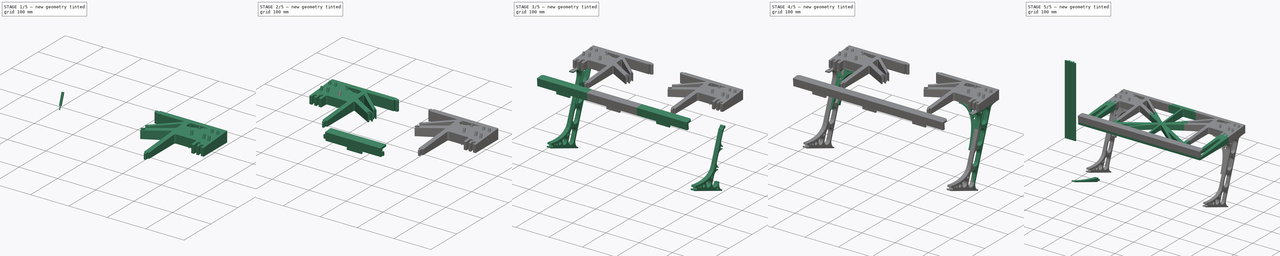
[diagram: build sequence overview — one tinted view per stage of 5, left to right]
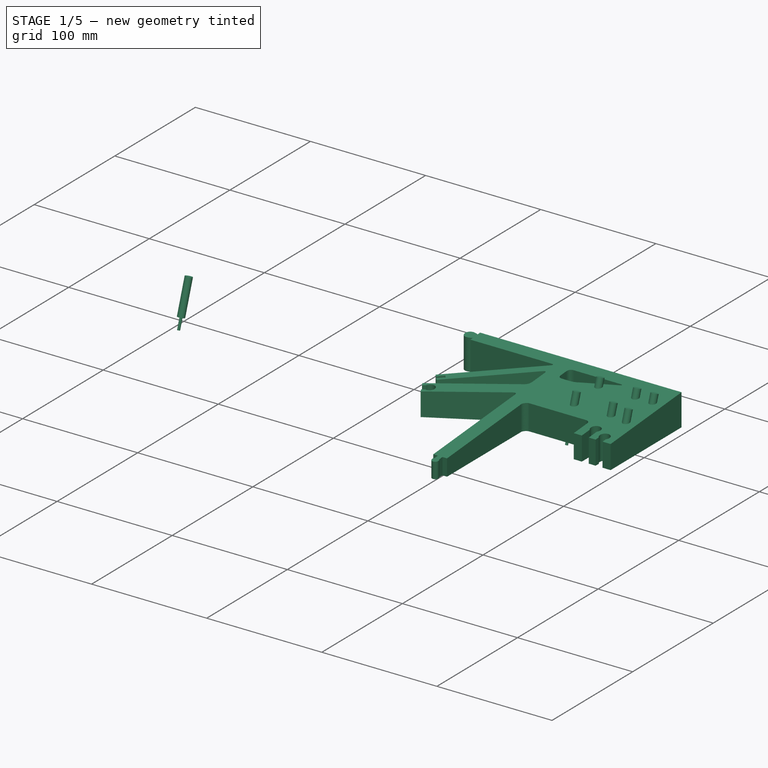
[diagram: stage 1 of 5 — iso view after this stage's code; geometry added in this stage tinted green]
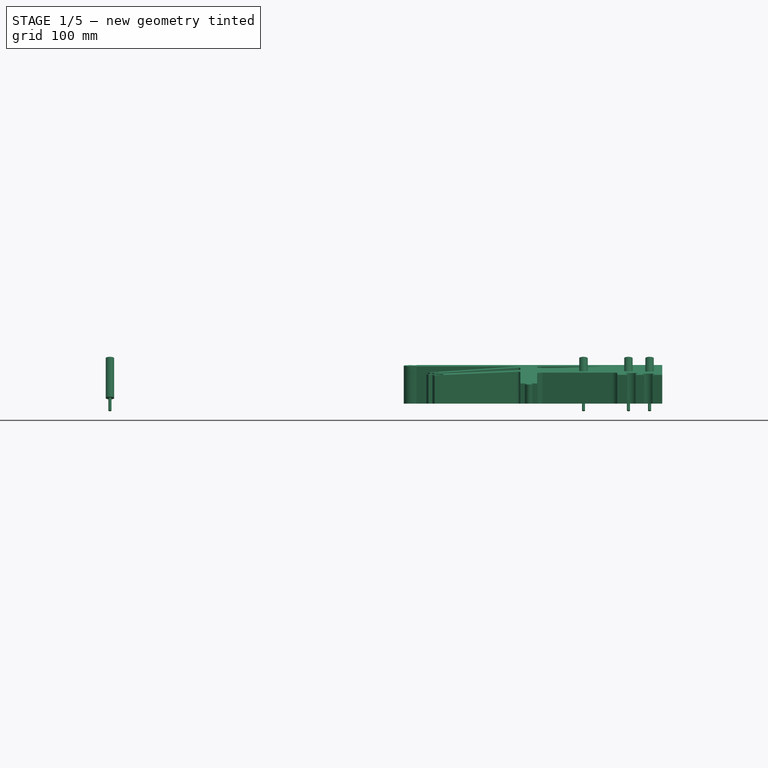
[diagram: stage 1 of 5 — front view after this stage's code; geometry added in this stage tinted green]
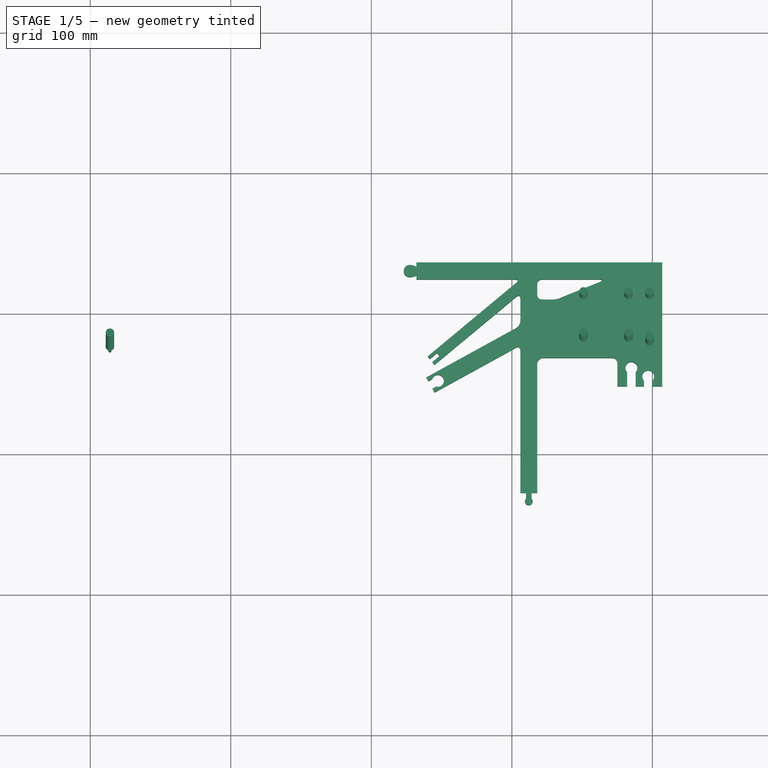
[diagram: stage 1 of 5 — top view after this stage's code; geometry added in this stage tinted green]
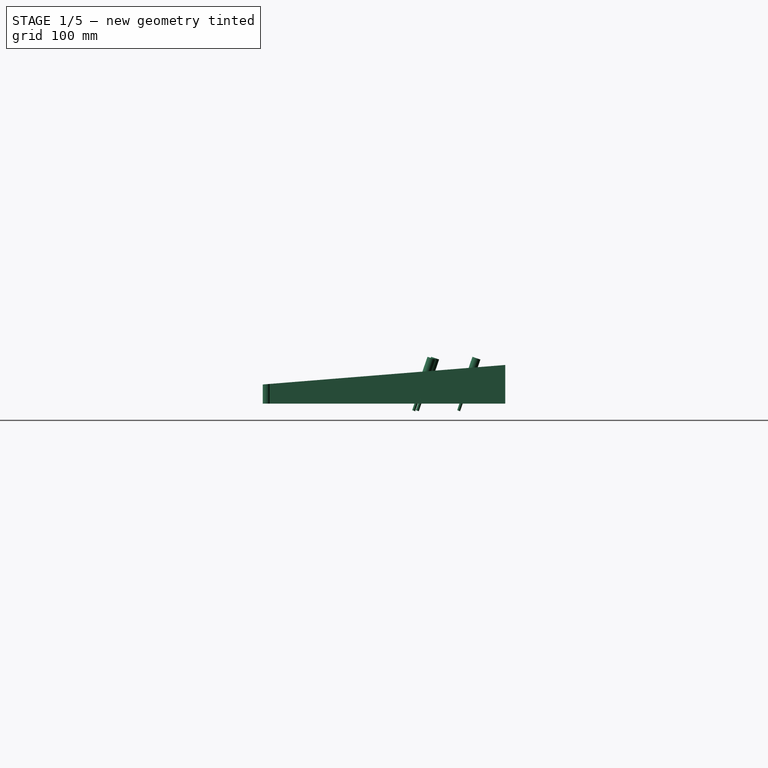
[diagram: stage 1 of 5 — right view after this stage's code; geometry added in this stage tinted green]
FCSTD DOCUMENT  (FreeCAD 0.19R0.19.2)
Label: laptopStand382
License: All rights reserved
LicenseURL: http://en.wikipedia.org/wiki/All_rights_reserved
objects: Part::MultiFuse×58, Part::Box×51, Part::Cylinder×48, Sketcher::SketchObject×37, Part::Extrusion×36, Part::Cut×30, Part::Fuse×14, Part::Fillet×6, App::MeasureDistance×4, Part::Chamfer×3
note: 283 computed .brp shape members not serialized (recipe doc carries the construction recipe); baked Part::Feature solids carry a one-line shape summary decoded from their .brp

FEATURE [Sketcher::SketchObject] Sketch035  label="rightSideTop002"
  FullyConstrained = false
  sketch-geometry (93):
    g0: Circle CenterX=302.996 CenterY=111.695 CenterZ=0 NormalX=0 NormalY=0 NormalZ=1 AngleXU=0 Radius=1
    g1: Circle CenterX=306.073 CenterY=114.251 CenterZ=0 NormalX=0 NormalY=0 NormalZ=1 AngleXU=0 Radius=1
    g2: Circle CenterX=306.073 CenterY=110.251 CenterZ=0 NormalX=0 NormalY=0 NormalZ=1 AngleXU=0 Radius=1
    g3: BSplineCurve PolesCount=3 KnotsCount=2 Degree=2 IsPeriodic=0
    g4: GeomPoint X=302.996 Y=111.695 Z=0
    g5: GeomPoint X=306.073 Y=110.251 Z=0
    g6: Circle CenterX=306.073 CenterY=95.2763 CenterZ=0 NormalX=0 NormalY=0 NormalZ=1 AngleXU=0 Radius=1
    g7: Circle CenterX=306.073 CenterY=91.2763 CenterZ=0 NormalX=0 NormalY=0 NormalZ=1 AngleXU=0 Radius=1
    g8: Circle CenterX=302.567 CenterY=89.3511 CenterZ=0 NormalX=0 NormalY=0 NormalZ=1 AngleXU=0 Radius=1
    g9: BSplineCurve PolesCount=3 KnotsCount=2 Degree=2 IsPeriodic=0
    g10: GeomPoint X=306.073 Y=95.2763 Z=0
    g11: GeomPoint X=302.567 Y=89.3511 Z=0
    g12: LineSegment StartX=306.073 StartY=110.251 StartZ=0 EndX=306.073 EndY=95.2763 EndZ=0
    g13: Circle CenterX=302.073 CenterY=124.221 CenterZ=0 NormalX=0 NormalY=0 NormalZ=1 AngleXU=0 Radius=1
    g14: Circle CenterX=306.073 CenterY=124.221 CenterZ=0 NormalX=0 NormalY=0 NormalZ=1 AngleXU=0 Radius=1
    g15: Circle CenterX=302.996 CenterY=121.665 CenterZ=0 NormalX=0 NormalY=0 NormalZ=1 AngleXU=0 Radius=1
    g16: BSplineCurve PolesCount=3 KnotsCount=2 Degree=2 IsPeriodic=0
    g17: GeomPoint X=302.073 Y=124.221 Z=0
    g18: GeomPoint X=302.996 Y=121.665 Z=0
    g19: Circle CenterX=306.073 CenterY=73.3346 CenterZ=0 NormalX=0 NormalY=0 NormalZ=1 AngleXU=0 Radius=1
    g20: Circle CenterX=306.073 CenterY=77.3346 CenterZ=0 NormalX=0 NormalY=0 NormalZ=1 AngleXU=0 Radius=1
    g21: Circle CenterX=302.535 CenterY=75.4095 CenterZ=0 NormalX=0 NormalY=0 NormalZ=1 AngleXU=0 Radius=1
    g22: BSplineCurve PolesCount=3 KnotsCount=2 Degree=2 IsPeriodic=0
    g23: GeomPoint X=306.073 Y=73.3346 Z=0
    g24: GeomPoint X=302.535 Y=75.4095 Z=0
    g25: Circle CenterX=362.073 CenterY=124.221 CenterZ=0 NormalX=0 NormalY=0 NormalZ=1 AngleXU=0 Radius=1
    g26: Circle CenterX=366.073 CenterY=124.221 CenterZ=0 NormalX=0 NormalY=0 NormalZ=1 AngleXU=0 Radius=1
    g27: Circle CenterX=362.567 CenterY=122.294 CenterZ=0 NormalX=0 NormalY=0 NormalZ=1 AngleXU=0 Radius=1
    g28: BSplineCurve PolesCount=3 KnotsCount=2 Degree=2 IsPeriodic=0
    g29: GeomPoint X=362.073 Y=124.221 Z=0
    g30: GeomPoint X=362.567 Y=122.294 Z=0
    g31: Circle CenterX=322.073 CenterY=124.221 CenterZ=0 NormalX=0 NormalY=0 NormalZ=1 AngleXU=0 Radius=1
    g32: Circle CenterX=318.073 CenterY=124.221 CenterZ=0 NormalX=0 NormalY=0 NormalZ=1 AngleXU=0 Radius=1
    g33: Circle CenterX=318.073 CenterY=120.221 CenterZ=0 NormalX=0 NormalY=0 NormalZ=1 AngleXU=0 Radius=1
    g34: BSplineCurve PolesCount=3 KnotsCount=2 Degree=2 IsPeriodic=0
    g35: GeomPoint X=322.073 Y=124.221 Z=0
    g36: GeomPoint X=318.073 Y=120.221 Z=0
    g37: Circle CenterX=318.073 CenterY=109.865 CenterZ=0 NormalX=0 NormalY=0 NormalZ=1 AngleXU=0 Radius=1
    g38: GeomPoint X=318.073 Y=109.865 Z=0
    g39: Circle CenterX=322.073 CenterY=76.4095 CenterZ=0 NormalX=0 NormalY=0 NormalZ=1 AngleXU=0 Radius=4
    g40: Circle CenterX=232.072 CenterY=133.221 CenterZ=0 NormalX=0 NormalY=0 NormalZ=1 AngleXU=0 Radius=1
    g41: Circle CenterX=226.072 CenterY=136.221 CenterZ=0 NormalX=0 NormalY=0 NormalZ=1 AngleXU=0 Radius=1
    g42: Circle CenterX=226.072 CenterY=124.221 CenterZ=0 NormalX=0 NormalY=0 NormalZ=1 AngleXU=0 Radius=1
    g43: Circle CenterX=232.072 CenterY=127.221 CenterZ=0 NormalX=0 NormalY=0 NormalZ=1 AngleXU=0 Radius=1
    g44: BSplineCurve PolesCount=5 KnotsCount=3 Degree=3 IsPeriodic=0
    g45: GeomPoint X=232.072 Y=133.221 Z=0
    g46: GeomPoint X=223.072 Y=130.221 Z=0
    g47: GeomPoint X=232.072 Y=127.221 Z=0
    g48: LineSegment StartX=240.687 StartY=51.8263 StartZ=0 EndX=243.317 EndY=53.2701 EndZ=0
    g49: LineSegment StartX=243.575 StartY=46.5669 StartZ=0 EndX=246.205 EndY=48.0108 EndZ=0
    g50: ArcOfCircle CenterX=247.391 CenterY=52.0843 CenterZ=0 NormalX=0 NormalY=0 NormalZ=1 AngleXU=0 Radius=4.24264 StartAngle=4.42912 EndAngle=9.14151
    g51: LineSegment StartX=243.475 StartY=65.4951 StartZ=0 EndX=245.073 EndY=63.5726 EndZ=0
    g52: LineSegment StartX=243.575 StartY=46.5669 StartZ=0 EndX=245.072 EndY=43.8408 EndZ=0
    g53: LineSegment StartX=245.072 StartY=43.8408 StartZ=0 EndX=302.535 EndY=75.4095 EndZ=0
    g54: LineSegment StartX=239.192 StartY=54.5542 StartZ=0 EndX=302.567 EndY=89.3511 EndZ=0
    g55: LineSegment StartX=232.072 StartY=127.221 StartZ=0 EndX=232.072 EndY=124.221 EndZ=0
    g56: LineSegment StartX=232.072 StartY=136.221 StartZ=0 EndX=232.072 EndY=133.221 EndZ=0
    g57: LineSegment StartX=232.072 StartY=136.221 StartZ=0 EndX=407.073 EndY=136.221 EndZ=0
    g58: LineSegment StartX=322.073 StartY=124.221 StartZ=0 EndX=362.073 EndY=124.221 EndZ=0
    g59: LineSegment StartX=232.072 StartY=124.221 StartZ=0 EndX=302.073 EndY=124.221 EndZ=0
    g60: LineSegment StartX=302.996 StartY=121.665 StartZ=0 EndX=240.171 EndY=69.471 EndZ=0
    g61: LineSegment StartX=240.171 StartY=69.471 StartZ=0 EndX=241.711 EndY=67.6177 EndZ=0
    g62: LineSegment StartX=241.711 StartY=67.6177 StartZ=0 EndX=246.787 EndY=71.8365 EndZ=0
    g63: LineSegment StartX=246.787 StartY=71.8365 StartZ=0 EndX=248.551 EndY=69.712 EndZ=0
    g64: LineSegment StartX=248.551 StartY=69.712 StartZ=0 EndX=243.475 EndY=65.4951 EndZ=0
    g65: LineSegment StartX=245.073 StartY=63.5726 StartZ=0 EndX=302.996 EndY=111.695 EndZ=0
    g66: LineSegment StartX=239.192 StartY=54.5542 StartZ=0 EndX=240.687 EndY=51.8263 EndZ=0
    g67: LineSegment StartX=375.073 StartY=48.2206 StartZ=0 EndX=382.073 EndY=48.2206 EndZ=0
    g68: LineSegment StartX=407.073 StartY=48.2206 StartZ=0 EndX=400.073 EndY=48.2206 EndZ=0
    g69: LineSegment StartX=394.073 StartY=48.2206 StartZ=0 EndX=394.073 EndY=52.2206 EndZ=0
    g70: LineSegment StartX=388.073 StartY=48.2206 StartZ=0 EndX=388.073 EndY=58.2206 EndZ=0
    g71: ArcOfCircle CenterX=385.073 CenterY=61.2206 CenterZ=0 NormalX=0 NormalY=0 NormalZ=1 AngleXU=0 Radius=4.24264 StartAngle=5.49779 EndAngle=10.2102
    g72: ArcOfCircle CenterX=397.073 CenterY=55.2206 CenterZ=0 NormalX=0 NormalY=0 NormalZ=1 AngleXU=0 Radius=4.24264 StartAngle=5.49779 EndAngle=10.2102
    g73: LineSegment StartX=382.073 StartY=58.2206 StartZ=0 EndX=382.073 EndY=48.2206 EndZ=0
    g74: LineSegment StartX=400.073 StartY=52.2206 StartZ=0 EndX=400.073 EndY=48.2206 EndZ=0
    g75: LineSegment StartX=394.073 StartY=48.2206 StartZ=0 EndX=388.073 EndY=48.2206 EndZ=0
    g76: LineSegment StartX=306.073 StartY=-27.5935 StartZ=0 EndX=310.073 EndY=-27.5935 EndZ=0
    g77: LineSegment StartX=318.073 StartY=-27.5935 StartZ=0 EndX=314.073 EndY=-27.5935 EndZ=0
    g78: LineSegment StartX=310.073 StartY=-27.5935 StartZ=0 EndX=310.073 EndY=-31.5935 EndZ=0
    g79: LineSegment StartX=314.073 StartY=-27.5935 StartZ=0 EndX=314.073 EndY=-31.5935 EndZ=0
    g80: ArcOfCircle CenterX=312.073 CenterY=-33.5935 CenterZ=0 NormalX=0 NormalY=0 NormalZ=1 AngleXU=0 Radius=2.82843 StartAngle=2.35619 EndAngle=7.06858
    g81: LineSegment StartX=407.073 StartY=48.2206 StartZ=0 EndX=407.073 EndY=136.221 EndZ=0
    g82: LineSegment StartX=306.073 StartY=73.3346 StartZ=0 EndX=306.073 EndY=-27.5935 EndZ=0
    g83: BSplineCurve PolesCount=3 KnotsCount=2 Degree=2 IsPeriodic=0
    g84: BSplineCurve PolesCount=3 KnotsCount=2 Degree=2 IsPeriodic=0
    g85: LineSegment StartX=375.073 StartY=64.4106 StartZ=0 EndX=375.073 EndY=48.2206 EndZ=0
    g86: LineSegment StartX=318.073 StartY=64.4065 StartZ=0 EndX=318.073 EndY=-27.5935 EndZ=0
    g87: LineSegment StartX=322.073 StartY=68.4065 StartZ=0 EndX=371.073 EndY=68.4065 EndZ=0
    g88: BSplineCurve PolesCount=3 KnotsCount=2 Degree=2 IsPeriodic=0
    g89: LineSegment StartX=318.073 StartY=120.221 StartZ=0 EndX=318.073 EndY=113.865 EndZ=0
    g90: BSplineCurve PolesCount=3 KnotsCount=2 Degree=2 IsPeriodic=0
    g91: LineSegment StartX=322.073 StartY=109.865 StartZ=0 EndX=328.643 EndY=109.865 EndZ=0
    g92: LineSegment StartX=336.157 StartY=111.779 StartZ=0 EndX=362.567 EndY=122.294 EndZ=0
  constraints (140):
    c: Weight(g0) = 1
    c: Equal(g0,g1)
    c: Equal(g0,g2)
    c: InternalAlignment(g0,g3)
    c: InternalAlignment(g1,g3)
    c: InternalAlignment(g2,g3)
    c: InternalAlignment(g4,g3)
    c: InternalAlignment(g5,g3)
    c: Weight(g6) = 1
    c: Equal(g6,g7)
    c: Equal(g6,g8)
    c: InternalAlignment(g6,g9)
    c: InternalAlignment(g7,g9)
    c: InternalAlignment(g8,g9)
    c: InternalAlignment(g10,g9)
    c: InternalAlignment(g11,g9)
    c: Block(g3)
    c: Block(g9)
    c: Coincident(g12,g3)
    c: Coincident(g12,g9)
    c: Vertical(g12)
    c: Weight(g13) = 1
    c: Equal(g13,g14)
    c: Equal(g13,g15)
    c: InternalAlignment(g14,g16)
    c: InternalAlignment(g15,g16)
    c: InternalAlignment(g17,g16)
    c: InternalAlignment(g18,g16)
    c: Block(g51)
    c: Block(g52)
    c: Coincident(g53,g52)
    c: Coincident(g53,g22)
    c: Block(g53)
    c: Coincident(g50,g49)
    c: Coincident(g50,g48)
    c: Coincident(g54,g9)
    c: Block(g54)
    c: Distance(g51) = 2.5
    c: Block(g44)
    c: Coincident(g55,g44)
    c: Vertical(g55)
    c: Coincident(g56,g44)
    c: Vertical(g56)
    c: Coincident(g57,g56)
    c: Horizontal(g57)
    c: Coincident(g58,g34)
    c: Coincident(g58,g28)
    c: Horizontal(g58)
    c: Block(g34)
    c: Block(g28)
    c: Coincident(g59,g55)
    c: Coincident(g59,g16)
    c: Horizontal(g59)
    c: Coincident(g60,g16)
    c: Block(g59)
    c: Block(g60)
    c: Block(g16)
    c: Coincident(g61,g60)
    c: Block(g61)
    c: Coincident(g62,g61)
    c: Block(g62)
    c: Coincident(g63,g62)
    c: Coincident(g64,g63)
    c: Coincident(g64,g51)
    c: Block(g64)
    c: Coincident(g65,g51)
    c: Coincident(g65,g3)
    c: Block(g65)
    c: Coincident(g66,g54)
    c: Coincident(g66,g48)
    c: Block(g50)
    c: Block(g48)
    c: Block(g49)
    c: Block(g22)
    c: Horizontal(g67)
    c: Distance(g67) = 7
    c: Horizontal(g68)
    c: Distance(g68) = 7
    c: Vertical(g69)
    c: Distance(g69) = 4
    c: Vertical(g70)
    c: Distance(g70) = 10
    c: Coincident(g71,g70)
    c: Coincident(g72,g69)
    c: Block(g72)
    c: Block(g71)
    c: Coincident(g73,g71)
    c: Coincident(g73,g67)
    c: Vertical(g73)
    c: Coincident(g74,g72)
    c: Coincident(g74,g68)
    c: Vertical(g74)
    c: Coincident(g75,g69)
    c: Coincident(g75,g70)
    c: Horizontal(g75)
    c: Horizontal(g76)
    c: Distance(g76) = 4
    c: Horizontal(g77)
    c: Distance(g77) = 4
    c: Coincident(g78,g76)
    c: Vertical(g78)
    c: Coincident(g79,g77)
    c: Vertical(g79)
    c: Distance(g78) = 4
    c: Distance(g79) = 4
    c: Coincident(g80,g78)
    c: Coincident(g80,g79)
    c: Block(g80)
    c: Coincident(g81,g68)
    c: Coincident(g81,g57)
    c: Vertical(g81)
    c: Block(g57)
    c: Block(g81)
    c: Coincident(g82,g22)
    c: Coincident(g82,g76)
    c: Vertical(g82)
    c: Block(g67)
    c: Block(g83)
    c: Block(g84)
    c: Coincident(g85,g83)
    c: Coincident(g85,g67)
    c: Vertical(g85)
    c: Coincident(g86,g84)
    c: Coincident(g86,g77)
    c: Vertical(g86)
    c: Coincident(g87,g84)
    c: Coincident(g87,g83)
    c: Horizontal(g87)
    c: Block(g88)
    c: Coincident(g89,g34)
    c: Coincident(g89,g88)
    c: Vertical(g89)
    c: Block(g90)
    c: Coincident(g91,g88)
    c: Coincident(g91,g90)
    c: Horizontal(g91)
    c: Coincident(g92,g90)
    c: Coincident(g92,g28)
    c: Distance(g57) = 175.001
    c: Distance(g81) = 88
FEATURE [Part::Extrusion] Extrude036
  Base = -> Sketch035
  Dir = (0,0,1)
  DirMode = 2
  FaceMakerClass = Part::FaceMakerBullseye
  LengthFwd = 28
  LengthRev = 0
  Solid = true
  Symmetric = false
FEATURE [Part::Box] Box034  label="removeFromtTop009"
  AttacherType = Attacher::AttachEngine3D
  Height = 56
  Length = 470
  Placement = pos=(-47.93,-106.78,8) rot=(1,0,0;0.080285rad)
  Width = 260
FEATURE [Part::Cut] Cut022
  Base = -> Extrude036
  Tool = -> Box034
FEATURE [Part::Cylinder] Cylinder004
  Angle = 360
  AttacherType = Attacher::AttachEngine3D
  Height = 10
  Placement = pos=(-49,103,-5) rot=(-1,0,0;0.328122rad)
  Radius = 1.1
FEATURE [Part::Cylinder] Cylinder005
  Angle = 360
  AttacherType = Attacher::AttachEngine3D
  Height = 30
  Placement = pos=(-49,106,4) rot=(-1,0,0;0.328122rad)
  Radius = 3
FEATURE [Part::MultiFuse] Fusion025
  Placement = pos=(15,0,0) rot=(0,0,1;0rad)
  Shapes = -> [Cylinder004,Cylinder005]
FEATURE [Part::Cylinder] Cylinder006
  Angle = 360
  AttacherType = Attacher::AttachEngine3D
  Height = 10
  Placement = pos=(-49,103,-5) rot=(-1,0,0;0.328122rad)
  Radius = 1.1
FEATURE [Part::Cylinder] Cylinder007
  Angle = 360
  AttacherType = Attacher::AttachEngine3D
  Height = 30
  Placement = pos=(-49,106,4) rot=(-1,0,0;0.328122rad)
  Radius = 3
FEATURE [Part::MultiFuse] Fusion026
  Placement = pos=(15,-32,0) rot=(0,0,1;0rad)
  Shapes = -> [Cylinder006,Cylinder007]
FEATURE [Part::MultiFuse] Fusion027
  Placement = pos=(432,0,0) rot=(0,0,1;0rad)
  Shapes = -> [Fusion025,Fusion026]
FEATURE [Part::Cylinder] Cylinder014
  Angle = 360
  AttacherType = Attacher::AttachEngine3D
  Height = 10
  Placement = pos=(-49,103,-5) rot=(-1,0,0;0.328122rad)
  Radius = 1.1
FEATURE [Part::Cylinder] Cylinder015
  Angle = 360
  AttacherType = Attacher::AttachEngine3D
  Height = 30
  Placement = pos=(-49,106,4) rot=(-1,0,0;0.328122rad)
  Radius = 3
FEATURE [Part::MultiFuse] Fusion031
  Placement = pos=(63,-29.4,0) rot=(0,0,1;0rad)
  Shapes = -> [Cylinder014,Cylinder015]
FEATURE [Part::Cylinder] Cylinder016
  Angle = 360
  AttacherType = Attacher::AttachEngine3D
  Height = 10
  Placement = pos=(-49,103,-5) rot=(-1,0,0;0.328122rad)
  Radius = 1.1
FEATURE [Part::Cylinder] Cylinder017
  Angle = 360
  AttacherType = Attacher::AttachEngine3D
  Height = 30
  Placement = pos=(-49,106,4) rot=(-1,0,0;0.328122rad)
  Radius = 3
FEATURE [Part::MultiFuse] Fusion033
  Placement = pos=(31,0,0) rot=(0,0,1;0rad)
  Shapes = -> [Cylinder016,Cylinder017]
FEATURE [Part::Cylinder] Cylinder018
  Angle = 360
  AttacherType = Attacher::AttachEngine3D
  Height = 10
  Placement = pos=(-49,103,-5) rot=(-1,0,0;0.328122rad)
  Radius = 1.1
FEATURE [Part::Cylinder] Cylinder019
  Angle = 360
  AttacherType = Attacher::AttachEngine3D
  Height = 30
  Placement = pos=(-49,106,4) rot=(-1,0,0;0.328122rad)
  Radius = 3
FEATURE [Part::MultiFuse] Fusion035
  Placement = pos=(31,-29.4,0) rot=(0,0,1;0rad)
  Shapes = -> [Cylinder018,Cylinder019]
FEATURE [Part::Cylinder] Cylinder020
  Angle = 360
  AttacherType = Attacher::AttachEngine3D
  Height = 10
  Placement = pos=(-49,103,-5) rot=(-1,0,0;0.328122rad)
  Radius = 1.1
FEATURE [Part::Cylinder] Cylinder021
  Angle = 360
  AttacherType = Attacher::AttachEngine3D
  Height = 30
  Placement = pos=(-49,106,4) rot=(-1,0,0;0.328122rad)
  Radius = 3
FEATURE [Part::MultiFuse] Fusion034
  Placement = pos=(63,0,0) rot=(0,0,1;0rad)
  Shapes = -> [Cylinder020,Cylinder021]
FEATURE [Part::Cylinder] Cylinder022
  Angle = 360
  AttacherType = Attacher::AttachEngine3D
  Height = 10
  Placement = pos=(-49,103,-5) rot=(-1,0,0;0.328122rad)
  Radius = 1.1
FEATURE [Part::Cylinder] Cylinder023
  Angle = 360
  AttacherType = Attacher::AttachEngine3D
  Height = 30
  Placement = pos=(-49,106,4) rot=(-1,0,0;0.328122rad)
  Radius = 3
FEATURE [Part::MultiFuse] Fusion036
  Placement = pos=(63,-29.4,0) rot=(0,0,1;0rad)
  Shapes = -> [Cylinder022,Cylinder023]
FEATURE [Part::MultiFuse] Fusion037
  Placement = pos=(369,0,0) rot=(0,0,1;0rad)
  Shapes = -> [Fusion036,Fusion035,Fusion034,Fusion033]
FEATURE [Part::MultiFuse] Fusion057  label="removeForScrewHolesRight"
  Shapes = -> [Fusion027,Fusion037]
FEATURE [Part::Cylinder] Cylinder036
  Angle = 360
  AttacherType = Attacher::AttachEngine3D
  Height = 10
  Placement = pos=(-49,103,-5) rot=(-1,0,0;0.328122rad)
  Radius = 1.1
FEATURE [Part::Cylinder] Cylinder037
  Angle = 360
  AttacherType = Attacher::AttachEngine3D
  Height = 30
  Placement = pos=(-49,106,4) rot=(-1,0,0;0.328122rad)
  Radius = 3
FEATURE [Part::Cylinder] Cylinder038
  Angle = 360
  AttacherType = Attacher::AttachEngine3D
  Height = 10
  Placement = pos=(-49,103,-5) rot=(-1,0,0;0.328122rad)
  Radius = 1.1
FEATURE [Part::Cylinder] Cylinder039
  Angle = 360
  AttacherType = Attacher::AttachEngine3D
  Height = 30
  Placement = pos=(-49,106,4) rot=(-1,0,0;0.328122rad)
  Radius = 3
FEATURE [Part::MultiFuse] Fusion068
  Placement = pos=(15,0,0) rot=(0,0,1;0rad)
  Shapes = -> [Cylinder038,Cylinder039]
FEATURE [Part::Cylinder] Cylinder040
  Angle = 360
  AttacherType = Attacher::AttachEngine3D
  Height = 10
  Placement = pos=(-49,103,-5) rot=(-1,0,0;0.328122rad)
  Radius = 1.1
FEATURE [Part::Cylinder] Cylinder041
  Angle = 360
  AttacherType = Attacher::AttachEngine3D
  Height = 30
  Placement = pos=(-49,106,4) rot=(-1,0,0;0.328122rad)
  Radius = 3
FEATURE [Part::MultiFuse] Fusion069
  Placement = pos=(15,-32,0) rot=(0,0,1;0rad)
  Shapes = -> [Cylinder040,Cylinder041]
FEATURE [Part::MultiFuse] Fusion070
  Placement = pos=(432,0,0) rot=(0,0,1;0rad)
  Shapes = -> [Fusion068,Fusion069]
FEATURE [Part::Cylinder] Cylinder042
  Angle = 360
  AttacherType = Attacher::AttachEngine3D
  Height = 10
  Placement = pos=(-49,103,-5) rot=(-1,0,0;0.328122rad)
  Radius = 1.1
FEATURE [Part::Cylinder] Cylinder043
  Angle = 360
  AttacherType = Attacher::AttachEngine3D
  Height = 30
  Placement = pos=(-49,106,4) rot=(-1,0,0;0.328122rad)
  Radius = 3
FEATURE [Part::MultiFuse] Fusion072
  Placement = pos=(63,0,0) rot=(0,0,1;0rad)
  Shapes = -> [Cylinder042,Cylinder043]
FEATURE [Part::Cylinder] Cylinder044
  Angle = 360
  AttacherType = Attacher::AttachEngine3D
  Height = 10
  Placement = pos=(-49,103,-5) rot=(-1,0,0;0.328122rad)
  Radius = 1.1
FEATURE [Part::Cylinder] Cylinder045
  Angle = 360
  AttacherType = Attacher::AttachEngine3D
  Height = 30
  Placement = pos=(-49,106,4) rot=(-1,0,0;0.328122rad)
  Radius = 3
FEATURE [Part::MultiFuse] Fusion073
  Placement = pos=(31,-29.4,0) rot=(0,0,1;0rad)
  Shapes = -> [Cylinder036,Cylinder037]
FEATURE [Part::MultiFuse] Fusion074
  Placement = pos=(63,-29.4,0) rot=(0,0,1;0rad)
  Shapes = -> [Cylinder044,Cylinder045]
FEATURE [Part::Cylinder] Cylinder046
  Angle = 360
  AttacherType = Attacher::AttachEngine3D
  Height = 10
  Placement = pos=(-49,103,-5) rot=(-1,0,0;0.328122rad)
  Radius = 1.1
FEATURE [Part::Cylinder] Cylinder047
  Angle = 360
  AttacherType = Attacher::AttachEngine3D
  Height = 30
  Placement = pos=(-49,106,4) rot=(-1,0,0;0.328122rad)
  Radius = 3
FEATURE [Part::MultiFuse] Fusion071
  Placement = pos=(31,0,0) rot=(0,0,1;0rad)
  Shapes = -> [Cylinder046,Cylinder047]
FEATURE [Part::MultiFuse] Fusion075
  Placement = pos=(369,0,0) rot=(0,0,1;0rad)
  Shapes = -> [Fusion074,Fusion073,Fusion072,Fusion071]
FEATURE [Part::MultiFuse] Fusion076  label="removeForScrewHolesRight001"
  Shapes = -> [Fusion070,Fusion075]
FEATURE [Part::Cut] Cut029
  Base = -> Cut022
  Tool = -> Fusion057
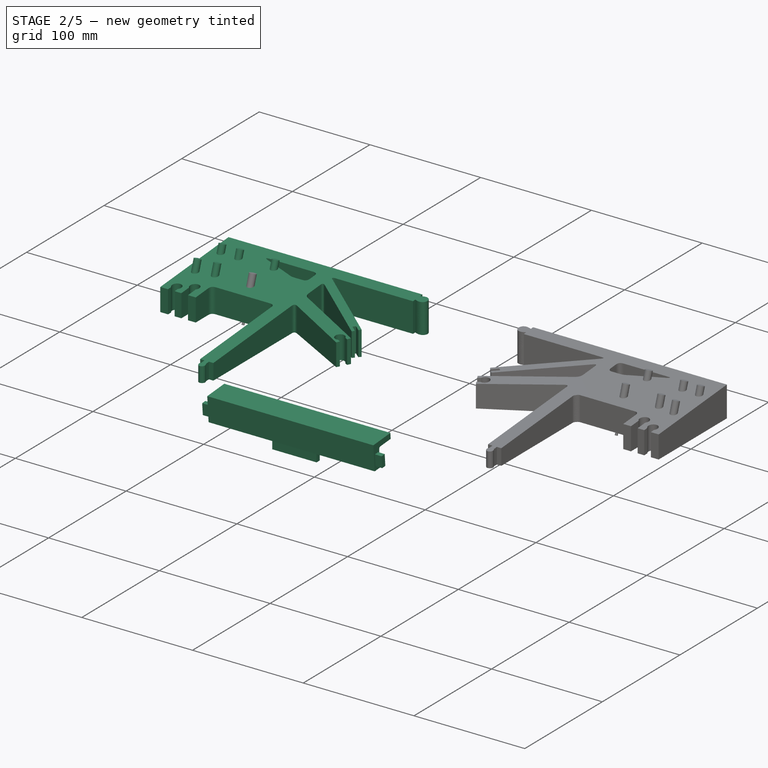
[diagram: stage 2 of 5 — iso view after this stage's code; geometry added in this stage tinted green]
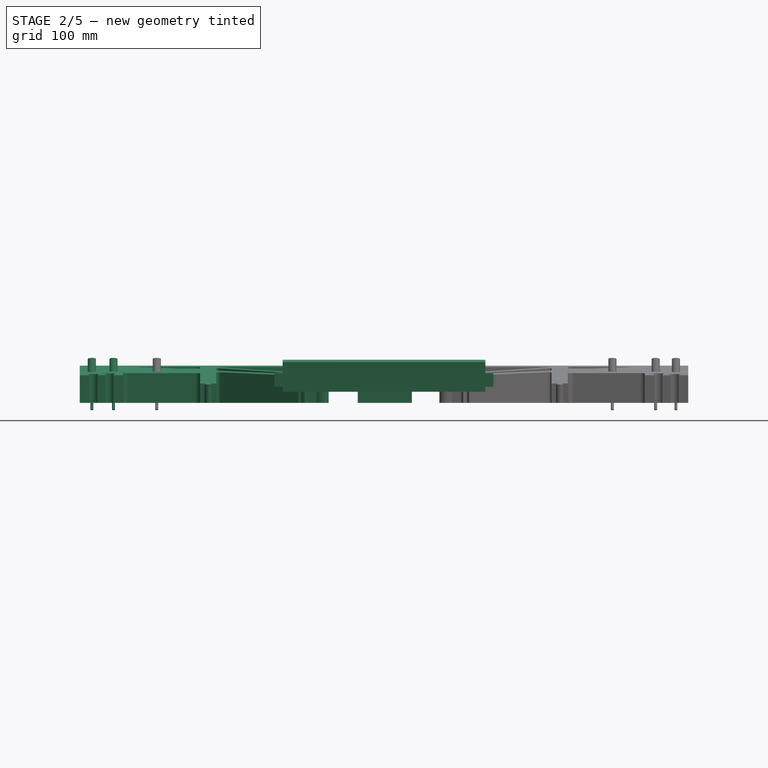
[diagram: stage 2 of 5 — front view after this stage's code; geometry added in this stage tinted green]
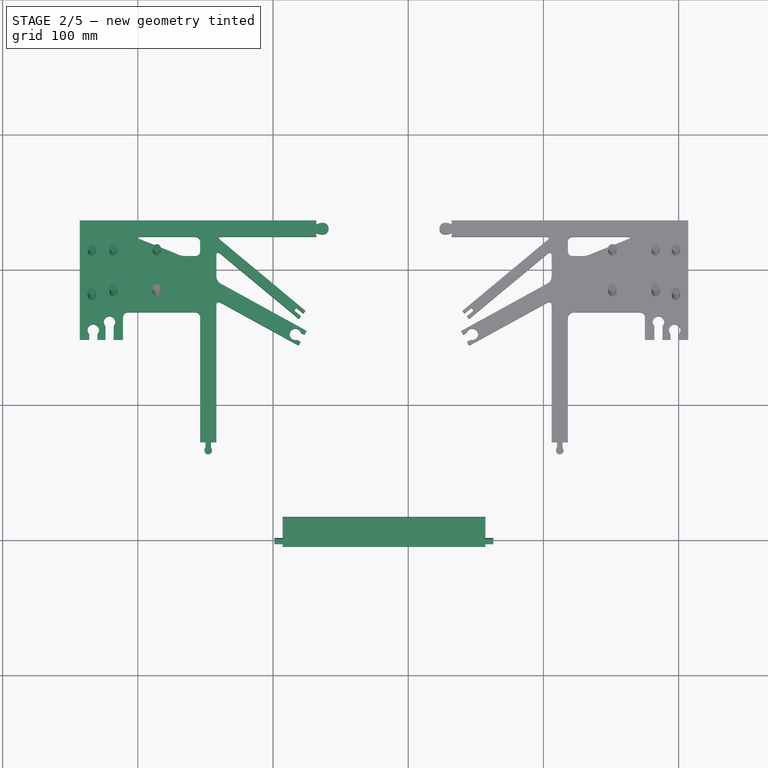
[diagram: stage 2 of 5 — top view after this stage's code; geometry added in this stage tinted green]
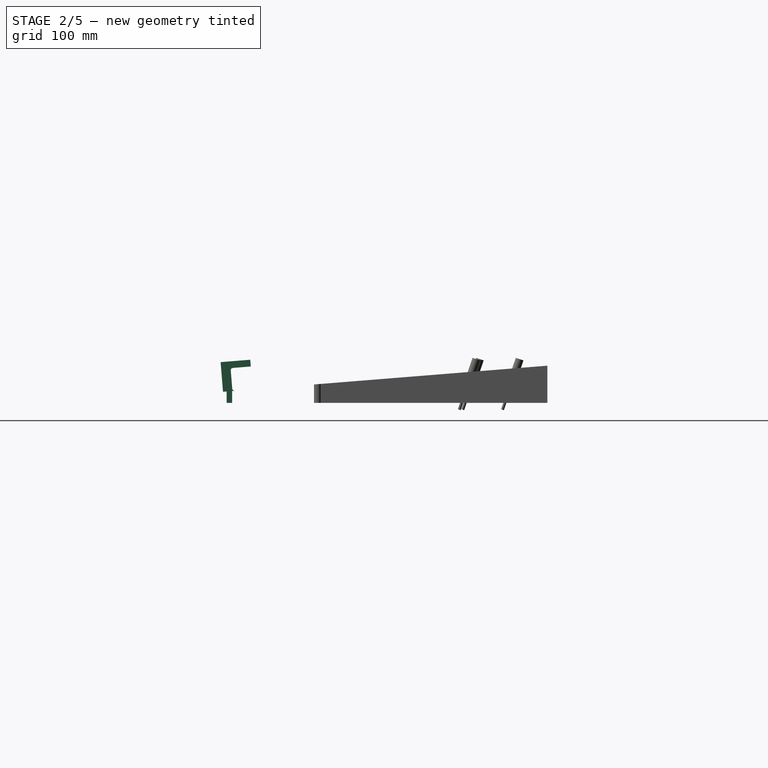
[diagram: stage 2 of 5 — right view after this stage's code; geometry added in this stage tinted green]
FEATURE [Sketcher::SketchObject] Sketch030
  FullyConstrained = true
  Placement = pos=(0,0,0) rot=(0.57735,0.57735,0.57735;2.0944rad)
  sketch-geometry (18):
    g0: LineSegment StartX=-152.23 StartY=29.0049 StartZ=0 EndX=-143.23 EndY=29.0049 EndZ=0
    g1: LineSegment StartX=-152.23 StartY=29.0049 StartZ=0 EndX=-152.23 EndY=51.0049 EndZ=0
    g2: LineSegment StartX=-152.23 StartY=51.0049 StartZ=0 EndX=-130.23 EndY=51.0049 EndZ=0
    g3: LineSegment StartX=-130.23 StartY=51.0049 StartZ=0 EndX=-130.23 EndY=46.0049 EndZ=0
    g4: LineSegment StartX=-130.23 StartY=46.0049 StartZ=0 EndX=-143.23 EndY=46.0049 EndZ=0
    g5: Circle CenterX=-145.23 CenterY=31.0049 CenterZ=0 NormalX=0 NormalY=0 NormalZ=1 AngleXU=0 Radius=1
    g6: Circle CenterX=-145.23 CenterY=29.0049 CenterZ=0 NormalX=0 NormalY=0 NormalZ=1 AngleXU=0 Radius=1
    g7: Circle CenterX=-143.23 CenterY=29.0049 CenterZ=0 NormalX=0 NormalY=0 NormalZ=1 AngleXU=0 Radius=1
    g8: BSplineCurve PolesCount=3 KnotsCount=2 Degree=2 IsPeriodic=0
    g9: GeomPoint X=-145.23 Y=31.0049 Z=0
    g10: GeomPoint X=-143.23 Y=29.0049 Z=0
    g11: Circle CenterX=-145.23 CenterY=44.0049 CenterZ=0 NormalX=0 NormalY=0 NormalZ=1 AngleXU=0 Radius=1
    g12: Circle CenterX=-145.23 CenterY=46.0049 CenterZ=0 NormalX=0 NormalY=0 NormalZ=1 AngleXU=0 Radius=1
    g13: Circle CenterX=-143.23 CenterY=46.0049 CenterZ=0 NormalX=0 NormalY=0 NormalZ=1 AngleXU=0 Radius=1
    g14: BSplineCurve PolesCount=3 KnotsCount=2 Degree=2 IsPeriodic=0
    g15: GeomPoint X=-145.23 Y=44.0049 Z=0
    g16: GeomPoint X=-143.23 Y=46.0049 Z=0
    g17: LineSegment StartX=-145.23 StartY=44.0049 StartZ=0 EndX=-145.23 EndY=31.0049 EndZ=0
  constraints (40):
    c: Horizontal(g0)
    c: Distance(g0) = 9
    c: Coincident(g1,g0)
    c: Vertical(g1)
    c: Distance(g1) = 22
    c: Coincident(g2,g1)
    c: Horizontal(g2)
    c: Coincident(g3,g2)
    c: Vertical(g3)
    c: Distance(g3) = 5
    c: Coincident(g4,g3)
    c: Horizontal(g4)
    c: Distance(g4) = 13
    c: PointOnObject(g6,g0)
    c: Weight(g5) = 1
    c: Equal(g5,g6)
    c: Equal(g5,g7)
    c: Coincident(g8,g0)
    c: InternalAlignment(g5,g8)
    c: InternalAlignment(g6,g8)
    c: InternalAlignment(g7,g8)
    c: InternalAlignment(g9,g8)
    c: InternalAlignment(g10,g8)
    c: Weight(g11) = 1
    c: Equal(g11,g12)
    c: Equal(g11,g13)
    c: Coincident(g14,g4)
    c: InternalAlignment(g11,g14)
    c: InternalAlignment(g12,g14)
    c: InternalAlignment(g13,g14)
    c: InternalAlignment(g15,g14)
    c: InternalAlignment(g16,g14)
    c: Coincident(g17,g14)
    c: Coincident(g17,g8)
    c: Vertical(g17)
    c: Block(g4)
    c: Block(g17)
    c: Block(g14)
    c: Block(g8)
    c: Distance(g2) = 22
FEATURE [Sketcher::SketchObject] Sketch031
  FullyConstrained = true
  Placement = pos=(0,0,0) rot=(0.57735,0.57735,0.57735;2.0944rad)
  sketch-geometry (18):
    g0: LineSegment StartX=-152.23 StartY=29.0049 StartZ=0 EndX=-143.23 EndY=29.0049 EndZ=0
    g1: LineSegment StartX=-152.23 StartY=29.0049 StartZ=0 EndX=-152.23 EndY=51.0049 EndZ=0
    g2: LineSegment StartX=-152.23 StartY=51.0049 StartZ=0 EndX=-130.23 EndY=51.0049 EndZ=0
    g3: LineSegment StartX=-130.23 StartY=51.0049 StartZ=0 EndX=-130.23 EndY=46.0049 EndZ=0
    g4: LineSegment StartX=-130.23 StartY=46.0049 StartZ=0 EndX=-143.23 EndY=46.0049 EndZ=0
    g5: Circle CenterX=-145.23 CenterY=31.0049 CenterZ=0 NormalX=0 NormalY=0 NormalZ=1 AngleXU=0 Radius=1
    g6: Circle CenterX=-145.23 CenterY=29.0049 CenterZ=0 NormalX=0 NormalY=0 NormalZ=1 AngleXU=0 Radius=1
    g7: Circle CenterX=-143.23 CenterY=29.0049 CenterZ=0 NormalX=0 NormalY=0 NormalZ=1 AngleXU=0 Radius=1
    g8: BSplineCurve PolesCount=3 KnotsCount=2 Degree=2 IsPeriodic=0
    g9: GeomPoint X=-145.23 Y=31.0049 Z=0
    g10: GeomPoint X=-143.23 Y=29.0049 Z=0
    g11: Circle CenterX=-145.23 CenterY=44.0049 CenterZ=0 NormalX=0 NormalY=0 NormalZ=1 AngleXU=0 Radius=1
    g12: Circle CenterX=-145.23 CenterY=46.0049 CenterZ=0 NormalX=0 NormalY=0 NormalZ=1 AngleXU=0 Radius=1
    g13: Circle CenterX=-143.23 CenterY=46.0049 CenterZ=0 NormalX=0 NormalY=0 NormalZ=1 AngleXU=0 Radius=1
    g14: BSplineCurve PolesCount=3 KnotsCount=2 Degree=2 IsPeriodic=0
    g15: GeomPoint X=-145.23 Y=44.0049 Z=0
    g16: GeomPoint X=-143.23 Y=46.0049 Z=0
    g17: LineSegment StartX=-145.23 StartY=44.0049 StartZ=0 EndX=-145.23 EndY=31.0049 EndZ=0
  constraints (40):
    c: Horizontal(g0)
    c: Distance(g0) = 9
    c: Coincident(g1,g0)
    c: Vertical(g1)
    c: Distance(g1) = 22
    c: Coincident(g2,g1)
    c: Horizontal(g2)
    c: Coincident(g3,g2)
    c: Vertical(g3)
    c: Distance(g3) = 5
    c: Coincident(g4,g3)
    c: Horizontal(g4)
    c: Distance(g4) = 13
    c: PointOnObject(g6,g0)
    c: Weight(g5) = 1
    c: Equal(g5,g6)
    c: Equal(g5,g7)
    c: Coincident(g8,g0)
    c: InternalAlignment(g5,g8)
    c: InternalAlignment(g6,g8)
    c: InternalAlignment(g7,g8)
    c: InternalAlignment(g9,g8)
    c: InternalAlignment(g10,g8)
    c: Weight(g11) = 1
    c: Equal(g11,g12)
    c: Equal(g11,g13)
    c: Coincident(g14,g4)
    c: InternalAlignment(g11,g14)
    c: InternalAlignment(g12,g14)
    c: InternalAlignment(g13,g14)
    c: InternalAlignment(g15,g14)
    c: InternalAlignment(g16,g14)
    c: Coincident(g17,g14)
    c: Coincident(g17,g8)
    c: Vertical(g17)
    c: Block(g4)
    c: Block(g17)
    c: Block(g14)
    c: Block(g8)
    c: Distance(g2) = 22
FEATURE [Part::Extrusion] Extrude031  label="laptopRetainer022"
  Base = -> Sketch030
  Dir = (1,0,0)
  DirMode = 2
  FaceMakerClass = Part::FaceMakerBullseye
  LengthFwd = 150
  LengthRev = 0
  Placement = pos=(107.08,50.35,-8.45) rot=(1,0,0;0.080285rad)
  Solid = true
  Symmetric = false
FEATURE [Part::Box] Box027  label="Cube018"
  AttacherType = Attacher::AttachEngine3D
  Height = 10
  Length = 40
  Placement = pos=(162.7,-101,0) rot=(0,0,1;0rad)
  Width = 4
FEATURE [Part::Fuse] Fusion019  label="laptopRetainer021"
  Base = -> Extrude031
  Tool = -> Box027
FEATURE [Part::Box] Box029  label="Cube020"
  AttacherType = Attacher::AttachEngine3D
  Height = 10
  Length = 10
  Placement = pos=(101,-102.5,12) rot=(1,0,0;0.080285rad)
  Width = 4
FEATURE [Part::Box] Box030  label="Cube021"
  AttacherType = Attacher::AttachEngine3D
  Height = 10
  Length = 10
  Placement = pos=(253,-102.5,12) rot=(1,0,0;0.080285rad)
  Width = 4
FEATURE [Part::MultiFuse] Fusion021  label="laptopRetainer025"
  Shapes = -> [Box030,Fusion019,Box029]
FEATURE [Sketcher::SketchObject] Sketch033  label="leftSideTop002"
  FullyConstrained = true
  sketch-geometry (89):
    g0: Circle CenterX=61.1495 CenterY=111.695 CenterZ=0 NormalX=0 NormalY=0 NormalZ=1 AngleXU=0 Radius=1
    g1: Circle CenterX=58.0728 CenterY=114.251 CenterZ=0 NormalX=0 NormalY=0 NormalZ=1 AngleXU=0 Radius=1
    g2: Circle CenterX=58.0728 CenterY=110.251 CenterZ=0 NormalX=0 NormalY=0 NormalZ=1 AngleXU=0 Radius=1
    g3: BSplineCurve PolesCount=3 KnotsCount=2 Degree=2 IsPeriodic=0
    g4: GeomPoint X=61.1495 Y=111.695 Z=0
    g5: GeomPoint X=58.0728 Y=110.251 Z=0
    g6: Circle CenterX=61.5791 CenterY=89.3511 CenterZ=0 NormalX=0 NormalY=0 NormalZ=1 AngleXU=0 Radius=1
    g7: Circle CenterX=58.0728 CenterY=91.2763 CenterZ=0 NormalX=0 NormalY=0 NormalZ=1 AngleXU=0 Radius=1
    g8: Circle CenterX=58.0728 CenterY=95.2763 CenterZ=0 NormalX=0 NormalY=0 NormalZ=1 AngleXU=0 Radius=1
    g9: BSplineCurve PolesCount=3 KnotsCount=2 Degree=2 IsPeriodic=0
    g10: GeomPoint X=61.5791 Y=89.3511 Z=0
    g11: GeomPoint X=58.0728 Y=95.2763 Z=0
    g12: Circle CenterX=62.0728 CenterY=124.221 CenterZ=0 NormalX=0 NormalY=0 NormalZ=1 AngleXU=0 Radius=1
    g13: Circle CenterX=58.0728 CenterY=124.221 CenterZ=0 NormalX=0 NormalY=0 NormalZ=1 AngleXU=0 Radius=1
    g14: Circle CenterX=61.1496 CenterY=121.665 CenterZ=0 NormalX=0 NormalY=0 NormalZ=1 AngleXU=0 Radius=1
    g15: BSplineCurve PolesCount=3 KnotsCount=2 Degree=2 IsPeriodic=0
    g16: GeomPoint X=62.0728 Y=124.221 Z=0
    g17: GeomPoint X=61.1496 Y=121.665 Z=0
    g18: Circle CenterX=61.5791 CenterY=75.4095 CenterZ=0 NormalX=0 NormalY=0 NormalZ=1 AngleXU=0 Radius=1
    g19: Circle CenterX=58.0728 CenterY=77.3346 CenterZ=0 NormalX=0 NormalY=0 NormalZ=1 AngleXU=0 Radius=1
    g20: Circle CenterX=58.0728 CenterY=73.3346 CenterZ=0 NormalX=0 NormalY=0 NormalZ=1 AngleXU=0 Radius=1
    g21: BSplineCurve PolesCount=3 KnotsCount=2 Degree=2 IsPeriodic=0
    g22: GeomPoint X=61.5791 Y=75.4095 Z=0
    g23: GeomPoint X=58.0728 Y=73.3346 Z=0
    g24: Circle CenterX=2.07281 CenterY=124.221 CenterZ=0 NormalX=0 NormalY=0 NormalZ=1 AngleXU=0 Radius=1
    g25: Circle CenterX=1.57905 CenterY=122.295 CenterZ=0 NormalX=0 NormalY=0 NormalZ=1 AngleXU=0 Radius=1
    g26: BSplineCurve PolesCount=3 KnotsCount=2 Degree=2 IsPeriodic=0
    g27: GeomPoint X=2.07281 Y=124.221 Z=0
    g28: GeomPoint X=1.57905 Y=122.295 Z=0
    g29: Circle CenterX=46.0728 CenterY=124.221 CenterZ=0 NormalX=0 NormalY=0 NormalZ=1 AngleXU=0 Radius=1
    g30: Circle CenterX=46.0728 CenterY=120.221 CenterZ=0 NormalX=0 NormalY=0 NormalZ=1 AngleXU=0 Radius=1
    g31: BSplineCurve PolesCount=3 KnotsCount=2 Degree=2 IsPeriodic=0
    g32: GeomPoint X=42.0728 Y=124.221 Z=0
    g33: GeomPoint X=46.0728 Y=120.221 Z=0
    g34-g38: Circle x5 (B-spline internal-alignment scaffolding for g39; pole/knot coordinates omitted)
    g39: BSplineCurve PolesCount=5 KnotsCount=3 Degree=3 IsPeriodic=0
    g40: GeomPoint X=132.072 Y=133.221 Z=0
    g41: GeomPoint X=141.072 Y=130.221 Z=0
    g42: GeomPoint X=132.072 Y=127.221 Z=0
    g43: ArcOfCircle CenterX=116.562 CenterY=52.0649 CenterZ=0 NormalX=0 NormalY=0 NormalZ=1 AngleXU=0 Radius=4.24264 StartAngle=0.283268 EndAngle=4.99566
    g44: LineSegment StartX=123.967 StartY=69.4706 StartZ=0 EndX=122.37 EndY=67.5474 EndZ=0
    g45: LineSegment StartX=117.293 StartY=71.7641 StartZ=0 EndX=115.591 EndY=69.7147 EndZ=0
    g46: LineSegment StartX=120.669 StartY=65.4973 StartZ=0 EndX=119.072 EndY=63.5741 EndZ=0
    g47: LineSegment StartX=124.73 StartY=54.6766 StartZ=0 EndX=123.265 EndY=51.8068 EndZ=0
    g48: LineSegment StartX=120.377 StartY=46.5474 StartZ=0 EndX=118.934 EndY=43.9178 EndZ=0
    g49: LineSegment StartX=61.5791 StartY=75.4095 StartZ=0 EndX=118.934 EndY=43.9178 EndZ=0
    g50: LineSegment StartX=117.748 StartY=47.9913 StartZ=0 EndX=120.377 EndY=46.5474 EndZ=0
    g51: LineSegment StartX=120.635 StartY=53.2507 StartZ=0 EndX=123.265 EndY=51.8068 EndZ=0
    g52: LineSegment StartX=124.73 StartY=54.6766 StartZ=0 EndX=61.5791 EndY=89.3511 EndZ=0
    g53: LineSegment StartX=58.0728 StartY=95.2763 StartZ=0 EndX=58.0728 EndY=110.251 EndZ=0
    g54: LineSegment StartX=61.1495 StartY=111.695 StartZ=0 EndX=119.072 EndY=63.5741 EndZ=0
    g55: LineSegment StartX=120.669 StartY=65.4973 StartZ=0 EndX=115.591 EndY=69.7147 EndZ=0
    g56: LineSegment StartX=117.293 StartY=71.7641 StartZ=0 EndX=122.37 EndY=67.5474 EndZ=0
    g57: LineSegment StartX=123.967 StartY=69.4706 StartZ=0 EndX=61.1496 EndY=121.665 EndZ=0
    g58: LineSegment StartX=62.0728 StartY=124.221 StartZ=0 EndX=132.072 EndY=124.221 EndZ=0
    g59: LineSegment StartX=132.072 StartY=127.221 StartZ=0 EndX=132.072 EndY=124.221 EndZ=0
    g60: LineSegment StartX=132.072 StartY=133.221 StartZ=0 EndX=132.072 EndY=136.221 EndZ=0
    g61: LineSegment StartX=132.072 StartY=136.221 StartZ=0 EndX=-42.9272 EndY=136.221 EndZ=0
    g62: LineSegment StartX=2.07281 StartY=124.221 StartZ=0 EndX=42.0728 EndY=124.221 EndZ=0
    g63: LineSegment StartX=-17.9272 StartY=48.2206 StartZ=0 EndX=-17.9272 EndY=58.2206 EndZ=0
    g64: LineSegment StartX=-35.9272 StartY=48.2206 StartZ=0 EndX=-35.9272 EndY=52.2206 EndZ=0
    g65: LineSegment StartX=-29.9272 StartY=48.2206 StartZ=0 EndX=-29.9272 EndY=52.2206 EndZ=0
    g66: LineSegment StartX=-23.9272 StartY=48.2206 StartZ=0 EndX=-23.9272 EndY=58.2206 EndZ=0
    g67: ArcOfCircle CenterX=-32.9272 CenterY=55.2206 CenterZ=0 NormalX=0 NormalY=0 NormalZ=1 AngleXU=0 Radius=4.24264 StartAngle=5.49779 EndAngle=10.2102
    g68: ArcOfCircle CenterX=-20.9272 CenterY=61.2206 CenterZ=0 NormalX=0 NormalY=0 NormalZ=1 AngleXU=0 Radius=4.24264 StartAngle=5.49779 EndAngle=10.2102
    g69: LineSegment StartX=-42.9272 StartY=48.2206 StartZ=0 EndX=-42.9272 EndY=136.221 EndZ=0
    g70: LineSegment StartX=58.0728 StartY=-27.5905 StartZ=0 EndX=58.0728 EndY=73.3346 EndZ=0
    g71: LineSegment StartX=50.0728 StartY=-27.5905 StartZ=0 EndX=50.0728 EndY=-31.5905 EndZ=0
    g72: LineSegment StartX=54.0728 StartY=-27.5905 StartZ=0 EndX=54.0728 EndY=-31.5905 EndZ=0
    g73: ArcOfCircle CenterX=52.0728 CenterY=-33.5905 CenterZ=0 NormalX=0 NormalY=0 NormalZ=1 AngleXU=0 Radius=2.82843 StartAngle=2.35619 EndAngle=7.06858
    g74: LineSegment StartX=54.0728 StartY=-27.5905 StartZ=0 EndX=58.0728 EndY=-27.5905 EndZ=0
    g75: LineSegment StartX=-17.9272 StartY=48.2206 StartZ=0 EndX=-10.9272 EndY=48.2206 EndZ=0
    g76: LineSegment StartX=-29.9272 StartY=48.2206 StartZ=0 EndX=-23.9272 EndY=48.2206 EndZ=0
    g77: LineSegment StartX=-42.9272 StartY=48.2206 StartZ=0 EndX=-35.9272 EndY=48.2206 EndZ=0
    g78: BSplineCurve PolesCount=3 KnotsCount=2 Degree=2 IsPeriodic=0
    g79: LineSegment StartX=46.0728 StartY=-27.5905 StartZ=0 EndX=46.0728 EndY=64.4095 EndZ=0
    g80: BSplineCurve PolesCount=3 KnotsCount=2 Degree=2 IsPeriodic=0
    g81: LineSegment StartX=-6.92718 StartY=68.4095 StartZ=0 EndX=42.0728 EndY=68.4095 EndZ=0
    g82: LineSegment StartX=-10.9272 StartY=64.4095 StartZ=0 EndX=-10.9272 EndY=48.2206 EndZ=0
    g83: LineSegment StartX=46.0728 StartY=-27.5905 StartZ=0 EndX=50.0728 EndY=-27.5905 EndZ=0
    g84: LineSegment StartX=46.0728 StartY=120.221 StartZ=0 EndX=46.0728 EndY=113.861 EndZ=0
    g85: BSplineCurve PolesCount=3 KnotsCount=2 Degree=2 IsPeriodic=0
    g86: LineSegment StartX=42.0728 StartY=109.861 StartZ=0 EndX=35.5028 EndY=109.861 EndZ=0
    g87: BSplineCurve PolesCount=3 KnotsCount=2 Degree=2 IsPeriodic=0
    g88: LineSegment StartX=1.57905 StartY=122.295 StartZ=0 EndX=27.9965 EndY=111.786 EndZ=0
  constraints (158):
    c: Weight(g0) = 1
    c: Equal(g0,g1)
    c: Equal(g0,g2)
    c: InternalAlignment(g0,g3)
    c: InternalAlignment(g1,g3)
    c: InternalAlignment(g2,g3)
    c: InternalAlignment(g4,g3)
    c: InternalAlignment(g5,g3)
    c: Weight(g6) = 1
    c: Equal(g6,g7)
    c: Equal(g6,g8)
    c: InternalAlignment(g6,g9)
    c: InternalAlignment(g7,g9)
    c: InternalAlignment(g8,g9)
    c: InternalAlignment(g10,g9)
    c: InternalAlignment(g11,g9)
    c: Block(g3)
    c: Block(g9)
    c: Weight(g12) = 1
    c: Equal(g12,g13)
    c: Equal(g12,g14)
    c: InternalAlignment(g12,g15)
    c: InternalAlignment(g13,g15)
    c: InternalAlignment(g14,g15)
    c: InternalAlignment(g16,g15)
    c: InternalAlignment(g17,g15)
    c: Block(g15)
    c: Weight(g18) = 1
    c: Equal(g18,g19)
    c: Equal(g18,g20)
    c: InternalAlignment(g18,g21)
    c: InternalAlignment(g19,g21)
    c: InternalAlignment(g20,g21)
    c: InternalAlignment(g22,g21)
    c: InternalAlignment(g23,g21)
    c: Block(g21)
    c: Weight(g24) = 1
    c: Equal(g24,g25)
    c: InternalAlignment(g24,g26)
    c: InternalAlignment(g25,g26)
    c: InternalAlignment(g27,g26)
    c: InternalAlignment(g28,g26)
    c: InternalAlignment(g29,g31)
    c: InternalAlignment(g30,g31)
    c: InternalAlignment(g32,g31)
    c: InternalAlignment(g33,g31)
    c: Block(g31)
    c: Block(g26)
    c: Weight(g34) = 1
    c: Equal(g34, g35-g38) x4
    c: InternalAlignment(g34-g38 -> g39) x5
    c: InternalAlignment(g40,g39)
    c: InternalAlignment(g41,g39)
    c: InternalAlignment(g42,g39)
    c: Block(g39)
    c: Block(g43)
    c: Block(g44)
    c: Block(g45)
    c: Block(g46)
    c: Block(g47)
    c: Block(g48)
    c: Coincident(g70,g21)
    c: Coincident(g49,g21)
    c: Coincident(g49,g48)
    c: Coincident(g50,g43)
    c: Coincident(g50,g48)
    c: Coincident(g51,g43)
    c: Coincident(g51,g47)
    c: Coincident(g52,g47)
    c: Coincident(g52,g9)
    c: Coincident(g53,g9)
    c: Coincident(g53,g3)
    c: Vertical(g53)
    c: Coincident(g54,g3)
    c: Coincident(g54,g46)
    c: Coincident(g55,g46)
    c: Coincident(g55,g45)
    c: Coincident(g56,g45)
    c: Coincident(g56,g44)
    c: Coincident(g57,g44)
    c: Coincident(g57,g15)
    c: Coincident(g58,g15)
    c: Horizontal(g58)
    c: Coincident(g59,g39)
    c: Coincident(g59,g58)
    c: Vertical(g59)
    c: Coincident(g60,g39)
    c: Vertical(g60)
    c: Coincident(g61,g60)
    c: Horizontal(g61)
    c: Coincident(g62,g26)
    c: Coincident(g62,g31)
    c: Horizontal(g62)
    c: Vertical(g63)
    c: Distance(g63) = 10
    c: Vertical(g64)
    c: Distance(g64) = 4
    c: Vertical(g65)
    c: Distance(g65) = 4
    c: Vertical(g66)
    c: Distance(g66) = 10
    c: Coincident(g67,g65)
    c: Coincident(g67,g64)
    c: Block(g67)
    c: Coincident(g68,g66)
    c: Coincident(g68,g63)
    c: Block(g68)
    c: Coincident(g69,g61)
    c: Vertical(g69)
    c: Block(g61)
    c: Block(g70)
    c: Vertical(g71)
    c: Distance(g71) = 4
    c: Vertical(g72)
    c: Distance(g72) = 4
    c: Coincident(g73,g71)
    c: Coincident(g73,g72)
    c: Block(g73)
    c: Coincident(g74,g72)
    c: Coincident(g74,g70)
    c: Horizontal(g74)
    c: Distance(g74) = 4
    c: Block(g69)
    c: Coincident(g75,g63)
    c: Horizontal(g75)
    c: Coincident(g76,g65)
    c: Coincident(g76,g66)
    c: Horizontal(g76)
    c: Coincident(g77,g69)
    c: Coincident(g77,g64)
    c: Horizontal(g77)
    c: Block(g78)
    c: Vertical(g79)
    c: Distance(g79) = 92
    c: Block(g80)
    c: Coincident(g80,g79)
    c: Coincident(g81,g78)
    c: Coincident(g81,g80)
    c: Horizontal(g81)
    c: Coincident(g82,g78)
    c: Coincident(g82,g75)
    c: Vertical(g82)
    c: Coincident(g83,g79)
    c: Coincident(g83,g71)
    c: Horizontal(g83)
    c: Coincident(g84,g31)
    c: Vertical(g84)
    c: Distance(g84) = 6.36
    c: Block(g85)
    c: Coincident(g85,g84)
    c: Horizontal(g86)
    c: Coincident(g86,g85)
    c: Block(g87)
    c: Coincident(g87,g86)
    c: Coincident(g88,g26)
    c: Coincident(g88,g87)
    c: Distance(g61) = 174.999
    c: Distance(g61) = 174.999
FEATURE [Part::Extrusion] Extrude034
  Base = -> Sketch033
  Dir = (0,0,1)
  DirMode = 2
  FaceMakerClass = Part::FaceMakerBullseye
  LengthFwd = 28
  LengthRev = 0
  Solid = true
  Symmetric = false
FEATURE [Part::Box] Box032  label="removeFromtTop007"
  AttacherType = Attacher::AttachEngine3D
  Height = 56
  Length = 470
  Placement = pos=(-47.93,-106.78,8) rot=(1,0,0;0.080285rad)
  Width = 260
FEATURE [Part::Cut] Cut018
  Base = -> Extrude034
  Tool = -> Box032
FEATURE [Part::Cylinder] Cylinder
  Angle = 360
  AttacherType = Attacher::AttachEngine3D
  Height = 10
  Placement = pos=(-49,103,-5) rot=(1,0,0;-0.328122rad)
  Radius = 1.1
FEATURE [App::MeasureDistance] Distance003  label="Distance: 3.30 mm"
  Distance = 3.29872
  P1 = (-50.1,104,-3)
  P2 = (-50.08,104.865,0.183159)
FEATURE [Part::Cylinder] Cylinder001
  Angle = 360
  AttacherType = Attacher::AttachEngine3D
  Height = 30
  Placement = pos=(-49,106,4) rot=(-1,0,0;0.328122rad)
  Radius = 3
FEATURE [Part::MultiFuse] Fusion022
  Placement = pos=(15,0,0) rot=(0,0,1;0rad)
  Shapes = -> [Cylinder,Cylinder001]
FEATURE [Part::Cylinder] Cylinder002
  Angle = 360
  AttacherType = Attacher::AttachEngine3D
  Height = 10
  Placement = pos=(-49,103,-5) rot=(-1,0,0;0.328122rad)
  Radius = 1.1
FEATURE [Part::Cylinder] Cylinder003
  Angle = 360
  AttacherType = Attacher::AttachEngine3D
  Height = 30
  Placement = pos=(-49,106,4) rot=(-1,0,0;0.328122rad)
  Radius = 3
FEATURE [Part::MultiFuse] Fusion023
  Placement = pos=(15,-32,0) rot=(0,0,1;0rad)
  Shapes = -> [Cylinder002,Cylinder003]
FEATURE [Part::MultiFuse] Fusion024
  Shapes = -> [Fusion022,Fusion023]
FEATURE [Part::Cylinder] Cylinder008
  Angle = 360
  AttacherType = Attacher::AttachEngine3D
  Height = 10
  Placement = pos=(-49,103,-5) rot=(-1,0,0;0.328122rad)
  Radius = 1.1
FEATURE [Part::Cylinder] Cylinder009
  Angle = 360
  AttacherType = Attacher::AttachEngine3D
  Height = 30
  Placement = pos=(-49,106,4) rot=(-1,0,0;0.328122rad)
  Radius = 3
FEATURE [Part::MultiFuse] Fusion028
  Placement = pos=(31,0,0) rot=(0,0,1;0rad)
  Shapes = -> [Cylinder008,Cylinder009]
FEATURE [Part::Cylinder] Cylinder010
  Angle = 360
  AttacherType = Attacher::AttachEngine3D
  Height = 10
  Placement = pos=(-49,103,-5) rot=(-1,0,0;0.328122rad)
  Radius = 1.1
FEATURE [Part::Cylinder] Cylinder011
  Angle = 360
  AttacherType = Attacher::AttachEngine3D
  Height = 30
  Placement = pos=(-49,106,4) rot=(-1,0,0;0.328122rad)
  Radius = 3
FEATURE [Part::MultiFuse] Fusion029
  Placement = pos=(63,0,0) rot=(0,0,1;0rad)
  Shapes = -> [Cylinder010,Cylinder011]
FEATURE [Part::Cylinder] Cylinder012
  Angle = 360
  AttacherType = Attacher::AttachEngine3D
  Height = 10
  Placement = pos=(-49,103,-5) rot=(-1,0,0;0.328122rad)
  Radius = 1.1
FEATURE [Part::Cylinder] Cylinder013
  Angle = 360
  AttacherType = Attacher::AttachEngine3D
  Height = 30
  Placement = pos=(-49,106,4) rot=(-1,0,0;0.328122rad)
  Radius = 3
FEATURE [Part::MultiFuse] Fusion030
  Placement = pos=(31,-29.4,0) rot=(0,0,1;0rad)
  Shapes = -> [Cylinder012,Cylinder013]
FEATURE [Part::MultiFuse] Fusion032
  Shapes = -> [Fusion031,Fusion030,Fusion029,Fusion028]
FEATURE [Part::MultiFuse] Fusion058  label="removeFromScrewHolesLeft"
  Shapes = -> [Fusion024,Fusion032]
FEATURE [Part::Cylinder] Cylinder024
  Angle = 360
  AttacherType = Attacher::AttachEngine3D
  Height = 10
  Placement = pos=(-49,103,-5) rot=(-1,0,0;0.328122rad)
  Radius = 1.1
FEATURE [Part::Cylinder] Cylinder025
  Angle = 360
  AttacherType = Attacher::AttachEngine3D
  Height = 30
  Placement = pos=(-49,106,4) rot=(-1,0,0;0.328122rad)
  Radius = 3
FEATURE [Part::MultiFuse] Fusion059
  Placement = pos=(15,0,0) rot=(0,0,1;0rad)
  Shapes = -> [Cylinder024,Cylinder025]
FEATURE [Part::Cylinder] Cylinder026
  Angle = 360
  AttacherType = Attacher::AttachEngine3D
  Height = 10
  Placement = pos=(-49,103,-5) rot=(-1,0,0;0.328122rad)
  Radius = 1.1
FEATURE [Part::Cylinder] Cylinder027
  Angle = 360
  AttacherType = Attacher::AttachEngine3D
  Height = 30
  Placement = pos=(-49,106,4) rot=(-1,0,0;0.328122rad)
  Radius = 3
FEATURE [Part::MultiFuse] Fusion061
  Placement = pos=(15,-32,0) rot=(0,0,1;0rad)
  Shapes = -> [Cylinder026,Cylinder027]
FEATURE [Part::MultiFuse] Fusion063
  Shapes = -> [Fusion059,Fusion061]
FEATURE [Part::Cylinder] Cylinder028
  Angle = 360
  AttacherType = Attacher::AttachEngine3D
  Height = 10
  Placement = pos=(-49,103,-5) rot=(-1,0,0;0.328122rad)
  Radius = 1.1
FEATURE [Part::Cylinder] Cylinder029
  Angle = 360
  AttacherType = Attacher::AttachEngine3D
  Height = 30
  Placement = pos=(-49,106,4) rot=(-1,0,0;0.328122rad)
  Radius = 3
FEATURE [Part::MultiFuse] Fusion060
  Placement = pos=(31,0,0) rot=(0,0,1;0rad)
  Shapes = -> [Cylinder028,Cylinder029]
FEATURE [Part::Cylinder] Cylinder030
  Angle = 360
  AttacherType = Attacher::AttachEngine3D
  Height = 10
  Placement = pos=(-49,103,-5) rot=(-1,0,0;0.328122rad)
  Radius = 1.1
FEATURE [Part::Cylinder] Cylinder031
  Angle = 360
  AttacherType = Attacher::AttachEngine3D
  Height = 30
  Placement = pos=(-49,106,4) rot=(-1,0,0;0.328122rad)
  Radius = 3
FEATURE [Part::MultiFuse] Fusion065
  Placement = pos=(31,-29.4,0) rot=(0,0,1;0rad)
  Shapes = -> [Cylinder030,Cylinder031]
FEATURE [Part::Cylinder] Cylinder032
  Angle = 360
  AttacherType = Attacher::AttachEngine3D
  Height = 10
  Placement = pos=(-49,103,-5) rot=(-1,0,0;0.328122rad)
  Radius = 1.1
FEATURE [Part::Cylinder] Cylinder033
  Angle = 360
  AttacherType = Attacher::AttachEngine3D
  Height = 30
  Placement = pos=(-49,106,4) rot=(-1,0,0;0.328122rad)
  Radius = 3
FEATURE [Part::MultiFuse] Fusion064
  Placement = pos=(63,0,0) rot=(0,0,1;0rad)
  Shapes = -> [Cylinder032,Cylinder033]
FEATURE [Part::Cylinder] Cylinder034
  Angle = 360
  AttacherType = Attacher::AttachEngine3D
  Height = 10
  Placement = pos=(-49,103,-5) rot=(-1,0,0;0.328122rad)
  Radius = 1.1
FEATURE [Part::Cylinder] Cylinder035
  Angle = 360
  AttacherType = Attacher::AttachEngine3D
  Height = 30
  Placement = pos=(-49,106,4) rot=(-1,0,0;0.328122rad)
  Radius = 3
FEATURE [Part::MultiFuse] Fusion066
  Placement = pos=(63,-29.4,0) rot=(0,0,1;0rad)
  Shapes = -> [Cylinder034,Cylinder035]
FEATURE [Part::MultiFuse] Fusion067
  Shapes = -> [Fusion066,Fusion065,Fusion064,Fusion060]
FEATURE [Part::MultiFuse] Fusion062  label="removeFromScrewHolesLeft001"
  Shapes = -> [Fusion063,Fusion067]
FEATURE [Part::Cut] Cut028
  Base = -> Cut018
  Tool = -> Fusion058
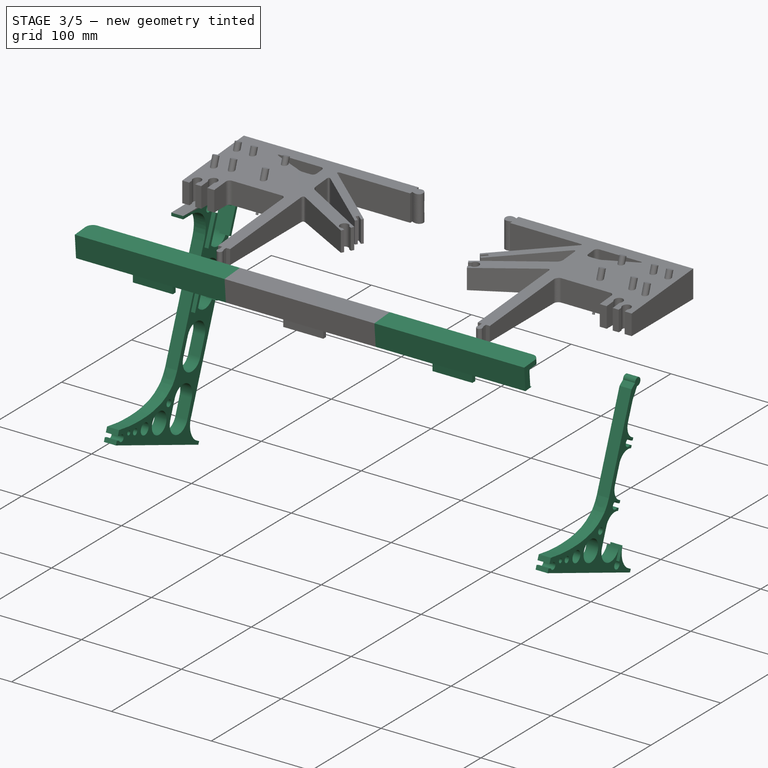
[diagram: stage 3 of 5 — iso view after this stage's code; geometry added in this stage tinted green]
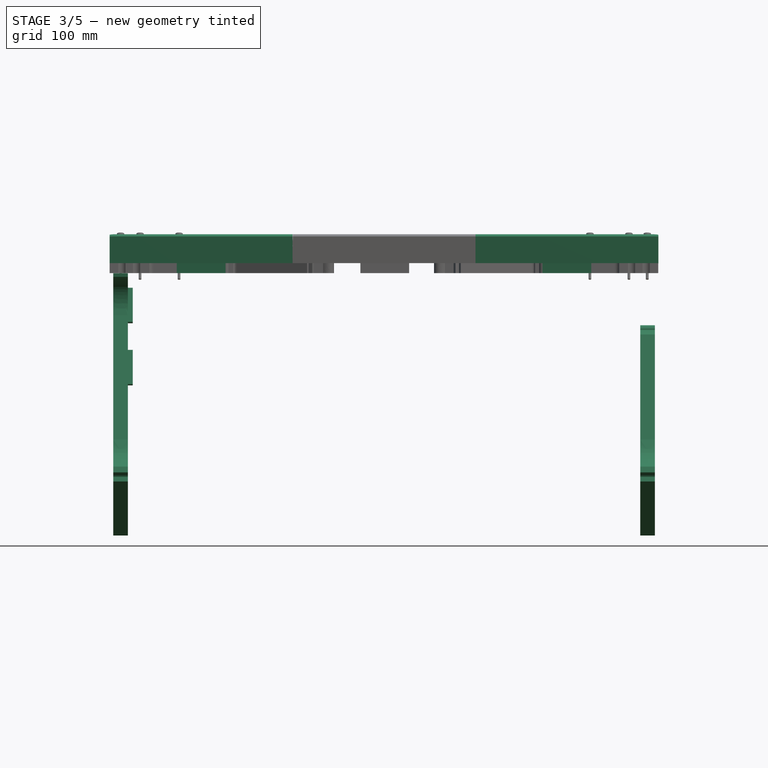
[diagram: stage 3 of 5 — front view after this stage's code; geometry added in this stage tinted green]
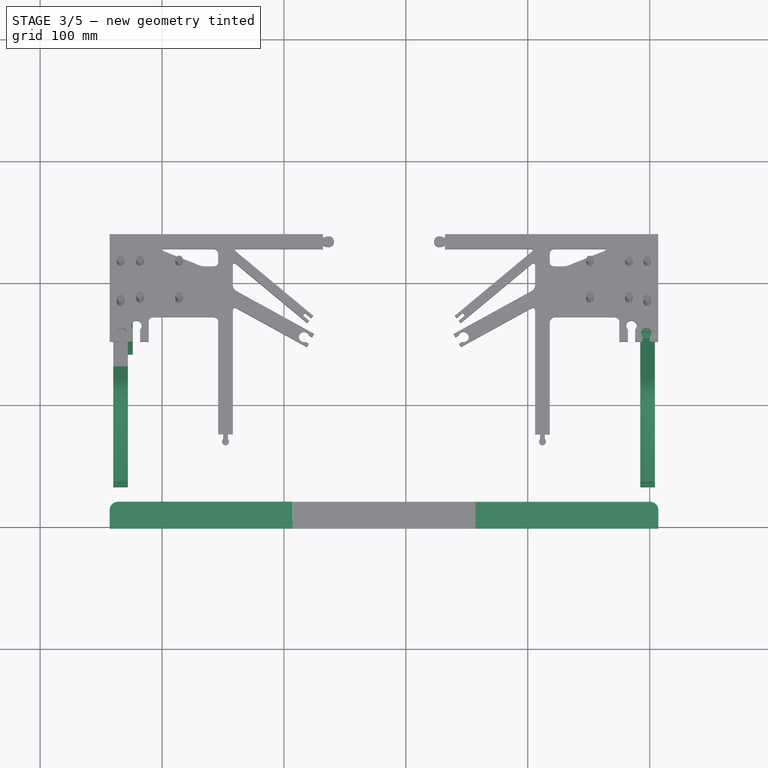
[diagram: stage 3 of 5 — top view after this stage's code; geometry added in this stage tinted green]
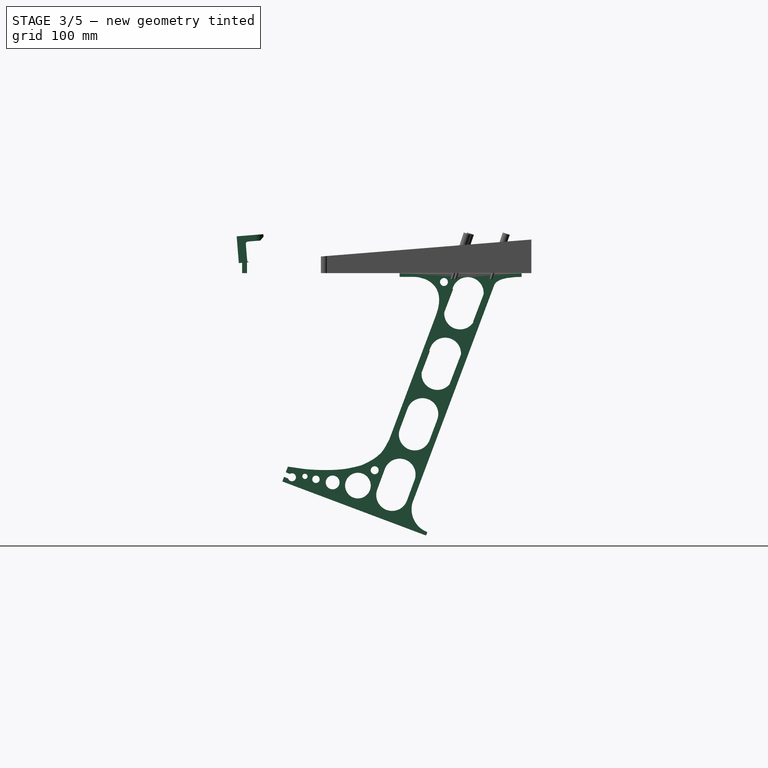
[diagram: stage 3 of 5 — right view after this stage's code; geometry added in this stage tinted green]
FEATURE [Part::Extrusion] Extrude005
  Base = -> Sketch010
  Dir = (1,0,0)
  DirMode = 2
  FaceMakerClass = Part::FaceMakerBullseye
  LengthFwd = 12
  LengthRev = 0
  Placement = pos=(-40,11,16) rot=(0,0,1;0rad)
  Solid = true
  Symmetric = false
FEATURE [Part::Extrusion] Extrude006  label="topLegLeft"
  Base = -> Sketch001
  Dir = (1,0,0)
  DirMode = 2
  FaceMakerClass = Part::FaceMakerBullseye
  LengthFwd = 12
  LengthRev = 0
  Placement = pos=(-40,11,16) rot=(0,0,1;0rad)
  Solid = true
  Symmetric = false
FEATURE [Sketcher::SketchObject] Sketch027
  FullyConstrained = true
  Placement = pos=(0,0,0) rot=(0.57735,0.57735,0.57735;2.0944rad)
  sketch-geometry (18):
    g0: LineSegment StartX=-152.23 StartY=29.0049 StartZ=0 EndX=-143.23 EndY=29.0049 EndZ=0
    g1: LineSegment StartX=-152.23 StartY=29.0049 StartZ=0 EndX=-152.23 EndY=51.0049 EndZ=0
    g2: LineSegment StartX=-152.23 StartY=51.0049 StartZ=0 EndX=-130.23 EndY=51.0049 EndZ=0
    g3: LineSegment StartX=-130.23 StartY=51.0049 StartZ=0 EndX=-130.23 EndY=46.0049 EndZ=0
    g4: LineSegment StartX=-130.23 StartY=46.0049 StartZ=0 EndX=-143.23 EndY=46.0049 EndZ=0
    g5: Circle CenterX=-145.23 CenterY=31.0049 CenterZ=0 NormalX=0 NormalY=0 NormalZ=1 AngleXU=0 Radius=1
    g6: Circle CenterX=-145.23 CenterY=29.0049 CenterZ=0 NormalX=0 NormalY=0 NormalZ=1 AngleXU=0 Radius=1
    g7: Circle CenterX=-143.23 CenterY=29.0049 CenterZ=0 NormalX=0 NormalY=0 NormalZ=1 AngleXU=0 Radius=1
    g8: BSplineCurve PolesCount=3 KnotsCount=2 Degree=2 IsPeriodic=0
    g9: GeomPoint X=-145.23 Y=31.0049 Z=0
    g10: GeomPoint X=-143.23 Y=29.0049 Z=0
    g11: Circle CenterX=-145.23 CenterY=44.0049 CenterZ=0 NormalX=0 NormalY=0 NormalZ=1 AngleXU=0 Radius=1
    g12: Circle CenterX=-145.23 CenterY=46.0049 CenterZ=0 NormalX=0 NormalY=0 NormalZ=1 AngleXU=0 Radius=1
    g13: Circle CenterX=-143.23 CenterY=46.0049 CenterZ=0 NormalX=0 NormalY=0 NormalZ=1 AngleXU=0 Radius=1
    g14: BSplineCurve PolesCount=3 KnotsCount=2 Degree=2 IsPeriodic=0
    g15: GeomPoint X=-145.23 Y=44.0049 Z=0
    g16: GeomPoint X=-143.23 Y=46.0049 Z=0
    g17: LineSegment StartX=-145.23 StartY=44.0049 StartZ=0 EndX=-145.23 EndY=31.0049 EndZ=0
  constraints (40):
    c: Horizontal(g0)
    c: Distance(g0) = 9
    c: Coincident(g1,g0)
    c: Vertical(g1)
    c: Distance(g1) = 22
    c: Coincident(g2,g1)
    c: Horizontal(g2)
    c: Coincident(g3,g2)
    c: Vertical(g3)
    c: Distance(g3) = 5
    c: Coincident(g4,g3)
    c: Horizontal(g4)
    c: Distance(g4) = 13
    c: PointOnObject(g6,g0)
    c: Weight(g5) = 1
    c: Equal(g5,g6)
    c: Equal(g5,g7)
    c: Coincident(g8,g0)
    c: InternalAlignment(g5,g8)
    c: InternalAlignment(g6,g8)
    c: InternalAlignment(g7,g8)
    c: InternalAlignment(g9,g8)
    c: InternalAlignment(g10,g8)
    c: Weight(g11) = 1
    c: Equal(g11,g12)
    c: Equal(g11,g13)
    c: Coincident(g14,g4)
    c: InternalAlignment(g11,g14)
    c: InternalAlignment(g12,g14)
    c: InternalAlignment(g13,g14)
    c: InternalAlignment(g15,g14)
    c: InternalAlignment(g16,g14)
    c: Coincident(g17,g14)
    c: Coincident(g17,g8)
    c: Vertical(g17)
    c: Block(g4)
    c: Block(g17)
    c: Block(g14)
    c: Block(g8)
    c: Distance(g2) = 22
FEATURE [Part::Extrusion] Extrude028  label="laptopRetainer013"
  Base = -> Sketch027
  Dir = (1,0,0)
  DirMode = 2
  FaceMakerClass = Part::FaceMakerBullseye
  LengthFwd = 150
  LengthRev = 0
  Placement = pos=(-42.925,50.355,-8.454) rot=(1,0,0;0.080285rad)
  Solid = true
  Symmetric = false
FEATURE [Part::Box] Box020  label="Cube011"
  AttacherType = Attacher::AttachEngine3D
  Height = 10
  Length = 40
  Placement = pos=(12.07,-101,0) rot=(0,0,1;0rad)
  Width = 4
FEATURE [Part::Fuse] Fusion014  label="laptopRetainer012"
  Base = -> Extrude028
  Tool = -> Box020
FEATURE [Sketcher::SketchObject] Sketch028
  FullyConstrained = true
  Placement = pos=(0,0,0) rot=(0.57735,0.57735,0.57735;2.0944rad)
  sketch-geometry (18):
    g0: LineSegment StartX=-152.23 StartY=29.0049 StartZ=0 EndX=-143.23 EndY=29.0049 EndZ=0
    g1: LineSegment StartX=-152.23 StartY=29.0049 StartZ=0 EndX=-152.23 EndY=51.0049 EndZ=0
    g2: LineSegment StartX=-152.23 StartY=51.0049 StartZ=0 EndX=-130.23 EndY=51.0049 EndZ=0
    g3: LineSegment StartX=-130.23 StartY=51.0049 StartZ=0 EndX=-130.23 EndY=46.0049 EndZ=0
    g4: LineSegment StartX=-130.23 StartY=46.0049 StartZ=0 EndX=-143.23 EndY=46.0049 EndZ=0
    g5: Circle CenterX=-145.23 CenterY=31.0049 CenterZ=0 NormalX=0 NormalY=0 NormalZ=1 AngleXU=0 Radius=1
    g6: Circle CenterX=-145.23 CenterY=29.0049 CenterZ=0 NormalX=0 NormalY=0 NormalZ=1 AngleXU=0 Radius=1
    g7: Circle CenterX=-143.23 CenterY=29.0049 CenterZ=0 NormalX=0 NormalY=0 NormalZ=1 AngleXU=0 Radius=1
    g8: BSplineCurve PolesCount=3 KnotsCount=2 Degree=2 IsPeriodic=0
    g9: GeomPoint X=-145.23 Y=31.0049 Z=0
    g10: GeomPoint X=-143.23 Y=29.0049 Z=0
    g11: Circle CenterX=-145.23 CenterY=44.0049 CenterZ=0 NormalX=0 NormalY=0 NormalZ=1 AngleXU=0 Radius=1
    g12: Circle CenterX=-145.23 CenterY=46.0049 CenterZ=0 NormalX=0 NormalY=0 NormalZ=1 AngleXU=0 Radius=1
    g13: Circle CenterX=-143.23 CenterY=46.0049 CenterZ=0 NormalX=0 NormalY=0 NormalZ=1 AngleXU=0 Radius=1
    g14: BSplineCurve PolesCount=3 KnotsCount=2 Degree=2 IsPeriodic=0
    g15: GeomPoint X=-145.23 Y=44.0049 Z=0
    g16: GeomPoint X=-143.23 Y=46.0049 Z=0
    g17: LineSegment StartX=-145.23 StartY=44.0049 StartZ=0 EndX=-145.23 EndY=31.0049 EndZ=0
  constraints (40):
    c: Horizontal(g0)
    c: Distance(g0) = 9
    c: Coincident(g1,g0)
    c: Vertical(g1)
    c: Distance(g1) = 22
    c: Coincident(g2,g1)
    c: Horizontal(g2)
    c: Coincident(g3,g2)
    c: Vertical(g3)
    c: Distance(g3) = 5
    c: Coincident(g4,g3)
    c: Horizontal(g4)
    c: Distance(g4) = 13
    c: PointOnObject(g6,g0)
    c: Weight(g5) = 1
    c: Equal(g5,g6)
    c: Equal(g5,g7)
    c: Coincident(g8,g0)
    c: InternalAlignment(g5,g8)
    c: InternalAlignment(g6,g8)
    c: InternalAlignment(g7,g8)
    c: InternalAlignment(g9,g8)
    c: InternalAlignment(g10,g8)
    c: Weight(g11) = 1
    c: Equal(g11,g12)
    c: Equal(g11,g13)
    c: Coincident(g14,g4)
    c: InternalAlignment(g11,g14)
    c: InternalAlignment(g12,g14)
    c: InternalAlignment(g13,g14)
    c: InternalAlignment(g15,g14)
    c: InternalAlignment(g16,g14)
    c: Coincident(g17,g14)
    c: Coincident(g17,g8)
    c: Vertical(g17)
    c: Block(g4)
    c: Block(g17)
    c: Block(g14)
    c: Block(g8)
    c: Distance(g2) = 22
FEATURE [Part::Extrusion] Extrude029  label="laptopRetainer016"
  Base = -> Sketch028
  Dir = (1,0,0)
  DirMode = 2
  FaceMakerClass = Part::FaceMakerBullseye
  LengthFwd = 150
  LengthRev = 0
  Placement = pos=(107.08,50.35,-8.45) rot=(1,0,0;0.080285rad)
  Solid = true
  Symmetric = false
FEATURE [Part::Box] Box021  label="Cube012"
  AttacherType = Attacher::AttachEngine3D
  Height = 10
  Length = 40
  Placement = pos=(162.7,-101,0) rot=(0,0,1;0rad)
  Width = 4
FEATURE [Part::Fuse] Fusion015  label="laptopRetainer014"
  Base = -> Extrude029
  Tool = -> Box021
FEATURE [Part::Box] Box022  label="Cube013"
  AttacherType = Attacher::AttachEngine3D
  Height = 10
  Length = 10
  Placement = pos=(101,-102.5,12) rot=(1,0,0;0.080285rad)
  Width = 4
FEATURE [Part::Box] Box023  label="Cube014"
  AttacherType = Attacher::AttachEngine3D
  Height = 10
  Length = 10
  Placement = pos=(253,-102.5,12) rot=(1,0,0;0.080285rad)
  Width = 4
FEATURE [Part::MultiFuse] Fusion016  label="laptopRetainer015"
  Shapes = -> [Box023,Fusion015,Box022]
FEATURE [Part::Cut] Cut011  label="laptopRetainer017"
  Base = -> Fusion014
  Tool = -> Fusion016
FEATURE [Part::Box] Box024  label="Cube015"
  AttacherType = Attacher::AttachEngine3D
  Height = 10
  Length = 40
  Placement = pos=(162.7,-101,0) rot=(0,0,1;0rad)
  Width = 4
FEATURE [Sketcher::SketchObject] Sketch029
  FullyConstrained = true
  Placement = pos=(0,0,0) rot=(0.57735,0.57735,0.57735;2.0944rad)
  sketch-geometry (18):
    g0: LineSegment StartX=-152.23 StartY=29.0049 StartZ=0 EndX=-143.23 EndY=29.0049 EndZ=0
    g1: LineSegment StartX=-152.23 StartY=29.0049 StartZ=0 EndX=-152.23 EndY=51.0049 EndZ=0
    g2: LineSegment StartX=-152.23 StartY=51.0049 StartZ=0 EndX=-130.23 EndY=51.0049 EndZ=0
    g3: LineSegment StartX=-130.23 StartY=51.0049 StartZ=0 EndX=-130.23 EndY=46.0049 EndZ=0
    g4: LineSegment StartX=-130.23 StartY=46.0049 StartZ=0 EndX=-143.23 EndY=46.0049 EndZ=0
    g5: Circle CenterX=-145.23 CenterY=31.0049 CenterZ=0 NormalX=0 NormalY=0 NormalZ=1 AngleXU=0 Radius=1
    g6: Circle CenterX=-145.23 CenterY=29.0049 CenterZ=0 NormalX=0 NormalY=0 NormalZ=1 AngleXU=0 Radius=1
    g7: Circle CenterX=-143.23 CenterY=29.0049 CenterZ=0 NormalX=0 NormalY=0 NormalZ=1 AngleXU=0 Radius=1
    g8: BSplineCurve PolesCount=3 KnotsCount=2 Degree=2 IsPeriodic=0
    g9: GeomPoint X=-145.23 Y=31.0049 Z=0
    g10: GeomPoint X=-143.23 Y=29.0049 Z=0
    g11: Circle CenterX=-145.23 CenterY=44.0049 CenterZ=0 NormalX=0 NormalY=0 NormalZ=1 AngleXU=0 Radius=1
    g12: Circle CenterX=-145.23 CenterY=46.0049 CenterZ=0 NormalX=0 NormalY=0 NormalZ=1 AngleXU=0 Radius=1
    g13: Circle CenterX=-143.23 CenterY=46.0049 CenterZ=0 NormalX=0 NormalY=0 NormalZ=1 AngleXU=0 Radius=1
    g14: BSplineCurve PolesCount=3 KnotsCount=2 Degree=2 IsPeriodic=0
    g15: GeomPoint X=-145.23 Y=44.0049 Z=0
    g16: GeomPoint X=-143.23 Y=46.0049 Z=0
    g17: LineSegment StartX=-145.23 StartY=44.0049 StartZ=0 EndX=-145.23 EndY=31.0049 EndZ=0
  constraints (40):
    c: Horizontal(g0)
    c: Distance(g0) = 9
    c: Coincident(g1,g0)
    c: Vertical(g1)
    c: Distance(g1) = 22
    c: Coincident(g2,g1)
    c: Horizontal(g2)
    c: Coincident(g3,g2)
    c: Vertical(g3)
    c: Distance(g3) = 5
    c: Coincident(g4,g3)
    c: Horizontal(g4)
    c: Distance(g4) = 13
    c: PointOnObject(g6,g0)
    c: Weight(g5) = 1
    c: Equal(g5,g6)
    c: Equal(g5,g7)
    c: Coincident(g8,g0)
    c: InternalAlignment(g5,g8)
    c: InternalAlignment(g6,g8)
    c: InternalAlignment(g7,g8)
    c: InternalAlignment(g9,g8)
    c: InternalAlignment(g10,g8)
    c: Weight(g11) = 1
    c: Equal(g11,g12)
    c: Equal(g11,g13)
    c: Coincident(g14,g4)
    c: InternalAlignment(g11,g14)
    c: InternalAlignment(g12,g14)
    c: InternalAlignment(g13,g14)
    c: InternalAlignment(g15,g14)
    c: InternalAlignment(g16,g14)
    c: Coincident(g17,g14)
    c: Coincident(g17,g8)
    c: Vertical(g17)
    c: Block(g4)
    c: Block(g17)
    c: Block(g14)
    c: Block(g8)
    c: Distance(g2) = 22
FEATURE [Part::Extrusion] Extrude030  label="laptopRetainer018"
  Base = -> Sketch029
  Dir = (1,0,0)
  DirMode = 2
  FaceMakerClass = Part::FaceMakerBullseye
  LengthFwd = 150
  LengthRev = 0
  Placement = pos=(107.08,50.35,-8.45) rot=(1,0,0;0.080285rad)
  Solid = true
  Symmetric = false
FEATURE [Part::Box] Box025  label="Cube016"
  AttacherType = Attacher::AttachEngine3D
  Height = 10
  Length = 10
  Placement = pos=(101,-102.5,12) rot=(1,0,0;0.080285rad)
  Width = 4
FEATURE [Part::Box] Box026  label="Cube017"
  AttacherType = Attacher::AttachEngine3D
  Height = 10
  Length = 10
  Placement = pos=(253,-102.5,12) rot=(1,0,0;0.080285rad)
  Width = 4
FEATURE [Part::Fuse] Fusion017  label="laptopRetainer019"
  Base = -> Extrude030
  Tool = -> Box024
FEATURE [Part::MultiFuse] Fusion018  label="laptopRetainer020"
  Shapes = -> [Box026,Fusion017,Box025]
FEATURE [Part::Extrusion] Extrude032  label="laptopRetainer023"
  Base = -> Sketch031
  Dir = (1,0,0)
  DirMode = 2
  FaceMakerClass = Part::FaceMakerBullseye
  LengthFwd = 150
  LengthRev = 0
  Placement = pos=(257.08,50.35,-8.45) rot=(1,0,0;0.080285rad)
  Solid = true
  Symmetric = false
FEATURE [Part::Box] Box028  label="Cube019"
  AttacherType = Attacher::AttachEngine3D
  Height = 10
  Length = 40
  Placement = pos=(312.07,-101,0) rot=(0,0,1;0rad)
  Width = 4
FEATURE [Part::MultiFuse] Fusion020  label="laptopRetainer024"
  Shapes = -> [Extrude032,Box028]
FEATURE [Part::Cut] Cut014  label="laptopRetainer026"
  Base = -> Fusion020
  Tool = -> Fusion021
FEATURE [Part::Box] Box039  label="Cube026"
  AttacherType = Attacher::AttachEngine3D
  Height = 30
  Length = 10
  Placement = pos=(-34,58.6,-40) rot=(-1,0,0;0.364774rad)
  Width = 3
FEATURE [Part::Box] Box040  label="Cube027"
  AttacherType = Attacher::AttachEngine3D
  Height = 30
  Length = 10
  Placement = pos=(-34,58.6,-40) rot=(-1,0,0;0.364774rad)
  Width = 3
FEATURE [Part::Box] Box041  label="Cube028"
  AttacherType = Attacher::AttachEngine3D
  Height = 30
  Length = 10
  Placement = pos=(-34,88.4,-40) rot=(-1,0,0;0.364774rad)
  Width = 3
FEATURE [Part::Box] Box042  label="Cube029"
  AttacherType = Attacher::AttachEngine3D
  Height = 30
  Length = 10
  Placement = pos=(-34,88.4,-40) rot=(-1,0,0;0.364774rad)
  Width = 3
FEATURE [Part::MultiFuse] Fusion041
  Shapes = -> [Box042,Box039]
FEATURE [Part::MultiFuse] Fusion042
  Placement = pos=(0,-19.2,-51) rot=(0,0,1;0rad)
  Shapes = -> [Box041,Box040]
FEATURE [Part::MultiFuse] Fusion043
  Placement = pos=(422.36,0,0) rot=(0,0,1;0rad)
  Shapes = -> [Fusion042,Fusion041]
FEATURE [Sketcher::SketchObject] Sketch036  label="legBottomBack001"
  FullyConstrained = true
  MapMode = 4
  Placement = pos=(0,0,0) rot=(0.57735,0.57735,0.57735;2.0944rad)
  sketch-geometry (76):
    g0: Circle CenterX=-17.0256 CenterY=-190.268 CenterZ=0 NormalX=0 NormalY=0 NormalZ=1 AngleXU=0 Radius=10.5072
    g1: Circle CenterX=-37.7758 CenterY=-187.672 CenterZ=0 NormalX=0 NormalY=0 NormalZ=1 AngleXU=0 Radius=5.64388
    g2: Circle CenterX=-51.4606 CenterY=-185.091 CenterZ=0 NormalX=0 NormalY=0 NormalZ=1 AngleXU=0 Radius=3.01653
    g3: Circle CenterX=-60.4835 CenterY=-182.688 CenterZ=0 NormalX=0 NormalY=0 NormalZ=1 AngleXU=0 Radius=2.12826
    g4: Circle CenterX=-3.29005 CenterY=-177.662 CenterZ=0 NormalX=0 NormalY=0 NormalZ=1 AngleXU=0 Radius=3.26661
    g5: ArcOfCircle CenterX=11.0205 CenterY=-198.019 CenterZ=0 NormalX=0 NormalY=0 NormalZ=1 AngleXU=0 Radius=13 StartAngle=2.78068 EndAngle=5.92131
    g6: LineSegment StartX=5.08312 StartY=-176.581 StartZ=0 EndX=-1.14188 EndY=-193.429 EndZ=0
    g7: ArcOfCircle CenterX=17.2475 CenterY=-181.166 CenterZ=0 NormalX=0 NormalY=0 NormalZ=1 AngleXU=0 Radius=13 StartAngle=1.21042 EndAngle=2.78109
    g8: LineSegment StartX=38.8952 StartY=-231.233 StartZ=0 EndX=39.9512 EndY=-228.425 EndZ=0
    g9: ArcOfCircle CenterX=46.9911 CenterY=-209.705 CenterZ=0 NormalX=0 NormalY=0 NormalZ=1 AngleXU=0 Radius=20 StartAngle=2.78766 EndAngle=4.35269
    g10: LineSegment StartX=23.7323 StartY=-126.969 StartZ=0 EndX=17.4091 EndY=-143.817 EndZ=0
    g11: ArcOfCircle CenterX=29.5716 CenterY=-148.408 CenterZ=0 NormalX=0 NormalY=0 NormalZ=1 AngleXU=0 Radius=13 StartAngle=2.78068 EndAngle=4.35262
    g12: ArcOfCircle CenterX=35.8967 CenterY=-131.555 CenterZ=0 NormalX=0 NormalY=0 NormalZ=1 AngleXU=0 Radius=13 StartAngle=1.21584 EndAngle=2.78109
    g13: ArcOfCircle CenterX=48.1805 CenterY=-98.7782 CenterZ=0 NormalX=0 NormalY=0 NormalZ=1 AngleXU=0 Radius=13 StartAngle=2.78068 EndAngle=4.35005
    g14: LineSegment StartX=42.354 StartY=-77.3391 StartZ=0 EndX=36.018 EndY=-94.1875 EndZ=0
    g15: ArcOfCircle CenterX=54.5183 CenterY=-81.9247 CenterZ=0 NormalX=0 NormalY=0 NormalZ=1 AngleXU=0 Radius=13 StartAngle=2.42113 EndAngle=2.78109
    g16: ArcOfCircle CenterX=20.184 CenterY=-217.506 CenterZ=0 NormalX=0 NormalY=0 NormalZ=1 AngleXU=0 Radius=3.81084 StartAngle=1.88136 EndAngle=6.80465
    g17: LineSegment StartX=38.4753 StartY=-115.966 StartZ=0 EndX=41.2852 EndY=-117.017 EndZ=0
    g18: ArcOfCircle CenterX=36.3663 CenterY=-113.042 CenterZ=0 NormalX=0 NormalY=0 NormalZ=1 AngleXU=0 Radius=3.60555 StartAngle=0.230024 EndAngle=5.3372
    g19: LineSegment StartX=39.8769 StartY=-112.22 StartZ=0 EndX=42.6867 EndY=-113.271 EndZ=0
    g20: LineSegment StartX=19.9036 StartY=-165.61 StartZ=0 EndX=22.7134 EndY=-166.661 EndZ=0
    g21: ArcOfCircle CenterX=17.7945 CenterY=-162.686 CenterZ=0 NormalX=0 NormalY=0 NormalZ=1 AngleXU=0 Radius=3.60555 StartAngle=0.230024 EndAngle=5.3372
    g22: LineSegment StartX=21.3051 StartY=-161.864 StartZ=0 EndX=24.1149 EndY=-162.915 EndZ=0
    g23: LineSegment StartX=41.085 StartY=-66.3176 StartZ=0 EndX=46.0385 EndY=-62.5254 EndZ=0
    g24: LineSegment StartX=48.9563 StartY=-66.3367 StartZ=0 EndX=44.7488 EndY=-73.3482 EndZ=0
    g25: ArcOfCircle CenterX=49.8795 CenterY=-62.6074 CenterZ=0 NormalX=0 NormalY=0 NormalZ=1 AngleXU=0 Radius=3.84187 StartAngle=4.46973 EndAngle=9.40343
    g26: LineSegment StartX=43.5724 StartY=-110.934 StartZ=0 EndX=42.6867 EndY=-113.271 EndZ=0
    g27: LineSegment StartX=40.4148 StartY=-119.365 StartZ=0 EndX=41.2852 EndY=-117.017 EndZ=0
    g28: LineSegment StartX=21.8316 StartY=-169.001 StartZ=0 EndX=22.7134 EndY=-166.661 EndZ=0
    g29: LineSegment StartX=24.9948 StartY=-160.575 StartZ=0 EndX=24.1149 EndY=-162.915 EndZ=0
    g30: LineSegment StartX=23.1786 StartY=-202.622 StartZ=0 EndX=19.0195 EndY=-213.878 EndZ=0
    g31: LineSegment StartX=28.2308 StartY=-202.773 StartZ=0 EndX=23.4884 EndY=-215.608 EndZ=0
    g32: LineSegment StartX=-76.2249 StartY=-179.393 StartZ=0 EndX=-72.8553 EndY=-180.66 EndZ=0
    g33: ArcOfCircle CenterX=-71.1257 CenterY=-183.448 CenterZ=0 NormalX=0 NormalY=0 NormalZ=1 AngleXU=0 Radius=3.28025 StartAngle=3.43759 EndAngle=8.40938
    g34: LineSegment StartX=-79.0409 StartY=-186.881 StartZ=0 EndX=38.8952 EndY=-231.233 EndZ=0
    g35-g53: Circle x19 (B-spline internal-alignment scaffolding for g54; pole/knot coordinates omitted)
    g54: BSplineCurve PolesCount=19 KnotsCount=17 Degree=3 IsPeriodic=0
    g55-g71: GeomPoint x17 (B-spline internal-alignment scaffolding for g54; pole/knot coordinates omitted)
    g72: LineSegment StartX=-74.2633 StartY=-184.404 StartZ=0 EndX=-77.6329 EndY=-183.137 EndZ=0
    g73: LineSegment StartX=-79.0409 StartY=-186.881 StartZ=0 EndX=-77.6329 EndY=-183.137 EndZ=0
    g74: LineSegment StartX=8.65492 StartY=-152.553 StartZ=0 EndX=41.085 EndY=-66.3176 EndZ=0
    g75: LineSegment StartX=-74.4658 StartY=-174.715 StartZ=0 EndX=-76.2249 EndY=-179.393 EndZ=0
  constraints (76):
    c: Block(g5)
    c: Block(g7)
    c: Block(g0)
    c: Block(g4)
    c: Block(g1)
    c: Block(g2)
    c: Block(g3)
    c: Block(g9)
    c: Coincident(g8,g9)
    c: Block(g8)
    c: Coincident(g6,g7)
    c: Coincident(g6,g5)
    c: Block(g11)
    c: Block(g12)
    c: Coincident(g10,g12)
    c: Coincident(g10,g11)
    c: Block(g13)
    c: Block(g15)
    c: Coincident(g14,g15)
    c: Coincident(g14,g13)
    c: Block(g16)
    c: Block(g18)
    c: Coincident(g19,g18)
    c: Coincident(g17,g18)
    c: Parallel(g19,g17)
    c: Block(g17)
    c: Block(g19)
    c: Block(g21)
    c: Coincident(g22,g21)
    c: Coincident(g20,g21)
    c: Parallel(g22,g20)
    c: Block(g20)
    c: Block(g22)
    c: Block(g23)
    c: Coincident(g25,g23)
    c: Coincident(g25,g24)
    c: Block(g25)
    c: Block(g24)
    c: Coincident(g26,g19)
    c: Block(g26)
    c: Coincident(g27,g17)
    c: Block(g27)
    c: Coincident(g28,g20)
    c: Coincident(g29,g22)
    c: Block(g29)
    c: Block(g28)
    c: Coincident(g30,g5)
    c: Coincident(g30,g16)
    c: Block(g30)
    c: Coincident(g7,g28)
    c: Coincident(g11,g29)
    c: Coincident(g12,g27)
    c: Coincident(g13,g26)
    c: Coincident(g15,g24)
    c: Coincident(g31,g9)
    c: Coincident(g31,g16)
    c: Distance(g32) = 3.6
    c: Block(g32)
    c: Coincident(g33,g32)
    c: Coincident(g34,g8)
    c: Weight(g35) = 1
    c: Equal(g35, g36-g53) x18
    c: InternalAlignment(g35-g53 -> g54) x19
    c: InternalAlignment(g55-g71 -> g54) x17
    c: Block(g33)
    c: Block(g54)
    c: Coincident(g72,g33)
    c: Coincident(g73,g34)
    c: Block(g34)
    c: Parallel(g72,g34)
    c: Perpendicular(g73,g34)
    c: Coincident(g72,g73)
    c: Coincident(g74,g54)
    c: Coincident(g74,g23)
    c: Coincident(g75,g54)
    c: Coincident(g75,g32)
FEATURE [Part::Extrusion] Extrude037
  Base = -> Sketch036
  Dir = (1,0,0)
  DirMode = 2
  FaceMakerClass = Part::FaceMakerBullseye
  LengthFwd = 12
  LengthRev = 0
  Placement = pos=(392.24,11,16) rot=(0,0,1;0rad)
  Solid = true
  Symmetric = false
FEATURE [Part::Box] Box052  label="Cube039"
  AttacherType = Attacher::AttachEngine3D
  Height = 30
  Length = 10
  Placement = pos=(-34,58.6,-40) rot=(-1,0,0;0.364774rad)
  Width = 3
FEATURE [Part::Box] Box053  label="Cube040"
  AttacherType = Attacher::AttachEngine3D
  Height = 30
  Length = 10
  Placement = pos=(-34,88.4,-40) rot=(-1,0,0;0.364774rad)
  Width = 3
FEATURE [Part::Box] Box054  label="Cube041"
  AttacherType = Attacher::AttachEngine3D
  Height = 30
  Length = 10
  Placement = pos=(-34,88.4,-40) rot=(-1,0,0;0.364774rad)
  Width = 3
FEATURE [Part::Cut] Cut025  label="rightBottomLeg"
  Base = -> Extrude037
  Tool = -> Fusion043
FEATURE [Part::Box] Box055  label="Cube042"
  AttacherType = Attacher::AttachEngine3D
  Height = 30
  Length = 10
  Placement = pos=(-34,58.6,-40) rot=(-1,0,0;0.364774rad)
  Width = 3
FEATURE [Part::Box] Box056  label="Cube043"
  AttacherType = Attacher::AttachEngine3D
  Height = 30
  Length = 10
  Placement = pos=(-34,58.6,-40) rot=(-1,0,0;0.364774rad)
  Width = 3
FEATURE [Part::Box] Box057  label="Cube044"
  AttacherType = Attacher::AttachEngine3D
  Height = 30
  Length = 10
  Placement = pos=(-34,88.4,-40) rot=(-1,0,0;0.364774rad)
  Width = 3
FEATURE [Part::Box] Box058  label="Cube045"
  AttacherType = Attacher::AttachEngine3D
  Height = 30
  Length = 10
  Placement = pos=(-34,88.4,-40) rot=(-1,0,0;0.364774rad)
  Width = 3
FEATURE [Part::MultiFuse] Fusion052
  Shapes = -> [Box058,Box055]
FEATURE [Part::MultiFuse] Fusion053
  Placement = pos=(0,-19.2,-51) rot=(0,0,1;0rad)
  Shapes = -> [Box057,Box056]
FEATURE [Part::MultiFuse] Fusion054  label="leftLegBraceAttatchments"
  Shapes = -> [Fusion053,Fusion052]
FEATURE [Part::MultiFuse] Fusion055  label="leftLegBraceAttatchments001"
  Shapes = -> [Fusion053,Fusion052]
FEATURE [Part::Cut] Cut026
  Base = -> Extrude006
  Tool = -> Fusion055
FEATURE [Part::MultiFuse] Fusion056  label="leftLegBraceAttatchments002"
  Shapes = -> [Fusion053,Fusion052]
FEATURE [Part::Cut] Cut027
  Base = -> Extrude005
  Tool = -> Fusion054
FEATURE [Part::Chamfer] Chamfer
  Base = -> Cut014
  Edges = 1 edges r=3: [Edge39]
FEATURE [Part::Chamfer] Chamfer001
  Base = -> Fusion018
  Edges = 1 edges r=3: [Edge36]
FEATURE [Part::Chamfer] Chamfer002
  Base = -> Cut011
  Edges = 1 edges r=3: [Edge40]
FEATURE [Part::Fillet] Fillet004
  Base = -> Chamfer002
  Edges = 1 edges r=7: [Edge3]
FEATURE [Part::Fillet] Fillet005
  Base = -> Chamfer
  Edges = 1 edges r=7: [Edge15]
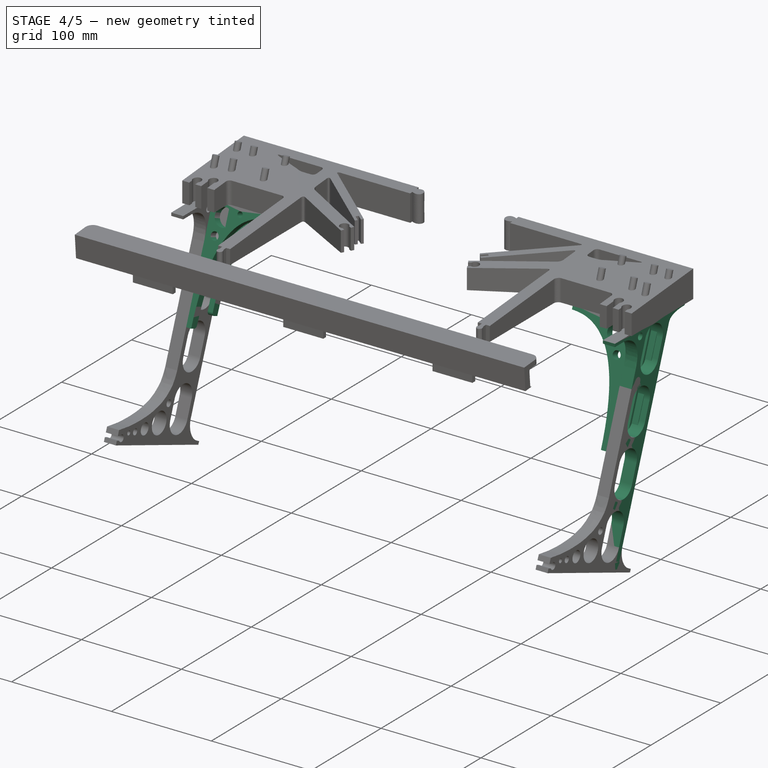
[diagram: stage 4 of 5 — iso view after this stage's code; geometry added in this stage tinted green]
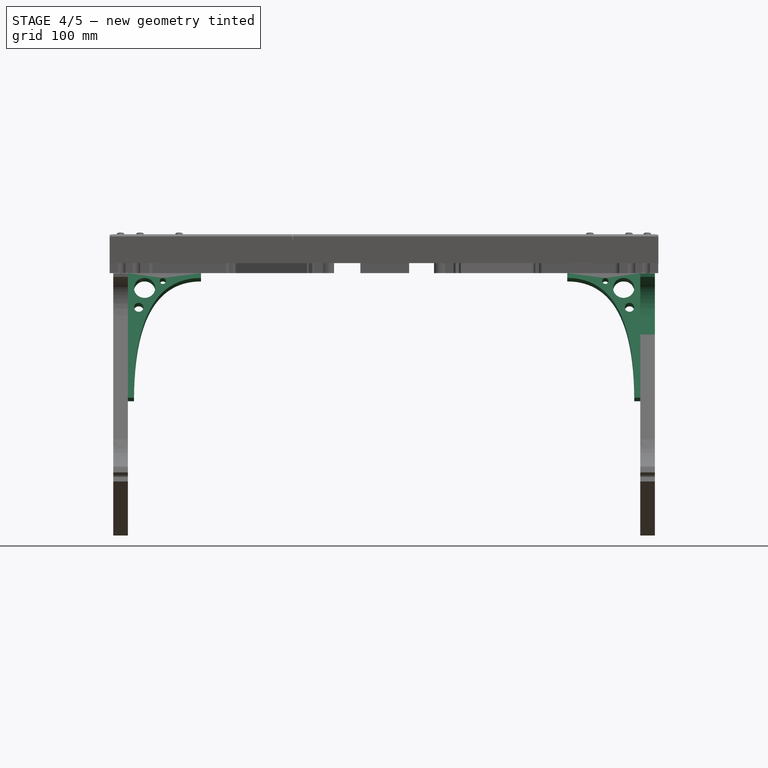
[diagram: stage 4 of 5 — front view after this stage's code; geometry added in this stage tinted green]
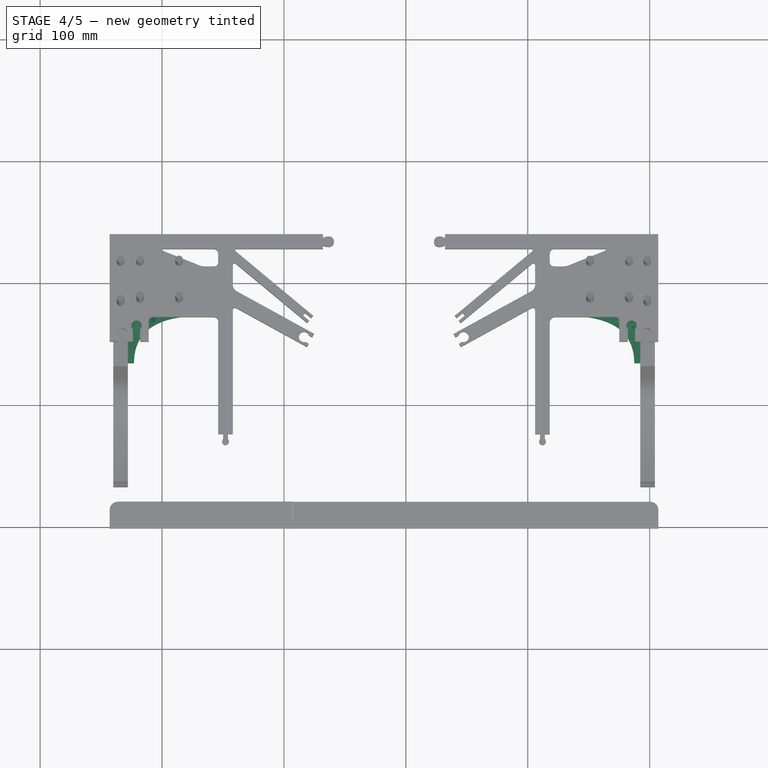
[diagram: stage 4 of 5 — top view after this stage's code; geometry added in this stage tinted green]
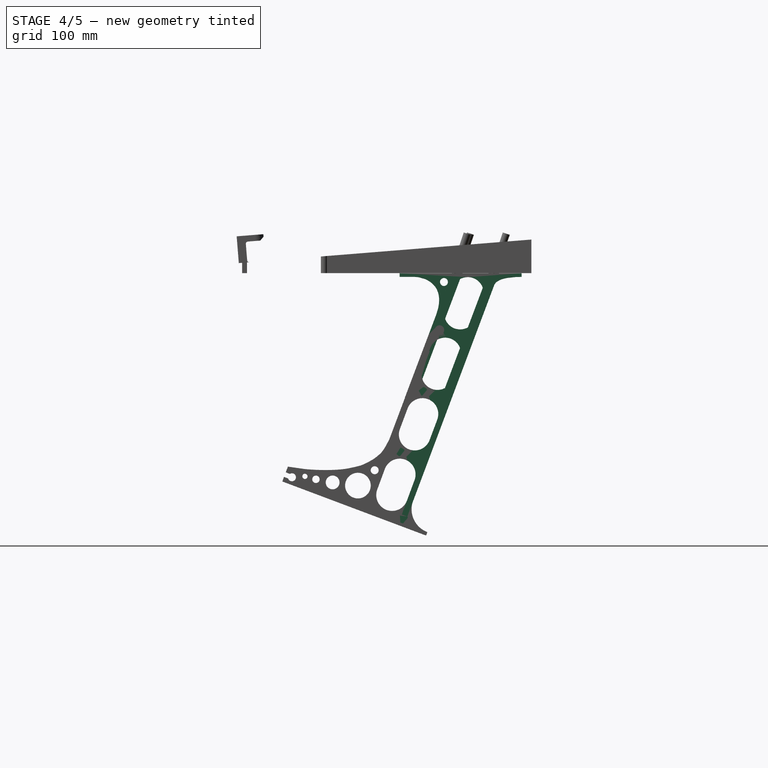
[diagram: stage 4 of 5 — right view after this stage's code; geometry added in this stage tinted green]
FEATURE [Sketcher::SketchObject] Sketch003  label="original"
  FullyConstrained = false
  sketch-geometry (469):
    g0: LineSegment StartX=-42.9272 StartY=136.221 StartZ=0 EndX=-42.9272 EndY=-103.779 EndZ=0
    g1: LineSegment StartX=407.073 StartY=136.221 StartZ=0 EndX=407.073 EndY=-103.779 EndZ=0
    g2: ArcOfCircle CenterX=-26.9272 CenterY=-83.7794 CenterZ=0 NormalX=0 NormalY=0 NormalZ=1 AngleXU=0 Radius=8 StartAngle=3.14159 EndAngle=6.28319
    g3: ArcOfCircle CenterX=391.073 CenterY=-83.7794 CenterZ=0 NormalX=0 NormalY=0 NormalZ=1 AngleXU=0 Radius=8 StartAngle=3.14159 EndAngle=6.28319
    g4: Circle CenterX=175.022 CenterY=27.0628 CenterZ=0 NormalX=0 NormalY=0 NormalZ=1 AngleXU=0 Radius=1
    g5: Circle CenterX=179.022 CenterY=24.8665 CenterZ=0 NormalX=0 NormalY=0 NormalZ=1 AngleXU=0 Radius=1
    g6: Circle CenterX=179.022 CenterY=27.0628 CenterZ=0 NormalX=0 NormalY=0 NormalZ=1 AngleXU=0 Radius=1
    g7: BSplineCurve PolesCount=3 KnotsCount=2 Degree=2 IsPeriodic=0
    g8: GeomPoint X=175.022 Y=27.0628 Z=0
    g9: GeomPoint X=179.022 Y=27.0628 Z=0
    g10: Circle CenterX=189.124 CenterY=27.0628 CenterZ=0 NormalX=0 NormalY=0 NormalZ=1 AngleXU=0 Radius=1
    g11: Circle CenterX=185.124 CenterY=24.8665 CenterZ=0 NormalX=0 NormalY=0 NormalZ=1 AngleXU=0 Radius=1
    g12: Circle CenterX=185.124 CenterY=27.0628 CenterZ=0 NormalX=0 NormalY=0 NormalZ=1 AngleXU=0 Radius=1
    g13: BSplineCurve PolesCount=3 KnotsCount=2 Degree=2 IsPeriodic=0
    g14: GeomPoint X=189.124 Y=27.0628 Z=0
    g15: GeomPoint X=185.124 Y=27.0628 Z=0
    g16: Circle CenterX=175.022 CenterY=5.37834 CenterZ=0 NormalX=0 NormalY=0 NormalZ=1 AngleXU=0 Radius=1
    g17: Circle CenterX=179.022 CenterY=7.57463 CenterZ=0 NormalX=0 NormalY=0 NormalZ=1 AngleXU=0 Radius=1
    g18: Circle CenterX=179.022 CenterY=5.34704 CenterZ=0 NormalX=0 NormalY=0 NormalZ=1 AngleXU=0 Radius=1
    g19: BSplineCurve PolesCount=3 KnotsCount=2 Degree=2 IsPeriodic=0
    g20: GeomPoint X=175.022 Y=5.37834 Z=0
    g21: GeomPoint X=179.022 Y=5.34704 Z=0
    g22: Circle CenterX=189.124 CenterY=5.37834 CenterZ=0 NormalX=0 NormalY=0 NormalZ=1 AngleXU=0 Radius=1
    g23: Circle CenterX=185.124 CenterY=7.57463 CenterZ=0 NormalX=0 NormalY=0 NormalZ=1 AngleXU=0 Radius=1
    g24: Circle CenterX=185.124 CenterY=5.34704 CenterZ=0 NormalX=0 NormalY=0 NormalZ=1 AngleXU=0 Radius=1
    g25: BSplineCurve PolesCount=3 KnotsCount=2 Degree=2 IsPeriodic=0
    g26: GeomPoint X=189.124 Y=5.37834 Z=0
    g27: GeomPoint X=185.124 Y=5.34704 Z=0
    g28: Circle CenterX=165.871 CenterY=18.1458 CenterZ=0 NormalX=0 NormalY=0 NormalZ=1 AngleXU=0 Radius=1
    g29: Circle CenterX=169.377 CenterY=16.2206 CenterZ=0 NormalX=0 NormalY=0 NormalZ=1 AngleXU=0 Radius=1
    g30: Circle CenterX=165.871 CenterY=14.2956 CenterZ=0 NormalX=0 NormalY=0 NormalZ=1 AngleXU=0 Radius=1
    g31: BSplineCurve PolesCount=3 KnotsCount=2 Degree=2 IsPeriodic=0
    g32: GeomPoint X=165.871 Y=18.1458 Z=0
    g33: GeomPoint X=165.871 Y=14.2956 Z=0
    g34: Circle CenterX=198.275 CenterY=18.1318 CenterZ=0 NormalX=0 NormalY=0 NormalZ=1 AngleXU=0 Radius=1
    g35: Circle CenterX=194.768 CenterY=16.2206 CenterZ=0 NormalX=0 NormalY=0 NormalZ=1 AngleXU=0 Radius=1
    g36: Circle CenterX=198.264 CenterY=14.2963 CenterZ=0 NormalX=0 NormalY=0 NormalZ=1 AngleXU=0 Radius=1
    g37: BSplineCurve PolesCount=3 KnotsCount=2 Degree=2 IsPeriodic=0
    g38: GeomPoint X=198.275 Y=18.1318 Z=0
    g39: GeomPoint X=198.264 Y=14.2963 Z=0
    g40: LineSegment StartX=407.073 StartY=-103.779 StartZ=0 EndX=-42.9272 EndY=-103.779 EndZ=0
    g41: Circle CenterX=125.607 CenterY=54.1951 CenterZ=0 NormalX=0 NormalY=0 NormalZ=1 AngleXU=0 Radius=1
    g42: Circle CenterX=139.632 CenterY=46.4944 CenterZ=0 NormalX=0 NormalY=0 NormalZ=1 AngleXU=0 Radius=1
    g43: Circle CenterX=127.326 CenterY=56.7187 CenterZ=0 NormalX=0 NormalY=0 NormalZ=1 AngleXU=0 Radius=1
    g44: BSplineCurve PolesCount=3 KnotsCount=2 Degree=2 IsPeriodic=0
    g45: GeomPoint X=125.607 Y=54.1951 Z=0
    g46: GeomPoint X=127.326 Y=56.7187 Z=0
    g47: Circle CenterX=236.824 CenterY=56.7187 CenterZ=0 NormalX=0 NormalY=0 NormalZ=1 AngleXU=0 Radius=1
    g48: Circle CenterX=224.513 CenterY=46.4944 CenterZ=0 NormalX=0 NormalY=0 NormalZ=1 AngleXU=0 Radius=1
    g49: Circle CenterX=238.538 CenterY=54.1951 CenterZ=0 NormalX=0 NormalY=0 NormalZ=1 AngleXU=0 Radius=1
    g50: BSplineCurve PolesCount=3 KnotsCount=2 Degree=2 IsPeriodic=0
    g51: GeomPoint X=236.824 Y=56.7187 Z=0
    g52: GeomPoint X=238.538 Y=54.1951 Z=0
    g53: Circle CenterX=238.538 CenterY=-21.7516 CenterZ=0 NormalX=0 NormalY=0 NormalZ=1 AngleXU=0 Radius=1
    g54: Circle CenterX=224.513 CenterY=-14.0532 CenterZ=0 NormalX=0 NormalY=0 NormalZ=1 AngleXU=0 Radius=1
    g55: Circle CenterX=236.584 CenterY=-24.2775 CenterZ=0 NormalX=0 NormalY=0 NormalZ=1 AngleXU=0 Radius=1
    g56: BSplineCurve PolesCount=3 KnotsCount=2 Degree=2 IsPeriodic=0
    g57: GeomPoint X=238.538 Y=-21.7516 Z=0
    g58: GeomPoint X=236.584 Y=-24.2775 Z=0
    g59: Circle CenterX=125.607 CenterY=-21.7539 CenterZ=0 NormalX=0 NormalY=0 NormalZ=1 AngleXU=0 Radius=1
    g60: Circle CenterX=139.632 CenterY=-14.0532 CenterZ=0 NormalX=0 NormalY=0 NormalZ=1 AngleXU=0 Radius=1
    g61: Circle CenterX=127.325 CenterY=-24.2775 CenterZ=0 NormalX=0 NormalY=0 NormalZ=1 AngleXU=0 Radius=1
    g62: BSplineCurve PolesCount=3 KnotsCount=2 Degree=2 IsPeriodic=0
    g63: GeomPoint X=125.607 Y=-21.7539 Z=0
    g64: GeomPoint X=127.325 Y=-24.2775 Z=0
    g65: Circle CenterX=302.996 CenterY=111.695 CenterZ=0 NormalX=0 NormalY=0 NormalZ=1 AngleXU=0 Radius=1
    g66: Circle CenterX=306.073 CenterY=114.251 CenterZ=0 NormalX=0 NormalY=0 NormalZ=1 AngleXU=0 Radius=1
    g67: Circle CenterX=306.073 CenterY=110.251 CenterZ=0 NormalX=0 NormalY=0 NormalZ=1 AngleXU=0 Radius=1
    g68: BSplineCurve PolesCount=3 KnotsCount=2 Degree=2 IsPeriodic=0
    g69: GeomPoint X=302.996 Y=111.695 Z=0
    g70: GeomPoint X=306.073 Y=110.251 Z=0
    g71: Circle CenterX=306.073 CenterY=95.2763 CenterZ=0 NormalX=0 NormalY=0 NormalZ=1 AngleXU=0 Radius=1
    g72: Circle CenterX=306.073 CenterY=91.2763 CenterZ=0 NormalX=0 NormalY=0 NormalZ=1 AngleXU=0 Radius=1
    g73: Circle CenterX=302.567 CenterY=89.3511 CenterZ=0 NormalX=0 NormalY=0 NormalZ=1 AngleXU=0 Radius=1
    g74: BSplineCurve PolesCount=3 KnotsCount=2 Degree=2 IsPeriodic=0
    g75: GeomPoint X=306.073 Y=95.2763 Z=0
    g76: GeomPoint X=302.567 Y=89.3511 Z=0
    g77: LineSegment StartX=306.073 StartY=110.251 StartZ=0 EndX=306.073 EndY=95.2763 EndZ=0
    g78: LineSegment StartX=302.996 StartY=111.695 StartZ=0 EndX=236.824 EndY=56.7187 EndZ=0
    g79: LineSegment StartX=238.538 StartY=54.1951 StartZ=0 EndX=302.567 EndY=89.3511 EndZ=0
    g80: Circle CenterX=61.1496 CenterY=111.695 CenterZ=0 NormalX=0 NormalY=0 NormalZ=1 AngleXU=0 Radius=1
    g81: Circle CenterX=58.0728 CenterY=114.251 CenterZ=0 NormalX=0 NormalY=0 NormalZ=1 AngleXU=0 Radius=1
    g82: Circle CenterX=58.0728 CenterY=110.251 CenterZ=0 NormalX=0 NormalY=0 NormalZ=1 AngleXU=0 Radius=1
    g83: BSplineCurve PolesCount=3 KnotsCount=2 Degree=2 IsPeriodic=0
    g84: GeomPoint X=61.1496 Y=111.695 Z=0
    g85: GeomPoint X=58.0728 Y=110.251 Z=0
    g86: Circle CenterX=61.5791 CenterY=89.3511 CenterZ=0 NormalX=0 NormalY=0 NormalZ=1 AngleXU=0 Radius=1
    g87: Circle CenterX=58.0728 CenterY=91.2763 CenterZ=0 NormalX=0 NormalY=0 NormalZ=1 AngleXU=0 Radius=1
    g88: Circle CenterX=58.0728 CenterY=95.2763 CenterZ=0 NormalX=0 NormalY=0 NormalZ=1 AngleXU=0 Radius=1
    g89: BSplineCurve PolesCount=3 KnotsCount=2 Degree=2 IsPeriodic=0
    g90: GeomPoint X=61.5791 Y=89.3511 Z=0
    g91: GeomPoint X=58.0728 Y=95.2763 Z=0
    g92: LineSegment StartX=58.0728 StartY=110.251 StartZ=0 EndX=58.0728 EndY=95.2763 EndZ=0
    g93: LineSegment StartX=61.1496 StartY=111.695 StartZ=0 EndX=127.326 EndY=56.7187 EndZ=0
    g94: LineSegment StartX=125.607 StartY=54.1951 StartZ=0 EndX=61.5791 EndY=89.3511 EndZ=0
    g95: Circle CenterX=61.5791 CenterY=-56.9099 CenterZ=0 NormalX=0 NormalY=0 NormalZ=1 AngleXU=0 Radius=1
    g96: Circle CenterX=58.0728 CenterY=-58.8351 CenterZ=0 NormalX=0 NormalY=0 NormalZ=1 AngleXU=0 Radius=1
    g97: Circle CenterX=58.0728 CenterY=-62.8351 CenterZ=0 NormalX=0 NormalY=0 NormalZ=1 AngleXU=0 Radius=1
    g98: BSplineCurve PolesCount=3 KnotsCount=2 Degree=2 IsPeriodic=0
    g99: GeomPoint X=61.5791 Y=-56.9099 Z=0
    g100: GeomPoint X=58.0728 Y=-62.8351 Z=0
    g101: Circle CenterX=58.0728 CenterY=-77.8102 CenterZ=0 NormalX=0 NormalY=0 NormalZ=1 AngleXU=0 Radius=1
    g102: Circle CenterX=58.0728 CenterY=-81.8102 CenterZ=0 NormalX=0 NormalY=0 NormalZ=1 AngleXU=0 Radius=1
    g103: Circle CenterX=61.1496 CenterY=-79.2541 CenterZ=0 NormalX=0 NormalY=0 NormalZ=1 AngleXU=0 Radius=1
    g104: BSplineCurve PolesCount=3 KnotsCount=2 Degree=2 IsPeriodic=0
    g105: GeomPoint X=58.0728 Y=-77.8102 Z=0
    g106: GeomPoint X=61.1496 Y=-79.2541 Z=0
    g107: LineSegment StartX=58.0728 StartY=-62.8351 StartZ=0 EndX=58.0728 EndY=-77.8102 EndZ=0
    g108: LineSegment StartX=61.1496 StartY=-79.2541 StartZ=0 EndX=127.325 EndY=-24.2775 EndZ=0
    g109: LineSegment StartX=125.607 StartY=-21.7539 StartZ=0 EndX=61.5791 EndY=-56.9099 EndZ=0
    g110: Circle CenterX=302.567 CenterY=-56.9099 CenterZ=0 NormalX=0 NormalY=0 NormalZ=1 AngleXU=0 Radius=1
    g111: Circle CenterX=306.073 CenterY=-58.8351 CenterZ=0 NormalX=0 NormalY=0 NormalZ=1 AngleXU=0 Radius=1
    g112: Circle CenterX=306.073 CenterY=-62.8351 CenterZ=0 NormalX=0 NormalY=0 NormalZ=1 AngleXU=0 Radius=1
    g113: BSplineCurve PolesCount=3 KnotsCount=2 Degree=2 IsPeriodic=0
    g114: GeomPoint X=302.567 Y=-56.9099 Z=0
    g115: GeomPoint X=306.073 Y=-62.8351 Z=0
    g116: Circle CenterX=302.996 CenterY=-79.2541 CenterZ=0 NormalX=0 NormalY=0 NormalZ=1 AngleXU=0 Radius=1
    g117: Circle CenterX=306.073 CenterY=-81.8102 CenterZ=0 NormalX=0 NormalY=0 NormalZ=1 AngleXU=0 Radius=1
    g118: Circle CenterX=306.073 CenterY=-77.8102 CenterZ=0 NormalX=0 NormalY=0 NormalZ=1 AngleXU=0 Radius=1
    g119: BSplineCurve PolesCount=3 KnotsCount=2 Degree=2 IsPeriodic=0
    g120: GeomPoint X=302.996 Y=-79.2541 Z=0
    g121: GeomPoint X=306.073 Y=-77.8102 Z=0
    g122: LineSegment StartX=306.073 StartY=-62.8351 StartZ=0 EndX=306.073 EndY=-77.8102 EndZ=0
    g123: LineSegment StartX=302.996 StartY=-79.2541 StartZ=0 EndX=236.584 EndY=-24.2775 EndZ=0
    g124: LineSegment StartX=238.538 StartY=-21.7516 StartZ=0 EndX=302.567 EndY=-56.9099 EndZ=0
    g125: Circle CenterX=61.6457 CenterY=-88.8112 CenterZ=0 NormalX=0 NormalY=0 NormalZ=1 AngleXU=0 Radius=1
    g126: Circle CenterX=58.0728 CenterY=-91.7794 CenterZ=0 NormalX=0 NormalY=0 NormalZ=1 AngleXU=0 Radius=1
    g127: Circle CenterX=63.9135 CenterY=-91.7791 CenterZ=0 NormalX=0 NormalY=0 NormalZ=1 AngleXU=0 Radius=1
    g128: BSplineCurve PolesCount=3 KnotsCount=2 Degree=2 IsPeriodic=0
    g129: GeomPoint X=61.6457 Y=-88.8112 Z=0
    g130: GeomPoint X=63.9135 Y=-91.7791 Z=0
    g131: Circle CenterX=179.022 CenterY=-85.8163 CenterZ=0 NormalX=0 NormalY=0 NormalZ=1 AngleXU=0 Radius=1
    g132: Circle CenterX=179.022 CenterY=-91.7794 CenterZ=0 NormalX=0 NormalY=0 NormalZ=1 AngleXU=0 Radius=1
    g133: Circle CenterX=171.895 CenterY=-91.7791 CenterZ=0 NormalX=0 NormalY=0 NormalZ=1 AngleXU=0 Radius=1
    g134: BSplineCurve PolesCount=3 KnotsCount=2 Degree=2 IsPeriodic=0
    g135: GeomPoint X=179.022 Y=-85.8163 Z=0
    g136: GeomPoint X=171.895 Y=-91.7791 Z=0
    g137: Circle CenterX=185.124 CenterY=-86.2028 CenterZ=0 NormalX=0 NormalY=0 NormalZ=1 AngleXU=0 Radius=1
    g138: Circle CenterX=185.124 CenterY=-91.7794 CenterZ=0 NormalX=0 NormalY=0 NormalZ=1 AngleXU=0 Radius=1
    g139: Circle CenterX=191.747 CenterY=-91.7794 CenterZ=0 NormalX=0 NormalY=0 NormalZ=1 AngleXU=0 Radius=1
    g140: BSplineCurve PolesCount=3 KnotsCount=2 Degree=2 IsPeriodic=0
    g141: GeomPoint X=185.124 Y=-86.2028 Z=0
    g142: GeomPoint X=191.747 Y=-91.7794 Z=0
    g143: Circle CenterX=299.888 CenterY=-86.6413 CenterZ=0 NormalX=0 NormalY=0 NormalZ=1 AngleXU=0 Radius=1
    g144: Circle CenterX=306.073 CenterY=-91.7794 CenterZ=0 NormalX=0 NormalY=0 NormalZ=1 AngleXU=0 Radius=1
    g145: Circle CenterX=298.776 CenterY=-91.7794 CenterZ=0 NormalX=0 NormalY=0 NormalZ=1 AngleXU=0 Radius=1
    g146: BSplineCurve PolesCount=3 KnotsCount=2 Degree=2 IsPeriodic=0
    g147: GeomPoint X=299.888 Y=-86.6413 Z=0
    g148: GeomPoint X=298.776 Y=-91.7794 Z=0
    g149: LineSegment StartX=189.124 StartY=5.37834 StartZ=0 EndX=299.888 EndY=-86.6413 EndZ=0
    g150: LineSegment StartX=298.776 StartY=-91.7794 StartZ=0 EndX=191.747 EndY=-91.7794 EndZ=0
    g151: LineSegment StartX=185.124 StartY=-86.2028 StartZ=0 EndX=185.124 EndY=5.34704 EndZ=0
    g152: LineSegment StartX=179.022 StartY=5.34704 StartZ=0 EndX=179.022 EndY=-85.8163 EndZ=0
    g153: LineSegment StartX=171.895 StartY=-91.7791 StartZ=0 EndX=63.9135 EndY=-91.7791 EndZ=0
    g154: LineSegment StartX=61.6457 StartY=-88.8112 StartZ=0 EndX=175.022 EndY=5.37834 EndZ=0
    g155: Circle CenterX=302.073 CenterY=124.221 CenterZ=0 NormalX=0 NormalY=0 NormalZ=1 AngleXU=0 Radius=1
    g156: Circle CenterX=306.073 CenterY=124.221 CenterZ=0 NormalX=0 NormalY=0 NormalZ=1 AngleXU=0 Radius=1
    g157: Circle CenterX=302.996 CenterY=121.665 CenterZ=0 NormalX=0 NormalY=0 NormalZ=1 AngleXU=0 Radius=1
    g158: BSplineCurve PolesCount=3 KnotsCount=2 Degree=2 IsPeriodic=0
    g159: GeomPoint X=302.073 Y=124.221 Z=0
    g160: GeomPoint X=302.996 Y=121.665 Z=0
    g161: Circle CenterX=189.124 CenterY=124.221 CenterZ=0 NormalX=0 NormalY=0 NormalZ=1 AngleXU=0 Radius=1
    g162: Circle CenterX=185.124 CenterY=124.221 CenterZ=0 NormalX=0 NormalY=0 NormalZ=1 AngleXU=0 Radius=1
    g163: Circle CenterX=185.124 CenterY=120.221 CenterZ=0 NormalX=0 NormalY=0 NormalZ=1 AngleXU=0 Radius=1
    g164: BSplineCurve PolesCount=3 KnotsCount=2 Degree=2 IsPeriodic=0
    g165: GeomPoint X=189.124 Y=124.221 Z=0
    g166: GeomPoint X=185.124 Y=120.221 Z=0
    g167: Circle CenterX=175.022 CenterY=124.221 CenterZ=0 NormalX=0 NormalY=0 NormalZ=1 AngleXU=0 Radius=1
    g168: Circle CenterX=179.022 CenterY=124.221 CenterZ=0 NormalX=0 NormalY=0 NormalZ=1 AngleXU=0 Radius=1
    g169: Circle CenterX=179.022 CenterY=120.221 CenterZ=0 NormalX=0 NormalY=0 NormalZ=1 AngleXU=0 Radius=1
    g170: BSplineCurve PolesCount=3 KnotsCount=2 Degree=2 IsPeriodic=0
    g171: GeomPoint X=175.022 Y=124.221 Z=0
    g172: GeomPoint X=179.022 Y=120.221 Z=0
    g173: Circle CenterX=62.0728 CenterY=124.221 CenterZ=0 NormalX=0 NormalY=0 NormalZ=1 AngleXU=0 Radius=1
    g174: Circle CenterX=58.0728 CenterY=124.221 CenterZ=0 NormalX=0 NormalY=0 NormalZ=1 AngleXU=0 Radius=1
    g175: Circle CenterX=61.1496 CenterY=121.665 CenterZ=0 NormalX=0 NormalY=0 NormalZ=1 AngleXU=0 Radius=1
    g176: BSplineCurve PolesCount=3 KnotsCount=2 Degree=2 IsPeriodic=0
    g177: GeomPoint X=62.0728 Y=124.221 Z=0
    g178: GeomPoint X=61.1496 Y=121.665 Z=0
    g179: LineSegment StartX=179.022 StartY=120.221 StartZ=0 EndX=179.022 EndY=27.0628 EndZ=0
    g180: LineSegment StartX=185.124 StartY=27.0628 StartZ=0 EndX=185.124 EndY=120.221 EndZ=0
    g181: LineSegment StartX=302.996 StartY=121.665 StartZ=0 EndX=189.124 EndY=27.0628 EndZ=0
    g182: LineSegment StartX=175.022 StartY=27.0628 StartZ=0 EndX=61.1496 EndY=121.665 EndZ=0
    g183: Circle CenterX=61.5791 CenterY=75.4095 CenterZ=0 NormalX=0 NormalY=0 NormalZ=1 AngleXU=0 Radius=1
    g184: Circle CenterX=58.0728 CenterY=77.3346 CenterZ=0 NormalX=0 NormalY=0 NormalZ=1 AngleXU=0 Radius=1
    g185: Circle CenterX=58.0728 CenterY=73.3346 CenterZ=0 NormalX=0 NormalY=0 NormalZ=1 AngleXU=0 Radius=1
    g186: BSplineCurve PolesCount=3 KnotsCount=2 Degree=2 IsPeriodic=0
    g187: GeomPoint X=61.5791 Y=75.4095 Z=0
    g188: GeomPoint X=58.0728 Y=73.3346 Z=0
    g189: Circle CenterX=58.0728 CenterY=-40.8935 CenterZ=0 NormalX=0 NormalY=0 NormalZ=1 AngleXU=0 Radius=1
    g190: Circle CenterX=58.0728 CenterY=-44.8935 CenterZ=0 NormalX=0 NormalY=0 NormalZ=1 AngleXU=0 Radius=1
    g191: Circle CenterX=61.5791 CenterY=-42.9683 CenterZ=0 NormalX=0 NormalY=0 NormalZ=1 AngleXU=0 Radius=1
    g192: BSplineCurve PolesCount=3 KnotsCount=2 Degree=2 IsPeriodic=0
    g193: GeomPoint X=58.0728 Y=-40.8935 Z=0
    g194: GeomPoint X=61.5791 Y=-42.9683 Z=0
    g195: LineSegment StartX=61.5791 StartY=-42.9683 StartZ=0 EndX=165.871 EndY=14.2956 EndZ=0
    g196: LineSegment StartX=165.871 StartY=18.1458 StartZ=0 EndX=61.5791 EndY=75.4095 EndZ=0
    g197: LineSegment StartX=58.0728 StartY=73.3346 StartZ=0 EndX=58.0728 EndY=-40.8935 EndZ=0
    g198: Circle CenterX=302.567 CenterY=-42.9683 CenterZ=0 NormalX=0 NormalY=0 NormalZ=1 AngleXU=0 Radius=1
    g199: Circle CenterX=306.073 CenterY=-44.8935 CenterZ=0 NormalX=0 NormalY=0 NormalZ=1 AngleXU=0 Radius=1
    g200: Circle CenterX=306.073 CenterY=-40.8935 CenterZ=0 NormalX=0 NormalY=0 NormalZ=1 AngleXU=0 Radius=1
    g201: BSplineCurve PolesCount=3 KnotsCount=2 Degree=2 IsPeriodic=0
    g202: GeomPoint X=302.567 Y=-42.9683 Z=0
    g203: GeomPoint X=306.073 Y=-40.8935 Z=0
    g204: Circle CenterX=306.073 CenterY=73.3346 CenterZ=0 NormalX=0 NormalY=0 NormalZ=1 AngleXU=0 Radius=1
    g205: Circle CenterX=306.073 CenterY=77.3346 CenterZ=0 NormalX=0 NormalY=0 NormalZ=1 AngleXU=0 Radius=1
    g206: Circle CenterX=302.535 CenterY=75.4095 CenterZ=0 NormalX=0 NormalY=0 NormalZ=1 AngleXU=0 Radius=1
    g207: BSplineCurve PolesCount=3 KnotsCount=2 Degree=2 IsPeriodic=0
    g208: GeomPoint X=306.073 Y=73.3346 Z=0
    g209: GeomPoint X=302.535 Y=75.4095 Z=0
    g210: LineSegment StartX=302.567 StartY=-42.9683 StartZ=0 EndX=198.264 EndY=14.2963 EndZ=0
    g211: LineSegment StartX=198.275 StartY=18.1318 StartZ=0 EndX=302.535 EndY=75.4095 EndZ=0
    g212: LineSegment StartX=306.073 StartY=73.3346 StartZ=0 EndX=306.073 EndY=-40.8935 EndZ=0
    g213: LineSegment StartX=322.073 StartY=105.865 StartZ=0 EndX=328.643 EndY=105.865 EndZ=0
    g214: LineSegment StartX=318.073 StartY=120.221 StartZ=0 EndX=318.073 EndY=109.865 EndZ=0
    g215: LineSegment StartX=336.157 StartY=107.779 StartZ=0 EndX=362.567 EndY=122.294 EndZ=0
    g216: Circle CenterX=362.073 CenterY=124.221 CenterZ=0 NormalX=0 NormalY=0 NormalZ=1 AngleXU=0 Radius=1
    g217: Circle CenterX=366.073 CenterY=124.221 CenterZ=0 NormalX=0 NormalY=0 NormalZ=1 AngleXU=0 Radius=1
    g218: Circle CenterX=362.567 CenterY=122.294 CenterZ=0 NormalX=0 NormalY=0 NormalZ=1 AngleXU=0 Radius=1
    g219: BSplineCurve PolesCount=3 KnotsCount=2 Degree=2 IsPeriodic=0
    g220: GeomPoint X=362.073 Y=124.221 Z=0
    g221: GeomPoint X=362.567 Y=122.294 Z=0
    g222: Circle CenterX=322.073 CenterY=124.221 CenterZ=0 NormalX=0 NormalY=0 NormalZ=1 AngleXU=0 Radius=1
    g223: Circle CenterX=318.073 CenterY=124.221 CenterZ=0 NormalX=0 NormalY=0 NormalZ=1 AngleXU=0 Radius=1
    g224: Circle CenterX=318.073 CenterY=120.221 CenterZ=0 NormalX=0 NormalY=0 NormalZ=1 AngleXU=0 Radius=1
    g225: BSplineCurve PolesCount=3 KnotsCount=2 Degree=2 IsPeriodic=0
    g226: GeomPoint X=322.073 Y=124.221 Z=0
    g227: GeomPoint X=318.073 Y=120.221 Z=0
    g228: Circle CenterX=322.073 CenterY=105.865 CenterZ=0 NormalX=0 NormalY=0 NormalZ=1 AngleXU=0 Radius=1
    g229: Circle CenterX=318.073 CenterY=105.865 CenterZ=0 NormalX=0 NormalY=0 NormalZ=1 AngleXU=0 Radius=1
    g230: Circle CenterX=318.073 CenterY=109.865 CenterZ=0 NormalX=0 NormalY=0 NormalZ=1 AngleXU=0 Radius=1
    g231: BSplineCurve PolesCount=3 KnotsCount=2 Degree=2 IsPeriodic=0
    g232: GeomPoint X=322.073 Y=105.865 Z=0
    g233: GeomPoint X=318.073 Y=109.865 Z=0
    g234: Circle CenterX=336.157 CenterY=107.779 CenterZ=0 NormalX=0 NormalY=0 NormalZ=1 AngleXU=0 Radius=1
    g235: Circle CenterX=332.651 CenterY=105.853 CenterZ=0 NormalX=0 NormalY=0 NormalZ=1 AngleXU=0 Radius=1
    g236: Circle CenterX=328.643 CenterY=105.865 CenterZ=0 NormalX=0 NormalY=0 NormalZ=1 AngleXU=0 Radius=1
    g237: BSplineCurve PolesCount=3 KnotsCount=2 Degree=2 IsPeriodic=0
    g238: GeomPoint X=336.157 Y=107.779 Z=0
    g239: GeomPoint X=328.643 Y=105.865 Z=0
    g240: LineSegment StartX=322.073 StartY=124.221 StartZ=0 EndX=362.073 EndY=124.221 EndZ=0
    g241: Circle CenterX=371.567 CenterY=-80.8644 CenterZ=0 NormalX=0 NormalY=0 NormalZ=1 AngleXU=0 Radius=1
    g242: Circle CenterX=375.073 CenterY=-82.7896 CenterZ=0 NormalX=0 NormalY=0 NormalZ=1 AngleXU=0 Radius=1
    g243: Circle CenterX=375.073 CenterY=-78.7896 CenterZ=0 NormalX=0 NormalY=0 NormalZ=1 AngleXU=0 Radius=1
    g244: BSplineCurve PolesCount=3 KnotsCount=2 Degree=2 IsPeriodic=0
    g245: GeomPoint X=371.567 Y=-80.8644 Z=0
    g246: GeomPoint X=375.073 Y=-78.7896 Z=0
    g247: Circle CenterX=321.579 CenterY=-53.4075 CenterZ=0 NormalX=0 NormalY=0 NormalZ=1 AngleXU=0 Radius=1
    g248: Circle CenterX=318.073 CenterY=-51.4823 CenterZ=0 NormalX=0 NormalY=0 NormalZ=1 AngleXU=0 Radius=1
    g249: Circle CenterX=318.073 CenterY=-47.4805 CenterZ=0 NormalX=0 NormalY=0 NormalZ=1 AngleXU=0 Radius=1
    g250: BSplineCurve PolesCount=3 KnotsCount=2 Degree=2 IsPeriodic=0
    g251: GeomPoint X=321.579 Y=-53.4075 Z=0
    g252: GeomPoint X=318.073 Y=-47.4805 Z=0
    g253: LineSegment StartX=371.567 StartY=-80.8644 StartZ=0 EndX=321.579 EndY=-53.4075 EndZ=0
    g254: Circle CenterX=321.579 CenterY=-67.3492 CenterZ=0 NormalX=0 NormalY=0 NormalZ=1 AngleXU=0 Radius=1
    g255: Circle CenterX=318.073 CenterY=-65.424 CenterZ=0 NormalX=0 NormalY=0 NormalZ=1 AngleXU=0 Radius=1
    g256: Circle CenterX=318.073 CenterY=-69.424 CenterZ=0 NormalX=0 NormalY=0 NormalZ=1 AngleXU=0 Radius=1
    g257: BSplineCurve PolesCount=3 KnotsCount=2 Degree=2 IsPeriodic=0
    g258: GeomPoint X=321.579 Y=-67.3492 Z=0
    g259: GeomPoint X=318.073 Y=-69.424 Z=0
    g260: Circle CenterX=362.567 CenterY=-89.8542 CenterZ=0 NormalX=0 NormalY=0 NormalZ=1 AngleXU=0 Radius=1
    g261: Circle CenterX=366.073 CenterY=-91.7794 CenterZ=0 NormalX=0 NormalY=0 NormalZ=1 AngleXU=0 Radius=1
    g262: Circle CenterX=362.073 CenterY=-91.7794 CenterZ=0 NormalX=0 NormalY=0 NormalZ=1 AngleXU=0 Radius=1
    g263: BSplineCurve PolesCount=3 KnotsCount=2 Degree=2 IsPeriodic=0
    g264: GeomPoint X=362.567 Y=-89.8542 Z=0
    g265: GeomPoint X=362.073 Y=-91.7794 Z=0
    g266: Circle CenterX=322.073 CenterY=-91.7794 CenterZ=0 NormalX=0 NormalY=0 NormalZ=1 AngleXU=0 Radius=1
    g267: Circle CenterX=318.073 CenterY=-91.7794 CenterZ=0 NormalX=0 NormalY=0 NormalZ=1 AngleXU=0 Radius=1
    g268: Circle CenterX=318.073 CenterY=-87.7794 CenterZ=0 NormalX=0 NormalY=0 NormalZ=1 AngleXU=0 Radius=1
    g269: BSplineCurve PolesCount=3 KnotsCount=2 Degree=2 IsPeriodic=0
    g270: GeomPoint X=322.073 Y=-91.7794 Z=0
    g271: GeomPoint X=318.073 Y=-87.7794 Z=0
    g272: LineSegment StartX=362.567 StartY=-89.8542 StartZ=0 EndX=321.579 EndY=-67.3492 EndZ=0
    g273: LineSegment StartX=318.073 StartY=-69.424 StartZ=0 EndX=318.073 EndY=-87.7794 EndZ=0
    g274: LineSegment StartX=322.073 StartY=-91.7794 StartZ=0 EndX=362.073 EndY=-91.7794 EndZ=0
    g275: Circle CenterX=2.07281 CenterY=124.221 CenterZ=0 NormalX=0 NormalY=0 NormalZ=1 AngleXU=0 Radius=1
    g276: Circle CenterX=1.57905 CenterY=122.295 CenterZ=0 NormalX=0 NormalY=0 NormalZ=1 AngleXU=0 Radius=1
    g277: BSplineCurve PolesCount=3 KnotsCount=2 Degree=2 IsPeriodic=0
    g278: GeomPoint X=2.07281 Y=124.221 Z=0
    g279: GeomPoint X=1.57905 Y=122.295 Z=0
    g280: Circle CenterX=42.0728 CenterY=124.221 CenterZ=0 NormalX=0 NormalY=0 NormalZ=1 AngleXU=0 Radius=1
    g281: Circle CenterX=46.0728 CenterY=124.221 CenterZ=0 NormalX=0 NormalY=0 NormalZ=1 AngleXU=0 Radius=1
    g282: Circle CenterX=46.0728 CenterY=120.221 CenterZ=0 NormalX=0 NormalY=0 NormalZ=1 AngleXU=0 Radius=1
    g283: BSplineCurve PolesCount=3 KnotsCount=2 Degree=2 IsPeriodic=0
    g284: GeomPoint X=42.0728 Y=124.221 Z=0
    g285: GeomPoint X=46.0728 Y=120.221 Z=0
    g286: Circle CenterX=46.0728 CenterY=109.865 CenterZ=0 NormalX=0 NormalY=0 NormalZ=1 AngleXU=0 Radius=1
    g287: Circle CenterX=46.0728 CenterY=105.865 CenterZ=0 NormalX=0 NormalY=0 NormalZ=1 AngleXU=0 Radius=1
    g288: Circle CenterX=42.0728 CenterY=105.865 CenterZ=0 NormalX=0 NormalY=0 NormalZ=1 AngleXU=0 Radius=1
    g289: BSplineCurve PolesCount=3 KnotsCount=2 Degree=2 IsPeriodic=0
    g290: GeomPoint X=46.0728 Y=109.865 Z=0
    g291: GeomPoint X=42.0728 Y=105.865 Z=0
    g292: Circle CenterX=35.5028 CenterY=105.865 CenterZ=0 NormalX=0 NormalY=0 NormalZ=1 AngleXU=0 Radius=1
    g293: Circle CenterX=31.5028 CenterY=105.865 CenterZ=0 NormalX=0 NormalY=0 NormalZ=1 AngleXU=0 Radius=1
    g294: Circle CenterX=27.9965 CenterY=107.79 CenterZ=0 NormalX=0 NormalY=0 NormalZ=1 AngleXU=0 Radius=1
    g295: BSplineCurve PolesCount=3 KnotsCount=2 Degree=2 IsPeriodic=0
    g296: GeomPoint X=35.5028 Y=105.865 Z=0
    g297: GeomPoint X=27.9965 Y=107.79 Z=0
    g298: LineSegment StartX=2.07281 StartY=124.221 StartZ=0 EndX=42.0728 EndY=124.221 EndZ=0
    g299: LineSegment StartX=46.0728 StartY=120.221 StartZ=0 EndX=46.0728 EndY=109.865 EndZ=0
    g300: LineSegment StartX=42.0728 StartY=105.865 StartZ=0 EndX=35.5028 EndY=105.865 EndZ=0
    g301: LineSegment StartX=27.9965 StartY=107.79 StartZ=0 EndX=1.57905 EndY=122.295 EndZ=0
    g302: Circle CenterX=42.5666 CenterY=-67.3492 CenterZ=0 NormalX=0 NormalY=0 NormalZ=1 AngleXU=0 Radius=1
    g303: Circle CenterX=46.0728 CenterY=-65.424 CenterZ=0 NormalX=0 NormalY=0 NormalZ=1 AngleXU=0 Radius=1
    g304: Circle CenterX=46.0728 CenterY=-69.424 CenterZ=0 NormalX=0 NormalY=0 NormalZ=1 AngleXU=0 Radius=1
    g305: BSplineCurve PolesCount=3 KnotsCount=2 Degree=2 IsPeriodic=0
    g306: GeomPoint X=42.5666 Y=-67.3492 Z=0
    g307: GeomPoint X=46.0728 Y=-69.424 Z=0
    g308: Circle CenterX=46.0728 CenterY=-87.7794 CenterZ=0 NormalX=0 NormalY=0 NormalZ=1 AngleXU=0 Radius=1
    g309: Circle CenterX=46.0728 CenterY=-91.7794 CenterZ=0 NormalX=0 NormalY=0 NormalZ=1 AngleXU=0 Radius=1
    g310: Circle CenterX=42.0728 CenterY=-91.7794 CenterZ=0 NormalX=0 NormalY=0 NormalZ=1 AngleXU=0 Radius=1
    g311: BSplineCurve PolesCount=3 KnotsCount=2 Degree=2 IsPeriodic=0
    g312: GeomPoint X=46.0728 Y=-87.7794 Z=0
    g313: GeomPoint X=42.0728 Y=-91.7794 Z=0
    g314: Circle CenterX=2.07281 CenterY=-91.7794 CenterZ=0 NormalX=0 NormalY=0 NormalZ=1 AngleXU=0 Radius=1
    g315: Circle CenterX=-1.92719 CenterY=-91.7794 CenterZ=0 NormalX=0 NormalY=0 NormalZ=1 AngleXU=0 Radius=1
    g316: Circle CenterX=1.57905 CenterY=-89.8542 CenterZ=0 NormalX=0 NormalY=0 NormalZ=1 AngleXU=0 Radius=1
    g317: BSplineCurve PolesCount=3 KnotsCount=2 Degree=2 IsPeriodic=0
    g318: GeomPoint X=2.07281 Y=-91.7794 Z=0
    g319: GeomPoint X=1.57905 Y=-89.8542 Z=0
    g320: LineSegment StartX=2.07281 StartY=-91.7794 StartZ=0 EndX=42.0728 EndY=-91.7794 EndZ=0
    g321: LineSegment StartX=46.0728 StartY=-87.7794 StartZ=0 EndX=46.0728 EndY=-69.424 EndZ=0
    g322: LineSegment StartX=42.5666 StartY=-67.3492 StartZ=0 EndX=1.57905 EndY=-89.8542 EndZ=0
    g323: Circle CenterX=322.073 CenterY=76.4095 CenterZ=0 NormalX=0 NormalY=0 NormalZ=1 AngleXU=0 Radius=4
    g324: BSplineCurve PolesCount=3 KnotsCount=2 Degree=2 IsPeriodic=0
    g325: GeomPoint X=318.073 Y=72.4095 Z=0
    g326: GeomPoint X=322.073 Y=76.4095 Z=0
    g327: Circle CenterX=375.073 CenterY=72.4095 CenterZ=0 NormalX=0 NormalY=0 NormalZ=1 AngleXU=0 Radius=1
    g328: Circle CenterX=375.073 CenterY=76.4095 CenterZ=0 NormalX=0 NormalY=0 NormalZ=1 AngleXU=0 Radius=1
    g329: Circle CenterX=371.073 CenterY=76.4095 CenterZ=0 NormalX=0 NormalY=0 NormalZ=1 AngleXU=0 Radius=1
    g330: BSplineCurve PolesCount=3 KnotsCount=2 Degree=2 IsPeriodic=0
    g331: GeomPoint X=375.073 Y=72.4095 Z=0
    g332: GeomPoint X=371.073 Y=76.4095 Z=0
    g333: LineSegment StartX=322.073 StartY=76.4095 StartZ=0 EndX=371.073 EndY=76.4095 EndZ=0
    g334: LineSegment StartX=318.073 StartY=72.4095 StartZ=0 EndX=318.073 EndY=-47.4805 EndZ=0
    g335: LineSegment StartX=375.073 StartY=72.4095 StartZ=0 EndX=375.073 EndY=-78.7896 EndZ=0
    g336: ArcOfCircle CenterX=-26.9272 CenterY=22.1087 CenterZ=0 NormalX=0 NormalY=0 NormalZ=1 AngleXU=0 Radius=4 StartAngle=5e-16 EndAngle=3.14159
    g337: LineSegment StartX=-22.9272 StartY=22.1087 StartZ=0 EndX=-18.9272 EndY=-83.7794 EndZ=0
    g338: LineSegment StartX=-34.9272 StartY=-83.7794 StartZ=0 EndX=-30.9272 EndY=22.1087 EndZ=0
    g339: ArcOfCircle CenterX=391.073 CenterY=22.1087 CenterZ=0 NormalX=0 NormalY=0 NormalZ=1 AngleXU=0 Radius=4 StartAngle=0 EndAngle=3.14159
    g340: LineSegment StartX=387.073 StartY=22.1087 StartZ=0 EndX=383.073 EndY=-83.7794 EndZ=0
    g341: LineSegment StartX=395.073 StartY=22.1087 StartZ=0 EndX=399.073 EndY=-83.7794 EndZ=0
    g342: Circle CenterX=-10.9272 CenterY=-78.7794 CenterZ=0 NormalX=0 NormalY=0 NormalZ=1 AngleXU=0 Radius=1
    g343: Circle CenterX=-10.9272 CenterY=-82.7794 CenterZ=0 NormalX=0 NormalY=0 NormalZ=1 AngleXU=0 Radius=1
    g344: Circle CenterX=-7.42095 CenterY=-80.8542 CenterZ=0 NormalX=0 NormalY=0 NormalZ=1 AngleXU=0 Radius=1
    g345: BSplineCurve PolesCount=3 KnotsCount=2 Degree=2 IsPeriodic=0
    g346: GeomPoint X=-10.9272 Y=-78.7794 Z=0
    g347: GeomPoint X=-7.42095 Y=-80.8542 Z=0
    g348: Circle CenterX=42.5666 CenterY=-53.4075 CenterZ=0 NormalX=0 NormalY=0 NormalZ=1 AngleXU=0 Radius=1
    g349: Circle CenterX=46.0728 CenterY=-51.4823 CenterZ=0 NormalX=0 NormalY=0 NormalZ=1 AngleXU=0 Radius=1
    g350: Circle CenterX=46.0728 CenterY=-47.4823 CenterZ=0 NormalX=0 NormalY=0 NormalZ=1 AngleXU=0 Radius=1
    g351: BSplineCurve PolesCount=3 KnotsCount=2 Degree=2 IsPeriodic=0
    g352: GeomPoint X=42.5666 Y=-53.4075 Z=0
    g353: GeomPoint X=46.0728 Y=-47.4823 Z=0
    g354: Circle CenterX=46.0728 CenterY=72.4095 CenterZ=0 NormalX=0 NormalY=0 NormalZ=1 AngleXU=0 Radius=1
    g355: Circle CenterX=46.0728 CenterY=76.4095 CenterZ=0 NormalX=0 NormalY=0 NormalZ=1 AngleXU=0 Radius=1
    g356: Circle CenterX=42.0728 CenterY=76.4095 CenterZ=0 NormalX=0 NormalY=0 NormalZ=1 AngleXU=0 Radius=1
    g357: BSplineCurve PolesCount=3 KnotsCount=2 Degree=2 IsPeriodic=0
    g358: GeomPoint X=46.0728 Y=72.4095 Z=0
    g359: GeomPoint X=42.0728 Y=76.4095 Z=0
    g360: Circle CenterX=-6.92719 CenterY=76.4095 CenterZ=0 NormalX=0 NormalY=0 NormalZ=1 AngleXU=0 Radius=1
    g361: Circle CenterX=-10.9272 CenterY=76.4095 CenterZ=0 NormalX=0 NormalY=0 NormalZ=1 AngleXU=0 Radius=1
    g362: Circle CenterX=-10.9272 CenterY=72.4095 CenterZ=0 NormalX=0 NormalY=0 NormalZ=1 AngleXU=0 Radius=1
    g363: BSplineCurve PolesCount=3 KnotsCount=2 Degree=2 IsPeriodic=0
    g364: GeomPoint X=-6.92719 Y=76.4095 Z=0
    g365: GeomPoint X=-10.9272 Y=72.4095 Z=0
    g366: LineSegment StartX=-10.9272 StartY=72.4095 StartZ=0 EndX=-10.9272 EndY=-78.7794 EndZ=0
    g367: LineSegment StartX=-7.42095 StartY=-80.8542 StartZ=0 EndX=42.5666 EndY=-53.4075 EndZ=0
    g368: LineSegment StartX=46.0728 StartY=-47.4823 StartZ=0 EndX=46.0728 EndY=72.4095 EndZ=0
    g369: LineSegment StartX=42.0728 StartY=76.4095 StartZ=0 EndX=-6.92719 EndY=76.4095 EndZ=0
    g370: LineSegment StartX=-42.9272 StartY=136.221 StartZ=0 EndX=407.073 EndY=136.221 EndZ=0
    g371: LineSegment StartX=232.072 StartY=136.221 StartZ=0 EndX=220.072 EndY=136.221 EndZ=0
    g372: LineSegment StartX=232.072 StartY=136.221 StartZ=0 EndX=232.072 EndY=124.221 EndZ=0
    g373: LineSegment StartX=220.072 StartY=136.221 StartZ=0 EndX=220.072 EndY=124.221 EndZ=0
    g374: LineSegment StartX=220.072 StartY=136.221 StartZ=0 EndX=226.072 EndY=136.221 EndZ=0
    g375: LineSegment StartX=220.072 StartY=136.221 StartZ=0 EndX=220.072 EndY=130.221 EndZ=0
    g376: LineSegment StartX=220.072 StartY=124.221 StartZ=0 EndX=226.072 EndY=124.221 EndZ=0
    g377: LineSegment StartX=232.072 StartY=124.221 StartZ=0 EndX=232.072 EndY=127.221 EndZ=0
    g378: LineSegment StartX=232.072 StartY=136.221 StartZ=0 EndX=232.072 EndY=133.221 EndZ=0
    g379-g383: Circle x5 (B-spline internal-alignment scaffolding for g384; pole/knot coordinates omitted)
    g384: BSplineCurve PolesCount=5 KnotsCount=3 Degree=3 IsPeriodic=0
    g385: GeomPoint X=232.072 Y=133.221 Z=0
    g386: GeomPoint X=223.072 Y=130.221 Z=0
    g387: GeomPoint X=232.072 Y=127.221 Z=0
    g388: LineSegment StartX=189.124 StartY=124.221 StartZ=0 EndX=302.073 EndY=124.221 EndZ=0
    g389: LineSegment StartX=132.072 StartY=136.221 StartZ=0 EndX=132.072 EndY=124.221 EndZ=0
    g390: LineSegment StartX=132.072 StartY=136.221 StartZ=0 EndX=144.072 EndY=136.221 EndZ=0
    g391: LineSegment StartX=144.072 StartY=136.221 StartZ=0 EndX=144.072 EndY=124.221 EndZ=0
    g392: LineSegment StartX=144.072 StartY=136.221 StartZ=0 EndX=138.072 EndY=136.221 EndZ=0
    g393: LineSegment StartX=144.072 StartY=136.221 StartZ=0 EndX=144.072 EndY=130.221 EndZ=0
    g394: LineSegment StartX=132.072 StartY=136.221 StartZ=0 EndX=132.072 EndY=133.221 EndZ=0
    g395: LineSegment StartX=132.072 StartY=133.221 StartZ=0 EndX=132.072 EndY=127.221 EndZ=0
    g396-g400: Circle x5 (B-spline internal-alignment scaffolding for g401; pole/knot coordinates omitted)
    g401: BSplineCurve PolesCount=5 KnotsCount=3 Degree=3 IsPeriodic=0
    g402: GeomPoint X=132.072 Y=133.221 Z=0
    g403: GeomPoint X=141.072 Y=130.221 Z=0
    g404: GeomPoint X=132.072 Y=127.221 Z=0
    g405: LineSegment StartX=132.072 StartY=124.221 StartZ=0 EndX=175.022 EndY=124.221 EndZ=0
    g406: LineSegment StartX=62.0728 StartY=124.221 StartZ=0 EndX=132.072 EndY=124.221 EndZ=0
    g407: LineSegment StartX=132.072 StartY=136.221 StartZ=0 EndX=131.457 EndY=138.832 EndZ=0
    ... +61 more geometry lines
  constraints (808):
    c: Vertical(g0)
    c: Vertical(g1)
    c: Block(g1)
    c: Block(g0)
    c: Weight(g4) = 1
    c: Equal(g4,g5)
    c: Equal(g4,g6)
    c: InternalAlignment(g4,g7)
    c: InternalAlignment(g5,g7)
    c: InternalAlignment(g6,g7)
    c: InternalAlignment(g8,g7)
    c: InternalAlignment(g9,g7)
    c: Weight(g10) = 1
    c: Equal(g10,g11)
    c: Equal(g10,g12)
    c: InternalAlignment(g10,g13)
    c: InternalAlignment(g11,g13)
    c: InternalAlignment(g12,g13)
    c: InternalAlignment(g14,g13)
    c: InternalAlignment(g15,g13)
    c: Block(g13)
    c: Block(g7)
    c: Weight(g16) = 1
    c: Equal(g16,g17)
    c: Equal(g16,g18)
    c: InternalAlignment(g16,g19)
    c: InternalAlignment(g17,g19)
    c: InternalAlignment(g18,g19)
    c: InternalAlignment(g20,g19)
    c: InternalAlignment(g21,g19)
    c: Weight(g22) = 1
    c: Equal(g22,g23)
    c: Equal(g22,g24)
    c: InternalAlignment(g22,g25)
    c: InternalAlignment(g23,g25)
    c: InternalAlignment(g24,g25)
    c: InternalAlignment(g26,g25)
    c: InternalAlignment(g27,g25)
    c: Block(g25)
    c: Block(g19)
    c: Weight(g28) = 1
    c: Equal(g28,g29)
    c: Equal(g28,g30)
    c: InternalAlignment(g28,g31)
    c: InternalAlignment(g29,g31)
    c: InternalAlignment(g30,g31)
    c: InternalAlignment(g32,g31)
    c: InternalAlignment(g33,g31)
    c: Weight(g34) = 1
    c: Equal(g34,g35)
    c: Equal(g34,g36)
    c: InternalAlignment(g34,g37)
    c: InternalAlignment(g35,g37)
    c: InternalAlignment(g36,g37)
    c: InternalAlignment(g38,g37)
    c: InternalAlignment(g39,g37)
    c: Block(g31)
    c: Block(g37)
    c: Coincident(g40,g1)
    c: Coincident(g40,g0)
    c: Horizontal(g40)
    c: Distance(g40) = 450
    c: Weight(g41) = 1
    c: Equal(g41,g42)
    c: Equal(g41,g43)
    c: InternalAlignment(g41,g44)
    c: InternalAlignment(g42,g44)
    c: InternalAlignment(g43,g44)
    c: InternalAlignment(g45,g44)
    c: InternalAlignment(g46,g44)
    c: Block(g44)
    c: Weight(g47) = 1
    c: Equal(g47,g48)
    c: Equal(g47,g49)
    c: InternalAlignment(g47,g50)
    c: InternalAlignment(g48,g50)
    c: InternalAlignment(g49,g50)
    c: InternalAlignment(g51,g50)
    c: InternalAlignment(g52,g50)
    c: Block(g50)
    c: Weight(g53) = 1
    c: Equal(g53,g54)
    c: Equal(g53,g55)
    c: InternalAlignment(g53,g56)
    c: InternalAlignment(g54,g56)
    c: InternalAlignment(g55,g56)
    c: InternalAlignment(g57,g56)
    c: InternalAlignment(g58,g56)
    c: Block(g56)
    c: Weight(g59) = 1
    c: Equal(g59,g60)
    c: Equal(g59,g61)
    c: InternalAlignment(g59,g62)
    c: InternalAlignment(g60,g62)
    c: InternalAlignment(g61,g62)
    c: InternalAlignment(g63,g62)
    c: InternalAlignment(g64,g62)
    c: Block(g62)
    c: Weight(g65) = 1
    c: Equal(g65,g66)
    c: Equal(g65,g67)
    c: InternalAlignment(g65,g68)
    c: InternalAlignment(g66,g68)
    c: InternalAlignment(g67,g68)
    c: InternalAlignment(g69,g68)
    c: InternalAlignment(g70,g68)
    c: Weight(g71) = 1
    c: Equal(g71,g72)
    c: Equal(g71,g73)
    c: InternalAlignment(g71,g74)
    c: InternalAlignment(g72,g74)
    c: InternalAlignment(g73,g74)
    c: InternalAlignment(g75,g74)
    c: InternalAlignment(g76,g74)
    c: Block(g68)
    c: Block(g74)
    c: Coincident(g77,g68)
    c: Coincident(g77,g74)
    c: Vertical(g77)
    c: Coincident(g78,g68)
    c: Coincident(g78,g50)
    c: Coincident(g79,g50)
    c: Coincident(g79,g74)
    c: Weight(g80) = 1
    c: Equal(g80,g81)
    c: Equal(g80,g82)
    c: InternalAlignment(g80,g83)
    c: InternalAlignment(g81,g83)
    c: InternalAlignment(g82,g83)
    c: InternalAlignment(g84,g83)
    c: InternalAlignment(g85,g83)
    c: Weight(g86) = 1
    c: Equal(g86,g87)
    c: Equal(g86,g88)
    c: InternalAlignment(g86,g89)
    c: InternalAlignment(g87,g89)
    c: InternalAlignment(g88,g89)
    c: InternalAlignment(g90,g89)
    c: InternalAlignment(g91,g89)
    c: Block(g83)
    c: Block(g89)
    c: Coincident(g92,g83)
    c: Coincident(g92,g89)
    c: Vertical(g92)
    c: Coincident(g93,g83)
    c: Coincident(g93,g44)
    c: Coincident(g94,g44)
    c: Coincident(g94,g89)
    c: Weight(g95) = 1
    c: Equal(g95,g96)
    c: Equal(g95,g97)
    c: InternalAlignment(g95,g98)
    c: InternalAlignment(g96,g98)
    c: InternalAlignment(g97,g98)
    c: InternalAlignment(g99,g98)
    c: InternalAlignment(g100,g98)
    c: Weight(g101) = 1
    c: Equal(g101,g102)
    c: Equal(g101,g103)
    c: InternalAlignment(g101,g104)
    c: InternalAlignment(g102,g104)
    c: InternalAlignment(g103,g104)
    c: InternalAlignment(g105,g104)
    c: InternalAlignment(g106,g104)
    c: Block(g98)
    c: Block(g104)
    c: Coincident(g107,g98)
    c: Coincident(g107,g104)
    c: Vertical(g107)
    c: Coincident(g108,g104)
    c: Coincident(g108,g62)
    c: Coincident(g109,g62)
    c: Coincident(g109,g98)
    c: Weight(g110) = 1
    c: Equal(g110,g111)
    c: Equal(g110,g112)
    c: InternalAlignment(g110,g113)
    c: InternalAlignment(g111,g113)
    c: InternalAlignment(g112,g113)
    c: InternalAlignment(g114,g113)
    c: InternalAlignment(g115,g113)
    c: Weight(g116) = 1
    c: Equal(g116,g117)
    c: Equal(g116,g118)
    c: InternalAlignment(g116,g119)
    c: InternalAlignment(g117,g119)
    c: InternalAlignment(g118,g119)
    c: InternalAlignment(g120,g119)
    c: InternalAlignment(g121,g119)
    c: Block(g113)
    c: Block(g119)
    c: Coincident(g122,g113)
    c: Coincident(g122,g119)
    c: Vertical(g122)
    c: Coincident(g123,g119)
    c: Coincident(g123,g56)
    c: Coincident(g124,g56)
    c: Coincident(g124,g113)
    c: Weight(g125) = 1
    c: Equal(g125,g126)
    c: Equal(g125,g127)
    c: InternalAlignment(g125,g128)
    c: InternalAlignment(g126,g128)
    c: InternalAlignment(g127,g128)
    c: InternalAlignment(g129,g128)
    c: InternalAlignment(g130,g128)
    c: Weight(g131) = 1
    c: Equal(g131,g132)
    c: Equal(g131,g133)
    c: InternalAlignment(g131,g134)
    c: InternalAlignment(g132,g134)
    c: InternalAlignment(g133,g134)
    c: InternalAlignment(g135,g134)
    c: InternalAlignment(g136,g134)
    c: Weight(g137) = 1
    c: Equal(g137,g138)
    c: Equal(g137,g139)
    c: InternalAlignment(g137,g140)
    c: InternalAlignment(g138,g140)
    c: InternalAlignment(g139,g140)
    c: InternalAlignment(g141,g140)
    c: InternalAlignment(g142,g140)
    c: Weight(g143) = 1
    c: Equal(g143,g144)
    c: Equal(g143,g145)
    c: InternalAlignment(g143,g146)
    c: InternalAlignment(g144,g146)
    c: InternalAlignment(g145,g146)
    c: InternalAlignment(g147,g146)
    c: InternalAlignment(g148,g146)
    c: Block(g146)
    c: Block(g140)
    c: Block(g134)
    c: Block(g128)
    c: Coincident(g149,g25)
    c: Coincident(g149,g146)
    c: Coincident(g150,g146)
    c: Coincident(g150,g140)
    c: Horizontal(g150)
    c: Coincident(g151,g140)
    c: Coincident(g151,g25)
    c: Vertical(g151)
    c: Coincident(g152,g19)
    c: Coincident(g152,g134)
    c: Vertical(g152)
    c: Coincident(g153,g134)
    c: Coincident(g153,g128)
    c: Horizontal(g153)
    c: Coincident(g154,g128)
    c: Coincident(g154,g19)
    c: Weight(g155) = 1
    c: Equal(g155,g156)
    c: Equal(g155,g157)
    c: InternalAlignment(g155,g158)
    c: InternalAlignment(g156,g158)
    c: InternalAlignment(g157,g158)
    c: InternalAlignment(g159,g158)
    c: InternalAlignment(g160,g158)
    c: Weight(g161) = 1
    c: Equal(g161,g162)
    c: Equal(g161,g163)
    c: InternalAlignment(g161,g164)
    c: InternalAlignment(g162,g164)
    c: InternalAlignment(g163,g164)
    c: InternalAlignment(g165,g164)
    c: InternalAlignment(g166,g164)
    c: Weight(g167) = 1
    c: Equal(g167,g168)
    c: Equal(g167,g169)
    c: InternalAlignment(g167,g170)
    c: InternalAlignment(g168,g170)
    c: InternalAlignment(g169,g170)
    c: InternalAlignment(g171,g170)
    c: InternalAlignment(g172,g170)
    c: Weight(g173) = 1
    c: Equal(g173,g174)
    c: Equal(g173,g175)
    c: InternalAlignment(g173,g176)
    c: InternalAlignment(g174,g176)
    c: InternalAlignment(g175,g176)
    c: InternalAlignment(g177,g176)
    c: InternalAlignment(g178,g176)
    c: Block(g176)
    c: Block(g170)
    c: Block(g164)
    c: Block(g158)
    c: Coincident(g179,g170)
    c: Coincident(g179,g7)
    c: Vertical(g179)
    c: Coincident(g180,g13)
    c: Coincident(g180,g164)
    c: Vertical(g180)
    c: Coincident(g181,g158)
    c: Coincident(g181,g13)
    c: Coincident(g182,g7)
    c: Weight(g183) = 1
    c: Equal(g183,g184)
    c: Equal(g183,g185)
    c: InternalAlignment(g183,g186)
    c: InternalAlignment(g184,g186)
    c: InternalAlignment(g185,g186)
    c: InternalAlignment(g187,g186)
    c: InternalAlignment(g188,g186)
    c: Weight(g189) = 1
    c: Equal(g189,g190)
    c: Equal(g189,g191)
    c: InternalAlignment(g189,g192)
    c: InternalAlignment(g190,g192)
    c: InternalAlignment(g191,g192)
    c: InternalAlignment(g193,g192)
    c: InternalAlignment(g194,g192)
    c: Block(g192)
    c: Block(g186)
    c: Coincident(g195,g192)
    c: Coincident(g195,g31)
    c: Coincident(g196,g31)
    c: Coincident(g196,g186)
    c: Coincident(g197,g186)
    c: Coincident(g197,g192)
    c: Vertical(g197)
    c: Weight(g198) = 1
    c: Equal(g198,g199)
    c: Equal(g198,g200)
    c: InternalAlignment(g198,g201)
    c: InternalAlignment(g199,g201)
    c: InternalAlignment(g200,g201)
    c: InternalAlignment(g202,g201)
    c: InternalAlignment(g203,g201)
    c: Weight(g204) = 1
    c: Equal(g204,g205)
    c: Equal(g204,g206)
    c: InternalAlignment(g204,g207)
    c: InternalAlignment(g205,g207)
    c: InternalAlignment(g206,g207)
    c: InternalAlignment(g208,g207)
    c: InternalAlignment(g209,g207)
    c: Block(g207)
    c: Block(g201)
    c: Coincident(g210,g201)
    c: Coincident(g210,g37)
    c: Coincident(g211,g37)
    c: Coincident(g211,g207)
    c: Coincident(g212,g207)
    c: Coincident(g212,g201)
    c: Vertical(g212)
    c: Horizontal(g213)
    c: Block(g213)
    c: Vertical(g214)
    c: Block(g214)
    c: Block(g215)
    c: Weight(g216) = 1
    c: Equal(g216,g217)
    c: Equal(g216,g218)
    c: InternalAlignment(g216,g219)
    c: InternalAlignment(g217,g219)
    c: InternalAlignment(g218,g219)
    c: InternalAlignment(g220,g219)
    c: InternalAlignment(g221,g219)
    c: Weight(g222) = 1
    c: Equal(g222,g223)
    c: Equal(g222,g224)
    c: InternalAlignment(g222,g225)
    c: InternalAlignment(g223,g225)
    c: InternalAlignment(g224,g225)
    c: InternalAlignment(g226,g225)
    c: InternalAlignment(g227,g225)
    c: Weight(g228) = 1
    c: Equal(g228,g229)
    c: Equal(g228,g230)
    c: InternalAlignment(g228,g231)
    c: InternalAlignment(g229,g231)
    c: InternalAlignment(g230,g231)
    c: InternalAlignment(g232,g231)
    c: InternalAlignment(g233,g231)
    c: Weight(g234) = 1
    c: Equal(g234,g235)
    c: Equal(g234,g236)
    c: InternalAlignment(g234,g237)
    c: InternalAlignment(g235,g237)
    c: InternalAlignment(g236,g237)
    c: InternalAlignment(g238,g237)
    c: InternalAlignment(g239,g237)
    c: Block(g219)
    c: Block(g225)
    c: Block(g231)
    c: Block(g237)
    c: Coincident(g240,g225)
    c: Coincident(g240,g219)
    c: Horizontal(g240)
    c: Block(g182)
    c: Weight(g241) = 1
    c: Equal(g241,g242)
    c: Equal(g241,g243)
    c: InternalAlignment(g241,g244)
    c: InternalAlignment(g242,g244)
    c: InternalAlignment(g243,g244)
    c: InternalAlignment(g245,g244)
    c: InternalAlignment(g246,g244)
    c: Weight(g247) = 1
    c: Equal(g247,g248)
    c: Equal(g247,g249)
    c: InternalAlignment(g247,g250)
    c: InternalAlignment(g248,g250)
    c: InternalAlignment(g249,g250)
    c: InternalAlignment(g251,g250)
    c: InternalAlignment(g252,g250)
    c: Block(g244)
    c: Block(g250)
    c: Coincident(g253,g244)
    c: Coincident(g253,g250)
    c: Weight(g254) = 1
    c: Equal(g254,g255)
    c: Equal(g254,g256)
    c: InternalAlignment(g254,g257)
    c: InternalAlignment(g255,g257)
    c: InternalAlignment(g256,g257)
    c: InternalAlignment(g258,g257)
    c: InternalAlignment(g259,g257)
    c: Weight(g260) = 1
    c: Equal(g260,g261)
    c: Equal(g260,g262)
    c: InternalAlignment(g260,g263)
    c: InternalAlignment(g261,g263)
    c: InternalAlignment(g262,g263)
    c: InternalAlignment(g264,g263)
    c: InternalAlignment(g265,g263)
    c: Weight(g266) = 1
    c: Equal(g266,g267)
    c: Equal(g266,g268)
    c: InternalAlignment(g266,g269)
    c: InternalAlignment(g267,g269)
    c: InternalAlignment(g268,g269)
    c: InternalAlignment(g270,g269)
    c: InternalAlignment(g271,g269)
    c: Block(g269)
    c: Block(g263)
    c: Block(g257)
    c: Coincident(g272,g263)
    c: Coincident(g272,g257)
    c: Coincident(g273,g257)
    c: Coincident(g273,g269)
    c: Vertical(g273)
    c: Coincident(g274,g269)
    c: Coincident(g274,g263)
    c: Horizontal(g274)
    c: Weight(g275) = 1
    c: Equal(g275,g276)
    c: InternalAlignment(g275,g277)
    c: InternalAlignment(g276,g277)
    c: InternalAlignment(g278,g277)
    c: InternalAlignment(g279,g277)
    c: Weight(g280) = 1
    c: InternalAlignment(g281,g283)
    c: InternalAlignment(g282,g283)
    c: InternalAlignment(g284,g283)
    c: InternalAlignment(g285,g283)
    c: Weight(g286) = 1
    c: Equal(g286,g287)
    c: Equal(g286,g288)
    c: InternalAlignment(g286,g289)
    c: InternalAlignment(g287,g289)
    c: InternalAlignment(g288,g289)
    c: InternalAlignment(g290,g289)
    c: InternalAlignment(g291,g289)
    c: Equal(g292,g293)
    c: Equal(g292,g294)
    c: InternalAlignment(g292,g295)
    c: InternalAlignment(g293,g295)
    c: InternalAlignment(g294,g295)
    c: InternalAlignment(g296,g295)
    c: InternalAlignment(g297,g295)
    c: Block(g283)
    c: Block(g289)
    c: Block(g295)
    c: Block(g277)
    c: Coincident(g298,g277)
    c: Coincident(g298,g283)
    c: Horizontal(g298)
    c: Coincident(g299,g283)
    c: Coincident(g299,g289)
    c: Vertical(g299)
    c: Coincident(g300,g289)
    c: Coincident(g300,g295)
    c: Horizontal(g300)
    c: Coincident(g301,g295)
    c: Coincident(g301,g277)
    c: Weight(g302) = 1
    c: Equal(g302,g303)
    c: Equal(g302,g304)
    c: InternalAlignment(g302,g305)
    c: InternalAlignment(g303,g305)
    c: InternalAlignment(g304,g305)
    c: InternalAlignment(g306,g305)
    c: InternalAlignment(g307,g305)
    c: Weight(g308) = 1
    c: Equal(g308,g309)
    c: Equal(g308,g310)
    c: InternalAlignment(g308,g311)
    c: InternalAlignment(g309,g311)
    c: InternalAlignment(g310,g311)
    c: InternalAlignment(g312,g311)
    c: Weight(g314) = 1
    c: Equal(g314,g315)
    c: Equal(g314,g316)
    c: InternalAlignment(g314,g317)
    c: InternalAlignment(g315,g317)
    c: InternalAlignment(g316,g317)
    c: InternalAlignment(g318,g317)
    c: InternalAlignment(g319,g317)
    c: Block(g317)
    c: Block(g311)
    c: Block(g305)
    c: Coincident(g320,g317)
    c: Coincident(g320,g311)
    c: Horizontal(g320)
    c: Coincident(g321,g311)
    c: Coincident(g321,g305)
    c: Vertical(g321)
    c: Coincident(g322,g305)
    c: Coincident(g322,g317)
    c: InternalAlignment(g323,g324)
    c: InternalAlignment(g325,g324)
    c: InternalAlignment(g326,g324)
    c: Block(g324)
    c: Equal(g327,g328)
    c: Equal(g327,g329)
    c: InternalAlignment(g327,g330)
    c: InternalAlignment(g328,g330)
    c: InternalAlignment(g329,g330)
    c: InternalAlignment(g331,g330)
    c: InternalAlignment(g332,g330)
    c: Block(g330)
    c: Coincident(g333,g324)
    c: Horizontal(g333)
    c: Block(g333)
    c: Coincident(g334,g324)
    c: Coincident(g334,g250)
    c: Vertical(g334)
    c: Coincident(g335,g330)
    c: Coincident(g335,g244)
    c: Vertical(g335)
    c: Block(g336)
    c: Block(g2)
    c: Distance(g334) = 119.89
    c: Coincident(g337,g336)
    c: Coincident(g337,g2)
    c: Coincident(g338,g2)
    c: Coincident(g338,g336)
    c: Block(g3)
    c: Block(g339)
    c: Coincident(g340,g339)
    c: Coincident(g340,g3)
    c: Coincident(g341,g339)
    c: Coincident(g341,g3)
    c: Block(g341)
    c: Block(g340)
    c: Weight(g342) = 1
    c: Equal(g342,g344)
    c: InternalAlignment(g342,g345)
    c: InternalAlignment(g343,g345)
    c: InternalAlignment(g344,g345)
    c: InternalAlignment(g346,g345)
    c: InternalAlignment(g347,g345)
    c: InternalAlignment(g352,g351)
    c: InternalAlignment(g353,g351)
    c: InternalAlignment(g355,g357)
    c: Horizontal(g369)
    c: Coincident(g370,g0)
    c: Horizontal(g370)
    c: Block(g370)
    c: Distance(g370) = 450
    c: Horizontal(g371)
    c: Distance(g371) = 12
    c: Coincident(g373,g371)
    c: Vertical(g373)
    c: Horizontal(g374)
    c: Vertical(g375)
    c: Distance(g375) = 6
    c: Coincident(g375,g371)
    c: Coincident(g374,g371)
    c: Block(g373)
    c: Coincident(g376,g373)
    c: Horizontal(g376)
    c: Distance(g376) = 6
    c: Vertical(g377)
    c: Distance(g377) = 3
    c: Vertical(g378)
    c: Distance(g378) = 3
    c: Coincident(g372,g377)
    c: Coincident(g384,g378)
    c: Weight(g379) = 1
    c: Equal(g379,g380)
    c: Coincident(g380,g374)
    c: Equal(g379,g381)
    c: Coincident(g381,g375)
    c: Equal(g379,g382)
    c: Coincident(g382,g376)
    c: Equal(g379,g383)
    c: Coincident(g384,g377)
    c: InternalAlignment(g379-g383 -> g384) x5
    c: InternalAlignment(g385,g384)
    c: InternalAlignment(g386,g384)
    c: InternalAlignment(g387,g384)
    c: Coincident(g388,g164)
    c: Coincident(g388,g158)
    c: Coincident(g392,g390)
    c: Vertical(g393)
    c: Distance(g393) = 6
    c: Coincident(g393,g390)
    c: Vertical(g394)
    c: Distance(g394) = 3
    c: Vertical(g395)
    c: Distance(g395) = 6
    c: Coincident(g395,g394)
    c: Coincident(g401,g394)
    c: Weight(g396) = 1
    c: Equal(g396,g397)
    c: Coincident(g397,g392)
    c: Equal(g396,g398)
    c: Coincident(g398,g393)
    c: Equal(g396,g399)
    c: Equal(g396,g400)
    c: Coincident(g401,g395)
    c: InternalAlignment(g396-g400 -> g401) x5
    c: InternalAlignment(g402,g401)
    c: InternalAlignment(g403,g401)
    c: InternalAlignment(g404,g401)
    c: Coincident(g405,g389)
    c: Coincident(g405,g170)
    c: Horizontal(g405)
    c: Block(g401)
    c: Coincident(g406,g176)
    c: Coincident(g406,g389)
    c: Horizontal(g406)
    c: Block(g405)
    c: Coincident(g408,g389)
    c: PointOnObject(g408,g153)
    c: Vertical(g408)
    c: Block(g409)
    c: Coincident(g410,g409)
    c: Vertical(g410)
    c: PointOnObject(g410,g40)
    c: Block(g410)
    c: Coincident(g411,g409)
    c: Vertical(g411)
    c: Block(g411)
    c: Vertical(g412)
    c: Distance(g412) = 3
    c: Equal(g379,g415) = 1
    c: Equal(g415,g416)
    c: InternalAlignment(g415,g417)
    c: InternalAlignment(g416,g417)
    c: InternalAlignment(g413,g417)
    c: InternalAlignment(g414,g417)
    c: InternalAlignment(g418,g417)
    c: Block(g417)
    c: Coincident(g418,g412)
    c: Coincident(g419,g417)
    c: PointOnObject(g419,g150)
    c: Vertical(g419)
    c: Distance(g420) = 3
    c: Block(g420)
    c: Distance(g421) = 3
    c: Parallel(g421,g420)
    c: Coincident(g421,g420)
    c: Coincident(g422,g420)
    c: Perpendicular(g422,g420)
    c: Distance(g422) = 3
    c: Coincident(g423,g421)
    c: Perpendicular(g423,g421)
    c: Distance(g423) = 3
    c: Coincident(g424,g420)
    c: Perpendicular(g424,g421)
    c: Distance(g424) = 6
    c: Coincident(g425,g424)
    c: PointOnObject(g423,g425)
    c: Coincident(g426,g420)
    c: PointOnObject(g426,g79)
    c: Block(g426)
    c: Distance(g427) = 2.76
    c: Coincident(g428,g427)
    c: Parallel(g427,g428)
    c: PointOnObject(g428,g181)
    c: Distance(g428) = 2.41
    c: Block(g428)
    c: Coincident(g429,g427)
    c: Distance(g429) = 6.6
    c: Perpendicular(g429,g428)
    c: Distance(g430) = 6.6
    c: Coincident(g431,g429)
    c: Coincident(g431,g430)
    c: Block(g432)
    c: Coincident(g433,g432)
    c: Vertical(g433)
    c: Distance(g433) = 3.6
    c: Coincident(g434,g427)
    c: Parallel(g427,g434)
    c: PointOnObject(g434,g78)
    c: Block(g434)
    c: Coincident(g435,g421)
    c: Parallel(g435,g421)
    c: PointOnObject(g435,g211)
    c: Block(g435)
    c: Coincident(g436,g435)
    c: Vertical(g436)
    c: PointOnObject(g436,g210)
    c: Coincident(g437,g436)
    c: Perpendicular(g437,g210)
    c: Distance(g437) = 3
    c: Coincident(g438,g437)
    c: Block(g437)
    c: Distance(g438) = 3
    c: Parallel(g437,g438)
    c: Coincident(g439,g438)
    c: Distance(g439) = 3
    c: Parallel(g438,g439)
    c: Coincident(g440,g439)
    c: Parallel(g440,g437)
    c: PointOnObject(g440,g124)
    c: PointOnObject(g441,g53)
    c: Tangent(g440,g441)
    c: Coincident(g442,g439)
    c: Perpendicular(g442,g439)
    c: Coincident(g443,g437)
    c: Parallel(g443,g442)
    c: Distance(g443) = 3
    c: Distance(g442) = 3
    c: PointOnObject(g442,g444)
    c: Block(g444)
    c: PointOnObject(g445,g123)
    c: Perpendicular(g123,g445)
    c: Distance(g445) = 2.41
    c: Block(g445)
    c: Coincident(g446,g445)
    c: Perpendicular(g123,g446)
    c: Distance(g446) = 2.76
    c: Coincident(g447,g446)
    c: Perpendicular(g123,g447)
    c: PointOnObject(g447,g149)
    c: Coincident(g448,g445)
    c: Parallel(g123,g448)
    c: Distance(g448) = 6.6
    c: Coincident(g449,g446)
    c: Parallel(g123,g449)
    c: Coincident(g450,g448)
    c: Distance(g449) = 6.6
    c: Coincident(g449,g450)
    c: Block(g149)
    c: Block(g124)
    c: Block(g211)
    c: Block(g181)
    c: Block(g78)
    c: Block(g79)
    c: Block(g430)
    c: Coincident(g451,g447)
    c: Distance(g451) = 46
    c: Parallel(g149,g451)
    c: Coincident(g452,g451)
    c: Horizontal(g452)
    c: PointOnObject(g452,g154)
    c: Coincident(g453,g451)
    c: Vertical(g453)
    c: Distance(g453) = 9
    c: Block(g452)
    c: PointOnObject(g454,g93)
    c: Distance(g455) = 6.6
    c: Distance(g456) = 6.6
    c: Block(g454)
    c: Coincident(g457,g456)
    c: Coincident(g457,g455)
    c: Perpendicular(g457,g182)
    c: Coincident(g458,g455)
    c: Perpendicular(g458,g182)
    c: PointOnObject(g458,g182)
    c: Block(g458)
    c: Block(g457)
    c: Block(g456)
    c: PointOnObject(g459,g196)
    c: Perpendicular(g196,g459)
    c: Distance(g459) = 3
    c: Coincident(g460,g459)
    c: Perpendicular(g196,g460)
    c: Distance(g460) = 3
    c: Coincident(g461,g460)
    c: Perpendicular(g196,g461)
    c: Distance(g461) = 3
    c: Coincident(g462,g461)
    c: Tangent(g462,g41)
    c: PointOnObject(g462,g94)
    c: Block(g462)
    c: Block(g459)
    c: Coincident(g463,g459)
    c: Parallel(g196,g463)
    c: Distance(g463) = 3
    c: Coincident(g464,g461)
    c: Distance(g464) = 3
    c: Parallel(g196,g464)
    c: Coincident(g465,g460)
    c: Distance(g465) = 6
    c: Parallel(g465,g196)
    c: Coincident(g466,g465)
    c: PointOnObject(g464,g466)
    c: Block(g466)
    c: Coincident(g467,g458)
    c: Vertical(g467)
    c: PointOnObject(g467,g195)
    c: Coincident(g468,g467)
    c: Perpendicular(g195,g468)
FEATURE [Sketcher::SketchObject] Sketch004  label="rightSideBottom"
  FullyConstrained = false
  sketch-geometry (91):
    g0: ArcOfCircle CenterX=391.073 CenterY=-83.7794 CenterZ=0 NormalX=0 NormalY=0 NormalZ=1 AngleXU=0 Radius=8 StartAngle=3.14159 EndAngle=6.28319
    g1: Circle CenterX=306.073 CenterY=-81.8102 CenterZ=0 NormalX=0 NormalY=0 NormalZ=1 AngleXU=0 Radius=1
    g2: Circle CenterX=306.073 CenterY=-77.8102 CenterZ=0 NormalX=0 NormalY=0 NormalZ=1 AngleXU=0 Radius=1
    g3: Circle CenterX=302.567 CenterY=-42.9683 CenterZ=0 NormalX=0 NormalY=0 NormalZ=1 AngleXU=0 Radius=1
    g4: Circle CenterX=306.073 CenterY=-44.8935 CenterZ=0 NormalX=0 NormalY=0 NormalZ=1 AngleXU=0 Radius=1
    g5: Circle CenterX=306.073 CenterY=-40.8935 CenterZ=0 NormalX=0 NormalY=0 NormalZ=1 AngleXU=0 Radius=1
    g6: BSplineCurve PolesCount=3 KnotsCount=2 Degree=2 IsPeriodic=0
    g7: GeomPoint X=302.567 Y=-42.9683 Z=0
    g8: GeomPoint X=306.073 Y=-40.8935 Z=0
    g9: Circle CenterX=371.567 CenterY=-80.8644 CenterZ=0 NormalX=0 NormalY=0 NormalZ=1 AngleXU=0 Radius=1
    g10: Circle CenterX=375.073 CenterY=-82.7896 CenterZ=0 NormalX=0 NormalY=0 NormalZ=1 AngleXU=0 Radius=1
    g11: Circle CenterX=375.073 CenterY=-78.7896 CenterZ=0 NormalX=0 NormalY=0 NormalZ=1 AngleXU=0 Radius=1
    g12: GeomPoint X=371.567 Y=-80.8644 Z=0
    g13: GeomPoint X=375.073 Y=-78.7896 Z=0
    g14: Circle CenterX=318.073 CenterY=-51.4823 CenterZ=0 NormalX=0 NormalY=0 NormalZ=1 AngleXU=0 Radius=1
    g15: Circle CenterX=318.073 CenterY=-47.4805 CenterZ=0 NormalX=0 NormalY=0 NormalZ=1 AngleXU=0 Radius=1
    g16: GeomPoint X=321.579 Y=-53.4075 Z=0
    g17: GeomPoint X=318.073 Y=-47.4805 Z=0
    g18: Circle CenterX=321.579 CenterY=-67.3492 CenterZ=0 NormalX=0 NormalY=0 NormalZ=1 AngleXU=0 Radius=1
    g19: Circle CenterX=318.073 CenterY=-65.424 CenterZ=0 NormalX=0 NormalY=0 NormalZ=1 AngleXU=0 Radius=1
    g20: Circle CenterX=318.073 CenterY=-69.424 CenterZ=0 NormalX=0 NormalY=0 NormalZ=1 AngleXU=0 Radius=1
    g21: GeomPoint X=321.579 Y=-67.3492 Z=0
    g22: GeomPoint X=318.073 Y=-69.424 Z=0
    g23: Circle CenterX=362.567 CenterY=-89.8542 CenterZ=0 NormalX=0 NormalY=0 NormalZ=1 AngleXU=0 Radius=1
    g24: Circle CenterX=366.073 CenterY=-91.7794 CenterZ=0 NormalX=0 NormalY=0 NormalZ=1 AngleXU=0 Radius=1
    g25: Circle CenterX=362.073 CenterY=-91.7794 CenterZ=0 NormalX=0 NormalY=0 NormalZ=1 AngleXU=0 Radius=1
    g26: GeomPoint X=362.567 Y=-89.8542 Z=0
    g27: GeomPoint X=362.073 Y=-91.7794 Z=0
    g28: Circle CenterX=322.073 CenterY=-91.7794 CenterZ=0 NormalX=0 NormalY=0 NormalZ=1 AngleXU=0 Radius=1
    g29: Circle CenterX=318.073 CenterY=-91.7794 CenterZ=0 NormalX=0 NormalY=0 NormalZ=1 AngleXU=0 Radius=1
    g30: Circle CenterX=318.073 CenterY=-87.7794 CenterZ=0 NormalX=0 NormalY=0 NormalZ=1 AngleXU=0 Radius=1
    g31: GeomPoint X=322.073 Y=-91.7794 Z=0
    g32: GeomPoint X=318.073 Y=-87.7794 Z=0
    g33: ArcOfCircle CenterX=391.073 CenterY=22.1087 CenterZ=0 NormalX=0 NormalY=0 NormalZ=1 AngleXU=0 Radius=4 StartAngle=0 EndAngle=3.14159
    g34: LineSegment StartX=387.073 StartY=22.1087 StartZ=0 EndX=383.073 EndY=-83.7794 EndZ=0
    g35: LineSegment StartX=395.073 StartY=22.1087 StartZ=0 EndX=399.073 EndY=-83.7794 EndZ=0
    g36: LineSegment StartX=232.072 StartY=-103.779 StartZ=0 EndX=232.072 EndY=-100.779 EndZ=0
    g37: GeomPoint X=232.072 Y=-94.7794 Z=0
    g38: GeomPoint X=223.072 Y=-97.7794 Z=0
    g39: Circle CenterX=232.072 CenterY=-94.7794 CenterZ=0 NormalX=0 NormalY=0 NormalZ=1 AngleXU=0 Radius=1
    g40: Circle CenterX=232.072 CenterY=-100.779 CenterZ=0 NormalX=0 NormalY=0 NormalZ=1 AngleXU=0 Radius=1
    g41: BSplineCurve PolesCount=5 KnotsCount=3 Degree=3 IsPeriodic=0
    g42: GeomPoint X=232.072 Y=-100.779 Z=0
    g43: LineSegment StartX=232.072 StartY=-94.7794 StartZ=0 EndX=232.072 EndY=-91.7794 EndZ=0
    g44: LineSegment StartX=245.072 StartY=-31.3037 StartZ=0 EndX=243.535 EndY=-33.1602 EndZ=0
    g45: LineSegment StartX=241.775 StartY=-35.2862 StartZ=0 EndX=240.266 EndY=-37.1092 EndZ=0
    g46: LineSegment StartX=243.535 StartY=-33.1602 StartZ=0 EndX=248.619 EndY=-37.3688 EndZ=0
    g47: LineSegment StartX=241.775 StartY=-35.2862 StartZ=0 EndX=246.859 EndY=-39.4949 EndZ=0
    g48: LineSegment StartX=248.619 StartY=-37.3688 StartZ=0 EndX=246.859 EndY=-39.4949 EndZ=0
    g49: LineSegment StartX=232.072 StartY=-103.779 StartZ=0 EndX=407.073 EndY=-103.779 EndZ=0
    g50: LineSegment StartX=299.888 StartY=-86.6413 StartZ=0 EndX=240.266 EndY=-37.1092 EndZ=0
    g51: LineSegment StartX=245.072 StartY=-11.4025 StartZ=0 EndX=302.567 EndY=-42.9683 EndZ=0
    g52: BSplineCurve PolesCount=3 KnotsCount=2 Degree=2 IsPeriodic=0
    g53: BSplineCurve PolesCount=3 KnotsCount=2 Degree=2 IsPeriodic=0
    g54: LineSegment StartX=321.579 StartY=-53.4075 StartZ=0 EndX=371.567 EndY=-80.8644 EndZ=0
    g55: BSplineCurve PolesCount=3 KnotsCount=2 Degree=2 IsPeriodic=0
    g56: BSplineCurve PolesCount=3 KnotsCount=2 Degree=2 IsPeriodic=0
    g57: BSplineCurve PolesCount=3 KnotsCount=2 Degree=2 IsPeriodic=0
    g58: LineSegment StartX=318.073 StartY=-69.424 StartZ=0 EndX=318.073 EndY=-87.7794 EndZ=0
    g59: LineSegment StartX=321.579 StartY=-67.3492 StartZ=0 EndX=362.567 EndY=-89.8542 EndZ=0
    g60: LineSegment StartX=362.073 StartY=-91.7794 StartZ=0 EndX=322.073 EndY=-91.7794 EndZ=0
    g61: BSplineCurve PolesCount=3 KnotsCount=2 Degree=2 IsPeriodic=0
    g62: BSplineCurve PolesCount=3 KnotsCount=2 Degree=2 IsPeriodic=0
    g63: LineSegment StartX=245.072 StartY=-31.3037 StartZ=0 EndX=302.996 EndY=-79.2541 EndZ=0
    g64: LineSegment StartX=302.567 StartY=-56.9099 StartZ=0 EndX=239.193 EndY=-22.1109 EndZ=0
    g65: LineSegment StartX=306.073 StartY=-62.8351 StartZ=0 EndX=306.073 EndY=-77.8102 EndZ=0
    g66: BSplineCurve PolesCount=3 KnotsCount=2 Degree=2 IsPeriodic=0
    g67: LineSegment StartX=298.776 StartY=-91.7794 StartZ=0 EndX=232.072 EndY=-91.7794 EndZ=0
    g68: LineSegment StartX=245.072 StartY=-11.4025 StartZ=0 EndX=243.628 EndY=-14.0323 EndZ=0
    g69: LineSegment StartX=240.741 StartY=-19.2917 StartZ=0 EndX=239.193 EndY=-22.1109 EndZ=0
    g70: LineSegment StartX=243.628 StartY=-14.0323 StartZ=0 EndX=246.258 EndY=-15.476 EndZ=0
    g71: LineSegment StartX=240.741 StartY=-19.2917 StartZ=0 EndX=243.37 EndY=-20.7355 EndZ=0
    g72: ArcOfCircle CenterX=247.444 CenterY=-19.5495 CenterZ=0 NormalX=0 NormalY=0 NormalZ=1 AngleXU=0 Radius=4.24264 StartAngle=3.4249 EndAngle=8.13729
    g73: LineSegment StartX=407.073 StartY=-103.779 StartZ=0 EndX=407.073 EndY=48.2206 EndZ=0
    g74: LineSegment StartX=375.073 StartY=48.2206 StartZ=0 EndX=375.073 EndY=-78.7896 EndZ=0
    g75: LineSegment StartX=375.073 StartY=48.2206 StartZ=0 EndX=382.073 EndY=48.2206 EndZ=0
    g76: LineSegment StartX=407.073 StartY=48.2206 StartZ=0 EndX=400.073 EndY=48.2206 EndZ=0
    g77: LineSegment StartX=394.073 StartY=48.2206 StartZ=0 EndX=394.073 EndY=52.2206 EndZ=0
    g78: LineSegment StartX=388.073 StartY=48.2206 StartZ=0 EndX=388.073 EndY=58.2206 EndZ=0
    g79: ArcOfCircle CenterX=385.073 CenterY=61.2206 CenterZ=0 NormalX=0 NormalY=0 NormalZ=1 AngleXU=0 Radius=4.24264 StartAngle=5.49779 EndAngle=10.2102
    g80: ArcOfCircle CenterX=397.073 CenterY=55.2206 CenterZ=0 NormalX=0 NormalY=0 NormalZ=1 AngleXU=0 Radius=4.24264 StartAngle=5.49779 EndAngle=10.2102
    g81: LineSegment StartX=382.073 StartY=58.2206 StartZ=0 EndX=382.073 EndY=48.2206 EndZ=0
    g82: LineSegment StartX=400.073 StartY=52.2206 StartZ=0 EndX=400.073 EndY=48.2206 EndZ=0
    g83: LineSegment StartX=394.073 StartY=48.2206 StartZ=0 EndX=388.073 EndY=48.2206 EndZ=0
    g84: LineSegment StartX=306.073 StartY=-40.8935 StartZ=0 EndX=306.073 EndY=-27.5935 EndZ=0
    g85: LineSegment StartX=318.073 StartY=-27.5935 StartZ=0 EndX=318.073 EndY=-47.4805 EndZ=0
    g86: LineSegment StartX=306.073 StartY=-27.5935 StartZ=0 EndX=310.073 EndY=-27.5935 EndZ=0
    g87: LineSegment StartX=318.073 StartY=-27.5935 StartZ=0 EndX=314.073 EndY=-27.5935 EndZ=0
    g88: LineSegment StartX=310.073 StartY=-27.5935 StartZ=0 EndX=310.073 EndY=-31.5935 EndZ=0
    g89: LineSegment StartX=314.073 StartY=-27.5935 StartZ=0 EndX=314.073 EndY=-31.5935 EndZ=0
    g90: ArcOfCircle CenterX=312.073 CenterY=-33.5935 CenterZ=0 NormalX=0 NormalY=0 NormalZ=1 AngleXU=0 Radius=2.82843 StartAngle=2.35619 EndAngle=7.06858
  constraints (121):
    c: Distance(g44) = 2.41
    c: Block(g44)
    c: Coincident(g46,g44)
    c: Coincident(g49,g36)
    c: Horizontal(g49)
    c: Block(g49)
    c: Coincident(g50,g45)
    c: Block(g50)
    c: Coincident(g51,g6)
    c: Block(g51)
    c: Coincident(g54,g52)
    c: Coincident(g54,g53)
    c: Coincident(g58,g56)
    c: Coincident(g58,g57)
    c: Vertical(g58)
    c: Coincident(g59,g56)
    c: Coincident(g59,g55)
    c: Coincident(g60,g55)
    c: Coincident(g60,g57)
    c: Horizontal(g60)
    c: Block(g61)
    c: Block(g62)
    c: Coincident(g63,g44)
    c: Coincident(g63,g62)
    c: Coincident(g64,g61)
    c: Coincident(g65,g61)
    c: Coincident(g65,g62)
    c: Vertical(g65)
    c: Block(g66)
    c: Coincident(g66,g50)
    c: Coincident(g67,g66)
    c: Coincident(g67,g43)
    c: Horizontal(g67)
    c: Coincident(g68,g51)
    c: Perpendicular(g68,g51)
    c: Coincident(g69,g64)
    c: Coincident(g70,g68)
    c: Distance(g70) = 3
    c: Distance(g71) = 3
    c: Perpendicular(g68,g70)
    c: Coincident(g72,g70)
    c: Coincident(g72,g71)
    c: Block(g72)
    c: Block(g69)
    c: Block(g71)
    c: Block(g54)
    c: Block(g59)
    c: Block(g58)
    c: Block(g60)
    c: Block(g67)
    c: Block(g43)
    c: Block(g36)
    c: Block(g48)
    c: Block(g46)
    c: Block(g47)
    c: Block(g45)
    c: Block(g35)
    c: Block(g34)
    c: Block(g0)
    c: Block(g33)
    c: Block(g52)
    c: Block(g6)
    c: Block(g41)
    c: Block(g57)
    c: Block(g55)
    c: Block(g53)
    c: Block(g68)
    c: Distance(g48) = 2.76
    c: Distance(g47) = 6.6
    c: Distance(g45) = 2.36657
    c: Coincident(g73,g49)
    c: Vertical(g73)
    c: Distance(g73) = 152
    c: Coincident(g74,g53)
    c: Vertical(g74)
    c: Block(g74)
    c: Coincident(g75,g74)
    c: Horizontal(g75)
    c: Distance(g75) = 7
    c: Horizontal(g76)
    c: Distance(g76) = 7
    c: Coincident(g76,g73)
    c: Vertical(g77)
    c: Distance(g77) = 4
    c: Vertical(g78)
    c: Distance(g78) = 10
    c: Coincident(g79,g78)
    c: Coincident(g80,g77)
    c: Block(g80)
    c: Block(g79)
    c: Coincident(g81,g79)
    c: Coincident(g81,g75)
    c: Vertical(g81)
    c: Coincident(g82,g80)
    c: Coincident(g82,g76)
    c: Vertical(g82)
    c: Coincident(g83,g77)
    c: Coincident(g83,g78)
    c: Horizontal(g83)
    c: Coincident(g84,g6)
    c: Vertical(g84)
    c: Distance(g84) = 13.3
    c: Coincident(g85,g52)
    c: Vertical(g85)
    c: Block(g85)
    c: Coincident(g86,g84)
    c: Horizontal(g86)
    c: Distance(g86) = 4
    c: Coincident(g87,g85)
    c: Horizontal(g87)
    c: Distance(g87) = 4
    c: Coincident(g88,g86)
    c: Vertical(g88)
    c: Coincident(g89,g87)
    c: Vertical(g89)
    c: Distance(g88) = 4
    c: Distance(g89) = 4
    c: Coincident(g90,g88)
    c: Coincident(g90,g89)
    c: Block(g90)
    c: Block(g56)
FEATURE [Sketcher::SketchObject] Sketch005  label="middleTop"
  FullyConstrained = true
  sketch-geometry (133):
    g0: Circle CenterX=175.025 CenterY=27.0667 CenterZ=0 NormalX=0 NormalY=0 NormalZ=1 AngleXU=0 Radius=1
    g1: Circle CenterX=179.022 CenterY=24.8665 CenterZ=0 NormalX=0 NormalY=0 NormalZ=1 AngleXU=0 Radius=1
    g2: Circle CenterX=179.022 CenterY=27.0606 CenterZ=0 NormalX=0 NormalY=0 NormalZ=1 AngleXU=0 Radius=1
    g3: BSplineCurve PolesCount=3 KnotsCount=2 Degree=2 IsPeriodic=0
    g4: GeomPoint X=175.025 Y=27.0667 Z=0
    g5: GeomPoint X=179.022 Y=27.0606 Z=0
    g6: Circle CenterX=189.124 CenterY=27.0628 CenterZ=0 NormalX=0 NormalY=0 NormalZ=1 AngleXU=0 Radius=1
    g7: Circle CenterX=185.124 CenterY=24.8665 CenterZ=0 NormalX=0 NormalY=0 NormalZ=1 AngleXU=0 Radius=1
    g8: Circle CenterX=185.124 CenterY=27.0606 CenterZ=0 NormalX=0 NormalY=0 NormalZ=1 AngleXU=0 Radius=1
    g9: BSplineCurve PolesCount=3 KnotsCount=2 Degree=2 IsPeriodic=0
    g10: GeomPoint X=189.124 Y=27.0628 Z=0
    g11: GeomPoint X=185.124 Y=27.0606 Z=0
    g12: Circle CenterX=165.871 CenterY=18.1458 CenterZ=0 NormalX=0 NormalY=0 NormalZ=1 AngleXU=0 Radius=1
    g13: Circle CenterX=169.377 CenterY=16.2206 CenterZ=0 NormalX=0 NormalY=0 NormalZ=1 AngleXU=0 Radius=1
    g14: Circle CenterX=165.871 CenterY=14.2956 CenterZ=0 NormalX=0 NormalY=0 NormalZ=1 AngleXU=0 Radius=1
    g15: BSplineCurve PolesCount=3 KnotsCount=2 Degree=2 IsPeriodic=0
    g16: GeomPoint X=165.871 Y=18.1458 Z=0
    g17: GeomPoint X=165.871 Y=14.2956 Z=0
    g18: Circle CenterX=198.275 CenterY=18.1318 CenterZ=0 NormalX=0 NormalY=0 NormalZ=1 AngleXU=0 Radius=1
    g19: Circle CenterX=194.768 CenterY=16.2206 CenterZ=0 NormalX=0 NormalY=0 NormalZ=1 AngleXU=0 Radius=1
    g20: Circle CenterX=198.264 CenterY=14.2963 CenterZ=0 NormalX=0 NormalY=0 NormalZ=1 AngleXU=0 Radius=1
    g21: BSplineCurve PolesCount=3 KnotsCount=2 Degree=2 IsPeriodic=0
    g22: GeomPoint X=198.275 Y=18.1318 Z=0
    g23: GeomPoint X=198.264 Y=14.2963 Z=0
    g24: Circle CenterX=125.607 CenterY=54.1951 CenterZ=0 NormalX=0 NormalY=0 NormalZ=1 AngleXU=0 Radius=1
    g25: Circle CenterX=139.632 CenterY=46.4944 CenterZ=0 NormalX=0 NormalY=0 NormalZ=1 AngleXU=0 Radius=1
    g26: Circle CenterX=127.326 CenterY=56.7187 CenterZ=0 NormalX=0 NormalY=0 NormalZ=1 AngleXU=0 Radius=1
    g27: BSplineCurve PolesCount=3 KnotsCount=2 Degree=2 IsPeriodic=0
    g28: GeomPoint X=125.607 Y=54.1951 Z=0
    g29: GeomPoint X=127.326 Y=56.7187 Z=0
    g30: Circle CenterX=236.824 CenterY=56.7187 CenterZ=0 NormalX=0 NormalY=0 NormalZ=1 AngleXU=0 Radius=1
    g31: Circle CenterX=224.513 CenterY=46.4944 CenterZ=0 NormalX=0 NormalY=0 NormalZ=1 AngleXU=0 Radius=1
    g32: Circle CenterX=238.538 CenterY=54.1951 CenterZ=0 NormalX=0 NormalY=0 NormalZ=1 AngleXU=0 Radius=1
    g33: BSplineCurve PolesCount=3 KnotsCount=2 Degree=2 IsPeriodic=0
    g34: GeomPoint X=236.824 Y=56.7187 Z=0
    g35: GeomPoint X=238.538 Y=54.1951 Z=0
    g36: Circle CenterX=189.121 CenterY=124.221 CenterZ=0 NormalX=0 NormalY=0 NormalZ=1 AngleXU=0 Radius=1
    g37: Circle CenterX=185.124 CenterY=124.221 CenterZ=0 NormalX=0 NormalY=0 NormalZ=1 AngleXU=0 Radius=1
    g38: Circle CenterX=185.124 CenterY=120.221 CenterZ=0 NormalX=0 NormalY=0 NormalZ=1 AngleXU=0 Radius=1
    g39: BSplineCurve PolesCount=3 KnotsCount=2 Degree=2 IsPeriodic=0
    g40: GeomPoint X=189.121 Y=124.221 Z=0
    g41: GeomPoint X=185.124 Y=120.221 Z=0
    g42: Circle CenterX=175.022 CenterY=124.221 CenterZ=0 NormalX=0 NormalY=0 NormalZ=1 AngleXU=0 Radius=1
    g43: Circle CenterX=179.022 CenterY=124.221 CenterZ=0 NormalX=0 NormalY=0 NormalZ=1 AngleXU=0 Radius=1
    g44: Circle CenterX=179.022 CenterY=120.221 CenterZ=0 NormalX=0 NormalY=0 NormalZ=1 AngleXU=0 Radius=1
    g45: BSplineCurve PolesCount=3 KnotsCount=2 Degree=2 IsPeriodic=0
    g46: GeomPoint X=175.022 Y=124.221 Z=0
    g47: GeomPoint X=179.022 Y=120.221 Z=0
    g48: LineSegment StartX=232.071 StartY=124.221 StartZ=0 EndX=232.071 EndY=127.221 EndZ=0
    g49-g52: Circle x4 (B-spline internal-alignment scaffolding for g53; pole/knot coordinates omitted)
    g53: BSplineCurve PolesCount=5 KnotsCount=3 Degree=3 IsPeriodic=0
    g54: GeomPoint X=232.072 Y=133.221 Z=0
    g55: GeomPoint X=223.072 Y=130.221 Z=0
    g56: GeomPoint X=232.071 Y=127.221 Z=0
    g57-g61: Circle x5 (B-spline internal-alignment scaffolding for g62; pole/knot coordinates omitted)
    g62: BSplineCurve PolesCount=5 KnotsCount=3 Degree=3 IsPeriodic=0
    g63: GeomPoint X=132.072 Y=133.221 Z=0
    g64: GeomPoint X=141.072 Y=130.221 Z=0
    g65: GeomPoint X=132.072 Y=127.221 Z=0
    g66: ArcOfCircle CenterX=247.391 CenterY=52.0843 CenterZ=0 NormalX=0 NormalY=0 NormalZ=1 AngleXU=0 Radius=4.24264 StartAngle=4.42912 EndAngle=9.14151
    g67: LineSegment StartX=240.687 StartY=51.8263 StartZ=0 EndX=239.192 EndY=54.5542 EndZ=0
    g68: LineSegment StartX=243.575 StartY=46.5669 StartZ=0 EndX=245.072 EndY=43.8408 EndZ=0
    g69: LineSegment StartX=240.168 StartY=69.471 StartZ=0 EndX=241.708 EndY=67.6172 EndZ=0
    g70: LineSegment StartX=246.783 StartY=71.8328 StartZ=0 EndX=248.546 EndY=69.7098 EndZ=0
    g71: LineSegment StartX=245.073 StartY=63.5726 StartZ=0 EndX=243.476 EndY=65.4955 EndZ=0
    g72: LineSegment StartX=123.967 StartY=69.4706 StartZ=0 EndX=122.37 EndY=67.5474 EndZ=0
    g73: LineSegment StartX=232.072 StartY=133.221 StartZ=0 EndX=232.072 EndY=136.221 EndZ=0
    g74: LineSegment StartX=232.072 StartY=136.221 StartZ=0 EndX=132.072 EndY=136.221 EndZ=0
    g75: LineSegment StartX=132.072 StartY=136.221 StartZ=0 EndX=132.072 EndY=133.221 EndZ=0
    g76: LineSegment StartX=132.072 StartY=127.221 StartZ=0 EndX=132.072 EndY=124.221 EndZ=0
    g77: LineSegment StartX=132.072 StartY=124.221 StartZ=0 EndX=175.022 EndY=124.221 EndZ=0
    g78: LineSegment StartX=189.121 StartY=124.221 StartZ=0 EndX=232.071 EndY=124.221 EndZ=0
    g79: LineSegment StartX=185.124 StartY=120.221 StartZ=0 EndX=185.124 EndY=27.0606 EndZ=0
    g80: LineSegment StartX=189.124 StartY=27.0628 StartZ=0 EndX=240.168 EndY=69.471 EndZ=0
    g81: LineSegment StartX=241.708 StartY=67.6172 StartZ=0 EndX=246.783 EndY=71.8328 EndZ=0
    g82: LineSegment StartX=248.546 StartY=69.7098 StartZ=0 EndX=243.476 EndY=65.4955 EndZ=0
    g83: LineSegment StartX=245.073 StartY=63.5726 StartZ=0 EndX=236.824 EndY=56.7187 EndZ=0
    g84: LineSegment StartX=238.538 StartY=54.1951 StartZ=0 EndX=239.192 EndY=54.5542 EndZ=0
    g85: LineSegment StartX=240.687 StartY=51.8263 StartZ=0 EndX=243.317 EndY=53.2701 EndZ=0
    g86: LineSegment StartX=246.205 StartY=48.0108 StartZ=0 EndX=243.575 EndY=46.5669 EndZ=0
    g87: LineSegment StartX=245.072 StartY=43.8408 StartZ=0 EndX=198.275 EndY=18.1318 EndZ=0
    g88: LineSegment StartX=165.871 StartY=18.1458 StartZ=0 EndX=118.934 EndY=43.9178 EndZ=0
    g89: LineSegment StartX=118.934 StartY=43.9178 StartZ=0 EndX=120.377 EndY=46.5474 EndZ=0
    g90: LineSegment StartX=117.748 StartY=47.9913 StartZ=0 EndX=120.377 EndY=46.5474 EndZ=0
    g91: LineSegment StartX=120.635 StartY=53.2507 StartZ=0 EndX=123.265 EndY=51.8068 EndZ=0
    g92: LineSegment StartX=123.265 StartY=51.8068 StartZ=0 EndX=124.73 EndY=54.6766 EndZ=0
    g93: ArcOfCircle CenterX=116.562 CenterY=52.0649 CenterZ=0 NormalX=0 NormalY=0 NormalZ=1 AngleXU=0 Radius=4.24264 StartAngle=0.283267 EndAngle=4.99566
    g94: LineSegment StartX=124.73 StartY=54.6766 StartZ=0 EndX=125.607 EndY=54.1951 EndZ=0
    g95: LineSegment StartX=127.326 StartY=56.7187 StartZ=0 EndX=119.072 EndY=63.5741 EndZ=0
    g96: LineSegment StartX=119.072 StartY=63.5741 StartZ=0 EndX=120.669 EndY=65.4973 EndZ=0
    g97: LineSegment StartX=120.669 StartY=65.4973 StartZ=0 EndX=115.591 EndY=69.7147 EndZ=0
    g98: LineSegment StartX=115.591 StartY=69.7147 StartZ=0 EndX=117.293 EndY=71.7641 EndZ=0
    g99: LineSegment StartX=117.293 StartY=71.7641 StartZ=0 EndX=122.37 EndY=67.5474 EndZ=0
    g100: LineSegment StartX=123.967 StartY=69.4706 StartZ=0 EndX=175.025 EndY=27.0667 EndZ=0
    g101: LineSegment StartX=179.022 StartY=27.0606 StartZ=0 EndX=179.022 EndY=120.221 EndZ=0
    g102-g117: Circle x16 (B-spline internal-alignment scaffolding for g118; pole/knot coordinates omitted)
    g118: BSplineCurve PolesCount=16 KnotsCount=14 Degree=3 IsPeriodic=0
    g119-g132: GeomPoint x14 (B-spline internal-alignment scaffolding for g118; pole/knot coordinates omitted)
  constraints (180):
    c: Weight(g0) = 1
    c: Equal(g0,g1)
    c: Equal(g0,g2)
    c: InternalAlignment(g0,g3)
    c: InternalAlignment(g1,g3)
    c: InternalAlignment(g2,g3)
    c: InternalAlignment(g4,g3)
    c: InternalAlignment(g5,g3)
    c: Weight(g6) = 1
    c: Equal(g6,g7)
    c: Equal(g6,g8)
    c: InternalAlignment(g6,g9)
    c: InternalAlignment(g7,g9)
    c: InternalAlignment(g8,g9)
    c: InternalAlignment(g10,g9)
    c: InternalAlignment(g11,g9)
    c: Block(g9)
    c: Block(g3)
    c: Weight(g12) = 1
    c: Equal(g12,g13)
    c: Equal(g12,g14)
    c: InternalAlignment(g12,g15)
    c: InternalAlignment(g13,g15)
    c: InternalAlignment(g14,g15)
    c: InternalAlignment(g16,g15)
    c: InternalAlignment(g17,g15)
    c: Weight(g18) = 1
    c: Equal(g18,g19)
    c: Equal(g18,g20)
    c: InternalAlignment(g18,g21)
    c: InternalAlignment(g19,g21)
    c: InternalAlignment(g20,g21)
    c: InternalAlignment(g22,g21)
    c: InternalAlignment(g23,g21)
    c: Block(g15)
    c: Block(g21)
    c: Weight(g24) = 1
    c: Equal(g24,g25)
    c: Equal(g24,g26)
    c: InternalAlignment(g24,g27)
    c: InternalAlignment(g25,g27)
    c: InternalAlignment(g26,g27)
    c: InternalAlignment(g28,g27)
    c: InternalAlignment(g29,g27)
    c: Block(g27)
    c: Weight(g30) = 1
    c: Equal(g30,g31)
    c: Equal(g30,g32)
    c: InternalAlignment(g30,g33)
    c: InternalAlignment(g31,g33)
    c: InternalAlignment(g32,g33)
    c: InternalAlignment(g34,g33)
    c: InternalAlignment(g35,g33)
    c: Block(g33)
    c: Weight(g36) = 1
    c: Equal(g36,g37)
    c: Equal(g36,g38)
    c: InternalAlignment(g36,g39)
    c: InternalAlignment(g37,g39)
    c: InternalAlignment(g38,g39)
    c: InternalAlignment(g40,g39)
    c: InternalAlignment(g41,g39)
    c: Weight(g42) = 1
    c: Equal(g42,g43)
    c: Equal(g42,g44)
    c: InternalAlignment(g42,g45)
    c: InternalAlignment(g43,g45)
    c: InternalAlignment(g44,g45)
    c: InternalAlignment(g46,g45)
    c: InternalAlignment(g47,g45)
    c: Block(g45)
    c: Block(g39)
    c: Vertical(g48)
    c: Distance(g48) = 3
    c: Weight(g49) = 1
    c: Equal(g49,g50)
    c: Equal(g49,g51)
    c: Equal(g49,g52)
    c: Coincident(g53,g48)
    c: InternalAlignment(g49-g52 -> g53) x4
    c: InternalAlignment(g54,g53)
    c: InternalAlignment(g55,g53)
    c: InternalAlignment(g56,g53)
    c: Weight(g57) = 1
    c: Equal(g57, g58-g61) x4
    c: InternalAlignment(g57-g61 -> g62) x5
    c: InternalAlignment(g63,g62)
    c: InternalAlignment(g64,g62)
    c: InternalAlignment(g65,g62)
    c: Block(g62)
    c: Block(g67)
    c: Block(g68)
    c: Distance(g69) = 2.41
    c: Distance(g70) = 2.76
    c: Distance(g71) = 2.5
    c: Distance(g72) = 2.5
    c: Block(g66)
    c: Block(g48)
    c: Block(g53)
    c: Coincident(g73,g53)
    c: Vertical(g73)
    c: Distance(g73) = 3
    c: Coincident(g74,g73)
    c: Horizontal(g74)
    c: Distance(g74) = 100
    c: Coincident(g75,g74)
    c: Coincident(g75,g62)
    c: Vertical(g75)
    c: Distance(g75) = 3
    c: Coincident(g76,g62)
    c: Vertical(g76)
    c: Distance(g76) = 3
    c: Coincident(g77,g76)
    c: Coincident(g77,g45)
    c: Horizontal(g77)
    c: Distance(g77) = 42.95
    c: Coincident(g78,g39)
    c: Coincident(g78,g48)
    c: Horizontal(g78)
    c: Distance(g78) = 42.95
    c: Coincident(g79,g39)
    c: Coincident(g79,g9)
    c: Vertical(g79)
    c: Distance(g79) = 93.16
    c: Coincident(g80,g9)
    c: Coincident(g80,g69)
    c: Angle(g80) = 0.693245
    c: Block(g80)
    c: Coincident(g81,g69)
    c: Coincident(g81,g70)
    c: Block(g81)
    c: Coincident(g82,g70)
    c: Coincident(g82,g71)
    c: Block(g82)
    c: Coincident(g83,g71)
    c: Coincident(g83,g33)
    c: Block(g71)
    c: Coincident(g84,g33)
    c: Coincident(g84,g67)
    c: Coincident(g85,g67)
    c: Coincident(g85,g66)
    c: Coincident(g86,g66)
    c: Coincident(g86,g68)
    c: Coincident(g87,g68)
    c: Coincident(g87,g21)
    c: Coincident(g88,g15)
    c: Coincident(g89,g88)
    c: Block(g89)
    c: Coincident(g90,g89)
    c: Block(g90)
    c: Block(g91)
    c: Coincident(g92,g91)
    c: Block(g92)
    c: Coincident(g93,g91)
    c: Coincident(g93,g90)
    c: Block(g93)
    c: Coincident(g94,g92)
    c: Coincident(g94,g27)
    c: Coincident(g95,g27)
    c: Block(g95)
    c: Coincident(g96,g95)
    c: Coincident(g97,g96)
    c: Coincident(g98,g97)
    c: Coincident(g99,g98)
    c: Coincident(g99,g72)
    c: Block(g98)
    c: Block(g96)
    c: Block(g72)
    c: Coincident(g100,g72)
    c: Coincident(g100,g3)
    c: Coincident(g101,g3)
    c: Coincident(g101,g45)
    c: Vertical(g101)
    c: Coincident(g118,g21)
    c: Weight(g102) = 1
    c: Equal(g102, g103-g117) x15
    c: Coincident(g118,g15)
    c: InternalAlignment(g102-g117 -> g118) x16
    c: InternalAlignment(g119-g132 -> g118) x14
    c: Block(g118)
FEATURE [Sketcher::SketchObject] Sketch006  label="leftSideTop"
  FullyConstrained = true
  sketch-geometry (89):
    g0: Circle CenterX=61.1495 CenterY=111.695 CenterZ=0 NormalX=0 NormalY=0 NormalZ=1 AngleXU=0 Radius=1
    g1: Circle CenterX=58.0728 CenterY=114.251 CenterZ=0 NormalX=0 NormalY=0 NormalZ=1 AngleXU=0 Radius=1
    g2: Circle CenterX=58.0728 CenterY=110.251 CenterZ=0 NormalX=0 NormalY=0 NormalZ=1 AngleXU=0 Radius=1
    g3: BSplineCurve PolesCount=3 KnotsCount=2 Degree=2 IsPeriodic=0
    g4: GeomPoint X=61.1495 Y=111.695 Z=0
    g5: GeomPoint X=58.0728 Y=110.251 Z=0
    g6: Circle CenterX=61.5791 CenterY=89.3511 CenterZ=0 NormalX=0 NormalY=0 NormalZ=1 AngleXU=0 Radius=1
    g7: Circle CenterX=58.0728 CenterY=91.2763 CenterZ=0 NormalX=0 NormalY=0 NormalZ=1 AngleXU=0 Radius=1
    g8: Circle CenterX=58.0728 CenterY=95.2763 CenterZ=0 NormalX=0 NormalY=0 NormalZ=1 AngleXU=0 Radius=1
    g9: BSplineCurve PolesCount=3 KnotsCount=2 Degree=2 IsPeriodic=0
    g10: GeomPoint X=61.5791 Y=89.3511 Z=0
    g11: GeomPoint X=58.0728 Y=95.2763 Z=0
    g12: Circle CenterX=62.0728 CenterY=124.221 CenterZ=0 NormalX=0 NormalY=0 NormalZ=1 AngleXU=0 Radius=1
    g13: Circle CenterX=58.0728 CenterY=124.221 CenterZ=0 NormalX=0 NormalY=0 NormalZ=1 AngleXU=0 Radius=1
    g14: Circle CenterX=61.1496 CenterY=121.665 CenterZ=0 NormalX=0 NormalY=0 NormalZ=1 AngleXU=0 Radius=1
    g15: BSplineCurve PolesCount=3 KnotsCount=2 Degree=2 IsPeriodic=0
    g16: GeomPoint X=62.0728 Y=124.221 Z=0
    g17: GeomPoint X=61.1496 Y=121.665 Z=0
    g18: Circle CenterX=61.5791 CenterY=75.4095 CenterZ=0 NormalX=0 NormalY=0 NormalZ=1 AngleXU=0 Radius=1
    g19: Circle CenterX=58.0728 CenterY=77.3346 CenterZ=0 NormalX=0 NormalY=0 NormalZ=1 AngleXU=0 Radius=1
    g20: Circle CenterX=58.0728 CenterY=73.3346 CenterZ=0 NormalX=0 NormalY=0 NormalZ=1 AngleXU=0 Radius=1
    g21: BSplineCurve PolesCount=3 KnotsCount=2 Degree=2 IsPeriodic=0
    g22: GeomPoint X=61.5791 Y=75.4095 Z=0
    g23: GeomPoint X=58.0728 Y=73.3346 Z=0
    g24: Circle CenterX=2.07281 CenterY=124.221 CenterZ=0 NormalX=0 NormalY=0 NormalZ=1 AngleXU=0 Radius=1
    g25: Circle CenterX=1.57905 CenterY=122.295 CenterZ=0 NormalX=0 NormalY=0 NormalZ=1 AngleXU=0 Radius=1
    g26: BSplineCurve PolesCount=3 KnotsCount=2 Degree=2 IsPeriodic=0
    g27: GeomPoint X=2.07281 Y=124.221 Z=0
    g28: GeomPoint X=1.57905 Y=122.295 Z=0
    g29: Circle CenterX=46.0728 CenterY=124.221 CenterZ=0 NormalX=0 NormalY=0 NormalZ=1 AngleXU=0 Radius=1
    g30: Circle CenterX=46.0728 CenterY=120.221 CenterZ=0 NormalX=0 NormalY=0 NormalZ=1 AngleXU=0 Radius=1
    g31: BSplineCurve PolesCount=3 KnotsCount=2 Degree=2 IsPeriodic=0
    g32: GeomPoint X=42.0728 Y=124.221 Z=0
    g33: GeomPoint X=46.0728 Y=120.221 Z=0
    g34-g38: Circle x5 (B-spline internal-alignment scaffolding for g39; pole/knot coordinates omitted)
    g39: BSplineCurve PolesCount=5 KnotsCount=3 Degree=3 IsPeriodic=0
    g40: GeomPoint X=132.072 Y=133.221 Z=0
    g41: GeomPoint X=141.072 Y=130.221 Z=0
    g42: GeomPoint X=132.072 Y=127.221 Z=0
    g43: ArcOfCircle CenterX=116.562 CenterY=52.0649 CenterZ=0 NormalX=0 NormalY=0 NormalZ=1 AngleXU=0 Radius=4.24264 StartAngle=0.283268 EndAngle=4.99566
    g44: LineSegment StartX=123.967 StartY=69.4706 StartZ=0 EndX=122.37 EndY=67.5474 EndZ=0
    g45: LineSegment StartX=117.293 StartY=71.7641 StartZ=0 EndX=115.591 EndY=69.7147 EndZ=0
    g46: LineSegment StartX=120.669 StartY=65.4973 StartZ=0 EndX=119.072 EndY=63.5741 EndZ=0
    g47: LineSegment StartX=124.73 StartY=54.6766 StartZ=0 EndX=123.265 EndY=51.8068 EndZ=0
    g48: LineSegment StartX=120.377 StartY=46.5474 StartZ=0 EndX=118.934 EndY=43.9178 EndZ=0
    g49: LineSegment StartX=61.5791 StartY=75.4095 StartZ=0 EndX=118.934 EndY=43.9178 EndZ=0
    g50: LineSegment StartX=117.748 StartY=47.9913 StartZ=0 EndX=120.377 EndY=46.5474 EndZ=0
    g51: LineSegment StartX=120.635 StartY=53.2507 StartZ=0 EndX=123.265 EndY=51.8068 EndZ=0
    g52: LineSegment StartX=124.73 StartY=54.6766 StartZ=0 EndX=61.5791 EndY=89.3511 EndZ=0
    g53: LineSegment StartX=58.0728 StartY=95.2763 StartZ=0 EndX=58.0728 EndY=110.251 EndZ=0
    g54: LineSegment StartX=61.1495 StartY=111.695 StartZ=0 EndX=119.072 EndY=63.5741 EndZ=0
    g55: LineSegment StartX=120.669 StartY=65.4973 StartZ=0 EndX=115.591 EndY=69.7147 EndZ=0
    g56: LineSegment StartX=117.293 StartY=71.7641 StartZ=0 EndX=122.37 EndY=67.5474 EndZ=0
    g57: LineSegment StartX=123.967 StartY=69.4706 StartZ=0 EndX=61.1496 EndY=121.665 EndZ=0
    g58: LineSegment StartX=62.0728 StartY=124.221 StartZ=0 EndX=132.072 EndY=124.221 EndZ=0
    g59: LineSegment StartX=132.072 StartY=127.221 StartZ=0 EndX=132.072 EndY=124.221 EndZ=0
    g60: LineSegment StartX=132.072 StartY=133.221 StartZ=0 EndX=132.072 EndY=136.221 EndZ=0
    g61: LineSegment StartX=132.072 StartY=136.221 StartZ=0 EndX=-42.9272 EndY=136.221 EndZ=0
    g62: LineSegment StartX=2.07281 StartY=124.221 StartZ=0 EndX=42.0728 EndY=124.221 EndZ=0
    g63: LineSegment StartX=-17.9272 StartY=48.2206 StartZ=0 EndX=-17.9272 EndY=58.2206 EndZ=0
    g64: LineSegment StartX=-35.9272 StartY=48.2206 StartZ=0 EndX=-35.9272 EndY=52.2206 EndZ=0
    g65: LineSegment StartX=-29.9272 StartY=48.2206 StartZ=0 EndX=-29.9272 EndY=52.2206 EndZ=0
    g66: LineSegment StartX=-23.9272 StartY=48.2206 StartZ=0 EndX=-23.9272 EndY=58.2206 EndZ=0
    g67: ArcOfCircle CenterX=-32.9272 CenterY=55.2206 CenterZ=0 NormalX=0 NormalY=0 NormalZ=1 AngleXU=0 Radius=4.24264 StartAngle=5.49779 EndAngle=10.2102
    g68: ArcOfCircle CenterX=-20.9272 CenterY=61.2206 CenterZ=0 NormalX=0 NormalY=0 NormalZ=1 AngleXU=0 Radius=4.24264 StartAngle=5.49779 EndAngle=10.2102
    g69: LineSegment StartX=-42.9272 StartY=48.2206 StartZ=0 EndX=-42.9272 EndY=136.221 EndZ=0
    g70: LineSegment StartX=58.0728 StartY=-27.5905 StartZ=0 EndX=58.0728 EndY=73.3346 EndZ=0
    g71: LineSegment StartX=50.0728 StartY=-27.5905 StartZ=0 EndX=50.0728 EndY=-31.5905 EndZ=0
    g72: LineSegment StartX=54.0728 StartY=-27.5905 StartZ=0 EndX=54.0728 EndY=-31.5905 EndZ=0
    g73: ArcOfCircle CenterX=52.0728 CenterY=-33.5905 CenterZ=0 NormalX=0 NormalY=0 NormalZ=1 AngleXU=0 Radius=2.82843 StartAngle=2.35619 EndAngle=7.06858
    g74: LineSegment StartX=54.0728 StartY=-27.5905 StartZ=0 EndX=58.0728 EndY=-27.5905 EndZ=0
    g75: LineSegment StartX=-17.9272 StartY=48.2206 StartZ=0 EndX=-10.9272 EndY=48.2206 EndZ=0
    g76: LineSegment StartX=-29.9272 StartY=48.2206 StartZ=0 EndX=-23.9272 EndY=48.2206 EndZ=0
    g77: LineSegment StartX=-42.9272 StartY=48.2206 StartZ=0 EndX=-35.9272 EndY=48.2206 EndZ=0
    g78: BSplineCurve PolesCount=3 KnotsCount=2 Degree=2 IsPeriodic=0
    g79: LineSegment StartX=46.0728 StartY=-27.5905 StartZ=0 EndX=46.0728 EndY=64.4095 EndZ=0
    g80: BSplineCurve PolesCount=3 KnotsCount=2 Degree=2 IsPeriodic=0
    g81: LineSegment StartX=-6.92718 StartY=68.4095 StartZ=0 EndX=42.0728 EndY=68.4095 EndZ=0
    g82: LineSegment StartX=-10.9272 StartY=64.4095 StartZ=0 EndX=-10.9272 EndY=48.2206 EndZ=0
    g83: LineSegment StartX=46.0728 StartY=-27.5905 StartZ=0 EndX=50.0728 EndY=-27.5905 EndZ=0
    g84: LineSegment StartX=46.0728 StartY=120.221 StartZ=0 EndX=46.0728 EndY=113.861 EndZ=0
    g85: BSplineCurve PolesCount=3 KnotsCount=2 Degree=2 IsPeriodic=0
    g86: LineSegment StartX=42.0728 StartY=109.861 StartZ=0 EndX=35.5028 EndY=109.861 EndZ=0
    g87: BSplineCurve PolesCount=3 KnotsCount=2 Degree=2 IsPeriodic=0
    g88: LineSegment StartX=1.57905 StartY=122.295 StartZ=0 EndX=27.9965 EndY=111.786 EndZ=0
  constraints (158):
    c: Weight(g0) = 1
    c: Equal(g0,g1)
    c: Equal(g0,g2)
    c: InternalAlignment(g0,g3)
    c: InternalAlignment(g1,g3)
    c: InternalAlignment(g2,g3)
    c: InternalAlignment(g4,g3)
    c: InternalAlignment(g5,g3)
    c: Weight(g6) = 1
    c: Equal(g6,g7)
    c: Equal(g6,g8)
    c: InternalAlignment(g6,g9)
    c: InternalAlignment(g7,g9)
    c: InternalAlignment(g8,g9)
    c: InternalAlignment(g10,g9)
    c: InternalAlignment(g11,g9)
    c: Block(g3)
    c: Block(g9)
    c: Weight(g12) = 1
    c: Equal(g12,g13)
    c: Equal(g12,g14)
    c: InternalAlignment(g12,g15)
    c: InternalAlignment(g13,g15)
    c: InternalAlignment(g14,g15)
    c: InternalAlignment(g16,g15)
    c: InternalAlignment(g17,g15)
    c: Block(g15)
    c: Weight(g18) = 1
    c: Equal(g18,g19)
    c: Equal(g18,g20)
    c: InternalAlignment(g18,g21)
    c: InternalAlignment(g19,g21)
    c: InternalAlignment(g20,g21)
    c: InternalAlignment(g22,g21)
    c: InternalAlignment(g23,g21)
    c: Block(g21)
    c: Weight(g24) = 1
    c: Equal(g24,g25)
    c: InternalAlignment(g24,g26)
    c: InternalAlignment(g25,g26)
    c: InternalAlignment(g27,g26)
    c: InternalAlignment(g28,g26)
    c: InternalAlignment(g29,g31)
    c: InternalAlignment(g30,g31)
    c: InternalAlignment(g32,g31)
    c: InternalAlignment(g33,g31)
    c: Block(g31)
    c: Block(g26)
    c: Weight(g34) = 1
    c: Equal(g34, g35-g38) x4
    c: InternalAlignment(g34-g38 -> g39) x5
    c: InternalAlignment(g40,g39)
    c: InternalAlignment(g41,g39)
    c: InternalAlignment(g42,g39)
    c: Block(g39)
    c: Block(g43)
    c: Block(g44)
    c: Block(g45)
    c: Block(g46)
    c: Block(g47)
    c: Block(g48)
    c: Coincident(g70,g21)
    c: Coincident(g49,g21)
    c: Coincident(g49,g48)
    c: Coincident(g50,g43)
    c: Coincident(g50,g48)
    c: Coincident(g51,g43)
    c: Coincident(g51,g47)
    c: Coincident(g52,g47)
    c: Coincident(g52,g9)
    c: Coincident(g53,g9)
    c: Coincident(g53,g3)
    c: Vertical(g53)
    c: Coincident(g54,g3)
    c: Coincident(g54,g46)
    c: Coincident(g55,g46)
    c: Coincident(g55,g45)
    c: Coincident(g56,g45)
    c: Coincident(g56,g44)
    c: Coincident(g57,g44)
    c: Coincident(g57,g15)
    c: Coincident(g58,g15)
    c: Horizontal(g58)
    c: Coincident(g59,g39)
    c: Coincident(g59,g58)
    c: Vertical(g59)
    c: Coincident(g60,g39)
    c: Vertical(g60)
    c: Coincident(g61,g60)
    c: Horizontal(g61)
    c: Coincident(g62,g26)
    c: Coincident(g62,g31)
    c: Horizontal(g62)
    c: Vertical(g63)
    c: Distance(g63) = 10
    c: Vertical(g64)
    c: Distance(g64) = 4
    c: Vertical(g65)
    c: Distance(g65) = 4
    c: Vertical(g66)
    c: Distance(g66) = 10
    c: Coincident(g67,g65)
    c: Coincident(g67,g64)
    c: Block(g67)
    c: Coincident(g68,g66)
    c: Coincident(g68,g63)
    c: Block(g68)
    c: Coincident(g69,g61)
    c: Vertical(g69)
    c: Block(g61)
    c: Block(g70)
    c: Vertical(g71)
    c: Distance(g71) = 4
    c: Vertical(g72)
    c: Distance(g72) = 4
    c: Coincident(g73,g71)
    c: Coincident(g73,g72)
    c: Block(g73)
    c: Coincident(g74,g72)
    c: Coincident(g74,g70)
    c: Horizontal(g74)
    c: Distance(g74) = 4
    c: Block(g69)
    c: Coincident(g75,g63)
    c: Horizontal(g75)
    c: Coincident(g76,g65)
    c: Coincident(g76,g66)
    c: Horizontal(g76)
    c: Coincident(g77,g69)
    c: Coincident(g77,g64)
    c: Horizontal(g77)
    c: Block(g78)
    c: Vertical(g79)
    c: Distance(g79) = 92
    c: Block(g80)
    c: Coincident(g80,g79)
    c: Coincident(g81,g78)
    c: Coincident(g81,g80)
    c: Horizontal(g81)
    c: Coincident(g82,g78)
    c: Coincident(g82,g75)
    c: Vertical(g82)
    c: Coincident(g83,g79)
    c: Coincident(g83,g71)
    c: Horizontal(g83)
    c: Coincident(g84,g31)
    c: Vertical(g84)
    c: Distance(g84) = 6.36
    c: Block(g85)
    c: Coincident(g85,g84)
    c: Horizontal(g86)
    c: Coincident(g86,g85)
    c: Block(g87)
    c: Coincident(g87,g86)
    c: Coincident(g88,g26)
    c: Coincident(g88,g87)
    c: Distance(g61) = 174.999
    c: Distance(g61) = 174.999
FEATURE [Sketcher::SketchObject] Sketch007  label="leftSideBottom"
  FullyConstrained = true
  sketch-geometry (92):
    g0: ArcOfCircle CenterX=-26.9272 CenterY=-83.7794 CenterZ=0 NormalX=0 NormalY=0 NormalZ=1 AngleXU=0 Radius=8 StartAngle=3.14159 EndAngle=6.28319
    g1: Circle CenterX=61.5791 CenterY=-56.9099 CenterZ=0 NormalX=0 NormalY=0 NormalZ=1 AngleXU=0 Radius=1
    g2: Circle CenterX=58.0728 CenterY=-58.8351 CenterZ=0 NormalX=0 NormalY=0 NormalZ=1 AngleXU=0 Radius=1
    g3: Circle CenterX=58.0728 CenterY=-62.8351 CenterZ=0 NormalX=0 NormalY=0 NormalZ=1 AngleXU=0 Radius=1
    g4: BSplineCurve PolesCount=3 KnotsCount=2 Degree=2 IsPeriodic=0
    g5: GeomPoint X=61.5791 Y=-56.9099 Z=0
    g6: GeomPoint X=58.0728 Y=-62.8351 Z=0
    g7: Circle CenterX=58.0728 CenterY=-77.8102 CenterZ=0 NormalX=0 NormalY=0 NormalZ=1 AngleXU=0 Radius=1
    g8: Circle CenterX=58.0728 CenterY=-81.8102 CenterZ=0 NormalX=0 NormalY=0 NormalZ=1 AngleXU=0 Radius=1
    g9: Circle CenterX=61.1496 CenterY=-79.2541 CenterZ=0 NormalX=0 NormalY=0 NormalZ=1 AngleXU=0 Radius=1
    g10: BSplineCurve PolesCount=3 KnotsCount=2 Degree=2 IsPeriodic=0
    g11: GeomPoint X=58.0728 Y=-77.8102 Z=0
    g12: GeomPoint X=61.1496 Y=-79.2541 Z=0
    g13: Circle CenterX=61.6457 CenterY=-88.8112 CenterZ=0 NormalX=0 NormalY=0 NormalZ=1 AngleXU=0 Radius=1
    g14: Circle CenterX=58.0728 CenterY=-91.7794 CenterZ=0 NormalX=0 NormalY=0 NormalZ=1 AngleXU=0 Radius=1
    g15: Circle CenterX=63.9135 CenterY=-91.8014 CenterZ=0 NormalX=0 NormalY=0 NormalZ=1 AngleXU=0 Radius=1
    g16: BSplineCurve PolesCount=3 KnotsCount=2 Degree=2 IsPeriodic=0
    g17: GeomPoint X=61.6457 Y=-88.8112 Z=0
    g18: GeomPoint X=63.9135 Y=-91.8014 Z=0
    g19: Circle CenterX=58.0728 CenterY=-40.8935 CenterZ=0 NormalX=0 NormalY=0 NormalZ=1 AngleXU=0 Radius=1
    g20: Circle CenterX=58.0728 CenterY=-44.8935 CenterZ=0 NormalX=0 NormalY=0 NormalZ=1 AngleXU=0 Radius=1
    g21: Circle CenterX=61.5791 CenterY=-42.9683 CenterZ=0 NormalX=0 NormalY=0 NormalZ=1 AngleXU=0 Radius=1
    g22: BSplineCurve PolesCount=3 KnotsCount=2 Degree=2 IsPeriodic=0
    g23: GeomPoint X=58.0728 Y=-40.8935 Z=0
    g24: GeomPoint X=61.5791 Y=-42.9683 Z=0
    g25: Circle CenterX=42.5666 CenterY=-67.3492 CenterZ=0 NormalX=0 NormalY=0 NormalZ=1 AngleXU=0 Radius=1
    g26: Circle CenterX=46.0728 CenterY=-65.424 CenterZ=0 NormalX=0 NormalY=0 NormalZ=1 AngleXU=0 Radius=1
    g27: Circle CenterX=46.0728 CenterY=-69.424 CenterZ=0 NormalX=0 NormalY=0 NormalZ=1 AngleXU=0 Radius=1
    g28: BSplineCurve PolesCount=3 KnotsCount=2 Degree=2 IsPeriodic=0
    g29: GeomPoint X=42.5666 Y=-67.3492 Z=0
    g30: GeomPoint X=46.0728 Y=-69.424 Z=0
    g31: Circle CenterX=2.07281 CenterY=-91.7794 CenterZ=0 NormalX=0 NormalY=0 NormalZ=1 AngleXU=0 Radius=1
    g32: Circle CenterX=-1.92719 CenterY=-91.7794 CenterZ=0 NormalX=0 NormalY=0 NormalZ=1 AngleXU=0 Radius=1
    g33: Circle CenterX=1.57905 CenterY=-89.8542 CenterZ=0 NormalX=0 NormalY=0 NormalZ=1 AngleXU=0 Radius=1
    g34: BSplineCurve PolesCount=3 KnotsCount=2 Degree=2 IsPeriodic=0
    g35: GeomPoint X=2.07281 Y=-91.7794 Z=0
    g36: GeomPoint X=1.57905 Y=-89.8542 Z=0
    g37: ArcOfCircle CenterX=-26.9272 CenterY=22.1087 CenterZ=0 NormalX=0 NormalY=0 NormalZ=1 AngleXU=0 Radius=4 StartAngle=5e-16 EndAngle=3.14159
    g38: Circle CenterX=-10.9272 CenterY=-78.7794 CenterZ=0 NormalX=0 NormalY=0 NormalZ=1 AngleXU=0 Radius=1
    g39: Circle CenterX=-10.9272 CenterY=-82.7794 CenterZ=0 NormalX=0 NormalY=0 NormalZ=1 AngleXU=0 Radius=1
    g40: Circle CenterX=-7.42095 CenterY=-80.8542 CenterZ=0 NormalX=0 NormalY=0 NormalZ=1 AngleXU=0 Radius=1
    g41: BSplineCurve PolesCount=3 KnotsCount=2 Degree=2 IsPeriodic=0
    g42: GeomPoint X=-10.9272 Y=-78.7794 Z=0
    g43: GeomPoint X=-7.42095 Y=-80.8542 Z=0
    g44: BSplineCurve PolesCount=3 KnotsCount=2 Degree=2 IsPeriodic=0
    g45: GeomPoint X=42.5666 Y=-53.4075 Z=0
    g46: GeomPoint X=46.0728 Y=-47.4823 Z=0
    g47: BSplineCurve PolesCount=5 KnotsCount=3 Degree=3 IsPeriodic=0
    g48: LineSegment StartX=124.814 StartY=-22.1885 StartZ=0 EndX=123.265 EndY=-19.3655 EndZ=0
    g49: ArcOfCircle CenterX=116.562 CenterY=-19.6236 CenterZ=0 NormalX=0 NormalY=0 NormalZ=1 AngleXU=0 Radius=4.24264 StartAngle=1.28753 EndAngle=6.00037
    g50: LineSegment StartX=-30.9272 StartY=22.1087 StartZ=0 EndX=-34.9272 EndY=-83.7794 EndZ=0
    g51: LineSegment StartX=-22.9272 StartY=22.1087 StartZ=0 EndX=-18.9272 EndY=-83.7794 EndZ=0
    g52: LineSegment StartX=118.934 StartY=-11.4765 StartZ=0 EndX=120.377 EndY=-14.1062 EndZ=0
    g53: LineSegment StartX=118.86 StartY=-31.3104 StartZ=0 EndX=120.377 EndY=-33.1447 EndZ=0
    g54: LineSegment StartX=115.291 StartY=-37.3514 StartZ=0 EndX=117.05 EndY=-39.4781 EndZ=0
    g55: LineSegment StartX=122.136 StartY=-35.2714 StartZ=0 EndX=123.656 EndY=-37.1092 EndZ=0
    g56: BSplineCurve PolesCount=3 KnotsCount=2 Degree=2 IsPeriodic=0
    g57: LineSegment StartX=132.072 StartY=-100.779 StartZ=0 EndX=132.072 EndY=-103.779 EndZ=0
    g58: LineSegment StartX=132.072 StartY=-91.8014 StartZ=0 EndX=132.072 EndY=-94.7791 EndZ=0
    g59: LineSegment StartX=63.9135 StartY=-91.8014 StartZ=0 EndX=132.072 EndY=-91.8014 EndZ=0
    g60: LineSegment StartX=61.6457 StartY=-88.8112 StartZ=0 EndX=123.656 EndY=-37.1092 EndZ=0
    g61: LineSegment StartX=122.136 StartY=-35.2714 StartZ=0 EndX=117.05 EndY=-39.4781 EndZ=0
    g62: LineSegment StartX=115.291 StartY=-37.3514 StartZ=0 EndX=120.377 EndY=-33.1447 EndZ=0
    g63: LineSegment StartX=118.86 StartY=-31.3104 StartZ=0 EndX=61.1496 EndY=-79.2541 EndZ=0
    g64: LineSegment StartX=58.0728 StartY=-77.8102 StartZ=0 EndX=58.0728 EndY=-62.8351 EndZ=0
    g65: LineSegment StartX=61.5791 StartY=-56.9099 StartZ=0 EndX=124.814 EndY=-22.1885 EndZ=0
    g66: LineSegment StartX=120.636 StartY=-20.8076 StartZ=0 EndX=123.265 EndY=-19.3655 EndZ=0
    g67: LineSegment StartX=117.748 StartY=-15.55 StartZ=0 EndX=120.377 EndY=-14.1062 EndZ=0
    g68: LineSegment StartX=118.934 StartY=-11.4765 StartZ=0 EndX=61.5791 EndY=-42.9683 EndZ=0
    g69: LineSegment StartX=-42.9272 StartY=-103.779 StartZ=0 EndX=132.072 EndY=-103.779 EndZ=0
    g70: LineSegment StartX=42.5666 StartY=-53.4075 StartZ=0 EndX=-7.42095 EndY=-80.8542 EndZ=0
    g71: LineSegment StartX=-10.9272 StartY=-78.7794 StartZ=0 EndX=-10.9272 EndY=48.2206 EndZ=0
    g72: LineSegment StartX=2.07281 StartY=-91.7794 StartZ=0 EndX=42.0728 EndY=-91.7794 EndZ=0
    g73: LineSegment StartX=46.0728 StartY=-87.7794 StartZ=0 EndX=46.0728 EndY=-69.424 EndZ=0
    g74: LineSegment StartX=42.5666 StartY=-67.3492 StartZ=0 EndX=1.57905 EndY=-89.8542 EndZ=0
    g75: LineSegment StartX=-42.9272 StartY=-103.779 StartZ=0 EndX=-42.9272 EndY=48.2206 EndZ=0
    g76: LineSegment StartX=-17.9272 StartY=48.2206 StartZ=0 EndX=-17.9272 EndY=58.2206 EndZ=0
    g77: LineSegment StartX=-35.9272 StartY=48.2206 StartZ=0 EndX=-35.9272 EndY=52.2206 EndZ=0
    g78: LineSegment StartX=-29.9272 StartY=48.2206 StartZ=0 EndX=-29.9272 EndY=52.2206 EndZ=0
    g79: LineSegment StartX=-23.9272 StartY=48.2206 StartZ=0 EndX=-23.9272 EndY=58.2206 EndZ=0
    g80: ArcOfCircle CenterX=-32.9272 CenterY=55.2206 CenterZ=0 NormalX=0 NormalY=0 NormalZ=1 AngleXU=0 Radius=4.24264 StartAngle=5.49779 EndAngle=10.2102
    g81: ArcOfCircle CenterX=-20.9272 CenterY=61.2206 CenterZ=0 NormalX=0 NormalY=0 NormalZ=1 AngleXU=0 Radius=4.24264 StartAngle=5.49779 EndAngle=10.2102
    g82: LineSegment StartX=-17.9272 StartY=48.2206 StartZ=0 EndX=-10.9272 EndY=48.2206 EndZ=0
    g83: LineSegment StartX=-42.9272 StartY=48.2206 StartZ=0 EndX=-35.9272 EndY=48.2206 EndZ=0
    g84: LineSegment StartX=50.0728 StartY=-27.5905 StartZ=0 EndX=50.0728 EndY=-31.5905 EndZ=0
    g85: LineSegment StartX=54.0728 StartY=-27.5905 StartZ=0 EndX=54.0728 EndY=-31.5905 EndZ=0
    g86: ArcOfCircle CenterX=52.0728 CenterY=-33.5905 CenterZ=0 NormalX=0 NormalY=0 NormalZ=1 AngleXU=0 Radius=2.82843 StartAngle=2.35619 EndAngle=7.06858
    g87: LineSegment StartX=46.0728 StartY=-27.5905 StartZ=0 EndX=50.0728 EndY=-27.5905 EndZ=0
    g88: LineSegment StartX=54.0728 StartY=-27.5905 StartZ=0 EndX=58.0728 EndY=-27.5905 EndZ=0
    g89: LineSegment StartX=46.0728 StartY=-27.5905 StartZ=0 EndX=46.0728 EndY=-47.4823 EndZ=0
    g90: LineSegment StartX=58.0728 StartY=-27.5905 StartZ=0 EndX=58.0728 EndY=-40.8935 EndZ=0
    g91: LineSegment StartX=-29.9272 StartY=48.2206 StartZ=0 EndX=-23.9272 EndY=48.2206 EndZ=0
  constraints (170):
    c: Weight(g1) = 1
    c: Equal(g1,g2)
    c: Equal(g1,g3)
    c: InternalAlignment(g1,g4)
    c: InternalAlignment(g2,g4)
    c: InternalAlignment(g3,g4)
    c: InternalAlignment(g5,g4)
    c: InternalAlignment(g6,g4)
    c: Weight(g7) = 1
    c: Equal(g7,g8)
    c: Equal(g7,g9)
    c: InternalAlignment(g7,g10)
    c: InternalAlignment(g8,g10)
    c: InternalAlignment(g9,g10)
    c: InternalAlignment(g11,g10)
    c: InternalAlignment(g12,g10)
    c: Block(g4)
    c: Block(g10)
    c: Weight(g13) = 1
    c: Equal(g13,g14)
    c: Equal(g13,g15)
    c: InternalAlignment(g13,g16)
    c: InternalAlignment(g14,g16)
    c: InternalAlignment(g15,g16)
    c: InternalAlignment(g17,g16)
    c: InternalAlignment(g18,g16)
    c: Block(g16)
    c: Weight(g19) = 1
    c: Equal(g19,g20)
    c: Equal(g19,g21)
    c: InternalAlignment(g19,g22)
    c: InternalAlignment(g20,g22)
    c: InternalAlignment(g21,g22)
    c: InternalAlignment(g23,g22)
    c: InternalAlignment(g24,g22)
    c: Block(g22)
    c: Weight(g25) = 1
    c: Equal(g25,g26)
    c: Equal(g25,g27)
    c: InternalAlignment(g25,g28)
    c: InternalAlignment(g26,g28)
    c: InternalAlignment(g27,g28)
    c: InternalAlignment(g29,g28)
    c: InternalAlignment(g30,g28)
    c: Weight(g31) = 1
    c: Equal(g31,g32)
    c: Equal(g31,g33)
    c: InternalAlignment(g31,g34)
    c: InternalAlignment(g32,g34)
    c: InternalAlignment(g33,g34)
    c: InternalAlignment(g35,g34)
    c: InternalAlignment(g36,g34)
    c: Block(g34)
    c: Block(g28)
    c: Block(g37)
    c: Block(g0)
    c: Weight(g38) = 1
    c: Equal(g38,g40)
    c: InternalAlignment(g38,g41)
    c: InternalAlignment(g39,g41)
    c: InternalAlignment(g40,g41)
    c: InternalAlignment(g42,g41)
    c: InternalAlignment(g43,g41)
    c: InternalAlignment(g45,g44)
    c: InternalAlignment(g46,g44)
    c: Block(g47)
    c: Block(g44)
    c: Block(g41)
    c: Block(g48)
    c: Block(g49)
    c: Coincident(g50,g37)
    c: Coincident(g50,g0)
    c: Coincident(g51,g37)
    c: Coincident(g51,g0)
    c: Block(g51)
    c: Block(g50)
    c: Block(g52)
    c: Block(g53)
    c: Block(g54)
    c: Block(g55)
    c: Block(g56)
    c: Coincident(g57,g47)
    c: Vertical(g57)
    c: Coincident(g58,g47)
    c: Vertical(g58)
    c: Coincident(g59,g16)
    c: Coincident(g59,g58)
    c: Horizontal(g59)
    c: Coincident(g60,g16)
    c: Coincident(g60,g55)
    c: Coincident(g61,g55)
    c: Coincident(g61,g54)
    c: Coincident(g62,g54)
    c: Coincident(g62,g53)
    c: Coincident(g63,g53)
    c: Coincident(g63,g10)
    c: Coincident(g64,g10)
    c: Coincident(g64,g4)
    c: Vertical(g64)
    c: Coincident(g65,g4)
    c: Coincident(g65,g48)
    c: Coincident(g66,g49)
    c: Coincident(g66,g48)
    c: Coincident(g67,g49)
    c: Coincident(g67,g52)
    c: Coincident(g68,g52)
    c: Coincident(g68,g22)
    c: Coincident(g69,g57)
    c: Horizontal(g69)
    c: Coincident(g70,g44)
    c: Coincident(g70,g41)
    c: Coincident(g71,g41)
    c: Vertical(g71)
    c: Coincident(g72,g34)
    c: Coincident(g72,g56)
    c: Horizontal(g72)
    c: Coincident(g73,g56)
    c: Coincident(g73,g28)
    c: Vertical(g73)
    c: Coincident(g74,g28)
    c: Coincident(g74,g34)
    c: Block(g69)
    c: Coincident(g75,g69)
    c: Vertical(g75)
    c: Distance(g75) = 152
    c: Block(g71)
    c: Vertical(g76)
    c: Distance(g76) = 10
    c: Vertical(g77)
    c: Distance(g77) = 4
    c: Vertical(g78)
    c: Distance(g78) = 4
    c: Vertical(g79)
    c: Distance(g79) = 10
    c: Coincident(g80,g78)
    c: Coincident(g80,g77)
    c: Block(g80)
    c: Coincident(g81,g79)
    c: Coincident(g81,g76)
    c: Block(g81)
    c: Coincident(g82,g76)
    c: Coincident(g82,g71)
    c: Horizontal(g82)
    c: Coincident(g83,g75)
    c: Coincident(g83,g77)
    c: Horizontal(g83)
    c: Distance(g83) = 7
    c: Distance(g82) = 7
    c: Vertical(g84)
    c: Distance(g84) = 4
    c: Vertical(g85)
    c: Distance(g85) = 4
    c: Coincident(g86,g84)
    c: Coincident(g86,g85)
    c: Block(g86)
    c: Coincident(g87,g84)
    c: Horizontal(g87)
    c: Distance(g87) = 4
    c: Coincident(g88,g85)
    c: Horizontal(g88)
    c: Distance(g88) = 4
    c: Coincident(g89,g87)
    c: Coincident(g89,g44)
    c: Vertical(g89)
    c: Coincident(g90,g88)
    c: Coincident(g90,g22)
    c: Vertical(g90)
    c: Coincident(g91,g78)
    c: Coincident(g91,g79)
    c: Horizontal(g91)
FEATURE [Sketcher::SketchObject] Sketch008  label="rightSideTop"
  FullyConstrained = false
  sketch-geometry (93):
    g0: Circle CenterX=302.996 CenterY=111.695 CenterZ=0 NormalX=0 NormalY=0 NormalZ=1 AngleXU=0 Radius=1
    g1: Circle CenterX=306.073 CenterY=114.251 CenterZ=0 NormalX=0 NormalY=0 NormalZ=1 AngleXU=0 Radius=1
    g2: Circle CenterX=306.073 CenterY=110.251 CenterZ=0 NormalX=0 NormalY=0 NormalZ=1 AngleXU=0 Radius=1
    g3: BSplineCurve PolesCount=3 KnotsCount=2 Degree=2 IsPeriodic=0
    g4: GeomPoint X=302.996 Y=111.695 Z=0
    g5: GeomPoint X=306.073 Y=110.251 Z=0
    g6: Circle CenterX=306.073 CenterY=95.2763 CenterZ=0 NormalX=0 NormalY=0 NormalZ=1 AngleXU=0 Radius=1
    g7: Circle CenterX=306.073 CenterY=91.2763 CenterZ=0 NormalX=0 NormalY=0 NormalZ=1 AngleXU=0 Radius=1
    g8: Circle CenterX=302.567 CenterY=89.3511 CenterZ=0 NormalX=0 NormalY=0 NormalZ=1 AngleXU=0 Radius=1
    g9: BSplineCurve PolesCount=3 KnotsCount=2 Degree=2 IsPeriodic=0
    g10: GeomPoint X=306.073 Y=95.2763 Z=0
    g11: GeomPoint X=302.567 Y=89.3511 Z=0
    g12: LineSegment StartX=306.073 StartY=110.251 StartZ=0 EndX=306.073 EndY=95.2763 EndZ=0
    g13: Circle CenterX=302.073 CenterY=124.221 CenterZ=0 NormalX=0 NormalY=0 NormalZ=1 AngleXU=0 Radius=1
    g14: Circle CenterX=306.073 CenterY=124.221 CenterZ=0 NormalX=0 NormalY=0 NormalZ=1 AngleXU=0 Radius=1
    g15: Circle CenterX=302.996 CenterY=121.665 CenterZ=0 NormalX=0 NormalY=0 NormalZ=1 AngleXU=0 Radius=1
    g16: BSplineCurve PolesCount=3 KnotsCount=2 Degree=2 IsPeriodic=0
    g17: GeomPoint X=302.073 Y=124.221 Z=0
    g18: GeomPoint X=302.996 Y=121.665 Z=0
    g19: Circle CenterX=306.073 CenterY=73.3346 CenterZ=0 NormalX=0 NormalY=0 NormalZ=1 AngleXU=0 Radius=1
    g20: Circle CenterX=306.073 CenterY=77.3346 CenterZ=0 NormalX=0 NormalY=0 NormalZ=1 AngleXU=0 Radius=1
    g21: Circle CenterX=302.535 CenterY=75.4095 CenterZ=0 NormalX=0 NormalY=0 NormalZ=1 AngleXU=0 Radius=1
    g22: BSplineCurve PolesCount=3 KnotsCount=2 Degree=2 IsPeriodic=0
    g23: GeomPoint X=306.073 Y=73.3346 Z=0
    g24: GeomPoint X=302.535 Y=75.4095 Z=0
    g25: Circle CenterX=362.073 CenterY=124.221 CenterZ=0 NormalX=0 NormalY=0 NormalZ=1 AngleXU=0 Radius=1
    g26: Circle CenterX=366.073 CenterY=124.221 CenterZ=0 NormalX=0 NormalY=0 NormalZ=1 AngleXU=0 Radius=1
    g27: Circle CenterX=362.567 CenterY=122.294 CenterZ=0 NormalX=0 NormalY=0 NormalZ=1 AngleXU=0 Radius=1
    g28: BSplineCurve PolesCount=3 KnotsCount=2 Degree=2 IsPeriodic=0
    g29: GeomPoint X=362.073 Y=124.221 Z=0
    g30: GeomPoint X=362.567 Y=122.294 Z=0
    g31: Circle CenterX=322.073 CenterY=124.221 CenterZ=0 NormalX=0 NormalY=0 NormalZ=1 AngleXU=0 Radius=1
    g32: Circle CenterX=318.073 CenterY=124.221 CenterZ=0 NormalX=0 NormalY=0 NormalZ=1 AngleXU=0 Radius=1
    g33: Circle CenterX=318.073 CenterY=120.221 CenterZ=0 NormalX=0 NormalY=0 NormalZ=1 AngleXU=0 Radius=1
    g34: BSplineCurve PolesCount=3 KnotsCount=2 Degree=2 IsPeriodic=0
    g35: GeomPoint X=322.073 Y=124.221 Z=0
    g36: GeomPoint X=318.073 Y=120.221 Z=0
    g37: Circle CenterX=318.073 CenterY=109.865 CenterZ=0 NormalX=0 NormalY=0 NormalZ=1 AngleXU=0 Radius=1
    g38: GeomPoint X=318.073 Y=109.865 Z=0
    g39: Circle CenterX=322.073 CenterY=76.4095 CenterZ=0 NormalX=0 NormalY=0 NormalZ=1 AngleXU=0 Radius=4
    g40: Circle CenterX=232.072 CenterY=133.221 CenterZ=0 NormalX=0 NormalY=0 NormalZ=1 AngleXU=0 Radius=1
    g41: Circle CenterX=226.072 CenterY=136.221 CenterZ=0 NormalX=0 NormalY=0 NormalZ=1 AngleXU=0 Radius=1
    g42: Circle CenterX=226.072 CenterY=124.221 CenterZ=0 NormalX=0 NormalY=0 NormalZ=1 AngleXU=0 Radius=1
    g43: Circle CenterX=232.072 CenterY=127.221 CenterZ=0 NormalX=0 NormalY=0 NormalZ=1 AngleXU=0 Radius=1
    g44: BSplineCurve PolesCount=5 KnotsCount=3 Degree=3 IsPeriodic=0
    g45: GeomPoint X=232.072 Y=133.221 Z=0
    g46: GeomPoint X=223.072 Y=130.221 Z=0
    g47: GeomPoint X=232.072 Y=127.221 Z=0
    g48: LineSegment StartX=240.687 StartY=51.8263 StartZ=0 EndX=243.317 EndY=53.2701 EndZ=0
    g49: LineSegment StartX=243.575 StartY=46.5669 StartZ=0 EndX=246.205 EndY=48.0108 EndZ=0
    g50: ArcOfCircle CenterX=247.391 CenterY=52.0843 CenterZ=0 NormalX=0 NormalY=0 NormalZ=1 AngleXU=0 Radius=4.24264 StartAngle=4.42912 EndAngle=9.14151
    g51: LineSegment StartX=243.475 StartY=65.4951 StartZ=0 EndX=245.073 EndY=63.5726 EndZ=0
    g52: LineSegment StartX=243.575 StartY=46.5669 StartZ=0 EndX=245.072 EndY=43.8408 EndZ=0
    g53: LineSegment StartX=245.072 StartY=43.8408 StartZ=0 EndX=302.535 EndY=75.4095 EndZ=0
    g54: LineSegment StartX=239.192 StartY=54.5542 StartZ=0 EndX=302.567 EndY=89.3511 EndZ=0
    g55: LineSegment StartX=232.072 StartY=127.221 StartZ=0 EndX=232.072 EndY=124.221 EndZ=0
    g56: LineSegment StartX=232.072 StartY=136.221 StartZ=0 EndX=232.072 EndY=133.221 EndZ=0
    g57: LineSegment StartX=232.072 StartY=136.221 StartZ=0 EndX=407.073 EndY=136.221 EndZ=0
    g58: LineSegment StartX=322.073 StartY=124.221 StartZ=0 EndX=362.073 EndY=124.221 EndZ=0
    g59: LineSegment StartX=232.072 StartY=124.221 StartZ=0 EndX=302.073 EndY=124.221 EndZ=0
    g60: LineSegment StartX=302.996 StartY=121.665 StartZ=0 EndX=240.171 EndY=69.471 EndZ=0
    g61: LineSegment StartX=240.171 StartY=69.471 StartZ=0 EndX=241.711 EndY=67.6177 EndZ=0
    g62: LineSegment StartX=241.711 StartY=67.6177 StartZ=0 EndX=246.787 EndY=71.8365 EndZ=0
    g63: LineSegment StartX=246.787 StartY=71.8365 StartZ=0 EndX=248.551 EndY=69.712 EndZ=0
    g64: LineSegment StartX=248.551 StartY=69.712 StartZ=0 EndX=243.475 EndY=65.4951 EndZ=0
    g65: LineSegment StartX=245.073 StartY=63.5726 StartZ=0 EndX=302.996 EndY=111.695 EndZ=0
    g66: LineSegment StartX=239.192 StartY=54.5542 StartZ=0 EndX=240.687 EndY=51.8263 EndZ=0
    g67: LineSegment StartX=375.073 StartY=48.2206 StartZ=0 EndX=382.073 EndY=48.2206 EndZ=0
    g68: LineSegment StartX=407.073 StartY=48.2206 StartZ=0 EndX=400.073 EndY=48.2206 EndZ=0
    g69: LineSegment StartX=394.073 StartY=48.2206 StartZ=0 EndX=394.073 EndY=52.2206 EndZ=0
    g70: LineSegment StartX=388.073 StartY=48.2206 StartZ=0 EndX=388.073 EndY=58.2206 EndZ=0
    g71: ArcOfCircle CenterX=385.073 CenterY=61.2206 CenterZ=0 NormalX=0 NormalY=0 NormalZ=1 AngleXU=0 Radius=4.24264 StartAngle=5.49779 EndAngle=10.2102
    g72: ArcOfCircle CenterX=397.073 CenterY=55.2206 CenterZ=0 NormalX=0 NormalY=0 NormalZ=1 AngleXU=0 Radius=4.24264 StartAngle=5.49779 EndAngle=10.2102
    g73: LineSegment StartX=382.073 StartY=58.2206 StartZ=0 EndX=382.073 EndY=48.2206 EndZ=0
    g74: LineSegment StartX=400.073 StartY=52.2206 StartZ=0 EndX=400.073 EndY=48.2206 EndZ=0
    g75: LineSegment StartX=394.073 StartY=48.2206 StartZ=0 EndX=388.073 EndY=48.2206 EndZ=0
    g76: LineSegment StartX=306.073 StartY=-27.5935 StartZ=0 EndX=310.073 EndY=-27.5935 EndZ=0
    g77: LineSegment StartX=318.073 StartY=-27.5935 StartZ=0 EndX=314.073 EndY=-27.5935 EndZ=0
    g78: LineSegment StartX=310.073 StartY=-27.5935 StartZ=0 EndX=310.073 EndY=-31.5935 EndZ=0
    g79: LineSegment StartX=314.073 StartY=-27.5935 StartZ=0 EndX=314.073 EndY=-31.5935 EndZ=0
    g80: ArcOfCircle CenterX=312.073 CenterY=-33.5935 CenterZ=0 NormalX=0 NormalY=0 NormalZ=1 AngleXU=0 Radius=2.82843 StartAngle=2.35619 EndAngle=7.06858
    g81: LineSegment StartX=407.073 StartY=48.2206 StartZ=0 EndX=407.073 EndY=136.221 EndZ=0
    g82: LineSegment StartX=306.073 StartY=73.3346 StartZ=0 EndX=306.073 EndY=-27.5935 EndZ=0
    g83: BSplineCurve PolesCount=3 KnotsCount=2 Degree=2 IsPeriodic=0
    g84: BSplineCurve PolesCount=3 KnotsCount=2 Degree=2 IsPeriodic=0
    g85: LineSegment StartX=375.073 StartY=64.4106 StartZ=0 EndX=375.073 EndY=48.2206 EndZ=0
    g86: LineSegment StartX=318.073 StartY=64.4065 StartZ=0 EndX=318.073 EndY=-27.5935 EndZ=0
    g87: LineSegment StartX=322.073 StartY=68.4065 StartZ=0 EndX=371.073 EndY=68.4065 EndZ=0
    g88: BSplineCurve PolesCount=3 KnotsCount=2 Degree=2 IsPeriodic=0
    g89: LineSegment StartX=318.073 StartY=120.221 StartZ=0 EndX=318.073 EndY=113.865 EndZ=0
    g90: BSplineCurve PolesCount=3 KnotsCount=2 Degree=2 IsPeriodic=0
    g91: LineSegment StartX=322.073 StartY=109.865 StartZ=0 EndX=328.643 EndY=109.865 EndZ=0
    g92: LineSegment StartX=336.157 StartY=111.779 StartZ=0 EndX=362.567 EndY=122.294 EndZ=0
  constraints (140):
    c: Weight(g0) = 1
    c: Equal(g0,g1)
    c: Equal(g0,g2)
    c: InternalAlignment(g0,g3)
    c: InternalAlignment(g1,g3)
    c: InternalAlignment(g2,g3)
    c: InternalAlignment(g4,g3)
    c: InternalAlignment(g5,g3)
    c: Weight(g6) = 1
    c: Equal(g6,g7)
    c: Equal(g6,g8)
    c: InternalAlignment(g6,g9)
    c: InternalAlignment(g7,g9)
    c: InternalAlignment(g8,g9)
    c: InternalAlignment(g10,g9)
    c: InternalAlignment(g11,g9)
    c: Block(g3)
    c: Block(g9)
    c: Coincident(g12,g3)
    c: Coincident(g12,g9)
    c: Vertical(g12)
    c: Weight(g13) = 1
    c: Equal(g13,g14)
    c: Equal(g13,g15)
    c: InternalAlignment(g14,g16)
    c: InternalAlignment(g15,g16)
    c: InternalAlignment(g17,g16)
    c: InternalAlignment(g18,g16)
    c: Block(g51)
    c: Block(g52)
    c: Coincident(g53,g52)
    c: Coincident(g53,g22)
    c: Block(g53)
    c: Coincident(g50,g49)
    c: Coincident(g50,g48)
    c: Coincident(g54,g9)
    c: Block(g54)
    c: Distance(g51) = 2.5
    c: Block(g44)
    c: Coincident(g55,g44)
    c: Vertical(g55)
    c: Coincident(g56,g44)
    c: Vertical(g56)
    c: Coincident(g57,g56)
    c: Horizontal(g57)
    c: Coincident(g58,g34)
    c: Coincident(g58,g28)
    c: Horizontal(g58)
    c: Block(g34)
    c: Block(g28)
    c: Coincident(g59,g55)
    c: Coincident(g59,g16)
    c: Horizontal(g59)
    c: Coincident(g60,g16)
    c: Block(g59)
    c: Block(g60)
    c: Block(g16)
    c: Coincident(g61,g60)
    c: Block(g61)
    c: Coincident(g62,g61)
    c: Block(g62)
    c: Coincident(g63,g62)
    c: Coincident(g64,g63)
    c: Coincident(g64,g51)
    c: Block(g64)
    c: Coincident(g65,g51)
    c: Coincident(g65,g3)
    c: Block(g65)
    c: Coincident(g66,g54)
    c: Coincident(g66,g48)
    c: Block(g50)
    c: Block(g48)
    c: Block(g49)
    c: Block(g22)
    c: Horizontal(g67)
    c: Distance(g67) = 7
    c: Horizontal(g68)
    c: Distance(g68) = 7
    c: Vertical(g69)
    c: Distance(g69) = 4
    c: Vertical(g70)
    c: Distance(g70) = 10
    c: Coincident(g71,g70)
    c: Coincident(g72,g69)
    c: Block(g72)
    c: Block(g71)
    c: Coincident(g73,g71)
    c: Coincident(g73,g67)
    c: Vertical(g73)
    c: Coincident(g74,g72)
    c: Coincident(g74,g68)
    c: Vertical(g74)
    c: Coincident(g75,g69)
    c: Coincident(g75,g70)
    c: Horizontal(g75)
    c: Horizontal(g76)
    c: Distance(g76) = 4
    c: Horizontal(g77)
    c: Distance(g77) = 4
    c: Coincident(g78,g76)
    c: Vertical(g78)
    c: Coincident(g79,g77)
    c: Vertical(g79)
    c: Distance(g78) = 4
    c: Distance(g79) = 4
    c: Coincident(g80,g78)
    c: Coincident(g80,g79)
    c: Block(g80)
    c: Coincident(g81,g68)
    c: Coincident(g81,g57)
    c: Vertical(g81)
    c: Block(g57)
    c: Block(g81)
    c: Coincident(g82,g22)
    c: Coincident(g82,g76)
    c: Vertical(g82)
    c: Block(g67)
    c: Block(g83)
    c: Block(g84)
    c: Coincident(g85,g83)
    c: Coincident(g85,g67)
    c: Vertical(g85)
    c: Coincident(g86,g84)
    c: Coincident(g86,g77)
    c: Vertical(g86)
    c: Coincident(g87,g84)
    c: Coincident(g87,g83)
    c: Horizontal(g87)
    c: Block(g88)
    c: Coincident(g89,g34)
    c: Coincident(g89,g88)
    c: Vertical(g89)
    c: Block(g90)
    c: Coincident(g91,g88)
    c: Coincident(g91,g90)
    c: Horizontal(g91)
    c: Coincident(g92,g90)
    c: Coincident(g92,g28)
    c: Distance(g57) = 175.001
    c: Distance(g81) = 88
FEATURE [Sketcher::SketchObject] Sketch009  label="middleBottom"
  FullyConstrained = true
  sketch-geometry (109):
    g0: Circle CenterX=175.022 CenterY=5.37834 CenterZ=0 NormalX=0 NormalY=0 NormalZ=1 AngleXU=0 Radius=1
    g1: Circle CenterX=179.022 CenterY=7.57463 CenterZ=0 NormalX=0 NormalY=0 NormalZ=1 AngleXU=0 Radius=1
    g2: Circle CenterX=179.022 CenterY=5.34704 CenterZ=0 NormalX=0 NormalY=0 NormalZ=1 AngleXU=0 Radius=1
    g3: BSplineCurve PolesCount=3 KnotsCount=2 Degree=2 IsPeriodic=0
    g4: GeomPoint X=175.022 Y=5.37834 Z=0
    g5: GeomPoint X=179.022 Y=5.34704 Z=0
    g6: Circle CenterX=189.124 CenterY=5.37834 CenterZ=0 NormalX=0 NormalY=0 NormalZ=1 AngleXU=0 Radius=1
    g7: Circle CenterX=185.124 CenterY=7.57463 CenterZ=0 NormalX=0 NormalY=0 NormalZ=1 AngleXU=0 Radius=1
    g8: Circle CenterX=185.124 CenterY=5.34704 CenterZ=0 NormalX=0 NormalY=0 NormalZ=1 AngleXU=0 Radius=1
    g9: BSplineCurve PolesCount=3 KnotsCount=2 Degree=2 IsPeriodic=0
    g10: GeomPoint X=189.124 Y=5.37834 Z=0
    g11: GeomPoint X=185.124 Y=5.34704 Z=0
    g12: Circle CenterX=224.513 CenterY=-14.0532 CenterZ=0 NormalX=0 NormalY=0 NormalZ=1 AngleXU=0 Radius=1
    g13: Circle CenterX=236.584 CenterY=-24.2775 CenterZ=0 NormalX=0 NormalY=0 NormalZ=1 AngleXU=0 Radius=1
    g14: BSplineCurve PolesCount=3 KnotsCount=2 Degree=2 IsPeriodic=0
    g15: GeomPoint X=236.584 Y=-24.2775 Z=0
    g16: Circle CenterX=125.607 CenterY=-21.7539 CenterZ=0 NormalX=0 NormalY=0 NormalZ=1 AngleXU=0 Radius=1
    g17: Circle CenterX=139.632 CenterY=-14.0532 CenterZ=0 NormalX=0 NormalY=0 NormalZ=1 AngleXU=0 Radius=1
    g18: Circle CenterX=127.325 CenterY=-24.2775 CenterZ=0 NormalX=0 NormalY=0 NormalZ=1 AngleXU=0 Radius=1
    g19: BSplineCurve PolesCount=3 KnotsCount=2 Degree=2 IsPeriodic=0
    g20: GeomPoint X=125.607 Y=-21.7539 Z=0
    g21: GeomPoint X=127.325 Y=-24.2775 Z=0
    g22: Circle CenterX=179.022 CenterY=-85.8163 CenterZ=0 NormalX=0 NormalY=0 NormalZ=1 AngleXU=0 Radius=1
    g23: Circle CenterX=179.022 CenterY=-91.7794 CenterZ=0 NormalX=0 NormalY=0 NormalZ=1 AngleXU=0 Radius=1
    g24: Circle CenterX=171.895 CenterY=-91.8014 CenterZ=0 NormalX=0 NormalY=0 NormalZ=1 AngleXU=0 Radius=1
    g25: BSplineCurve PolesCount=3 KnotsCount=2 Degree=2 IsPeriodic=0
    g26: GeomPoint X=179.022 Y=-85.8163 Z=0
    g27: GeomPoint X=171.895 Y=-91.8014 Z=0
    g28: Circle CenterX=185.124 CenterY=-86.2028 CenterZ=0 NormalX=0 NormalY=0 NormalZ=1 AngleXU=0 Radius=1
    g29: Circle CenterX=185.124 CenterY=-91.7794 CenterZ=0 NormalX=0 NormalY=0 NormalZ=1 AngleXU=0 Radius=1
    g30: Circle CenterX=191.747 CenterY=-91.7794 CenterZ=0 NormalX=0 NormalY=0 NormalZ=1 AngleXU=0 Radius=1
    g31: BSplineCurve PolesCount=3 KnotsCount=2 Degree=2 IsPeriodic=0
    g32: GeomPoint X=185.124 Y=-86.2028 Z=0
    g33: GeomPoint X=191.747 Y=-91.7794 Z=0
    g34: BSplineCurve PolesCount=5 KnotsCount=3 Degree=3 IsPeriodic=0
    g35: LineSegment StartX=132.072 StartY=-100.779 StartZ=0 EndX=132.072 EndY=-103.779 EndZ=0
    g36: GeomPoint X=232.072 Y=-94.7794 Z=0
    g37: GeomPoint X=223.072 Y=-97.7794 Z=0
    g38: Circle CenterX=232.072 CenterY=-94.7794 CenterZ=0 NormalX=0 NormalY=0 NormalZ=1 AngleXU=0 Radius=1
    g39: Circle CenterX=232.072 CenterY=-100.779 CenterZ=0 NormalX=0 NormalY=0 NormalZ=1 AngleXU=0 Radius=1
    g40: BSplineCurve PolesCount=5 KnotsCount=3 Degree=3 IsPeriodic=0
    g41: GeomPoint X=232.072 Y=-100.779 Z=0
    g42: LineSegment StartX=123.656 StartY=-37.1092 StartZ=0 EndX=122.136 EndY=-35.2714 EndZ=0
    g43: LineSegment StartX=117.05 StartY=-39.4781 StartZ=0 EndX=115.291 EndY=-37.3514 EndZ=0
    g44: LineSegment StartX=120.377 StartY=-33.1447 StartZ=0 EndX=118.86 EndY=-31.3104 EndZ=0
    g45: ArcOfCircle CenterX=116.562 CenterY=-19.6236 CenterZ=0 NormalX=0 NormalY=0 NormalZ=1 AngleXU=0 Radius=4.24264 StartAngle=1.28753 EndAngle=5.99992
    g46: LineSegment StartX=240.266 StartY=-37.1092 StartZ=0 EndX=189.124 EndY=5.37834 EndZ=0
    g47: LineSegment StartX=191.747 StartY=-91.7794 StartZ=0 EndX=232.072 EndY=-91.7794 EndZ=0
    g48: LineSegment StartX=232.072 StartY=-91.7794 StartZ=0 EndX=232.072 EndY=-94.7794 EndZ=0
    g49: LineSegment StartX=232.072 StartY=-100.779 StartZ=0 EndX=232.072 EndY=-103.779 EndZ=0
    g50: LineSegment StartX=132.072 StartY=-103.779 StartZ=0 EndX=232.072 EndY=-103.779 EndZ=0
    g51: LineSegment StartX=132.072 StartY=-91.8014 StartZ=0 EndX=132.072 EndY=-94.7791 EndZ=0
    g52: LineSegment StartX=132.072 StartY=-91.8014 StartZ=0 EndX=171.895 EndY=-91.8014 EndZ=0
    g53: LineSegment StartX=179.022 StartY=-85.8163 StartZ=0 EndX=179.022 EndY=5.34704 EndZ=0
    g54: LineSegment StartX=175.022 StartY=5.37834 StartZ=0 EndX=123.656 EndY=-37.1092 EndZ=0
    g55: LineSegment StartX=185.124 StartY=5.34704 StartZ=0 EndX=185.124 EndY=-86.2028 EndZ=0
    g56: LineSegment StartX=122.136 StartY=-35.2714 StartZ=0 EndX=117.05 EndY=-39.4781 EndZ=0
    g57: LineSegment StartX=115.291 StartY=-37.3514 StartZ=0 EndX=120.377 EndY=-33.1447 EndZ=0
    g58: LineSegment StartX=118.86 StartY=-31.3104 StartZ=0 EndX=127.325 EndY=-24.2775 EndZ=0
    g59: LineSegment StartX=125.607 StartY=-21.7539 StartZ=0 EndX=124.815 EndY=-22.1887 EndZ=0
    g60: LineSegment StartX=123.265 StartY=-19.3655 StartZ=0 EndX=124.815 EndY=-22.1887 EndZ=0
    g61: LineSegment StartX=120.636 StartY=-20.8094 StartZ=0 EndX=123.265 EndY=-19.3655 EndZ=0
    g62: LineSegment StartX=117.748 StartY=-15.55 StartZ=0 EndX=120.377 EndY=-14.1062 EndZ=0
    g63: LineSegment StartX=120.377 StartY=-14.1062 StartZ=0 EndX=118.934 EndY=-11.4765 EndZ=0
    g64: LineSegment StartX=236.584 StartY=-24.2775 StartZ=0 EndX=245.072 EndY=-31.3037 EndZ=0
    g65: LineSegment StartX=245.072 StartY=-31.3037 StartZ=0 EndX=243.535 EndY=-33.1602 EndZ=0
    g66: LineSegment StartX=243.535 StartY=-33.1602 StartZ=0 EndX=248.619 EndY=-37.3688 EndZ=0
    g67: LineSegment StartX=248.619 StartY=-37.3688 StartZ=0 EndX=246.855 EndY=-39.5064 EndZ=0
    g68: LineSegment StartX=246.855 StartY=-39.5064 StartZ=0 EndX=241.778 EndY=-35.2889 EndZ=0
    g69: LineSegment StartX=241.778 StartY=-35.2889 StartZ=0 EndX=240.266 EndY=-37.1092 EndZ=0
    g70: LineSegment StartX=243.628 StartY=-14.0323 StartZ=0 EndX=246.258 EndY=-15.476 EndZ=0
    g71: LineSegment StartX=240.741 StartY=-19.2917 StartZ=0 EndX=243.37 EndY=-20.7355 EndZ=0
    g72: ArcOfCircle CenterX=247.444 CenterY=-19.5496 CenterZ=0 NormalX=0 NormalY=0 NormalZ=1 AngleXU=0 Radius=4.24264 StartAngle=3.4249 EndAngle=8.13729
    g73: LineSegment StartX=240.741 StartY=-19.2917 StartZ=0 EndX=239.201 EndY=-22.0968 EndZ=0
    g74: LineSegment StartX=238.538 StartY=-21.7516 StartZ=0 EndX=239.201 EndY=-22.0968 EndZ=0
    g75: LineSegment StartX=245.072 StartY=-11.4025 StartZ=0 EndX=243.628 EndY=-14.0323 EndZ=0
    g76-g91: Circle x16 (B-spline internal-alignment scaffolding for g92; pole/knot coordinates omitted)
    g92: BSplineCurve PolesCount=16 KnotsCount=14 Degree=3 IsPeriodic=0
    g93-g106: GeomPoint x14 (B-spline internal-alignment scaffolding for g92; pole/knot coordinates omitted)
    g107: LineSegment StartX=165.871 StartY=14.2956 StartZ=0 EndX=118.934 EndY=-11.4765 EndZ=0
    g108: LineSegment StartX=198.264 StartY=14.2963 StartZ=0 EndX=245.072 EndY=-11.4025 EndZ=0
  constraints (146):
    c: Weight(g0) = 1
    c: Equal(g0,g1)
    c: Equal(g0,g2)
    c: InternalAlignment(g0,g3)
    c: InternalAlignment(g1,g3)
    c: InternalAlignment(g2,g3)
    c: InternalAlignment(g4,g3)
    c: InternalAlignment(g5,g3)
    c: Weight(g6) = 1
    c: Equal(g6,g7)
    c: Equal(g6,g8)
    c: InternalAlignment(g6,g9)
    c: InternalAlignment(g7,g9)
    c: InternalAlignment(g8,g9)
    c: InternalAlignment(g10,g9)
    c: InternalAlignment(g11,g9)
    c: Block(g9)
    c: Block(g3)
    c: InternalAlignment(g12,g14)
    c: InternalAlignment(g13,g14)
    c: InternalAlignment(g15,g14)
    c: Block(g14)
    c: Weight(g16) = 1
    c: Equal(g16,g17)
    c: Equal(g16,g18)
    c: InternalAlignment(g16,g19)
    c: InternalAlignment(g17,g19)
    c: InternalAlignment(g18,g19)
    c: InternalAlignment(g20,g19)
    c: InternalAlignment(g21,g19)
    c: Block(g19)
    c: Weight(g22) = 1
    c: Equal(g22,g23)
    c: Equal(g22,g24)
    c: InternalAlignment(g22,g25)
    c: InternalAlignment(g23,g25)
    c: InternalAlignment(g24,g25)
    c: InternalAlignment(g26,g25)
    c: InternalAlignment(g27,g25)
    c: Weight(g28) = 1
    c: Equal(g28,g29)
    c: Equal(g28,g30)
    c: InternalAlignment(g28,g31)
    c: InternalAlignment(g29,g31)
    c: InternalAlignment(g30,g31)
    c: InternalAlignment(g32,g31)
    c: InternalAlignment(g33,g31)
    c: Block(g31)
    c: Block(g25)
    c: Block(g34)
    c: Coincident(g35,g34)
    c: Vertical(g35)
    c: Block(g35)
    c: Equal(g38,g39)
    c: InternalAlignment(g38,g40)
    c: InternalAlignment(g39,g40)
    c: InternalAlignment(g36,g40)
    c: InternalAlignment(g37,g40)
    c: InternalAlignment(g41,g40)
    c: Block(g40)
    c: Distance(g42) = 2.385
    c: Distance(g43) = 2.76
    c: Parallel(g42,g44)
    c: Block(g45)
    c: Coincident(g46,g9)
    c: Coincident(g47,g31)
    c: Horizontal(g47)
    c: Block(g47)
    c: Coincident(g48,g47)
    c: Coincident(g48,g40)
    c: Vertical(g48)
    c: Block(g48)
    c: Coincident(g49,g40)
    c: Vertical(g49)
    c: Block(g49)
    c: Coincident(g50,g35)
    c: Coincident(g50,g49)
    c: Horizontal(g50)
    c: Block(g50)
    c: Coincident(g51,g34)
    c: Vertical(g51)
    c: Coincident(g52,g51)
    c: Coincident(g52,g25)
    c: Horizontal(g52)
    c: Coincident(g53,g25)
    c: Coincident(g53,g3)
    c: Vertical(g53)
    c: Coincident(g54,g3)
    c: Coincident(g54,g42)
    c: Coincident(g55,g9)
    c: Coincident(g55,g31)
    c: Vertical(g55)
    c: Block(g42)
    c: Coincident(g56,g42)
    c: Coincident(g56,g43)
    c: Coincident(g57,g43)
    c: Coincident(g57,g44)
    c: Block(g57)
    c: Block(g56)
    c: Coincident(g58,g44)
    c: Coincident(g58,g19)
    c: Block(g58)
    c: Coincident(g59,g19)
    c: Block(g59)
    c: Coincident(g60,g59)
    c: Block(g60)
    c: Coincident(g61,g45)
    c: Coincident(g61,g60)
    c: Coincident(g62,g45)
    c: Coincident(g63,g62)
    c: Block(g63)
    c: Coincident(g64,g14)
    c: Block(g64)
    c: Coincident(g65,g64)
    c: Coincident(g66,g65)
    c: Coincident(g67,g66)
    c: Coincident(g68,g67)
    c: Coincident(g69,g68)
    c: Coincident(g69,g46)
    c: Block(g46)
    c: Block(g68)
    c: Block(g66)
    c: Distance(g70) = 3
    c: Distance(g71) = 3
    c: Coincident(g72,g70)
    c: Coincident(g72,g71)
    c: Block(g72)
    c: Coincident(g73,g71)
    c: Distance(g73) = 3.2
    c: Coincident(g74,g14)
    c: Coincident(g74,g73)
    c: Coincident(g75,g70)
    c: Block(g75)
    c: Block(g73)
    c: Distance(g63) = 3
    c: Distance(g60) = 3.22077
    c: Weight(g76) = 1
    c: Equal(g76, g77-g91) x15
    c: InternalAlignment(g76-g91 -> g92) x16
    c: InternalAlignment(g93-g106 -> g92) x14
    c: Coincident(g107,g92)
    c: Coincident(g107,g63)
    c: Block(g107)
    c: Block(g92)
    c: Coincident(g108,g92)
    c: Coincident(g108,g75)
FEATURE [Sketcher::SketchObject] Sketch010  label="legBottomBack"
  FullyConstrained = true
  MapMode = 4
  Placement = pos=(0,0,0) rot=(0.57735,0.57735,0.57735;2.0944rad)
  sketch-geometry (76):
    g0: Circle CenterX=-17.0256 CenterY=-190.268 CenterZ=0 NormalX=0 NormalY=0 NormalZ=1 AngleXU=0 Radius=10.5072
    g1: Circle CenterX=-37.7758 CenterY=-187.672 CenterZ=0 NormalX=0 NormalY=0 NormalZ=1 AngleXU=0 Radius=5.64388
    g2: Circle CenterX=-51.4606 CenterY=-185.091 CenterZ=0 NormalX=0 NormalY=0 NormalZ=1 AngleXU=0 Radius=3.01653
    g3: Circle CenterX=-60.4835 CenterY=-182.688 CenterZ=0 NormalX=0 NormalY=0 NormalZ=1 AngleXU=0 Radius=2.12826
    g4: Circle CenterX=-3.29005 CenterY=-177.662 CenterZ=0 NormalX=0 NormalY=0 NormalZ=1 AngleXU=0 Radius=3.26661
    g5: ArcOfCircle CenterX=11.0205 CenterY=-198.019 CenterZ=0 NormalX=0 NormalY=0 NormalZ=1 AngleXU=0 Radius=13 StartAngle=2.78068 EndAngle=5.92131
    g6: LineSegment StartX=5.08312 StartY=-176.581 StartZ=0 EndX=-1.14188 EndY=-193.429 EndZ=0
    g7: ArcOfCircle CenterX=17.2475 CenterY=-181.166 CenterZ=0 NormalX=0 NormalY=0 NormalZ=1 AngleXU=0 Radius=13 StartAngle=1.21042 EndAngle=2.78109
    g8: LineSegment StartX=38.8952 StartY=-231.233 StartZ=0 EndX=39.9512 EndY=-228.425 EndZ=0
    g9: ArcOfCircle CenterX=46.9911 CenterY=-209.705 CenterZ=0 NormalX=0 NormalY=0 NormalZ=1 AngleXU=0 Radius=20 StartAngle=2.78766 EndAngle=4.35269
    g10: LineSegment StartX=23.7323 StartY=-126.969 StartZ=0 EndX=17.4091 EndY=-143.817 EndZ=0
    g11: ArcOfCircle CenterX=29.5716 CenterY=-148.408 CenterZ=0 NormalX=0 NormalY=0 NormalZ=1 AngleXU=0 Radius=13 StartAngle=2.78068 EndAngle=4.35262
    g12: ArcOfCircle CenterX=35.8967 CenterY=-131.555 CenterZ=0 NormalX=0 NormalY=0 NormalZ=1 AngleXU=0 Radius=13 StartAngle=1.21584 EndAngle=2.78109
    g13: ArcOfCircle CenterX=48.1805 CenterY=-98.7782 CenterZ=0 NormalX=0 NormalY=0 NormalZ=1 AngleXU=0 Radius=13 StartAngle=2.78068 EndAngle=4.35005
    g14: LineSegment StartX=42.354 StartY=-77.3391 StartZ=0 EndX=36.018 EndY=-94.1875 EndZ=0
    g15: ArcOfCircle CenterX=54.5183 CenterY=-81.9247 CenterZ=0 NormalX=0 NormalY=0 NormalZ=1 AngleXU=0 Radius=13 StartAngle=2.42113 EndAngle=2.78109
    g16: ArcOfCircle CenterX=20.184 CenterY=-217.506 CenterZ=0 NormalX=0 NormalY=0 NormalZ=1 AngleXU=0 Radius=3.81084 StartAngle=1.88136 EndAngle=6.80465
    g17: LineSegment StartX=38.4753 StartY=-115.966 StartZ=0 EndX=41.2852 EndY=-117.017 EndZ=0
    g18: ArcOfCircle CenterX=36.3663 CenterY=-113.042 CenterZ=0 NormalX=0 NormalY=0 NormalZ=1 AngleXU=0 Radius=3.60555 StartAngle=0.230024 EndAngle=5.3372
    g19: LineSegment StartX=39.8769 StartY=-112.22 StartZ=0 EndX=42.6867 EndY=-113.271 EndZ=0
    g20: LineSegment StartX=19.9036 StartY=-165.61 StartZ=0 EndX=22.7134 EndY=-166.661 EndZ=0
    g21: ArcOfCircle CenterX=17.7945 CenterY=-162.686 CenterZ=0 NormalX=0 NormalY=0 NormalZ=1 AngleXU=0 Radius=3.60555 StartAngle=0.230024 EndAngle=5.3372
    g22: LineSegment StartX=21.3051 StartY=-161.864 StartZ=0 EndX=24.1149 EndY=-162.915 EndZ=0
    g23: LineSegment StartX=41.085 StartY=-66.3176 StartZ=0 EndX=46.0385 EndY=-62.5254 EndZ=0
    g24: LineSegment StartX=48.9563 StartY=-66.3367 StartZ=0 EndX=44.7488 EndY=-73.3482 EndZ=0
    g25: ArcOfCircle CenterX=49.8795 CenterY=-62.6074 CenterZ=0 NormalX=0 NormalY=0 NormalZ=1 AngleXU=0 Radius=3.84187 StartAngle=4.46973 EndAngle=9.40343
    g26: LineSegment StartX=43.5724 StartY=-110.934 StartZ=0 EndX=42.6867 EndY=-113.271 EndZ=0
    g27: LineSegment StartX=40.4148 StartY=-119.365 StartZ=0 EndX=41.2852 EndY=-117.017 EndZ=0
    g28: LineSegment StartX=21.8316 StartY=-169.001 StartZ=0 EndX=22.7134 EndY=-166.661 EndZ=0
    g29: LineSegment StartX=24.9948 StartY=-160.575 StartZ=0 EndX=24.1149 EndY=-162.915 EndZ=0
    g30: LineSegment StartX=23.1786 StartY=-202.622 StartZ=0 EndX=19.0195 EndY=-213.878 EndZ=0
    g31: LineSegment StartX=28.2308 StartY=-202.773 StartZ=0 EndX=23.4884 EndY=-215.608 EndZ=0
    g32: LineSegment StartX=-76.2249 StartY=-179.393 StartZ=0 EndX=-72.8553 EndY=-180.66 EndZ=0
    g33: ArcOfCircle CenterX=-71.1257 CenterY=-183.448 CenterZ=0 NormalX=0 NormalY=0 NormalZ=1 AngleXU=0 Radius=3.28025 StartAngle=3.43759 EndAngle=8.40938
    g34: LineSegment StartX=-79.0409 StartY=-186.881 StartZ=0 EndX=38.8952 EndY=-231.233 EndZ=0
    g35-g53: Circle x19 (B-spline internal-alignment scaffolding for g54; pole/knot coordinates omitted)
    g54: BSplineCurve PolesCount=19 KnotsCount=17 Degree=3 IsPeriodic=0
    g55-g71: GeomPoint x17 (B-spline internal-alignment scaffolding for g54; pole/knot coordinates omitted)
    g72: LineSegment StartX=-74.2633 StartY=-184.404 StartZ=0 EndX=-77.6329 EndY=-183.137 EndZ=0
    g73: LineSegment StartX=-79.0409 StartY=-186.881 StartZ=0 EndX=-77.6329 EndY=-183.137 EndZ=0
    g74: LineSegment StartX=8.65492 StartY=-152.553 StartZ=0 EndX=41.085 EndY=-66.3176 EndZ=0
    g75: LineSegment StartX=-74.4658 StartY=-174.715 StartZ=0 EndX=-76.2249 EndY=-179.393 EndZ=0
  constraints (76):
    c: Block(g5)
    c: Block(g7)
    c: Block(g0)
    c: Block(g4)
    c: Block(g1)
    c: Block(g2)
    c: Block(g3)
    c: Block(g9)
    c: Coincident(g8,g9)
    c: Block(g8)
    c: Coincident(g6,g7)
    c: Coincident(g6,g5)
    c: Block(g11)
    c: Block(g12)
    c: Coincident(g10,g12)
    c: Coincident(g10,g11)
    c: Block(g13)
    c: Block(g15)
    c: Coincident(g14,g15)
    c: Coincident(g14,g13)
    c: Block(g16)
    c: Block(g18)
    c: Coincident(g19,g18)
    c: Coincident(g17,g18)
    c: Parallel(g19,g17)
    c: Block(g17)
    c: Block(g19)
    c: Block(g21)
    c: Coincident(g22,g21)
    c: Coincident(g20,g21)
    c: Parallel(g22,g20)
    c: Block(g20)
    c: Block(g22)
    c: Block(g23)
    c: Coincident(g25,g23)
    c: Coincident(g25,g24)
    c: Block(g25)
    c: Block(g24)
    c: Coincident(g26,g19)
    c: Block(g26)
    c: Coincident(g27,g17)
    c: Block(g27)
    c: Coincident(g28,g20)
    c: Coincident(g29,g22)
    c: Block(g29)
    c: Block(g28)
    c: Coincident(g30,g5)
    c: Coincident(g30,g16)
    c: Block(g30)
    c: Coincident(g7,g28)
    c: Coincident(g11,g29)
    c: Coincident(g12,g27)
    c: Coincident(g13,g26)
    c: Coincident(g15,g24)
    c: Coincident(g31,g9)
    c: Coincident(g31,g16)
    c: Distance(g32) = 3.6
    c: Block(g32)
    c: Coincident(g33,g32)
    c: Coincident(g34,g8)
    c: Weight(g35) = 1
    c: Equal(g35, g36-g53) x18
    c: InternalAlignment(g35-g53 -> g54) x19
    c: InternalAlignment(g55-g71 -> g54) x17
    c: Block(g33)
    c: Block(g54)
    c: Coincident(g72,g33)
    c: Coincident(g73,g34)
    c: Block(g34)
    c: Parallel(g72,g34)
    c: Perpendicular(g73,g34)
    c: Coincident(g72,g73)
    c: Coincident(g74,g54)
    c: Coincident(g74,g23)
    c: Coincident(g75,g54)
    c: Coincident(g75,g32)
FEATURE [Sketcher::SketchObject] Sketch011  label="legBottomFront"
  FullyConstrained = true
  MapMode = 4
  Placement = pos=(0,0,0) rot=(0.57735,0.57735,0.57735;2.0944rad)
  sketch-geometry (13):
    g0: LineSegment StartX=-199.665 StartY=-138.314 StartZ=0 EndX=-200.721 EndY=-141.122 EndZ=0
    g1: LineSegment StartX=-200.721 StartY=-141.122 StartZ=0 EndX=-79.0409 EndY=-186.881 EndZ=0
    g2: ArcOfCircle CenterX=-71.1257 CenterY=-183.448 CenterZ=0 NormalX=0 NormalY=0 NormalZ=1 AngleXU=0 Radius=3.28025 StartAngle=3.43759 EndAngle=8.40938
    g3: LineSegment StartX=-74.4626 StartY=-174.707 StartZ=0 EndX=-76.2249 EndY=-179.393 EndZ=0
    g4: LineSegment StartX=-76.2249 StartY=-179.393 StartZ=0 EndX=-72.8553 EndY=-180.66 EndZ=0
    g5: Circle CenterX=-74.4626 CenterY=-174.707 CenterZ=0 NormalX=0 NormalY=0 NormalZ=1 AngleXU=0 Radius=1
    g6: Circle CenterX=-130.185 CenterY=-164.454 CenterZ=0 NormalX=0 NormalY=0 NormalZ=1 AngleXU=0 Radius=1
    g7: Circle CenterX=-199.665 CenterY=-138.314 CenterZ=0 NormalX=0 NormalY=0 NormalZ=1 AngleXU=0 Radius=1
    g8: BSplineCurve PolesCount=3 KnotsCount=2 Degree=2 IsPeriodic=0
    g9: GeomPoint X=-74.4626 Y=-174.707 Z=0
    g10: GeomPoint X=-199.665 Y=-138.314 Z=0
    g11: LineSegment StartX=-77.6329 StartY=-183.137 StartZ=0 EndX=-79.0409 EndY=-186.881 EndZ=0
    g12: LineSegment StartX=-77.6329 StartY=-183.137 StartZ=0 EndX=-74.2633 EndY=-184.404 EndZ=0
  constraints (24):
    c: Coincident(g1,g0)
    c: Block(g0)
    c: Perpendicular(g1,g0)
    c: Distance(g1) = 130
    c: Coincident(g4,g3)
    c: Coincident(g4,g2)
    c: Block(g2)
    c: Block(g4)
    c: Coincident(g8,g3)
    c: Weight(g5) = 1
    c: Equal(g5,g6)
    c: Equal(g5,g7)
    c: Coincident(g8,g0)
    c: InternalAlignment(g5,g8)
    c: InternalAlignment(g6,g8)
    c: InternalAlignment(g7,g8)
    c: InternalAlignment(g9,g8)
    c: InternalAlignment(g10,g8)
    c: Block(g8)
    c: Block(g3)
    c: Coincident(g11,g1)
    c: Coincident(g12,g11)
    c: Coincident(g12,g2)
    c: Block(g12)
FEATURE [Sketcher::SketchObject] Sketch
  FullyConstrained = true
  Placement = pos=(0,0,0) rot=(1,0,0;1.5708rad)
  sketch-geometry (15):
    g0: LineSegment StartX=19.9194 StartY=-115.939 StartZ=0 EndX=24.9194 EndY=-115.939 EndZ=0
    g1: LineSegment StartX=79.9194 StartY=-5.9387 StartZ=0 EndX=79.9194 EndY=-10.9387 EndZ=0
    g2: Circle CenterX=79.9194 CenterY=-10.9387 CenterZ=0 NormalX=0 NormalY=0 NormalZ=1 AngleXU=0 Radius=1
    g3: Circle CenterX=24.9194 CenterY=-10.9387 CenterZ=0 NormalX=0 NormalY=0 NormalZ=1 AngleXU=0 Radius=1
    g4: Circle CenterX=24.9194 CenterY=-115.939 CenterZ=0 NormalX=0 NormalY=0 NormalZ=1 AngleXU=0 Radius=1
    g5: BSplineCurve PolesCount=3 KnotsCount=2 Degree=2 IsPeriodic=0
    g6: GeomPoint X=79.9194 Y=-10.9387 Z=0
    g7: GeomPoint X=24.9194 Y=-115.939 Z=0
    g8: LineSegment StartX=19.9194 StartY=-5.9387 StartZ=0 EndX=19.9194 EndY=-115.939 EndZ=0
    g9: Circle CenterX=33.6194 CenterY=-19.6387 CenterZ=0 NormalX=0 NormalY=0 NormalZ=1 AngleXU=0 Radius=8.7
    g10: Circle CenterX=28.8194 CenterY=-36.6387 CenterZ=0 NormalX=0 NormalY=0 NormalZ=1 AngleXU=0 Radius=3.9
    g11: Circle CenterX=48.6194 CenterY=-13.5387 CenterZ=0 NormalX=0 NormalY=0 NormalZ=1 AngleXU=0 Radius=2.6
    g12: LineSegment StartX=79.9194 StartY=-5.9387 StartZ=0 EndX=79.9194 EndY=-1.9387 EndZ=0
    g13: LineSegment StartX=19.9194 StartY=-5.9387 StartZ=0 EndX=19.9194 EndY=-1.9387 EndZ=0
    g14: LineSegment StartX=79.9194 StartY=-1.9387 StartZ=0 EndX=19.9194 EndY=-1.9387 EndZ=0
  constraints (30):
    c: Horizontal(g0)
    c: Distance(g0) = 5
    c: Vertical(g1)
    c: Distance(g1) = 5
    c: Coincident(g5,g1)
    c: Weight(g2) = 1
    c: Equal(g2,g3)
    c: Equal(g2,g4)
    c: Coincident(g5,g0)
    c: InternalAlignment(g2,g5)
    c: InternalAlignment(g3,g5)
    c: InternalAlignment(g4,g5)
    c: InternalAlignment(g6,g5)
    c: InternalAlignment(g7,g5)
    c: Coincident(g8,g0)
    c: Vertical(g8)
    c: Block(g3)
    c: Block(g9)
    c: Block(g5)
    c: Block(g10)
    c: Block(g11)
    c: Vertical(g12)
    c: Distance(g12) = 4
    c: Coincident(g13,g8)
    c: Vertical(g13)
    c: Distance(g13) = 4
    c: Coincident(g14,g12)
    c: Horizontal(g14)
    c: Block(g12)
    c: Coincident(g14,g13)
FEATURE [Part::Extrusion] Extrude  label="legBrace"
  Base = -> Sketch
  Dir = (0,-1,3e-16)
  DirMode = 2
  FaceMakerClass = Part::FaceMakerBullseye
  LengthFwd = 8
  LengthRev = 0
  Placement = pos=(-47.92,80.9,3.4) rot=(-1,0,0;0.361109rad)
  Solid = true
  Symmetric = false
FEATURE [Part::Extrusion] Extrude007
  Base = -> Sketch006
  Dir = (0,0,1)
  DirMode = 2
  FaceMakerClass = Part::FaceMakerBullseye
  LengthFwd = 28
  LengthRev = 0
  Solid = true
  Symmetric = false
FEATURE [Part::Extrusion] Extrude009
  Base = -> Sketch008
  Dir = (0,0,1)
  DirMode = 2
  FaceMakerClass = Part::FaceMakerBullseye
  LengthFwd = 28
  LengthRev = 0
  Solid = true
  Symmetric = false
FEATURE [Sketcher::SketchObject] Sketch012
  FullyConstrained = true
  Placement = pos=(0,0,0) rot=(1,0,0;1.5708rad)
  sketch-geometry (15):
    g0: LineSegment StartX=19.9194 StartY=-115.939 StartZ=0 EndX=24.9194 EndY=-115.939 EndZ=0
    g1: LineSegment StartX=79.9194 StartY=-5.9387 StartZ=0 EndX=79.9194 EndY=-10.9387 EndZ=0
    g2: Circle CenterX=79.9194 CenterY=-10.9387 CenterZ=0 NormalX=0 NormalY=0 NormalZ=1 AngleXU=0 Radius=1
    g3: Circle CenterX=24.9194 CenterY=-10.9387 CenterZ=0 NormalX=0 NormalY=0 NormalZ=1 AngleXU=0 Radius=1
    g4: Circle CenterX=24.9194 CenterY=-115.939 CenterZ=0 NormalX=0 NormalY=0 NormalZ=1 AngleXU=0 Radius=1
    g5: BSplineCurve PolesCount=3 KnotsCount=2 Degree=2 IsPeriodic=0
    g6: GeomPoint X=79.9194 Y=-10.9387 Z=0
    g7: GeomPoint X=24.9194 Y=-115.939 Z=0
    g8: LineSegment StartX=19.9194 StartY=-5.9387 StartZ=0 EndX=19.9194 EndY=-115.939 EndZ=0
    g9: Circle CenterX=33.6194 CenterY=-19.6387 CenterZ=0 NormalX=0 NormalY=0 NormalZ=1 AngleXU=0 Radius=8.7
    g10: Circle CenterX=28.8194 CenterY=-36.6387 CenterZ=0 NormalX=0 NormalY=0 NormalZ=1 AngleXU=0 Radius=3.9
    g11: Circle CenterX=48.6194 CenterY=-13.5387 CenterZ=0 NormalX=0 NormalY=0 NormalZ=1 AngleXU=0 Radius=2.6
    g12: LineSegment StartX=79.9194 StartY=-5.9387 StartZ=0 EndX=79.9194 EndY=-1.9387 EndZ=0
    g13: LineSegment StartX=19.9194 StartY=-5.9387 StartZ=0 EndX=19.9194 EndY=-1.9387 EndZ=0
    g14: LineSegment StartX=79.9194 StartY=-1.9387 StartZ=0 EndX=19.9194 EndY=-1.9387 EndZ=0
  constraints (30):
    c: Horizontal(g0)
    c: Distance(g0) = 5
    c: Vertical(g1)
    c: Distance(g1) = 5
    c: Coincident(g5,g1)
    c: Weight(g2) = 1
    c: Equal(g2,g3)
    c: Equal(g2,g4)
    c: Coincident(g5,g0)
    c: InternalAlignment(g2,g5)
    c: InternalAlignment(g3,g5)
    c: InternalAlignment(g4,g5)
    c: InternalAlignment(g6,g5)
    c: InternalAlignment(g7,g5)
    c: Coincident(g8,g0)
    c: Vertical(g8)
    c: Block(g3)
    c: Block(g9)
    c: Block(g5)
    c: Block(g10)
    c: Block(g11)
    c: Vertical(g12)
    c: Distance(g12) = 4
    c: Coincident(g13,g8)
    c: Vertical(g13)
    c: Distance(g13) = 4
    c: Coincident(g14,g12)
    c: Horizontal(g14)
    c: Block(g12)
    c: Coincident(g14,g13)
FEATURE [Part::Extrusion] Extrude013  label="legBrace001"
  Base = -> Sketch012
  Dir = (0,-1,3e-16)
  DirMode = 2
  FaceMakerClass = Part::FaceMakerBullseye
  LengthFwd = 8
  LengthRev = 0
  Placement = pos=(-47.92,111.4,3.4) rot=(-1,0,0;0.361109rad)
  Solid = true
  Symmetric = false
FEATURE [Sketcher::SketchObject] Sketch013
  FullyConstrained = true
  Placement = pos=(0,0,0) rot=(1,0,0;1.5708rad)
  sketch-geometry (15):
    g0: LineSegment StartX=19.9194 StartY=-115.939 StartZ=0 EndX=24.9194 EndY=-115.939 EndZ=0
    g1: LineSegment StartX=79.9194 StartY=-5.9387 StartZ=0 EndX=79.9194 EndY=-10.9387 EndZ=0
    g2: Circle CenterX=79.9194 CenterY=-10.9387 CenterZ=0 NormalX=0 NormalY=0 NormalZ=1 AngleXU=0 Radius=1
    g3: Circle CenterX=24.9194 CenterY=-10.9387 CenterZ=0 NormalX=0 NormalY=0 NormalZ=1 AngleXU=0 Radius=1
    g4: Circle CenterX=24.9194 CenterY=-115.939 CenterZ=0 NormalX=0 NormalY=0 NormalZ=1 AngleXU=0 Radius=1
    g5: BSplineCurve PolesCount=3 KnotsCount=2 Degree=2 IsPeriodic=0
    g6: GeomPoint X=79.9194 Y=-10.9387 Z=0
    g7: GeomPoint X=24.9194 Y=-115.939 Z=0
    g8: LineSegment StartX=19.9194 StartY=-5.9387 StartZ=0 EndX=19.9194 EndY=-115.939 EndZ=0
    g9: Circle CenterX=33.6194 CenterY=-19.6387 CenterZ=0 NormalX=0 NormalY=0 NormalZ=1 AngleXU=0 Radius=8.7
    g10: Circle CenterX=28.8194 CenterY=-36.6387 CenterZ=0 NormalX=0 NormalY=0 NormalZ=1 AngleXU=0 Radius=3.9
    g11: Circle CenterX=48.6194 CenterY=-13.5387 CenterZ=0 NormalX=0 NormalY=0 NormalZ=1 AngleXU=0 Radius=2.6
    g12: LineSegment StartX=79.9194 StartY=-5.9387 StartZ=0 EndX=79.9194 EndY=-1.9387 EndZ=0
    g13: LineSegment StartX=19.9194 StartY=-5.9387 StartZ=0 EndX=19.9194 EndY=-1.9387 EndZ=0
    g14: LineSegment StartX=79.9194 StartY=-1.9387 StartZ=0 EndX=19.9194 EndY=-1.9387 EndZ=0
  constraints (30):
    c: Horizontal(g0)
    c: Distance(g0) = 5
    c: Vertical(g1)
    c: Distance(g1) = 5
    c: Coincident(g5,g1)
    c: Weight(g2) = 1
    c: Equal(g2,g3)
    c: Equal(g2,g4)
    c: Coincident(g5,g0)
    c: InternalAlignment(g2,g5)
    c: InternalAlignment(g3,g5)
    c: InternalAlignment(g4,g5)
    c: InternalAlignment(g6,g5)
    c: InternalAlignment(g7,g5)
    c: Coincident(g8,g0)
    c: Vertical(g8)
    c: Block(g3)
    c: Block(g9)
    c: Block(g5)
    c: Block(g10)
    c: Block(g11)
    c: Vertical(g12)
    c: Distance(g12) = 4
    c: Coincident(g13,g8)
    c: Vertical(g13)
    c: Distance(g13) = 4
    c: Coincident(g14,g12)
    c: Horizontal(g14)
    c: Block(g12)
    c: Coincident(g14,g13)
FEATURE [Sketcher::SketchObject] Sketch014
  FullyConstrained = true
  Placement = pos=(0,0,0) rot=(1,0,0;1.5708rad)
  sketch-geometry (15):
    g0: LineSegment StartX=19.9194 StartY=-115.939 StartZ=0 EndX=24.9194 EndY=-115.939 EndZ=0
    g1: LineSegment StartX=79.9194 StartY=-5.9387 StartZ=0 EndX=79.9194 EndY=-10.9387 EndZ=0
    g2: Circle CenterX=79.9194 CenterY=-10.9387 CenterZ=0 NormalX=0 NormalY=0 NormalZ=1 AngleXU=0 Radius=1
    g3: Circle CenterX=24.9194 CenterY=-10.9387 CenterZ=0 NormalX=0 NormalY=0 NormalZ=1 AngleXU=0 Radius=1
    g4: Circle CenterX=24.9194 CenterY=-115.939 CenterZ=0 NormalX=0 NormalY=0 NormalZ=1 AngleXU=0 Radius=1
    g5: BSplineCurve PolesCount=3 KnotsCount=2 Degree=2 IsPeriodic=0
    g6: GeomPoint X=79.9194 Y=-10.9387 Z=0
    g7: GeomPoint X=24.9194 Y=-115.939 Z=0
    g8: LineSegment StartX=19.9194 StartY=-5.9387 StartZ=0 EndX=19.9194 EndY=-115.939 EndZ=0
    g9: Circle CenterX=33.6194 CenterY=-19.6387 CenterZ=0 NormalX=0 NormalY=0 NormalZ=1 AngleXU=0 Radius=8.7
    g10: Circle CenterX=28.8194 CenterY=-36.6387 CenterZ=0 NormalX=0 NormalY=0 NormalZ=1 AngleXU=0 Radius=3.9
    g11: Circle CenterX=48.6194 CenterY=-13.5387 CenterZ=0 NormalX=0 NormalY=0 NormalZ=1 AngleXU=0 Radius=2.6
    g12: LineSegment StartX=79.9194 StartY=-5.9387 StartZ=0 EndX=79.9194 EndY=-1.9387 EndZ=0
    g13: LineSegment StartX=19.9194 StartY=-5.9387 StartZ=0 EndX=19.9194 EndY=-1.9387 EndZ=0
    g14: LineSegment StartX=79.9194 StartY=-1.9387 StartZ=0 EndX=19.9194 EndY=-1.9387 EndZ=0
  constraints (30):
    c: Horizontal(g0)
    c: Distance(g0) = 5
    c: Vertical(g1)
    c: Distance(g1) = 5
    c: Coincident(g5,g1)
    c: Weight(g2) = 1
    c: Equal(g2,g3)
    c: Equal(g2,g4)
    c: Coincident(g5,g0)
    c: InternalAlignment(g2,g5)
    c: InternalAlignment(g3,g5)
    c: InternalAlignment(g4,g5)
    c: InternalAlignment(g6,g5)
    c: InternalAlignment(g7,g5)
    c: Coincident(g8,g0)
    c: Vertical(g8)
    c: Block(g3)
    c: Block(g9)
    c: Block(g5)
    c: Block(g10)
    c: Block(g11)
    c: Vertical(g12)
    c: Distance(g12) = 4
    c: Coincident(g13,g8)
    c: Vertical(g13)
    c: Distance(g13) = 4
    c: Coincident(g14,g12)
    c: Horizontal(g14)
    c: Block(g12)
    c: Coincident(g14,g13)
FEATURE [Part::Extrusion] Extrude015  label="legBrace003"
  Base = -> Sketch014
  Dir = (0,-1,3e-16)
  DirMode = 2
  FaceMakerClass = Part::FaceMakerBullseye
  LengthFwd = 8
  LengthRev = 0
  Placement = pos=(100,110.16,3.4) rot=(-1,0,0;0rad)
  Solid = true
  Symmetric = false
FEATURE [Part::Extrusion] Extrude014  label="legBrace002"
  Base = -> Sketch013
  Dir = (0,-1,2e-16)
  DirMode = 2
  FaceMakerClass = Part::FaceMakerBullseye
  LengthFwd = 8
  LengthRev = 0
  Placement = pos=(100,110.16,3.4) rot=(-1,0,0;0rad)
  Solid = true
  Symmetric = false
FEATURE [Part::Fuse] Fusion  label="legBraceRight01"
  Base = -> Extrude014
  Placement = pos=(0,0,0) rot=(0,0,1;3.14159rad)
  Tool = -> Extrude015
FEATURE [Sketcher::SketchObject] Sketch015
  FullyConstrained = true
  Placement = pos=(0,0,0) rot=(1,0,0;1.5708rad)
  sketch-geometry (15):
    g0: LineSegment StartX=19.9194 StartY=-115.939 StartZ=0 EndX=24.9194 EndY=-115.939 EndZ=0
    g1: LineSegment StartX=79.9194 StartY=-5.9387 StartZ=0 EndX=79.9194 EndY=-10.9387 EndZ=0
    g2: Circle CenterX=79.9194 CenterY=-10.9387 CenterZ=0 NormalX=0 NormalY=0 NormalZ=1 AngleXU=0 Radius=1
    g3: Circle CenterX=24.9194 CenterY=-10.9387 CenterZ=0 NormalX=0 NormalY=0 NormalZ=1 AngleXU=0 Radius=1
    g4: Circle CenterX=24.9194 CenterY=-115.939 CenterZ=0 NormalX=0 NormalY=0 NormalZ=1 AngleXU=0 Radius=1
    g5: BSplineCurve PolesCount=3 KnotsCount=2 Degree=2 IsPeriodic=0
    g6: GeomPoint X=79.9194 Y=-10.9387 Z=0
    g7: GeomPoint X=24.9194 Y=-115.939 Z=0
    g8: LineSegment StartX=19.9194 StartY=-5.9387 StartZ=0 EndX=19.9194 EndY=-115.939 EndZ=0
    g9: Circle CenterX=33.6194 CenterY=-19.6387 CenterZ=0 NormalX=0 NormalY=0 NormalZ=1 AngleXU=0 Radius=8.7
    g10: Circle CenterX=28.8194 CenterY=-36.6387 CenterZ=0 NormalX=0 NormalY=0 NormalZ=1 AngleXU=0 Radius=3.9
    g11: Circle CenterX=48.6194 CenterY=-13.5387 CenterZ=0 NormalX=0 NormalY=0 NormalZ=1 AngleXU=0 Radius=2.6
    g12: LineSegment StartX=79.9194 StartY=-5.9387 StartZ=0 EndX=79.9194 EndY=-1.9387 EndZ=0
    g13: LineSegment StartX=19.9194 StartY=-5.9387 StartZ=0 EndX=19.9194 EndY=-1.9387 EndZ=0
    g14: LineSegment StartX=79.9194 StartY=-1.9387 StartZ=0 EndX=19.9194 EndY=-1.9387 EndZ=0
  constraints (30):
    c: Horizontal(g0)
    c: Distance(g0) = 5
    c: Vertical(g1)
    c: Distance(g1) = 5
    c: Coincident(g5,g1)
    c: Weight(g2) = 1
    c: Equal(g2,g3)
    c: Equal(g2,g4)
    c: Coincident(g5,g0)
    c: InternalAlignment(g2,g5)
    c: InternalAlignment(g3,g5)
    c: InternalAlignment(g4,g5)
    c: InternalAlignment(g6,g5)
    c: InternalAlignment(g7,g5)
    c: Coincident(g8,g0)
    c: Vertical(g8)
    c: Block(g3)
    c: Block(g9)
    c: Block(g5)
    c: Block(g10)
    c: Block(g11)
    c: Vertical(g12)
    c: Distance(g12) = 4
    c: Coincident(g13,g8)
    c: Vertical(g13)
    c: Distance(g13) = 4
    c: Coincident(g14,g12)
    c: Horizontal(g14)
    c: Block(g12)
    c: Coincident(g14,g13)
FEATURE [Part::Extrusion] Extrude016  label="legBrace004"
  Base = -> Sketch015
  Dir = (0,-1,2e-16)
  DirMode = 2
  FaceMakerClass = Part::FaceMakerBullseye
  LengthFwd = 8
  LengthRev = 0
  Placement = pos=(100,110.16,3.4) rot=(-1,0,0;0rad)
  Solid = true
  Symmetric = false
FEATURE [Sketcher::SketchObject] Sketch016
  FullyConstrained = true
  Placement = pos=(0,0,0) rot=(1,0,0;1.5708rad)
  sketch-geometry (15):
    g0: LineSegment StartX=19.9194 StartY=-115.939 StartZ=0 EndX=24.9194 EndY=-115.939 EndZ=0
    g1: LineSegment StartX=79.9194 StartY=-5.9387 StartZ=0 EndX=79.9194 EndY=-10.9387 EndZ=0
    g2: Circle CenterX=79.9194 CenterY=-10.9387 CenterZ=0 NormalX=0 NormalY=0 NormalZ=1 AngleXU=0 Radius=1
    g3: Circle CenterX=24.9194 CenterY=-10.9387 CenterZ=0 NormalX=0 NormalY=0 NormalZ=1 AngleXU=0 Radius=1
    g4: Circle CenterX=24.9194 CenterY=-115.939 CenterZ=0 NormalX=0 NormalY=0 NormalZ=1 AngleXU=0 Radius=1
    g5: BSplineCurve PolesCount=3 KnotsCount=2 Degree=2 IsPeriodic=0
    g6: GeomPoint X=79.9194 Y=-10.9387 Z=0
    g7: GeomPoint X=24.9194 Y=-115.939 Z=0
    g8: LineSegment StartX=19.9194 StartY=-5.9387 StartZ=0 EndX=19.9194 EndY=-115.939 EndZ=0
    g9: Circle CenterX=33.6194 CenterY=-19.6387 CenterZ=0 NormalX=0 NormalY=0 NormalZ=1 AngleXU=0 Radius=8.7
    g10: Circle CenterX=28.8194 CenterY=-36.6387 CenterZ=0 NormalX=0 NormalY=0 NormalZ=1 AngleXU=0 Radius=3.9
    g11: Circle CenterX=48.6194 CenterY=-13.5387 CenterZ=0 NormalX=0 NormalY=0 NormalZ=1 AngleXU=0 Radius=2.6
    g12: LineSegment StartX=79.9194 StartY=-5.9387 StartZ=0 EndX=79.9194 EndY=-1.9387 EndZ=0
    g13: LineSegment StartX=19.9194 StartY=-5.9387 StartZ=0 EndX=19.9194 EndY=-1.9387 EndZ=0
    g14: LineSegment StartX=79.9194 StartY=-1.9387 StartZ=0 EndX=19.9194 EndY=-1.9387 EndZ=0
  constraints (30):
    c: Horizontal(g0)
    c: Distance(g0) = 5
    c: Vertical(g1)
    c: Distance(g1) = 5
    c: Coincident(g5,g1)
    c: Weight(g2) = 1
    c: Equal(g2,g3)
    c: Equal(g2,g4)
    c: Coincident(g5,g0)
    c: InternalAlignment(g2,g5)
    c: InternalAlignment(g3,g5)
    c: InternalAlignment(g4,g5)
    c: InternalAlignment(g6,g5)
    c: InternalAlignment(g7,g5)
    c: Coincident(g8,g0)
    c: Vertical(g8)
    c: Block(g3)
    c: Block(g9)
    c: Block(g5)
    c: Block(g10)
    c: Block(g11)
    c: Vertical(g12)
    c: Distance(g12) = 4
    c: Coincident(g13,g8)
    c: Vertical(g13)
    c: Distance(g13) = 4
    c: Coincident(g14,g12)
    c: Horizontal(g14)
    c: Block(g12)
    c: Coincident(g14,g13)
FEATURE [Part::Extrusion] Extrude017  label="legBrace005"
  Base = -> Sketch016
  Dir = (0,-1,2e-16)
  DirMode = 2
  FaceMakerClass = Part::FaceMakerBullseye
  LengthFwd = 8
  LengthRev = 0
  Placement = pos=(100,110.16,3.4) rot=(-1,0,0;0rad)
  Solid = true
  Symmetric = false
FEATURE [Part::Fuse] Fusion001  label="legBraceRight002"
  Base = -> Extrude016
  Placement = pos=(0,0,0) rot=(0,0,1;3.14159rad)
  Tool = -> Extrude017
FEATURE [Part::Fuse] Fusion002  label="rightLeftBrace002"
  Base = -> Fusion
  Placement = pos=(512.26,205.15,-35.87) rot=(-1,0,0;0.361109rad)
  Tool = -> Fusion001
FEATURE [Sketcher::SketchObject] Sketch017
  FullyConstrained = true
  Placement = pos=(0,0,0) rot=(1,0,0;1.5708rad)
  sketch-geometry (15):
    g0: LineSegment StartX=19.9194 StartY=-115.939 StartZ=0 EndX=24.9194 EndY=-115.939 EndZ=0
    g1: LineSegment StartX=79.9194 StartY=-5.9387 StartZ=0 EndX=79.9194 EndY=-10.9387 EndZ=0
    g2: Circle CenterX=79.9194 CenterY=-10.9387 CenterZ=0 NormalX=0 NormalY=0 NormalZ=1 AngleXU=0 Radius=1
    g3: Circle CenterX=24.9194 CenterY=-10.9387 CenterZ=0 NormalX=0 NormalY=0 NormalZ=1 AngleXU=0 Radius=1
    g4: Circle CenterX=24.9194 CenterY=-115.939 CenterZ=0 NormalX=0 NormalY=0 NormalZ=1 AngleXU=0 Radius=1
    g5: BSplineCurve PolesCount=3 KnotsCount=2 Degree=2 IsPeriodic=0
    g6: GeomPoint X=79.9194 Y=-10.9387 Z=0
    g7: GeomPoint X=24.9194 Y=-115.939 Z=0
    g8: LineSegment StartX=19.9194 StartY=-5.9387 StartZ=0 EndX=19.9194 EndY=-115.939 EndZ=0
    g9: Circle CenterX=33.6194 CenterY=-19.6387 CenterZ=0 NormalX=0 NormalY=0 NormalZ=1 AngleXU=0 Radius=8.7
    g10: Circle CenterX=28.8194 CenterY=-36.6387 CenterZ=0 NormalX=0 NormalY=0 NormalZ=1 AngleXU=0 Radius=3.9
    g11: Circle CenterX=48.6194 CenterY=-13.5387 CenterZ=0 NormalX=0 NormalY=0 NormalZ=1 AngleXU=0 Radius=2.6
    g12: LineSegment StartX=79.9194 StartY=-5.9387 StartZ=0 EndX=79.9194 EndY=-1.9387 EndZ=0
    g13: LineSegment StartX=19.9194 StartY=-5.9387 StartZ=0 EndX=19.9194 EndY=-1.9387 EndZ=0
    g14: LineSegment StartX=79.9194 StartY=-1.9387 StartZ=0 EndX=19.9194 EndY=-1.9387 EndZ=0
  constraints (30):
    c: Horizontal(g0)
    c: Distance(g0) = 5
    c: Vertical(g1)
    c: Distance(g1) = 5
    c: Coincident(g5,g1)
    c: Weight(g2) = 1
    c: Equal(g2,g3)
    c: Equal(g2,g4)
    c: Coincident(g5,g0)
    c: InternalAlignment(g2,g5)
    c: InternalAlignment(g3,g5)
    c: InternalAlignment(g4,g5)
    c: InternalAlignment(g6,g5)
    c: InternalAlignment(g7,g5)
    c: Coincident(g8,g0)
    c: Vertical(g8)
    c: Block(g3)
    c: Block(g9)
    c: Block(g5)
    c: Block(g10)
    c: Block(g11)
    c: Vertical(g12)
    c: Distance(g12) = 4
    c: Coincident(g13,g8)
    c: Vertical(g13)
    c: Distance(g13) = 4
    c: Coincident(g14,g12)
    c: Horizontal(g14)
    c: Block(g12)
    c: Coincident(g14,g13)
FEATURE [Part::Extrusion] Extrude018  label="legBrace006"
  Base = -> Sketch017
  Dir = (0,-1,2e-16)
  DirMode = 2
  FaceMakerClass = Part::FaceMakerBullseye
  LengthFwd = 8
  LengthRev = 0
  Placement = pos=(100,110.16,3.4) rot=(-1,0,0;0rad)
  Solid = true
  Symmetric = false
FEATURE [Sketcher::SketchObject] Sketch018
  FullyConstrained = true
  Placement = pos=(0,0,0) rot=(1,0,0;1.5708rad)
  sketch-geometry (15):
    g0: LineSegment StartX=19.9194 StartY=-115.939 StartZ=0 EndX=24.9194 EndY=-115.939 EndZ=0
    g1: LineSegment StartX=79.9194 StartY=-5.9387 StartZ=0 EndX=79.9194 EndY=-10.9387 EndZ=0
    g2: Circle CenterX=79.9194 CenterY=-10.9387 CenterZ=0 NormalX=0 NormalY=0 NormalZ=1 AngleXU=0 Radius=1
    g3: Circle CenterX=24.9194 CenterY=-10.9387 CenterZ=0 NormalX=0 NormalY=0 NormalZ=1 AngleXU=0 Radius=1
    g4: Circle CenterX=24.9194 CenterY=-115.939 CenterZ=0 NormalX=0 NormalY=0 NormalZ=1 AngleXU=0 Radius=1
    g5: BSplineCurve PolesCount=3 KnotsCount=2 Degree=2 IsPeriodic=0
    g6: GeomPoint X=79.9194 Y=-10.9387 Z=0
    g7: GeomPoint X=24.9194 Y=-115.939 Z=0
    g8: LineSegment StartX=19.9194 StartY=-5.9387 StartZ=0 EndX=19.9194 EndY=-115.939 EndZ=0
    g9: Circle CenterX=33.6194 CenterY=-19.6387 CenterZ=0 NormalX=0 NormalY=0 NormalZ=1 AngleXU=0 Radius=8.7
    g10: Circle CenterX=28.8194 CenterY=-36.6387 CenterZ=0 NormalX=0 NormalY=0 NormalZ=1 AngleXU=0 Radius=3.9
    g11: Circle CenterX=48.6194 CenterY=-13.5387 CenterZ=0 NormalX=0 NormalY=0 NormalZ=1 AngleXU=0 Radius=2.6
    g12: LineSegment StartX=79.9194 StartY=-5.9387 StartZ=0 EndX=79.9194 EndY=-1.9387 EndZ=0
    g13: LineSegment StartX=19.9194 StartY=-5.9387 StartZ=0 EndX=19.9194 EndY=-1.9387 EndZ=0
    g14: LineSegment StartX=79.9194 StartY=-1.9387 StartZ=0 EndX=19.9194 EndY=-1.9387 EndZ=0
  constraints (30):
    c: Horizontal(g0)
    c: Distance(g0) = 5
    c: Vertical(g1)
    c: Distance(g1) = 5
    c: Coincident(g5,g1)
    c: Weight(g2) = 1
    c: Equal(g2,g3)
    c: Equal(g2,g4)
    c: Coincident(g5,g0)
    c: InternalAlignment(g2,g5)
    c: InternalAlignment(g3,g5)
    c: InternalAlignment(g4,g5)
    c: InternalAlignment(g6,g5)
    c: InternalAlignment(g7,g5)
    c: Coincident(g8,g0)
    c: Vertical(g8)
    c: Block(g3)
    c: Block(g9)
    c: Block(g5)
    c: Block(g10)
    c: Block(g11)
    c: Vertical(g12)
    c: Distance(g12) = 4
    c: Coincident(g13,g8)
    c: Vertical(g13)
    c: Distance(g13) = 4
    c: Coincident(g14,g12)
    c: Horizontal(g14)
    c: Block(g12)
    c: Coincident(g14,g13)
FEATURE [Part::Extrusion] Extrude019  label="legBrace007"
  Base = -> Sketch018
  Dir = (0,-1,3e-16)
  DirMode = 2
  FaceMakerClass = Part::FaceMakerBullseye
  LengthFwd = 8
  LengthRev = 0
  Placement = pos=(100,110.16,3.4) rot=(-1,0,0;0rad)
  Solid = true
  Symmetric = false
FEATURE [Sketcher::SketchObject] Sketch019
  FullyConstrained = true
  Placement = pos=(0,0,0) rot=(1,0,0;1.5708rad)
  sketch-geometry (15):
    g0: LineSegment StartX=19.9194 StartY=-115.939 StartZ=0 EndX=24.9194 EndY=-115.939 EndZ=0
    g1: LineSegment StartX=79.9194 StartY=-5.9387 StartZ=0 EndX=79.9194 EndY=-10.9387 EndZ=0
    g2: Circle CenterX=79.9194 CenterY=-10.9387 CenterZ=0 NormalX=0 NormalY=0 NormalZ=1 AngleXU=0 Radius=1
    g3: Circle CenterX=24.9194 CenterY=-10.9387 CenterZ=0 NormalX=0 NormalY=0 NormalZ=1 AngleXU=0 Radius=1
    g4: Circle CenterX=24.9194 CenterY=-115.939 CenterZ=0 NormalX=0 NormalY=0 NormalZ=1 AngleXU=0 Radius=1
    g5: BSplineCurve PolesCount=3 KnotsCount=2 Degree=2 IsPeriodic=0
    g6: GeomPoint X=79.9194 Y=-10.9387 Z=0
    g7: GeomPoint X=24.9194 Y=-115.939 Z=0
    g8: LineSegment StartX=19.9194 StartY=-5.9387 StartZ=0 EndX=19.9194 EndY=-115.939 EndZ=0
    g9: Circle CenterX=33.6194 CenterY=-19.6387 CenterZ=0 NormalX=0 NormalY=0 NormalZ=1 AngleXU=0 Radius=8.7
    g10: Circle CenterX=28.8194 CenterY=-36.6387 CenterZ=0 NormalX=0 NormalY=0 NormalZ=1 AngleXU=0 Radius=3.9
    g11: Circle CenterX=48.6194 CenterY=-13.5387 CenterZ=0 NormalX=0 NormalY=0 NormalZ=1 AngleXU=0 Radius=2.6
    g12: LineSegment StartX=79.9194 StartY=-5.9387 StartZ=0 EndX=79.9194 EndY=-1.9387 EndZ=0
    g13: LineSegment StartX=19.9194 StartY=-5.9387 StartZ=0 EndX=19.9194 EndY=-1.9387 EndZ=0
    g14: LineSegment StartX=79.9194 StartY=-1.9387 StartZ=0 EndX=19.9194 EndY=-1.9387 EndZ=0
  constraints (30):
    c: Horizontal(g0)
    c: Distance(g0) = 5
    c: Vertical(g1)
    c: Distance(g1) = 5
    c: Coincident(g5,g1)
    c: Weight(g2) = 1
    c: Equal(g2,g3)
    c: Equal(g2,g4)
    c: Coincident(g5,g0)
    c: InternalAlignment(g2,g5)
    c: InternalAlignment(g3,g5)
    c: InternalAlignment(g4,g5)
    c: InternalAlignment(g6,g5)
    c: InternalAlignment(g7,g5)
    c: Coincident(g8,g0)
    c: Vertical(g8)
    c: Block(g3)
    c: Block(g9)
    c: Block(g5)
    c: Block(g10)
    c: Block(g11)
    c: Vertical(g12)
    c: Distance(g12) = 4
    c: Coincident(g13,g8)
    c: Vertical(g13)
    c: Distance(g13) = 4
    c: Coincident(g14,g12)
    c: Horizontal(g14)
    c: Block(g12)
    c: Coincident(g14,g13)
FEATURE [Part::Extrusion] Extrude020  label="legBrace008"
  Base = -> Sketch019
  Dir = (0,-1,2e-16)
  DirMode = 2
  FaceMakerClass = Part::FaceMakerBullseye
  LengthFwd = 8
  LengthRev = 0
  Placement = pos=(100,110.16,3.4) rot=(-1,0,0;0rad)
  Solid = true
  Symmetric = false
FEATURE [Sketcher::SketchObject] Sketch020
  FullyConstrained = true
  Placement = pos=(0,0,0) rot=(1,0,0;1.5708rad)
  sketch-geometry (15):
    g0: LineSegment StartX=19.9194 StartY=-115.939 StartZ=0 EndX=24.9194 EndY=-115.939 EndZ=0
    g1: LineSegment StartX=79.9194 StartY=-5.9387 StartZ=0 EndX=79.9194 EndY=-10.9387 EndZ=0
    g2: Circle CenterX=79.9194 CenterY=-10.9387 CenterZ=0 NormalX=0 NormalY=0 NormalZ=1 AngleXU=0 Radius=1
    g3: Circle CenterX=24.9194 CenterY=-10.9387 CenterZ=0 NormalX=0 NormalY=0 NormalZ=1 AngleXU=0 Radius=1
    g4: Circle CenterX=24.9194 CenterY=-115.939 CenterZ=0 NormalX=0 NormalY=0 NormalZ=1 AngleXU=0 Radius=1
    g5: BSplineCurve PolesCount=3 KnotsCount=2 Degree=2 IsPeriodic=0
    g6: GeomPoint X=79.9194 Y=-10.9387 Z=0
    g7: GeomPoint X=24.9194 Y=-115.939 Z=0
    g8: LineSegment StartX=19.9194 StartY=-5.9387 StartZ=0 EndX=19.9194 EndY=-115.939 EndZ=0
    g9: Circle CenterX=33.6194 CenterY=-19.6387 CenterZ=0 NormalX=0 NormalY=0 NormalZ=1 AngleXU=0 Radius=8.7
    g10: Circle CenterX=28.8194 CenterY=-36.6387 CenterZ=0 NormalX=0 NormalY=0 NormalZ=1 AngleXU=0 Radius=3.9
    g11: Circle CenterX=48.6194 CenterY=-13.5387 CenterZ=0 NormalX=0 NormalY=0 NormalZ=1 AngleXU=0 Radius=2.6
    g12: LineSegment StartX=79.9194 StartY=-5.9387 StartZ=0 EndX=79.9194 EndY=-1.9387 EndZ=0
    g13: LineSegment StartX=19.9194 StartY=-5.9387 StartZ=0 EndX=19.9194 EndY=-1.9387 EndZ=0
    g14: LineSegment StartX=79.9194 StartY=-1.9387 StartZ=0 EndX=19.9194 EndY=-1.9387 EndZ=0
  constraints (30):
    c: Horizontal(g0)
    c: Distance(g0) = 5
    c: Vertical(g1)
    c: Distance(g1) = 5
    c: Coincident(g5,g1)
    c: Weight(g2) = 1
    c: Equal(g2,g3)
    c: Equal(g2,g4)
    c: Coincident(g5,g0)
    c: InternalAlignment(g2,g5)
    c: InternalAlignment(g3,g5)
    c: InternalAlignment(g4,g5)
    c: InternalAlignment(g6,g5)
    c: InternalAlignment(g7,g5)
    c: Coincident(g8,g0)
    c: Vertical(g8)
    c: Block(g3)
    c: Block(g9)
    c: Block(g5)
    c: Block(g10)
    c: Block(g11)
    c: Vertical(g12)
    c: Distance(g12) = 4
    c: Coincident(g13,g8)
    c: Vertical(g13)
    c: Distance(g13) = 4
    c: Coincident(g14,g12)
    c: Horizontal(g14)
    c: Block(g12)
    c: Coincident(g14,g13)
FEATURE [Part::Extrusion] Extrude021  label="legBrace009"
  Base = -> Sketch020
  Dir = (0,-1,3e-16)
  DirMode = 2
  FaceMakerClass = Part::FaceMakerBullseye
  LengthFwd = 8
  LengthRev = 0
  Placement = pos=(100,110.16,3.4) rot=(-1,0,0;0rad)
  Solid = true
  Symmetric = false
FEATURE [Part::Fuse] Fusion003  label="legBraceRight003"
  Base = -> Extrude020
  Placement = pos=(0,0,0) rot=(0,0,1;3.14159rad)
  Tool = -> Extrude021
FEATURE [Part::Fuse] Fusion004  label="legBraceRight004"
  Base = -> Extrude018
  Placement = pos=(0,0,0) rot=(0,0,1;3.14159rad)
  Tool = -> Extrude019
FEATURE [Part::Fuse] Fusion005  label="rightLeftBrace001"
  Base = -> Fusion003
  Placement = pos=(512.26,174.65,-35.86) rot=(-1,0,0;0.361109rad)
  Tool = -> Fusion004
FEATURE [App::MeasureDistance] Distance  label="Distance: 14.93 mm"
  Distance = 14.9268
  P1 = (-28.0006,108.862,-0.0377614)
  P2 = (-42.9272,108.925,0)
FEATURE [Sketcher::SketchObject] Sketch021  label="legTop001"
  FullyConstrained = true
  MapMode = 4
  Placement = pos=(0,0,0) rot=(0.57735,0.57735,0.57735;2.0944rad)
  sketch-geometry (41):
    g0: BSplineCurve PolesCount=3 KnotsCount=2 Degree=2 IsPeriodic=0
    g1: ArcOfCircle CenterX=73.1223 CenterY=-32.291 CenterZ=0 NormalX=0 NormalY=0 NormalZ=1 AngleXU=0 Radius=13 StartAngle=5.92268 EndAngle=9.06428
    g2: ArcOfCircle CenterX=66.7816 CenterY=-49.1439 CenterZ=0 NormalX=0 NormalY=0 NormalZ=1 AngleXU=0 Radius=13 StartAngle=2.78068 EndAngle=5.92131
    g3-g6: Circle x4 (B-spline internal-alignment scaffolding for g7; pole/knot coordinates omitted)
    g7: BSplineCurve PolesCount=4 KnotsCount=2 Degree=3 IsPeriodic=0
    g8: GeomPoint X=28.8094 Y=-19.0875 Z=0
    g9: GeomPoint X=47.0443 Y=-50.4712 Z=0
    g10: Circle CenterX=53.5586 CenterY=-23.2695 CenterZ=0 NormalX=0 NormalY=0 NormalZ=1 AngleXU=0 Radius=3.24518
    g11: LineSegment StartX=17.2232 StartY=-16.0875 StartZ=0 EndX=17.2232 EndY=-19.0875 EndZ=0
    g12: ArcOfCircle CenterX=17.2475 CenterY=-181.166 CenterZ=0 NormalX=0 NormalY=0 NormalZ=1 AngleXU=0 Radius=13 StartAngle=5.92268 EndAngle=7.49361
    g13: ArcOfCircle CenterX=29.5716 CenterY=-148.408 CenterZ=0 NormalX=0 NormalY=0 NormalZ=1 AngleXU=0 Radius=13 StartAngle=4.35228 EndAngle=5.92131
    g14: ArcOfCircle CenterX=35.8967 CenterY=-131.555 CenterZ=0 NormalX=0 NormalY=0 NormalZ=1 AngleXU=0 Radius=13 StartAngle=5.92268 EndAngle=7.49902
    g15: ArcOfCircle CenterX=48.1805 CenterY=-98.7782 CenterZ=0 NormalX=0 NormalY=0 NormalZ=1 AngleXU=0 Radius=13 StartAngle=4.34921 EndAngle=5.92131
    g16: ArcOfCircle CenterX=54.5183 CenterY=-81.9247 CenterZ=0 NormalX=0 NormalY=0 NormalZ=1 AngleXU=0 Radius=13 StartAngle=5.92268 EndAngle=8.70432
    g17: ArcOfCircle CenterX=20.184 CenterY=-217.506 CenterZ=0 NormalX=0 NormalY=0 NormalZ=1 AngleXU=0 Radius=3.81084 StartAngle=1.88136 EndAngle=6.80465
    g18: ArcOfCircle CenterX=36.3663 CenterY=-113.042 CenterZ=0 NormalX=0 NormalY=0 NormalZ=1 AngleXU=0 Radius=3.60555 StartAngle=0.230024 EndAngle=5.3372
    g19: ArcOfCircle CenterX=17.7945 CenterY=-162.686 CenterZ=0 NormalX=0 NormalY=0 NormalZ=1 AngleXU=0 Radius=3.60555 StartAngle=0.230024 EndAngle=5.3372
    g20: ArcOfCircle CenterX=49.8795 CenterY=-62.6074 CenterZ=0 NormalX=0 NormalY=0 NormalZ=1 AngleXU=0 Radius=3.84187 StartAngle=4.46973 EndAngle=9.40343
    g21: LineSegment StartX=48.9563 StartY=-66.3367 StartZ=0 EndX=44.7488 EndY=-73.3482 EndZ=0
    g22: LineSegment StartX=41.085 StartY=-66.3176 StartZ=0 EndX=46.0385 EndY=-62.5254 EndZ=0
    g23: LineSegment StartX=47.0443 StartY=-50.4712 StartZ=0 EndX=41.085 EndY=-66.3176 EndZ=0
    g24: LineSegment StartX=17.2232 StartY=-16.0875 StartZ=0 EndX=117.223 EndY=-16.0875 EndZ=0
    g25: LineSegment StartX=28.8094 StartY=-19.0875 StartZ=0 EndX=17.2232 EndY=-19.0875 EndZ=0
    g26: LineSegment StartX=117.223 StartY=-16.0875 StartZ=0 EndX=117.223 EndY=-19.0875 EndZ=0
    g27: LineSegment StartX=85.2866 StartY=-36.8766 StartZ=0 EndX=78.9396 EndY=-53.7463 EndZ=0
    g28: LineSegment StartX=60.9579 StartY=-27.7053 StartZ=0 EndX=54.6191 EndY=-44.5532 EndZ=0
    g29: LineSegment StartX=23.4884 StartY=-215.608 StartZ=0 EndX=94.6579 EndY=-26.1359 EndZ=0
    g30: LineSegment StartX=19.0195 StartY=-213.878 StartZ=0 EndX=29.4118 EndY=-185.752 EndZ=0
    g31: LineSegment StartX=22.7134 StartY=-166.661 StartZ=0 EndX=21.8316 EndY=-169.001 EndZ=0
    g32: LineSegment StartX=19.9036 StartY=-165.61 StartZ=0 EndX=22.7134 EndY=-166.661 EndZ=0
    g33: LineSegment StartX=21.3051 StartY=-161.864 StartZ=0 EndX=24.1149 EndY=-162.915 EndZ=0
    g34: LineSegment StartX=24.1149 StartY=-162.915 StartZ=0 EndX=24.9906 EndY=-160.574 EndZ=0
    g35: LineSegment StartX=41.7296 StartY=-153.01 StartZ=0 EndX=48.061 EndY=-136.14 EndZ=0
    g36: LineSegment StartX=41.2852 StartY=-117.017 StartZ=0 EndX=40.4148 EndY=-119.365 EndZ=0
    g37: LineSegment StartX=38.4753 StartY=-115.966 StartZ=0 EndX=41.2852 EndY=-117.017 EndZ=0
    g38: LineSegment StartX=39.8769 StartY=-112.22 StartZ=0 EndX=42.6867 EndY=-113.271 EndZ=0
    g39: LineSegment StartX=42.6867 StartY=-113.271 StartZ=0 EndX=43.5622 EndY=-110.93 EndZ=0
    g40: LineSegment StartX=66.6827 StartY=-86.5104 StartZ=0 EndX=60.3386 EndY=-103.381 EndZ=0
  constraints (65):
    c: Block(g0)
    c: Block(g1)
    c: Block(g2)
    c: Weight(g3) = 1
    c: Equal(g3,g4)
    c: Equal(g3,g5)
    c: Equal(g3,g6)
    c: InternalAlignment(g3-g6 -> g7) x4
    c: InternalAlignment(g8,g7)
    c: InternalAlignment(g9,g7)
    c: Block(g10)
    c: Block(g7)
    c: Vertical(g11)
    c: Block(g12)
    c: Block(g13)
    c: Block(g14)
    c: Block(g15)
    c: Block(g16)
    c: Block(g17)
    c: Block(g18)
    c: Block(g19)
    c: Block(g20)
    c: Coincident(g21,g20)
    c: Coincident(g21,g16)
    c: Coincident(g22,g20)
    c: Block(g22)
    c: Coincident(g23,g7)
    c: Coincident(g23,g22)
    c: Coincident(g24,g11)
    c: Horizontal(g24)
    c: Coincident(g25,g7)
    c: Coincident(g25,g11)
    c: Horizontal(g25)
    c: Coincident(g26,g24)
    c: Coincident(g26,g0)
    c: Vertical(g26)
    c: Block(g24)
    c: Coincident(g27,g1)
    c: Coincident(g27,g2)
    c: Coincident(g28,g1)
    c: Coincident(g28,g2)
    c: Coincident(g29,g17)
    c: Coincident(g29,g0)
    c: Coincident(g30,g17)
    c: Coincident(g30,g12)
    c: Coincident(g31,g12)
    c: Coincident(g32,g19)
    c: Coincident(g32,g31)
    c: Block(g31)
    c: Coincident(g33,g19)
    c: Coincident(g34,g33)
    c: Coincident(g34,g13)
    c: Block(g34)
    c: Coincident(g35,g13)
    c: Coincident(g35,g14)
    c: Coincident(g36,g14)
    c: Coincident(g37,g18)
    c: Coincident(g37,g36)
    c: Block(g36)
    c: Coincident(g38,g18)
    c: Coincident(g39,g38)
    c: Coincident(g39,g15)
    c: Block(g39)
    c: Coincident(g40,g16)
    c: Coincident(g40,g15)
FEATURE [Part::Extrusion] Extrude022  label="topLegRight001"
  Base = -> Sketch021
  Dir = (1,0,0)
  DirMode = 2
  FaceMakerClass = Part::FaceMakerBullseye
  LengthFwd = 12
  LengthRev = 0
  Placement = pos=(392.24,11,16) rot=(0,0,1;0rad)
  Solid = true
  Symmetric = false
FEATURE [Part::Box] Box  label="removeFromtTop"
  AttacherType = Attacher::AttachEngine3D
  Height = 56
  Length = 470
  Placement = pos=(-47.93,-106.78,8) rot=(1,0,0;0.080285rad)
  Width = 260
FEATURE [Part::Cut] Cut
  Base = -> Extrude007
  Tool = -> Box
FEATURE [Part::Box] Box005  label="removeFromtTop005"
  AttacherType = Attacher::AttachEngine3D
  Height = 56
  Length = 470
  Placement = pos=(-47.93,-106.78,8) rot=(1,0,0;0.080285rad)
  Width = 260
FEATURE [Part::Cut] Cut005
  Base = -> Extrude009
  Tool = -> Box005
FEATURE [Sketcher::SketchObject] Sketch032  label="leftSideTop001"
  FullyConstrained = true
  sketch-geometry (89):
    g0: Circle CenterX=61.1495 CenterY=111.695 CenterZ=0 NormalX=0 NormalY=0 NormalZ=1 AngleXU=0 Radius=1
    g1: Circle CenterX=58.0728 CenterY=114.251 CenterZ=0 NormalX=0 NormalY=0 NormalZ=1 AngleXU=0 Radius=1
    g2: Circle CenterX=58.0728 CenterY=110.251 CenterZ=0 NormalX=0 NormalY=0 NormalZ=1 AngleXU=0 Radius=1
    g3: BSplineCurve PolesCount=3 KnotsCount=2 Degree=2 IsPeriodic=0
    g4: GeomPoint X=61.1495 Y=111.695 Z=0
    g5: GeomPoint X=58.0728 Y=110.251 Z=0
    g6: Circle CenterX=61.5791 CenterY=89.3511 CenterZ=0 NormalX=0 NormalY=0 NormalZ=1 AngleXU=0 Radius=1
    g7: Circle CenterX=58.0728 CenterY=91.2763 CenterZ=0 NormalX=0 NormalY=0 NormalZ=1 AngleXU=0 Radius=1
    g8: Circle CenterX=58.0728 CenterY=95.2763 CenterZ=0 NormalX=0 NormalY=0 NormalZ=1 AngleXU=0 Radius=1
    g9: BSplineCurve PolesCount=3 KnotsCount=2 Degree=2 IsPeriodic=0
    g10: GeomPoint X=61.5791 Y=89.3511 Z=0
    g11: GeomPoint X=58.0728 Y=95.2763 Z=0
    g12: Circle CenterX=62.0728 CenterY=124.221 CenterZ=0 NormalX=0 NormalY=0 NormalZ=1 AngleXU=0 Radius=1
    g13: Circle CenterX=58.0728 CenterY=124.221 CenterZ=0 NormalX=0 NormalY=0 NormalZ=1 AngleXU=0 Radius=1
    g14: Circle CenterX=61.1496 CenterY=121.665 CenterZ=0 NormalX=0 NormalY=0 NormalZ=1 AngleXU=0 Radius=1
    g15: BSplineCurve PolesCount=3 KnotsCount=2 Degree=2 IsPeriodic=0
    g16: GeomPoint X=62.0728 Y=124.221 Z=0
    g17: GeomPoint X=61.1496 Y=121.665 Z=0
    g18: Circle CenterX=61.5791 CenterY=75.4095 CenterZ=0 NormalX=0 NormalY=0 NormalZ=1 AngleXU=0 Radius=1
    g19: Circle CenterX=58.0728 CenterY=77.3346 CenterZ=0 NormalX=0 NormalY=0 NormalZ=1 AngleXU=0 Radius=1
    g20: Circle CenterX=58.0728 CenterY=73.3346 CenterZ=0 NormalX=0 NormalY=0 NormalZ=1 AngleXU=0 Radius=1
    g21: BSplineCurve PolesCount=3 KnotsCount=2 Degree=2 IsPeriodic=0
    g22: GeomPoint X=61.5791 Y=75.4095 Z=0
    g23: GeomPoint X=58.0728 Y=73.3346 Z=0
    g24: Circle CenterX=2.07281 CenterY=124.221 CenterZ=0 NormalX=0 NormalY=0 NormalZ=1 AngleXU=0 Radius=1
    g25: Circle CenterX=1.57905 CenterY=122.295 CenterZ=0 NormalX=0 NormalY=0 NormalZ=1 AngleXU=0 Radius=1
    g26: BSplineCurve PolesCount=3 KnotsCount=2 Degree=2 IsPeriodic=0
    g27: GeomPoint X=2.07281 Y=124.221 Z=0
    g28: GeomPoint X=1.57905 Y=122.295 Z=0
    g29: Circle CenterX=46.0728 CenterY=124.221 CenterZ=0 NormalX=0 NormalY=0 NormalZ=1 AngleXU=0 Radius=1
    g30: Circle CenterX=46.0728 CenterY=120.221 CenterZ=0 NormalX=0 NormalY=0 NormalZ=1 AngleXU=0 Radius=1
    g31: BSplineCurve PolesCount=3 KnotsCount=2 Degree=2 IsPeriodic=0
    g32: GeomPoint X=42.0728 Y=124.221 Z=0
    g33: GeomPoint X=46.0728 Y=120.221 Z=0
    g34-g38: Circle x5 (B-spline internal-alignment scaffolding for g39; pole/knot coordinates omitted)
    g39: BSplineCurve PolesCount=5 KnotsCount=3 Degree=3 IsPeriodic=0
    g40: GeomPoint X=132.072 Y=133.221 Z=0
    g41: GeomPoint X=141.072 Y=130.221 Z=0
    g42: GeomPoint X=132.072 Y=127.221 Z=0
    g43: ArcOfCircle CenterX=116.562 CenterY=52.0649 CenterZ=0 NormalX=0 NormalY=0 NormalZ=1 AngleXU=0 Radius=4.24264 StartAngle=0.283268 EndAngle=4.99566
    g44: LineSegment StartX=123.967 StartY=69.4706 StartZ=0 EndX=122.37 EndY=67.5474 EndZ=0
    g45: LineSegment StartX=117.293 StartY=71.7641 StartZ=0 EndX=115.591 EndY=69.7147 EndZ=0
    g46: LineSegment StartX=120.669 StartY=65.4973 StartZ=0 EndX=119.072 EndY=63.5741 EndZ=0
    g47: LineSegment StartX=124.73 StartY=54.6766 StartZ=0 EndX=123.265 EndY=51.8068 EndZ=0
    g48: LineSegment StartX=120.377 StartY=46.5474 StartZ=0 EndX=118.934 EndY=43.9178 EndZ=0
    g49: LineSegment StartX=61.5791 StartY=75.4095 StartZ=0 EndX=118.934 EndY=43.9178 EndZ=0
    g50: LineSegment StartX=117.748 StartY=47.9913 StartZ=0 EndX=120.377 EndY=46.5474 EndZ=0
    g51: LineSegment StartX=120.635 StartY=53.2507 StartZ=0 EndX=123.265 EndY=51.8068 EndZ=0
    g52: LineSegment StartX=124.73 StartY=54.6766 StartZ=0 EndX=61.5791 EndY=89.3511 EndZ=0
    g53: LineSegment StartX=58.0728 StartY=95.2763 StartZ=0 EndX=58.0728 EndY=110.251 EndZ=0
    g54: LineSegment StartX=61.1495 StartY=111.695 StartZ=0 EndX=119.072 EndY=63.5741 EndZ=0
    g55: LineSegment StartX=120.669 StartY=65.4973 StartZ=0 EndX=115.591 EndY=69.7147 EndZ=0
    g56: LineSegment StartX=117.293 StartY=71.7641 StartZ=0 EndX=122.37 EndY=67.5474 EndZ=0
    g57: LineSegment StartX=123.967 StartY=69.4706 StartZ=0 EndX=61.1496 EndY=121.665 EndZ=0
    g58: LineSegment StartX=62.0728 StartY=124.221 StartZ=0 EndX=132.072 EndY=124.221 EndZ=0
    g59: LineSegment StartX=132.072 StartY=127.221 StartZ=0 EndX=132.072 EndY=124.221 EndZ=0
    g60: LineSegment StartX=132.072 StartY=133.221 StartZ=0 EndX=132.072 EndY=136.221 EndZ=0
    g61: LineSegment StartX=132.072 StartY=136.221 StartZ=0 EndX=-42.9272 EndY=136.221 EndZ=0
    g62: LineSegment StartX=2.07281 StartY=124.221 StartZ=0 EndX=42.0728 EndY=124.221 EndZ=0
    g63: LineSegment StartX=-17.9272 StartY=48.2206 StartZ=0 EndX=-17.9272 EndY=58.2206 EndZ=0
    g64: LineSegment StartX=-35.9272 StartY=48.2206 StartZ=0 EndX=-35.9272 EndY=52.2206 EndZ=0
    g65: LineSegment StartX=-29.9272 StartY=48.2206 StartZ=0 EndX=-29.9272 EndY=52.2206 EndZ=0
    g66: LineSegment StartX=-23.9272 StartY=48.2206 StartZ=0 EndX=-23.9272 EndY=58.2206 EndZ=0
    g67: ArcOfCircle CenterX=-32.9272 CenterY=55.2206 CenterZ=0 NormalX=0 NormalY=0 NormalZ=1 AngleXU=0 Radius=4.24264 StartAngle=5.49779 EndAngle=10.2102
    g68: ArcOfCircle CenterX=-20.9272 CenterY=61.2206 CenterZ=0 NormalX=0 NormalY=0 NormalZ=1 AngleXU=0 Radius=4.24264 StartAngle=5.49779 EndAngle=10.2102
    g69: LineSegment StartX=-42.9272 StartY=48.2206 StartZ=0 EndX=-42.9272 EndY=136.221 EndZ=0
    g70: LineSegment StartX=58.0728 StartY=-27.5905 StartZ=0 EndX=58.0728 EndY=73.3346 EndZ=0
    g71: LineSegment StartX=50.0728 StartY=-27.5905 StartZ=0 EndX=50.0728 EndY=-31.5905 EndZ=0
    g72: LineSegment StartX=54.0728 StartY=-27.5905 StartZ=0 EndX=54.0728 EndY=-31.5905 EndZ=0
    g73: ArcOfCircle CenterX=52.0728 CenterY=-33.5905 CenterZ=0 NormalX=0 NormalY=0 NormalZ=1 AngleXU=0 Radius=2.82843 StartAngle=2.35619 EndAngle=7.06858
    g74: LineSegment StartX=54.0728 StartY=-27.5905 StartZ=0 EndX=58.0728 EndY=-27.5905 EndZ=0
    g75: LineSegment StartX=-17.9272 StartY=48.2206 StartZ=0 EndX=-10.9272 EndY=48.2206 EndZ=0
    g76: LineSegment StartX=-29.9272 StartY=48.2206 StartZ=0 EndX=-23.9272 EndY=48.2206 EndZ=0
    g77: LineSegment StartX=-42.9272 StartY=48.2206 StartZ=0 EndX=-35.9272 EndY=48.2206 EndZ=0
    g78: BSplineCurve PolesCount=3 KnotsCount=2 Degree=2 IsPeriodic=0
    g79: LineSegment StartX=46.0728 StartY=-27.5905 StartZ=0 EndX=46.0728 EndY=64.4095 EndZ=0
    g80: BSplineCurve PolesCount=3 KnotsCount=2 Degree=2 IsPeriodic=0
    g81: LineSegment StartX=-6.92718 StartY=68.4095 StartZ=0 EndX=42.0728 EndY=68.4095 EndZ=0
    g82: LineSegment StartX=-10.9272 StartY=64.4095 StartZ=0 EndX=-10.9272 EndY=48.2206 EndZ=0
    g83: LineSegment StartX=46.0728 StartY=-27.5905 StartZ=0 EndX=50.0728 EndY=-27.5905 EndZ=0
    g84: LineSegment StartX=46.0728 StartY=120.221 StartZ=0 EndX=46.0728 EndY=113.861 EndZ=0
    g85: BSplineCurve PolesCount=3 KnotsCount=2 Degree=2 IsPeriodic=0
    g86: LineSegment StartX=42.0728 StartY=109.861 StartZ=0 EndX=35.5028 EndY=109.861 EndZ=0
    g87: BSplineCurve PolesCount=3 KnotsCount=2 Degree=2 IsPeriodic=0
    g88: LineSegment StartX=1.57905 StartY=122.295 StartZ=0 EndX=27.9965 EndY=111.786 EndZ=0
  constraints (158):
    c: Weight(g0) = 1
    c: Equal(g0,g1)
    c: Equal(g0,g2)
    c: InternalAlignment(g0,g3)
    c: InternalAlignment(g1,g3)
    c: InternalAlignment(g2,g3)
    c: InternalAlignment(g4,g3)
    c: InternalAlignment(g5,g3)
    c: Weight(g6) = 1
    c: Equal(g6,g7)
    c: Equal(g6,g8)
    c: InternalAlignment(g6,g9)
    c: InternalAlignment(g7,g9)
    c: InternalAlignment(g8,g9)
    c: InternalAlignment(g10,g9)
    c: InternalAlignment(g11,g9)
    c: Block(g3)
    c: Block(g9)
    c: Weight(g12) = 1
    c: Equal(g12,g13)
    c: Equal(g12,g14)
    c: InternalAlignment(g12,g15)
    c: InternalAlignment(g13,g15)
    c: InternalAlignment(g14,g15)
    c: InternalAlignment(g16,g15)
    c: InternalAlignment(g17,g15)
    c: Block(g15)
    c: Weight(g18) = 1
    c: Equal(g18,g19)
    c: Equal(g18,g20)
    c: InternalAlignment(g18,g21)
    c: InternalAlignment(g19,g21)
    c: InternalAlignment(g20,g21)
    c: InternalAlignment(g22,g21)
    c: InternalAlignment(g23,g21)
    c: Block(g21)
    c: Weight(g24) = 1
    c: Equal(g24,g25)
    c: InternalAlignment(g24,g26)
    c: InternalAlignment(g25,g26)
    c: InternalAlignment(g27,g26)
    c: InternalAlignment(g28,g26)
    c: InternalAlignment(g29,g31)
    c: InternalAlignment(g30,g31)
    c: InternalAlignment(g32,g31)
    c: InternalAlignment(g33,g31)
    c: Block(g31)
    c: Block(g26)
    c: Weight(g34) = 1
    c: Equal(g34, g35-g38) x4
    c: InternalAlignment(g34-g38 -> g39) x5
    c: InternalAlignment(g40,g39)
    c: InternalAlignment(g41,g39)
    c: InternalAlignment(g42,g39)
    c: Block(g39)
    c: Block(g43)
    c: Block(g44)
    c: Block(g45)
    c: Block(g46)
    c: Block(g47)
    c: Block(g48)
    c: Coincident(g70,g21)
    c: Coincident(g49,g21)
    c: Coincident(g49,g48)
    c: Coincident(g50,g43)
    c: Coincident(g50,g48)
    c: Coincident(g51,g43)
    c: Coincident(g51,g47)
    c: Coincident(g52,g47)
    c: Coincident(g52,g9)
    c: Coincident(g53,g9)
    c: Coincident(g53,g3)
    c: Vertical(g53)
    c: Coincident(g54,g3)
    c: Coincident(g54,g46)
    c: Coincident(g55,g46)
    c: Coincident(g55,g45)
    c: Coincident(g56,g45)
    c: Coincident(g56,g44)
    c: Coincident(g57,g44)
    c: Coincident(g57,g15)
    c: Coincident(g58,g15)
    c: Horizontal(g58)
    c: Coincident(g59,g39)
    c: Coincident(g59,g58)
    c: Vertical(g59)
    c: Coincident(g60,g39)
    c: Vertical(g60)
    c: Coincident(g61,g60)
    c: Horizontal(g61)
    c: Coincident(g62,g26)
    c: Coincident(g62,g31)
    c: Horizontal(g62)
    c: Vertical(g63)
    c: Distance(g63) = 10
    c: Vertical(g64)
    c: Distance(g64) = 4
    c: Vertical(g65)
    c: Distance(g65) = 4
    c: Vertical(g66)
    c: Distance(g66) = 10
    c: Coincident(g67,g65)
    c: Coincident(g67,g64)
    c: Block(g67)
    c: Coincident(g68,g66)
    c: Coincident(g68,g63)
    c: Block(g68)
    c: Coincident(g69,g61)
    c: Vertical(g69)
    c: Block(g61)
    c: Block(g70)
    c: Vertical(g71)
    c: Distance(g71) = 4
    c: Vertical(g72)
    c: Distance(g72) = 4
    c: Coincident(g73,g71)
    c: Coincident(g73,g72)
    c: Block(g73)
    c: Coincident(g74,g72)
    c: Coincident(g74,g70)
    c: Horizontal(g74)
    c: Distance(g74) = 4
    c: Block(g69)
    c: Coincident(g75,g63)
    c: Horizontal(g75)
    c: Coincident(g76,g65)
    c: Coincident(g76,g66)
    c: Horizontal(g76)
    c: Coincident(g77,g69)
    c: Coincident(g77,g64)
    c: Horizontal(g77)
    c: Block(g78)
    c: Vertical(g79)
    c: Distance(g79) = 92
    c: Block(g80)
    c: Coincident(g80,g79)
    c: Coincident(g81,g78)
    c: Coincident(g81,g80)
    c: Horizontal(g81)
    c: Coincident(g82,g78)
    c: Coincident(g82,g75)
    c: Vertical(g82)
    c: Coincident(g83,g79)
    c: Coincident(g83,g71)
    c: Horizontal(g83)
    c: Coincident(g84,g31)
    c: Vertical(g84)
    c: Distance(g84) = 6.36
    c: Block(g85)
    c: Coincident(g85,g84)
    c: Horizontal(g86)
    c: Coincident(g86,g85)
    c: Block(g87)
    c: Coincident(g87,g86)
    c: Coincident(g88,g26)
    c: Coincident(g88,g87)
    c: Distance(g61) = 174.999
    c: Distance(g61) = 174.999
FEATURE [Part::Extrusion] Extrude033
  Base = -> Sketch032
  Dir = (0,0,1)
  DirMode = 2
  FaceMakerClass = Part::FaceMakerBullseye
  LengthFwd = 28
  LengthRev = 0
  Solid = true
  Symmetric = false
FEATURE [Part::Box] Box031  label="removeFromtTop006"
  AttacherType = Attacher::AttachEngine3D
  Height = 56
  Length = 470
  Placement = pos=(-47.93,-106.78,8) rot=(1,0,0;0.080285rad)
  Width = 260
FEATURE [Part::Cut] Cut016
  Base = -> Extrude033
  Tool = -> Box031
FEATURE [Part::Cut] Cut017  label="legBraceLeft"
  Base = -> Extrude013
  Tool = -> Cut
FEATURE [Part::Cut] Cut019  label="legBraceLeft001"
  Base = -> Extrude
  Tool = -> Cut016
FEATURE [Sketcher::SketchObject] Sketch034  label="rightSideTop001"
  FullyConstrained = false
  sketch-geometry (93):
    g0: Circle CenterX=302.996 CenterY=111.695 CenterZ=0 NormalX=0 NormalY=0 NormalZ=1 AngleXU=0 Radius=1
    g1: Circle CenterX=306.073 CenterY=114.251 CenterZ=0 NormalX=0 NormalY=0 NormalZ=1 AngleXU=0 Radius=1
    g2: Circle CenterX=306.073 CenterY=110.251 CenterZ=0 NormalX=0 NormalY=0 NormalZ=1 AngleXU=0 Radius=1
    g3: BSplineCurve PolesCount=3 KnotsCount=2 Degree=2 IsPeriodic=0
    g4: GeomPoint X=302.996 Y=111.695 Z=0
    g5: GeomPoint X=306.073 Y=110.251 Z=0
    g6: Circle CenterX=306.073 CenterY=95.2763 CenterZ=0 NormalX=0 NormalY=0 NormalZ=1 AngleXU=0 Radius=1
    g7: Circle CenterX=306.073 CenterY=91.2763 CenterZ=0 NormalX=0 NormalY=0 NormalZ=1 AngleXU=0 Radius=1
    g8: Circle CenterX=302.567 CenterY=89.3511 CenterZ=0 NormalX=0 NormalY=0 NormalZ=1 AngleXU=0 Radius=1
    g9: BSplineCurve PolesCount=3 KnotsCount=2 Degree=2 IsPeriodic=0
    g10: GeomPoint X=306.073 Y=95.2763 Z=0
    g11: GeomPoint X=302.567 Y=89.3511 Z=0
    g12: LineSegment StartX=306.073 StartY=110.251 StartZ=0 EndX=306.073 EndY=95.2763 EndZ=0
    g13: Circle CenterX=302.073 CenterY=124.221 CenterZ=0 NormalX=0 NormalY=0 NormalZ=1 AngleXU=0 Radius=1
    g14: Circle CenterX=306.073 CenterY=124.221 CenterZ=0 NormalX=0 NormalY=0 NormalZ=1 AngleXU=0 Radius=1
    g15: Circle CenterX=302.996 CenterY=121.665 CenterZ=0 NormalX=0 NormalY=0 NormalZ=1 AngleXU=0 Radius=1
    g16: BSplineCurve PolesCount=3 KnotsCount=2 Degree=2 IsPeriodic=0
    g17: GeomPoint X=302.073 Y=124.221 Z=0
    g18: GeomPoint X=302.996 Y=121.665 Z=0
    g19: Circle CenterX=306.073 CenterY=73.3346 CenterZ=0 NormalX=0 NormalY=0 NormalZ=1 AngleXU=0 Radius=1
    g20: Circle CenterX=306.073 CenterY=77.3346 CenterZ=0 NormalX=0 NormalY=0 NormalZ=1 AngleXU=0 Radius=1
    g21: Circle CenterX=302.535 CenterY=75.4095 CenterZ=0 NormalX=0 NormalY=0 NormalZ=1 AngleXU=0 Radius=1
    g22: BSplineCurve PolesCount=3 KnotsCount=2 Degree=2 IsPeriodic=0
    g23: GeomPoint X=306.073 Y=73.3346 Z=0
    g24: GeomPoint X=302.535 Y=75.4095 Z=0
    g25: Circle CenterX=362.073 CenterY=124.221 CenterZ=0 NormalX=0 NormalY=0 NormalZ=1 AngleXU=0 Radius=1
    g26: Circle CenterX=366.073 CenterY=124.221 CenterZ=0 NormalX=0 NormalY=0 NormalZ=1 AngleXU=0 Radius=1
    g27: Circle CenterX=362.567 CenterY=122.294 CenterZ=0 NormalX=0 NormalY=0 NormalZ=1 AngleXU=0 Radius=1
    g28: BSplineCurve PolesCount=3 KnotsCount=2 Degree=2 IsPeriodic=0
    g29: GeomPoint X=362.073 Y=124.221 Z=0
    g30: GeomPoint X=362.567 Y=122.294 Z=0
    g31: Circle CenterX=322.073 CenterY=124.221 CenterZ=0 NormalX=0 NormalY=0 NormalZ=1 AngleXU=0 Radius=1
    g32: Circle CenterX=318.073 CenterY=124.221 CenterZ=0 NormalX=0 NormalY=0 NormalZ=1 AngleXU=0 Radius=1
    g33: Circle CenterX=318.073 CenterY=120.221 CenterZ=0 NormalX=0 NormalY=0 NormalZ=1 AngleXU=0 Radius=1
    g34: BSplineCurve PolesCount=3 KnotsCount=2 Degree=2 IsPeriodic=0
    g35: GeomPoint X=322.073 Y=124.221 Z=0
    g36: GeomPoint X=318.073 Y=120.221 Z=0
    g37: Circle CenterX=318.073 CenterY=109.865 CenterZ=0 NormalX=0 NormalY=0 NormalZ=1 AngleXU=0 Radius=1
    g38: GeomPoint X=318.073 Y=109.865 Z=0
    g39: Circle CenterX=322.073 CenterY=76.4095 CenterZ=0 NormalX=0 NormalY=0 NormalZ=1 AngleXU=0 Radius=4
    g40: Circle CenterX=232.072 CenterY=133.221 CenterZ=0 NormalX=0 NormalY=0 NormalZ=1 AngleXU=0 Radius=1
    g41: Circle CenterX=226.072 CenterY=136.221 CenterZ=0 NormalX=0 NormalY=0 NormalZ=1 AngleXU=0 Radius=1
    g42: Circle CenterX=226.072 CenterY=124.221 CenterZ=0 NormalX=0 NormalY=0 NormalZ=1 AngleXU=0 Radius=1
    g43: Circle CenterX=232.072 CenterY=127.221 CenterZ=0 NormalX=0 NormalY=0 NormalZ=1 AngleXU=0 Radius=1
    g44: BSplineCurve PolesCount=5 KnotsCount=3 Degree=3 IsPeriodic=0
    g45: GeomPoint X=232.072 Y=133.221 Z=0
    g46: GeomPoint X=223.072 Y=130.221 Z=0
    g47: GeomPoint X=232.072 Y=127.221 Z=0
    g48: LineSegment StartX=240.687 StartY=51.8263 StartZ=0 EndX=243.317 EndY=53.2701 EndZ=0
    g49: LineSegment StartX=243.575 StartY=46.5669 StartZ=0 EndX=246.205 EndY=48.0108 EndZ=0
    g50: ArcOfCircle CenterX=247.391 CenterY=52.0843 CenterZ=0 NormalX=0 NormalY=0 NormalZ=1 AngleXU=0 Radius=4.24264 StartAngle=4.42912 EndAngle=9.14151
    g51: LineSegment StartX=243.475 StartY=65.4951 StartZ=0 EndX=245.073 EndY=63.5726 EndZ=0
    g52: LineSegment StartX=243.575 StartY=46.5669 StartZ=0 EndX=245.072 EndY=43.8408 EndZ=0
    g53: LineSegment StartX=245.072 StartY=43.8408 StartZ=0 EndX=302.535 EndY=75.4095 EndZ=0
    g54: LineSegment StartX=239.192 StartY=54.5542 StartZ=0 EndX=302.567 EndY=89.3511 EndZ=0
    g55: LineSegment StartX=232.072 StartY=127.221 StartZ=0 EndX=232.072 EndY=124.221 EndZ=0
    g56: LineSegment StartX=232.072 StartY=136.221 StartZ=0 EndX=232.072 EndY=133.221 EndZ=0
    g57: LineSegment StartX=232.072 StartY=136.221 StartZ=0 EndX=407.073 EndY=136.221 EndZ=0
    g58: LineSegment StartX=322.073 StartY=124.221 StartZ=0 EndX=362.073 EndY=124.221 EndZ=0
    g59: LineSegment StartX=232.072 StartY=124.221 StartZ=0 EndX=302.073 EndY=124.221 EndZ=0
    g60: LineSegment StartX=302.996 StartY=121.665 StartZ=0 EndX=240.171 EndY=69.471 EndZ=0
    g61: LineSegment StartX=240.171 StartY=69.471 StartZ=0 EndX=241.711 EndY=67.6177 EndZ=0
    g62: LineSegment StartX=241.711 StartY=67.6177 StartZ=0 EndX=246.787 EndY=71.8365 EndZ=0
    g63: LineSegment StartX=246.787 StartY=71.8365 StartZ=0 EndX=248.551 EndY=69.712 EndZ=0
    g64: LineSegment StartX=248.551 StartY=69.712 StartZ=0 EndX=243.475 EndY=65.4951 EndZ=0
    g65: LineSegment StartX=245.073 StartY=63.5726 StartZ=0 EndX=302.996 EndY=111.695 EndZ=0
    g66: LineSegment StartX=239.192 StartY=54.5542 StartZ=0 EndX=240.687 EndY=51.8263 EndZ=0
    g67: LineSegment StartX=375.073 StartY=48.2206 StartZ=0 EndX=382.073 EndY=48.2206 EndZ=0
    g68: LineSegment StartX=407.073 StartY=48.2206 StartZ=0 EndX=400.073 EndY=48.2206 EndZ=0
    g69: LineSegment StartX=394.073 StartY=48.2206 StartZ=0 EndX=394.073 EndY=52.2206 EndZ=0
    g70: LineSegment StartX=388.073 StartY=48.2206 StartZ=0 EndX=388.073 EndY=58.2206 EndZ=0
    g71: ArcOfCircle CenterX=385.073 CenterY=61.2206 CenterZ=0 NormalX=0 NormalY=0 NormalZ=1 AngleXU=0 Radius=4.24264 StartAngle=5.49779 EndAngle=10.2102
    g72: ArcOfCircle CenterX=397.073 CenterY=55.2206 CenterZ=0 NormalX=0 NormalY=0 NormalZ=1 AngleXU=0 Radius=4.24264 StartAngle=5.49779 EndAngle=10.2102
    g73: LineSegment StartX=382.073 StartY=58.2206 StartZ=0 EndX=382.073 EndY=48.2206 EndZ=0
    g74: LineSegment StartX=400.073 StartY=52.2206 StartZ=0 EndX=400.073 EndY=48.2206 EndZ=0
    g75: LineSegment StartX=394.073 StartY=48.2206 StartZ=0 EndX=388.073 EndY=48.2206 EndZ=0
    g76: LineSegment StartX=306.073 StartY=-27.5935 StartZ=0 EndX=310.073 EndY=-27.5935 EndZ=0
    g77: LineSegment StartX=318.073 StartY=-27.5935 StartZ=0 EndX=314.073 EndY=-27.5935 EndZ=0
    g78: LineSegment StartX=310.073 StartY=-27.5935 StartZ=0 EndX=310.073 EndY=-31.5935 EndZ=0
    g79: LineSegment StartX=314.073 StartY=-27.5935 StartZ=0 EndX=314.073 EndY=-31.5935 EndZ=0
    g80: ArcOfCircle CenterX=312.073 CenterY=-33.5935 CenterZ=0 NormalX=0 NormalY=0 NormalZ=1 AngleXU=0 Radius=2.82843 StartAngle=2.35619 EndAngle=7.06858
    g81: LineSegment StartX=407.073 StartY=48.2206 StartZ=0 EndX=407.073 EndY=136.221 EndZ=0
    g82: LineSegment StartX=306.073 StartY=73.3346 StartZ=0 EndX=306.073 EndY=-27.5935 EndZ=0
    g83: BSplineCurve PolesCount=3 KnotsCount=2 Degree=2 IsPeriodic=0
    g84: BSplineCurve PolesCount=3 KnotsCount=2 Degree=2 IsPeriodic=0
    g85: LineSegment StartX=375.073 StartY=64.4106 StartZ=0 EndX=375.073 EndY=48.2206 EndZ=0
    g86: LineSegment StartX=318.073 StartY=64.4065 StartZ=0 EndX=318.073 EndY=-27.5935 EndZ=0
    g87: LineSegment StartX=322.073 StartY=68.4065 StartZ=0 EndX=371.073 EndY=68.4065 EndZ=0
    g88: BSplineCurve PolesCount=3 KnotsCount=2 Degree=2 IsPeriodic=0
    g89: LineSegment StartX=318.073 StartY=120.221 StartZ=0 EndX=318.073 EndY=113.865 EndZ=0
    g90: BSplineCurve PolesCount=3 KnotsCount=2 Degree=2 IsPeriodic=0
    g91: LineSegment StartX=322.073 StartY=109.865 StartZ=0 EndX=328.643 EndY=109.865 EndZ=0
    g92: LineSegment StartX=336.157 StartY=111.779 StartZ=0 EndX=362.567 EndY=122.294 EndZ=0
  constraints (140):
    c: Weight(g0) = 1
    c: Equal(g0,g1)
    c: Equal(g0,g2)
    c: InternalAlignment(g0,g3)
    c: InternalAlignment(g1,g3)
    c: InternalAlignment(g2,g3)
    c: InternalAlignment(g4,g3)
    c: InternalAlignment(g5,g3)
    c: Weight(g6) = 1
    c: Equal(g6,g7)
    c: Equal(g6,g8)
    c: InternalAlignment(g6,g9)
    c: InternalAlignment(g7,g9)
    c: InternalAlignment(g8,g9)
    c: InternalAlignment(g10,g9)
    c: InternalAlignment(g11,g9)
    c: Block(g3)
    c: Block(g9)
    c: Coincident(g12,g3)
    c: Coincident(g12,g9)
    c: Vertical(g12)
    c: Weight(g13) = 1
    c: Equal(g13,g14)
    c: Equal(g13,g15)
    c: InternalAlignment(g14,g16)
    c: InternalAlignment(g15,g16)
    c: InternalAlignment(g17,g16)
    c: InternalAlignment(g18,g16)
    c: Block(g51)
    c: Block(g52)
    c: Coincident(g53,g52)
    c: Coincident(g53,g22)
    c: Block(g53)
    c: Coincident(g50,g49)
    c: Coincident(g50,g48)
    c: Coincident(g54,g9)
    c: Block(g54)
    c: Distance(g51) = 2.5
    c: Block(g44)
    c: Coincident(g55,g44)
    c: Vertical(g55)
    c: Coincident(g56,g44)
    c: Vertical(g56)
    c: Coincident(g57,g56)
    c: Horizontal(g57)
    c: Coincident(g58,g34)
    c: Coincident(g58,g28)
    c: Horizontal(g58)
    c: Block(g34)
    c: Block(g28)
    c: Coincident(g59,g55)
    c: Coincident(g59,g16)
    c: Horizontal(g59)
    c: Coincident(g60,g16)
    c: Block(g59)
    c: Block(g60)
    c: Block(g16)
    c: Coincident(g61,g60)
    c: Block(g61)
    c: Coincident(g62,g61)
    c: Block(g62)
    c: Coincident(g63,g62)
    c: Coincident(g64,g63)
    c: Coincident(g64,g51)
    c: Block(g64)
    c: Coincident(g65,g51)
    c: Coincident(g65,g3)
    c: Block(g65)
    c: Coincident(g66,g54)
    c: Coincident(g66,g48)
    c: Block(g50)
    c: Block(g48)
    c: Block(g49)
    c: Block(g22)
    c: Horizontal(g67)
    c: Distance(g67) = 7
    c: Horizontal(g68)
    c: Distance(g68) = 7
    c: Vertical(g69)
    c: Distance(g69) = 4
    c: Vertical(g70)
    c: Distance(g70) = 10
    c: Coincident(g71,g70)
    c: Coincident(g72,g69)
    c: Block(g72)
    c: Block(g71)
    c: Coincident(g73,g71)
    c: Coincident(g73,g67)
    c: Vertical(g73)
    c: Coincident(g74,g72)
    c: Coincident(g74,g68)
    c: Vertical(g74)
    c: Coincident(g75,g69)
    c: Coincident(g75,g70)
    c: Horizontal(g75)
    c: Horizontal(g76)
    c: Distance(g76) = 4
    c: Horizontal(g77)
    c: Distance(g77) = 4
    c: Coincident(g78,g76)
    c: Vertical(g78)
    c: Coincident(g79,g77)
    c: Vertical(g79)
    c: Distance(g78) = 4
    c: Distance(g79) = 4
    c: Coincident(g80,g78)
    c: Coincident(g80,g79)
    c: Block(g80)
    c: Coincident(g81,g68)
    c: Coincident(g81,g57)
    c: Vertical(g81)
    c: Block(g57)
    c: Block(g81)
    c: Coincident(g82,g22)
    c: Coincident(g82,g76)
    c: Vertical(g82)
    c: Block(g67)
    c: Block(g83)
    c: Block(g84)
    c: Coincident(g85,g83)
    c: Coincident(g85,g67)
    c: Vertical(g85)
    c: Coincident(g86,g84)
    c: Coincident(g86,g77)
    c: Vertical(g86)
    c: Coincident(g87,g84)
    c: Coincident(g87,g83)
    c: Horizontal(g87)
    c: Block(g88)
    c: Coincident(g89,g34)
    c: Coincident(g89,g88)
    c: Vertical(g89)
    c: Block(g90)
    c: Coincident(g91,g88)
    c: Coincident(g91,g90)
    c: Horizontal(g91)
    c: Coincident(g92,g90)
    c: Coincident(g92,g28)
    c: Distance(g57) = 175.001
    c: Distance(g81) = 88
FEATURE [Part::Extrusion] Extrude035
  Base = -> Sketch034
  Dir = (0,0,1)
  DirMode = 2
  FaceMakerClass = Part::FaceMakerBullseye
  LengthFwd = 28
  LengthRev = 0
  Solid = true
  Symmetric = false
FEATURE [Part::Box] Box033  label="removeFromtTop008"
  AttacherType = Attacher::AttachEngine3D
  Height = 56
  Length = 470
  Placement = pos=(-47.93,-106.78,8) rot=(1,0,0;0.080285rad)
  Width = 260
FEATURE [Part::Cut] Cut020
  Base = -> Extrude035
  Tool = -> Box033
FEATURE [Part::Cut] Cut021  label="legBraceRight"
  Base = -> Fusion002
  Tool = -> Cut020
FEATURE [Part::Cut] Cut023  label="legBraceRight005"
  Base = -> Fusion005
  Tool = -> Cut005
FEATURE [Part::Fillet] Fillet
  Base = -> Cut019
  Edges = 1 edges r=3: [Edge6]
FEATURE [Part::Fillet] Fillet001
  Base = -> Cut017
  Edges = 1 edges r=3: [Edge16]
  Placement = pos=(0,-0.62,0) rot=(0,0,1;0rad)
FEATURE [Part::Fillet] Fillet002
  Base = -> Cut023
  Edges = 1 edges r=3: [Edge18]
  Placement = pos=(0,0.62,0) rot=(0,0,1;0rad)
FEATURE [Part::Fillet] Fillet003
  Base = -> Cut021
  Edges = 1 edges r=3: [Edge11]
FEATURE [Part::Box] Box047  label="Cube034"
  AttacherType = Attacher::AttachEngine3D
  Height = 30
  Length = 10
  Placement = pos=(-34,58.6,-40) rot=(-1,0,0;0.364774rad)
  Width = 3
FEATURE [Part::Box] Box048  label="Cube035"
  AttacherType = Attacher::AttachEngine3D
  Height = 30
  Length = 10
  Placement = pos=(-34,58.6,-40) rot=(-1,0,0;0.364774rad)
  Width = 3
FEATURE [Part::Box] Box049  label="Cube036"
  AttacherType = Attacher::AttachEngine3D
  Height = 30
  Length = 10
  Placement = pos=(-34,88.4,-40) rot=(-1,0,0;0.364774rad)
  Width = 3
FEATURE [Part::MultiFuse] Fusion047
  Placement = pos=(0,-19.2,-51) rot=(0,0,1;0rad)
  Shapes = -> [Box049,Box048]
FEATURE [Part::Box] Box050  label="Cube037"
  AttacherType = Attacher::AttachEngine3D
  Height = 30
  Length = 10
  Placement = pos=(-34,88.4,-40) rot=(-1,0,0;0.364774rad)
  Width = 3
FEATURE [Part::MultiFuse] Fusion046
  Shapes = -> [Box050,Box047]
FEATURE [Part::MultiFuse] Fusion048
  Placement = pos=(422.36,0,0) rot=(0,0,1;0rad)
  Shapes = -> [Fusion047,Fusion046]
FEATURE [Part::Cut] Cut024  label="rightTopLeg"
  Base = -> Extrude022
  Tool = -> Fusion048
FEATURE [Part::Box] Box051  label="Cube038"
  AttacherType = Attacher::AttachEngine3D
  Height = 30
  Length = 10
  Placement = pos=(-34,58.6,-40) rot=(-1,0,0;0.364774rad)
  Width = 3
FEATURE [Part::MultiFuse] Fusion050
  Placement = pos=(0,-19.2,-51) rot=(0,0,1;0rad)
  Shapes = -> [Box053,Box052]
FEATURE [Part::MultiFuse] Fusion049
  Shapes = -> [Box054,Box051]
FEATURE [Part::MultiFuse] Fusion051  label="rightLegBraceAttatchments"
  Placement = pos=(422.36,0,0) rot=(0,0,1;0rad)
  Shapes = -> [Fusion050,Fusion049]
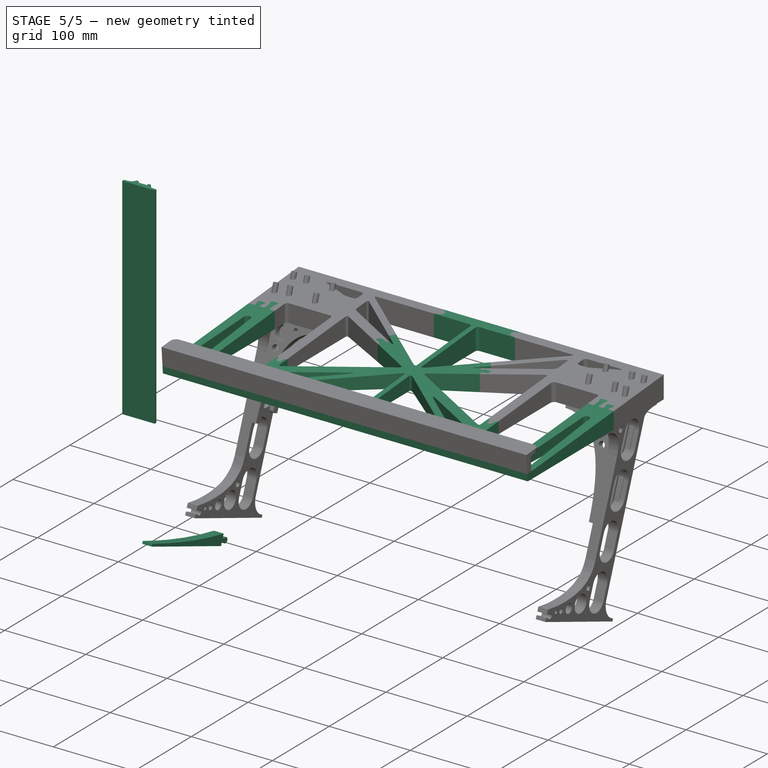
[diagram: stage 5 of 5 — iso view after this stage's code; geometry added in this stage tinted green]
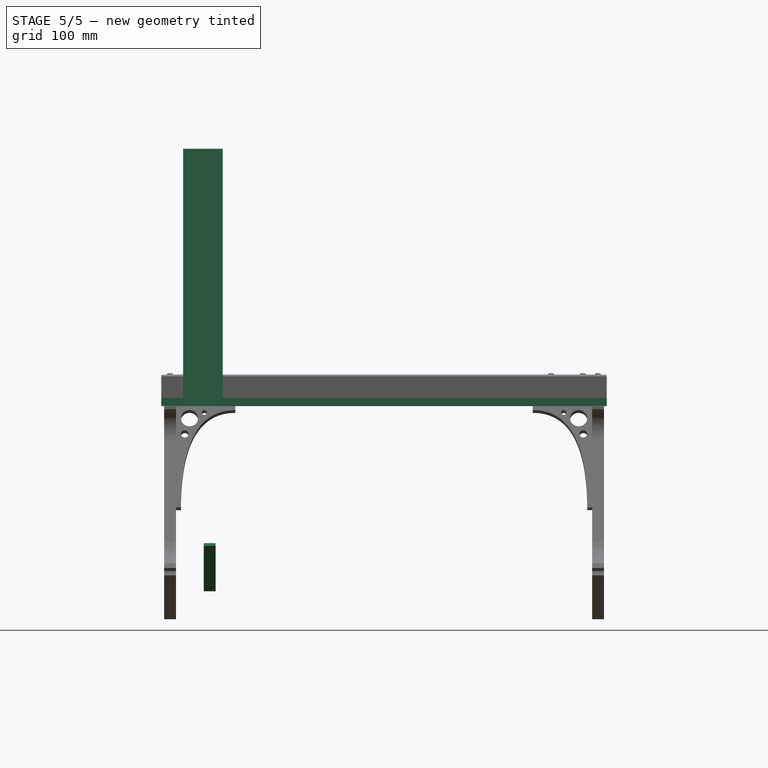
[diagram: stage 5 of 5 — front view after this stage's code; geometry added in this stage tinted green]
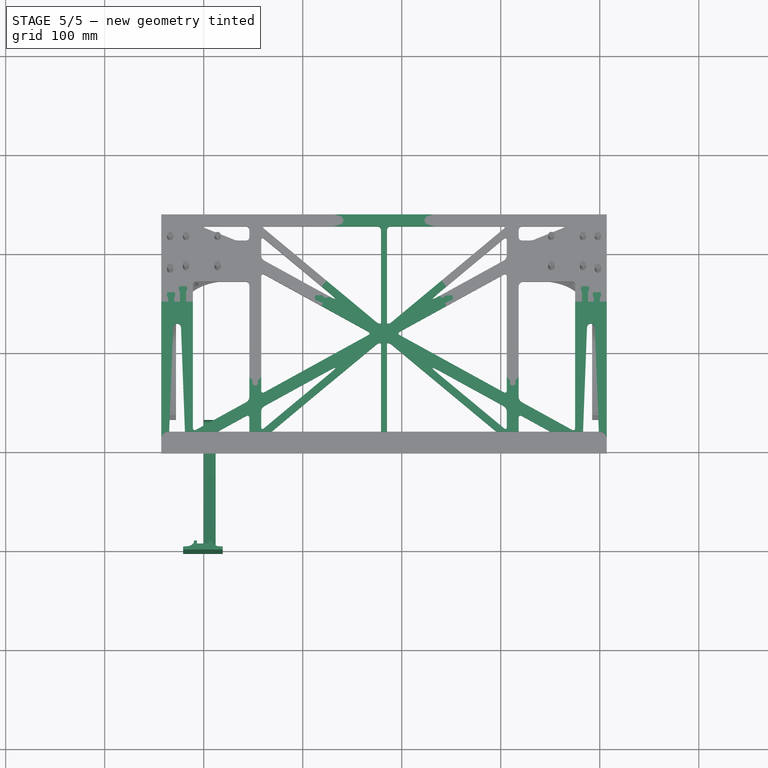
[diagram: stage 5 of 5 — top view after this stage's code; geometry added in this stage tinted green]
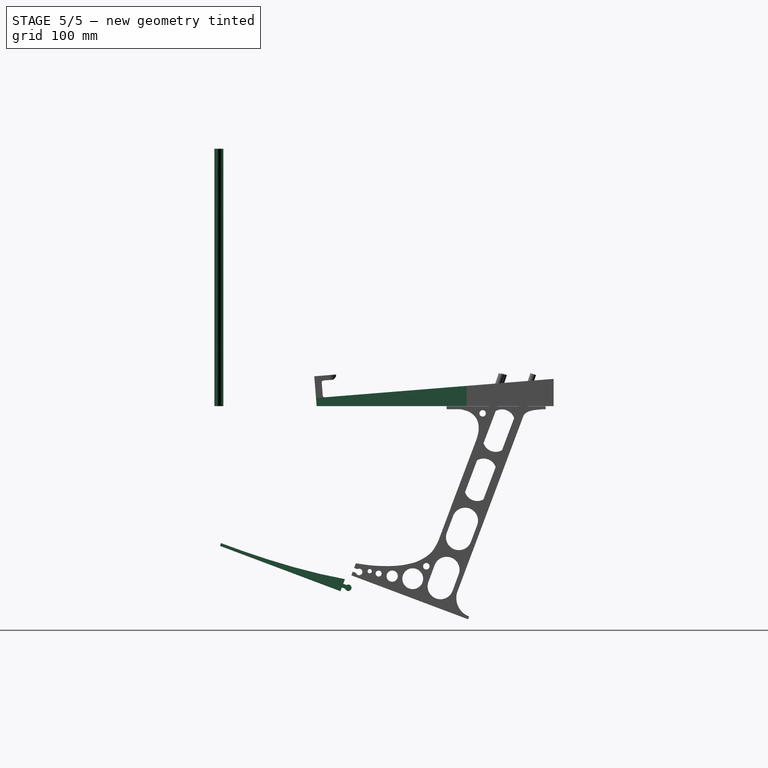
[diagram: stage 5 of 5 — right view after this stage's code; geometry added in this stage tinted green]
FEATURE [Sketcher::SketchObject] Sketch001  label="legTop"
  FullyConstrained = true
  MapMode = 4
  Placement = pos=(0,0,0) rot=(0.57735,0.57735,0.57735;2.0944rad)
  sketch-geometry (41):
    g0: BSplineCurve PolesCount=3 KnotsCount=2 Degree=2 IsPeriodic=0
    g1: ArcOfCircle CenterX=73.1223 CenterY=-32.291 CenterZ=0 NormalX=0 NormalY=0 NormalZ=1 AngleXU=0 Radius=13 StartAngle=5.92268 EndAngle=9.06428
    g2: ArcOfCircle CenterX=66.7816 CenterY=-49.1439 CenterZ=0 NormalX=0 NormalY=0 NormalZ=1 AngleXU=0 Radius=13 StartAngle=2.78068 EndAngle=5.92131
    g3-g6: Circle x4 (B-spline internal-alignment scaffolding for g7; pole/knot coordinates omitted)
    g7: BSplineCurve PolesCount=4 KnotsCount=2 Degree=3 IsPeriodic=0
    g8: GeomPoint X=28.8094 Y=-19.0875 Z=0
    g9: GeomPoint X=47.0443 Y=-50.4712 Z=0
    g10: Circle CenterX=53.5586 CenterY=-23.2695 CenterZ=0 NormalX=0 NormalY=0 NormalZ=1 AngleXU=0 Radius=3.24518
    g11: LineSegment StartX=17.2232 StartY=-16.0875 StartZ=0 EndX=17.2232 EndY=-19.0875 EndZ=0
    g12: ArcOfCircle CenterX=17.2475 CenterY=-181.166 CenterZ=0 NormalX=0 NormalY=0 NormalZ=1 AngleXU=0 Radius=13 StartAngle=5.92268 EndAngle=7.49361
    g13: ArcOfCircle CenterX=29.5716 CenterY=-148.408 CenterZ=0 NormalX=0 NormalY=0 NormalZ=1 AngleXU=0 Radius=13 StartAngle=4.35228 EndAngle=5.92131
    g14: ArcOfCircle CenterX=35.8967 CenterY=-131.555 CenterZ=0 NormalX=0 NormalY=0 NormalZ=1 AngleXU=0 Radius=13 StartAngle=5.92268 EndAngle=7.49902
    g15: ArcOfCircle CenterX=48.1805 CenterY=-98.7782 CenterZ=0 NormalX=0 NormalY=0 NormalZ=1 AngleXU=0 Radius=13 StartAngle=4.34921 EndAngle=5.92131
    g16: ArcOfCircle CenterX=54.5183 CenterY=-81.9247 CenterZ=0 NormalX=0 NormalY=0 NormalZ=1 AngleXU=0 Radius=13 StartAngle=5.92268 EndAngle=8.70432
    g17: ArcOfCircle CenterX=20.184 CenterY=-217.506 CenterZ=0 NormalX=0 NormalY=0 NormalZ=1 AngleXU=0 Radius=3.81084 StartAngle=1.88136 EndAngle=6.80465
    g18: ArcOfCircle CenterX=36.3663 CenterY=-113.042 CenterZ=0 NormalX=0 NormalY=0 NormalZ=1 AngleXU=0 Radius=3.60555 StartAngle=0.230024 EndAngle=5.3372
    g19: ArcOfCircle CenterX=17.7945 CenterY=-162.686 CenterZ=0 NormalX=0 NormalY=0 NormalZ=1 AngleXU=0 Radius=3.60555 StartAngle=0.230024 EndAngle=5.3372
    g20: ArcOfCircle CenterX=49.8795 CenterY=-62.6074 CenterZ=0 NormalX=0 NormalY=0 NormalZ=1 AngleXU=0 Radius=3.84187 StartAngle=4.46973 EndAngle=9.40343
    g21: LineSegment StartX=48.9563 StartY=-66.3367 StartZ=0 EndX=44.7488 EndY=-73.3482 EndZ=0
    g22: LineSegment StartX=41.085 StartY=-66.3176 StartZ=0 EndX=46.0385 EndY=-62.5254 EndZ=0
    g23: LineSegment StartX=47.0443 StartY=-50.4712 StartZ=0 EndX=41.085 EndY=-66.3176 EndZ=0
    g24: LineSegment StartX=17.2232 StartY=-16.0875 StartZ=0 EndX=117.223 EndY=-16.0875 EndZ=0
    g25: LineSegment StartX=28.8094 StartY=-19.0875 StartZ=0 EndX=17.2232 EndY=-19.0875 EndZ=0
    g26: LineSegment StartX=117.223 StartY=-16.0875 StartZ=0 EndX=117.223 EndY=-19.0875 EndZ=0
    g27: LineSegment StartX=85.2866 StartY=-36.8766 StartZ=0 EndX=78.9396 EndY=-53.7463 EndZ=0
    g28: LineSegment StartX=60.9579 StartY=-27.7053 StartZ=0 EndX=54.6191 EndY=-44.5532 EndZ=0
    g29: LineSegment StartX=23.4884 StartY=-215.608 StartZ=0 EndX=94.6579 EndY=-26.1359 EndZ=0
    g30: LineSegment StartX=19.0195 StartY=-213.878 StartZ=0 EndX=29.4118 EndY=-185.752 EndZ=0
    g31: LineSegment StartX=22.7134 StartY=-166.661 StartZ=0 EndX=21.8316 EndY=-169.001 EndZ=0
    g32: LineSegment StartX=19.9036 StartY=-165.61 StartZ=0 EndX=22.7134 EndY=-166.661 EndZ=0
    g33: LineSegment StartX=21.3051 StartY=-161.864 StartZ=0 EndX=24.1149 EndY=-162.915 EndZ=0
    g34: LineSegment StartX=24.1149 StartY=-162.915 StartZ=0 EndX=24.9906 EndY=-160.574 EndZ=0
    g35: LineSegment StartX=41.7296 StartY=-153.01 StartZ=0 EndX=48.061 EndY=-136.14 EndZ=0
    g36: LineSegment StartX=41.2852 StartY=-117.017 StartZ=0 EndX=40.4148 EndY=-119.365 EndZ=0
    g37: LineSegment StartX=38.4753 StartY=-115.966 StartZ=0 EndX=41.2852 EndY=-117.017 EndZ=0
    g38: LineSegment StartX=39.8769 StartY=-112.22 StartZ=0 EndX=42.6867 EndY=-113.271 EndZ=0
    g39: LineSegment StartX=42.6867 StartY=-113.271 StartZ=0 EndX=43.5622 EndY=-110.93 EndZ=0
    g40: LineSegment StartX=66.6827 StartY=-86.5104 StartZ=0 EndX=60.3386 EndY=-103.381 EndZ=0
  constraints (65):
    c: Block(g0)
    c: Block(g1)
    c: Block(g2)
    c: Weight(g3) = 1
    c: Equal(g3,g4)
    c: Equal(g3,g5)
    c: Equal(g3,g6)
    c: InternalAlignment(g3-g6 -> g7) x4
    c: InternalAlignment(g8,g7)
    c: InternalAlignment(g9,g7)
    c: Block(g10)
    c: Block(g7)
    c: Vertical(g11)
    c: Block(g12)
    c: Block(g13)
    c: Block(g14)
    c: Block(g15)
    c: Block(g16)
    c: Block(g17)
    c: Block(g18)
    c: Block(g19)
    c: Block(g20)
    c: Coincident(g21,g20)
    c: Coincident(g21,g16)
    c: Coincident(g22,g20)
    c: Block(g22)
    c: Coincident(g23,g7)
    c: Coincident(g23,g22)
    c: Coincident(g24,g11)
    c: Horizontal(g24)
    c: Coincident(g25,g7)
    c: Coincident(g25,g11)
    c: Horizontal(g25)
    c: Coincident(g26,g24)
    c: Coincident(g26,g0)
    c: Vertical(g26)
    c: Block(g24)
    c: Coincident(g27,g1)
    c: Coincident(g27,g2)
    c: Coincident(g28,g1)
    c: Coincident(g28,g2)
    c: Coincident(g29,g17)
    c: Coincident(g29,g0)
    c: Coincident(g30,g17)
    c: Coincident(g30,g12)
    c: Coincident(g31,g12)
    c: Coincident(g32,g19)
    c: Coincident(g32,g31)
    c: Block(g31)
    c: Coincident(g33,g19)
    c: Coincident(g34,g33)
    c: Coincident(g34,g13)
    c: Block(g34)
    c: Coincident(g35,g13)
    c: Coincident(g35,g14)
    c: Coincident(g36,g14)
    c: Coincident(g37,g18)
    c: Coincident(g37,g36)
    c: Block(g36)
    c: Coincident(g38,g18)
    c: Coincident(g39,g38)
    c: Coincident(g39,g15)
    c: Block(g39)
    c: Coincident(g40,g16)
    c: Coincident(g40,g15)
FEATURE [Sketcher::SketchObject] Sketch002
  FullyConstrained = true
  sketch-geometry (15):
    g0: LineSegment StartX=-6.77179 StartY=-200.304 StartZ=0 EndX=5.22821 EndY=-200.304 EndZ=0
    g1: LineSegment StartX=5.22821 StartY=-200.304 StartZ=0 EndX=5.22821 EndY=-197.304 EndZ=0
    g2: LineSegment StartX=-6.77179 StartY=-200.304 StartZ=0 EndX=-6.77179 EndY=-197.304 EndZ=0
    g3: LineSegment StartX=5.22821 StartY=-197.304 StartZ=0 EndX=8.22821 EndY=-197.304 EndZ=0
    g4: LineSegment StartX=19.2282 StartY=-203.304 StartZ=0 EndX=19.2282 EndY=-206.304 EndZ=0
    g5: Circle CenterX=19.2282 CenterY=-203.304 CenterZ=0 NormalX=0 NormalY=0 NormalZ=1 AngleXU=0 Radius=1
    g6: Circle CenterX=8.22821 CenterY=-203.304 CenterZ=0 NormalX=0 NormalY=0 NormalZ=1 AngleXU=0 Radius=1
    g7: Circle CenterX=8.22821 CenterY=-197.304 CenterZ=0 NormalX=0 NormalY=0 NormalZ=1 AngleXU=0 Radius=1
    g8: BSplineCurve PolesCount=3 KnotsCount=2 Degree=2 IsPeriodic=0
    g9: GeomPoint X=19.2282 Y=-203.304 Z=0
    g10: GeomPoint X=8.22821 Y=-197.304 Z=0
    g11: LineSegment StartX=19.2282 StartY=-206.304 StartZ=0 EndX=-20.7718 EndY=-206.304 EndZ=0
    g12: LineSegment StartX=-20.7718 StartY=-206.304 StartZ=0 EndX=-20.7718 EndY=-203.304 EndZ=0
    g13: BSplineCurve PolesCount=3 KnotsCount=2 Degree=2 IsPeriodic=0
    g14: LineSegment StartX=-9.77179 StartY=-197.304 StartZ=0 EndX=-6.77179 EndY=-197.304 EndZ=0
  constraints (35):
    c: Horizontal(g0)
    c: Distance(g0) = 12
    c: Coincident(g1,g0)
    c: Vertical(g1)
    c: Distance(g1) = 3
    c: Coincident(g2,g0)
    c: Vertical(g2)
    c: Distance(g2) = 3
    c: Coincident(g3,g1)
    c: Horizontal(g3)
    c: Distance(g3) = 3
    c: Vertical(g4)
    c: Coincident(g8,g4)
    c: Weight(g5) = 1
    c: Equal(g5,g6)
    c: Equal(g5,g7)
    c: Coincident(g8,g3)
    c: InternalAlignment(g5,g8)
    c: InternalAlignment(g6,g8)
    c: InternalAlignment(g7,g8)
    c: InternalAlignment(g9,g8)
    c: InternalAlignment(g10,g8)
    c: Block(g8)
    c: Coincident(g11,g4)
    c: Horizontal(g11)
    c: Distance(g11) = 40
    c: Block(g11)
    c: Coincident(g12,g11)
    c: Vertical(g12)
    c: Block(g12)
    c: Block(g13)
    c: Coincident(g13,g12)
    c: Coincident(g14,g13)
    c: Coincident(g14,g2)
    c: Horizontal(g14)
FEATURE [Part::Extrusion] Extrude003
  Base = -> Sketch002
  Dir = (0,0,1)
  DirMode = 2
  FaceMakerClass = Part::FaceMakerBullseye
  LengthFwd = 260
  LengthRev = 0
  Solid = true
  Symmetric = false
FEATURE [Part::Extrusion] Extrude004
  Base = -> Sketch011
  Dir = (1,0,0)
  DirMode = 2
  FaceMakerClass = Part::FaceMakerBullseye
  LengthFwd = 12
  LengthRev = 0
  Solid = true
  Symmetric = false
FEATURE [Part::Extrusion] Extrude008
  Base = -> Sketch005
  Dir = (0,0,1)
  DirMode = 2
  FaceMakerClass = Part::FaceMakerBullseye
  LengthFwd = 28
  LengthRev = 0
  Solid = true
  Symmetric = false
FEATURE [Part::Extrusion] Extrude010
  Base = -> Sketch007
  Dir = (0,0,1)
  DirMode = 2
  FaceMakerClass = Part::FaceMakerBullseye
  LengthFwd = 28
  LengthRev = 0
  Solid = true
  Symmetric = false
FEATURE [Part::Extrusion] Extrude011
  Base = -> Sketch009
  Dir = (0,0,1)
  DirMode = 2
  FaceMakerClass = Part::FaceMakerBullseye
  LengthFwd = 28
  LengthRev = 0
  Solid = true
  Symmetric = false
FEATURE [Part::Extrusion] Extrude012
  Base = -> Sketch004
  Dir = (0,0,1)
  DirMode = 2
  FaceMakerClass = Part::FaceMakerBullseye
  LengthFwd = 28
  LengthRev = 0
  Solid = true
  Symmetric = false
FEATURE [App::MeasureDistance] Distance001  label="Distance: 14.83 mm"
  Distance = 14.8334
  P1 = (392.24,108.867,-0.0194206)
  P2 = (407.073,108.936,0)
FEATURE [Sketcher::SketchObject] Sketch022
  FullyConstrained = true
  Placement = pos=(0,0,0) rot=(0.57735,0.57735,0.57735;2.0944rad)
  sketch-geometry (18):
    g0: LineSegment StartX=-152.23 StartY=29.0049 StartZ=0 EndX=-143.23 EndY=29.0049 EndZ=0
    g1: LineSegment StartX=-152.23 StartY=29.0049 StartZ=0 EndX=-152.23 EndY=51.0049 EndZ=0
    g2: LineSegment StartX=-152.23 StartY=51.0049 StartZ=0 EndX=-130.23 EndY=51.0049 EndZ=0
    g3: LineSegment StartX=-130.23 StartY=51.0049 StartZ=0 EndX=-130.23 EndY=46.0049 EndZ=0
    g4: LineSegment StartX=-130.23 StartY=46.0049 StartZ=0 EndX=-143.23 EndY=46.0049 EndZ=0
    g5: Circle CenterX=-145.23 CenterY=31.0049 CenterZ=0 NormalX=0 NormalY=0 NormalZ=1 AngleXU=0 Radius=1
    g6: Circle CenterX=-145.23 CenterY=29.0049 CenterZ=0 NormalX=0 NormalY=0 NormalZ=1 AngleXU=0 Radius=1
    g7: Circle CenterX=-143.23 CenterY=29.0049 CenterZ=0 NormalX=0 NormalY=0 NormalZ=1 AngleXU=0 Radius=1
    g8: BSplineCurve PolesCount=3 KnotsCount=2 Degree=2 IsPeriodic=0
    g9: GeomPoint X=-145.23 Y=31.0049 Z=0
    g10: GeomPoint X=-143.23 Y=29.0049 Z=0
    g11: Circle CenterX=-145.23 CenterY=44.0049 CenterZ=0 NormalX=0 NormalY=0 NormalZ=1 AngleXU=0 Radius=1
    g12: Circle CenterX=-145.23 CenterY=46.0049 CenterZ=0 NormalX=0 NormalY=0 NormalZ=1 AngleXU=0 Radius=1
    g13: Circle CenterX=-143.23 CenterY=46.0049 CenterZ=0 NormalX=0 NormalY=0 NormalZ=1 AngleXU=0 Radius=1
    g14: BSplineCurve PolesCount=3 KnotsCount=2 Degree=2 IsPeriodic=0
    g15: GeomPoint X=-145.23 Y=44.0049 Z=0
    g16: GeomPoint X=-143.23 Y=46.0049 Z=0
    g17: LineSegment StartX=-145.23 StartY=44.0049 StartZ=0 EndX=-145.23 EndY=31.0049 EndZ=0
  constraints (40):
    c: Horizontal(g0)
    c: Distance(g0) = 9
    c: Coincident(g1,g0)
    c: Vertical(g1)
    c: Distance(g1) = 22
    c: Coincident(g2,g1)
    c: Horizontal(g2)
    c: Coincident(g3,g2)
    c: Vertical(g3)
    c: Distance(g3) = 5
    c: Coincident(g4,g3)
    c: Horizontal(g4)
    c: Distance(g4) = 13
    c: PointOnObject(g6,g0)
    c: Weight(g5) = 1
    c: Equal(g5,g6)
    c: Equal(g5,g7)
    c: Coincident(g8,g0)
    c: InternalAlignment(g5,g8)
    c: InternalAlignment(g6,g8)
    c: InternalAlignment(g7,g8)
    c: InternalAlignment(g9,g8)
    c: InternalAlignment(g10,g8)
    c: Weight(g11) = 1
    c: Equal(g11,g12)
    c: Equal(g11,g13)
    c: Coincident(g14,g4)
    c: InternalAlignment(g11,g14)
    c: InternalAlignment(g12,g14)
    c: InternalAlignment(g13,g14)
    c: InternalAlignment(g15,g14)
    c: InternalAlignment(g16,g14)
    c: Coincident(g17,g14)
    c: Coincident(g17,g8)
    c: Vertical(g17)
    c: Block(g4)
    c: Block(g17)
    c: Block(g14)
    c: Block(g8)
    c: Distance(g2) = 22
FEATURE [Part::Extrusion] Extrude023  label="laptopRetainer"
  Base = -> Sketch022
  Dir = (1,0,0)
  DirMode = 2
  FaceMakerClass = Part::FaceMakerBullseye
  LengthFwd = 150
  LengthRev = 0
  Placement = pos=(-42.925,50.355,-8.454) rot=(1,0,0;0.080285rad)
  Solid = true
  Symmetric = false
FEATURE [Sketcher::SketchObject] Sketch023
  FullyConstrained = true
  Placement = pos=(0,0,0) rot=(0.57735,0.57735,0.57735;2.0944rad)
  sketch-geometry (18):
    g0: LineSegment StartX=-152.23 StartY=29.0049 StartZ=0 EndX=-143.23 EndY=29.0049 EndZ=0
    g1: LineSegment StartX=-152.23 StartY=29.0049 StartZ=0 EndX=-152.23 EndY=51.0049 EndZ=0
    g2: LineSegment StartX=-152.23 StartY=51.0049 StartZ=0 EndX=-130.23 EndY=51.0049 EndZ=0
    g3: LineSegment StartX=-130.23 StartY=51.0049 StartZ=0 EndX=-130.23 EndY=46.0049 EndZ=0
    g4: LineSegment StartX=-130.23 StartY=46.0049 StartZ=0 EndX=-143.23 EndY=46.0049 EndZ=0
    g5: Circle CenterX=-145.23 CenterY=31.0049 CenterZ=0 NormalX=0 NormalY=0 NormalZ=1 AngleXU=0 Radius=1
    g6: Circle CenterX=-145.23 CenterY=29.0049 CenterZ=0 NormalX=0 NormalY=0 NormalZ=1 AngleXU=0 Radius=1
    g7: Circle CenterX=-143.23 CenterY=29.0049 CenterZ=0 NormalX=0 NormalY=0 NormalZ=1 AngleXU=0 Radius=1
    g8: BSplineCurve PolesCount=3 KnotsCount=2 Degree=2 IsPeriodic=0
    g9: GeomPoint X=-145.23 Y=31.0049 Z=0
    g10: GeomPoint X=-143.23 Y=29.0049 Z=0
    g11: Circle CenterX=-145.23 CenterY=44.0049 CenterZ=0 NormalX=0 NormalY=0 NormalZ=1 AngleXU=0 Radius=1
    g12: Circle CenterX=-145.23 CenterY=46.0049 CenterZ=0 NormalX=0 NormalY=0 NormalZ=1 AngleXU=0 Radius=1
    g13: Circle CenterX=-143.23 CenterY=46.0049 CenterZ=0 NormalX=0 NormalY=0 NormalZ=1 AngleXU=0 Radius=1
    g14: BSplineCurve PolesCount=3 KnotsCount=2 Degree=2 IsPeriodic=0
    g15: GeomPoint X=-145.23 Y=44.0049 Z=0
    g16: GeomPoint X=-143.23 Y=46.0049 Z=0
    g17: LineSegment StartX=-145.23 StartY=44.0049 StartZ=0 EndX=-145.23 EndY=31.0049 EndZ=0
  constraints (40):
    c: Horizontal(g0)
    c: Distance(g0) = 9
    c: Coincident(g1,g0)
    c: Vertical(g1)
    c: Distance(g1) = 22
    c: Coincident(g2,g1)
    c: Horizontal(g2)
    c: Coincident(g3,g2)
    c: Vertical(g3)
    c: Distance(g3) = 5
    c: Coincident(g4,g3)
    c: Horizontal(g4)
    c: Distance(g4) = 13
    c: PointOnObject(g6,g0)
    c: Weight(g5) = 1
    c: Equal(g5,g6)
    c: Equal(g5,g7)
    c: Coincident(g8,g0)
    c: InternalAlignment(g5,g8)
    c: InternalAlignment(g6,g8)
    c: InternalAlignment(g7,g8)
    c: InternalAlignment(g9,g8)
    c: InternalAlignment(g10,g8)
    c: Weight(g11) = 1
    c: Equal(g11,g12)
    c: Equal(g11,g13)
    c: Coincident(g14,g4)
    c: InternalAlignment(g11,g14)
    c: InternalAlignment(g12,g14)
    c: InternalAlignment(g13,g14)
    c: InternalAlignment(g15,g14)
    c: InternalAlignment(g16,g14)
    c: Coincident(g17,g14)
    c: Coincident(g17,g8)
    c: Vertical(g17)
    c: Block(g4)
    c: Block(g17)
    c: Block(g14)
    c: Block(g8)
    c: Distance(g2) = 22
FEATURE [Part::Extrusion] Extrude024  label="laptopRetainer001"
  Base = -> Sketch023
  Dir = (1,0,0)
  DirMode = 2
  FaceMakerClass = Part::FaceMakerBullseye
  LengthFwd = 150
  LengthRev = 0
  Placement = pos=(107.08,50.35,-8.45) rot=(1,0,0;0.080285rad)
  Solid = true
  Symmetric = false
FEATURE [Sketcher::SketchObject] Sketch024
  FullyConstrained = true
  Placement = pos=(0,0,0) rot=(0.57735,0.57735,0.57735;2.0944rad)
  sketch-geometry (18):
    g0: LineSegment StartX=-152.23 StartY=29.0049 StartZ=0 EndX=-143.23 EndY=29.0049 EndZ=0
    g1: LineSegment StartX=-152.23 StartY=29.0049 StartZ=0 EndX=-152.23 EndY=51.0049 EndZ=0
    g2: LineSegment StartX=-152.23 StartY=51.0049 StartZ=0 EndX=-130.23 EndY=51.0049 EndZ=0
    g3: LineSegment StartX=-130.23 StartY=51.0049 StartZ=0 EndX=-130.23 EndY=46.0049 EndZ=0
    g4: LineSegment StartX=-130.23 StartY=46.0049 StartZ=0 EndX=-143.23 EndY=46.0049 EndZ=0
    g5: Circle CenterX=-145.23 CenterY=31.0049 CenterZ=0 NormalX=0 NormalY=0 NormalZ=1 AngleXU=0 Radius=1
    g6: Circle CenterX=-145.23 CenterY=29.0049 CenterZ=0 NormalX=0 NormalY=0 NormalZ=1 AngleXU=0 Radius=1
    g7: Circle CenterX=-143.23 CenterY=29.0049 CenterZ=0 NormalX=0 NormalY=0 NormalZ=1 AngleXU=0 Radius=1
    g8: BSplineCurve PolesCount=3 KnotsCount=2 Degree=2 IsPeriodic=0
    g9: GeomPoint X=-145.23 Y=31.0049 Z=0
    g10: GeomPoint X=-143.23 Y=29.0049 Z=0
    g11: Circle CenterX=-145.23 CenterY=44.0049 CenterZ=0 NormalX=0 NormalY=0 NormalZ=1 AngleXU=0 Radius=1
    g12: Circle CenterX=-145.23 CenterY=46.0049 CenterZ=0 NormalX=0 NormalY=0 NormalZ=1 AngleXU=0 Radius=1
    g13: Circle CenterX=-143.23 CenterY=46.0049 CenterZ=0 NormalX=0 NormalY=0 NormalZ=1 AngleXU=0 Radius=1
    g14: BSplineCurve PolesCount=3 KnotsCount=2 Degree=2 IsPeriodic=0
    g15: GeomPoint X=-145.23 Y=44.0049 Z=0
    g16: GeomPoint X=-143.23 Y=46.0049 Z=0
    g17: LineSegment StartX=-145.23 StartY=44.0049 StartZ=0 EndX=-145.23 EndY=31.0049 EndZ=0
  constraints (40):
    c: Horizontal(g0)
    c: Distance(g0) = 9
    c: Coincident(g1,g0)
    c: Vertical(g1)
    c: Distance(g1) = 22
    c: Coincident(g2,g1)
    c: Horizontal(g2)
    c: Coincident(g3,g2)
    c: Vertical(g3)
    c: Distance(g3) = 5
    c: Coincident(g4,g3)
    c: Horizontal(g4)
    c: Distance(g4) = 13
    c: PointOnObject(g6,g0)
    c: Weight(g5) = 1
    c: Equal(g5,g6)
    c: Equal(g5,g7)
    c: Coincident(g8,g0)
    c: InternalAlignment(g5,g8)
    c: InternalAlignment(g6,g8)
    c: InternalAlignment(g7,g8)
    c: InternalAlignment(g9,g8)
    c: InternalAlignment(g10,g8)
    c: Weight(g11) = 1
    c: Equal(g11,g12)
    c: Equal(g11,g13)
    c: Coincident(g14,g4)
    c: InternalAlignment(g11,g14)
    c: InternalAlignment(g12,g14)
    c: InternalAlignment(g13,g14)
    c: InternalAlignment(g15,g14)
    c: InternalAlignment(g16,g14)
    c: Coincident(g17,g14)
    c: Coincident(g17,g8)
    c: Vertical(g17)
    c: Block(g4)
    c: Block(g17)
    c: Block(g14)
    c: Block(g8)
    c: Distance(g2) = 22
FEATURE [Part::Extrusion] Extrude025  label="laptopRetainer002"
  Base = -> Sketch024
  Dir = (1,0,0)
  DirMode = 2
  FaceMakerClass = Part::FaceMakerBullseye
  LengthFwd = 150
  LengthRev = 0
  Placement = pos=(257.08,50.35,-8.45) rot=(1,0,0;0.080285rad)
  Solid = true
  Symmetric = false
FEATURE [Part::Box] Box001  label="removeFromtTop001"
  AttacherType = Attacher::AttachEngine3D
  Height = 56
  Length = 470
  Placement = pos=(-47.93,-106.78,8) rot=(1,0,0;0.080285rad)
  Width = 260
FEATURE [Part::Box] Box002  label="removeFromtTop002"
  AttacherType = Attacher::AttachEngine3D
  Height = 56
  Length = 470
  Placement = pos=(-47.93,-106.78,8) rot=(1,0,0;0.080285rad)
  Width = 260
FEATURE [Part::Cut] Cut001
  Base = -> Extrude010
  Tool = -> Box001
FEATURE [Part::Box] Box003  label="removeFromtTop003"
  AttacherType = Attacher::AttachEngine3D
  Height = 56
  Length = 470
  Placement = pos=(-47.93,-106.78,8) rot=(1,0,0;0.080285rad)
  Width = 260
FEATURE [Part::Cut] Cut002
  Base = -> Extrude011
  Tool = -> Box002
FEATURE [Part::Box] Box004  label="removeFromtTop004"
  AttacherType = Attacher::AttachEngine3D
  Height = 56
  Length = 470
  Placement = pos=(-47.93,-106.78,8) rot=(1,0,0;0.080285rad)
  Width = 260
FEATURE [Part::Cut] Cut003
  Base = -> Extrude008
  Tool = -> Box003
FEATURE [Part::Cut] Cut004
  Base = -> Extrude012
  Tool = -> Box004
FEATURE [App::MeasureDistance] Distance002  label="Distance: 8.18 mm"
  Distance = 8.17779
  P1 = (-42.9272,-103.768,8.17763)
  P2 = (-42.9272,-103.716,0)
FEATURE [Part::Box] Box006  label="removeFromBottomOfTop"
  AttacherType = Attacher::AttachEngine3D
  Height = 10
  Length = 475
  Placement = pos=(-51,-113,-1) rot=(1,0,0;0.080285rad)
  Width = 10
FEATURE [Part::Box] Box007  label="removeFromBottomOfTop001"
  AttacherType = Attacher::AttachEngine3D
  Height = 10
  Length = 475
  Placement = pos=(-51,-113,-1) rot=(1,0,0;0.080285rad)
  Width = 10
FEATURE [Part::Cut] Cut006
  Base = -> Cut004
  Tool = -> Box006
FEATURE [Part::Box] Box008  label="removeFromBottomOfTop002"
  AttacherType = Attacher::AttachEngine3D
  Height = 10
  Length = 475
  Placement = pos=(-51,-113,-1) rot=(1,0,0;0.080285rad)
  Width = 10
FEATURE [Part::Cut] Cut007
  Base = -> Cut002
  Tool = -> Box007
FEATURE [Part::Cut] Cut008
  Base = -> Cut001
  Tool = -> Box008
FEATURE [Part::Box] Box009  label="Cube"
  AttacherType = Attacher::AttachEngine3D
  Height = 10
  Length = 40
  Placement = pos=(12.07,-101,0) rot=(0,0,1;0rad)
  Width = 4
FEATURE [Part::Box] Box010  label="Cube001"
  AttacherType = Attacher::AttachEngine3D
  Height = 10
  Length = 40
  Placement = pos=(162.7,-101,0) rot=(0,0,1;0rad)
  Width = 4
FEATURE [Part::Box] Box011  label="Cube002"
  AttacherType = Attacher::AttachEngine3D
  Height = 10
  Length = 40
  Placement = pos=(312.07,-101,0) rot=(0,0,1;0rad)
  Width = 4
FEATURE [Part::Fuse] Fusion006  label="laptopRetainer01"
  Base = -> Extrude023
  Tool = -> Box009
FEATURE [Part::Fuse] Fusion007  label="laptopRetainer02"
  Base = -> Extrude024
  Tool = -> Box010
FEATURE [Part::MultiFuse] Fusion008  label="laptopRetainer03"
  Shapes = -> [Extrude025,Box011]
FEATURE [Part::Box] Box012  label="Cube003"
  AttacherType = Attacher::AttachEngine3D
  Height = 10
  Length = 10
  Placement = pos=(101,-102.5,12) rot=(1,0,0;0.080285rad)
  Width = 4
FEATURE [Part::Box] Box013  label="Cube004"
  AttacherType = Attacher::AttachEngine3D
  Height = 10
  Length = 10
  Placement = pos=(253,-102.5,12) rot=(1,0,0;0.080285rad)
  Width = 4
FEATURE [Part::MultiFuse] Fusion009  label="laptopRetainer003"
  Shapes = -> [Box013,Fusion007,Box012]
FEATURE [Sketcher::SketchObject] Sketch025
  FullyConstrained = true
  Placement = pos=(0,0,0) rot=(0.57735,0.57735,0.57735;2.0944rad)
  sketch-geometry (18):
    g0: LineSegment StartX=-152.23 StartY=29.0049 StartZ=0 EndX=-143.23 EndY=29.0049 EndZ=0
    g1: LineSegment StartX=-152.23 StartY=29.0049 StartZ=0 EndX=-152.23 EndY=51.0049 EndZ=0
    g2: LineSegment StartX=-152.23 StartY=51.0049 StartZ=0 EndX=-130.23 EndY=51.0049 EndZ=0
    g3: LineSegment StartX=-130.23 StartY=51.0049 StartZ=0 EndX=-130.23 EndY=46.0049 EndZ=0
    g4: LineSegment StartX=-130.23 StartY=46.0049 StartZ=0 EndX=-143.23 EndY=46.0049 EndZ=0
    g5: Circle CenterX=-145.23 CenterY=31.0049 CenterZ=0 NormalX=0 NormalY=0 NormalZ=1 AngleXU=0 Radius=1
    g6: Circle CenterX=-145.23 CenterY=29.0049 CenterZ=0 NormalX=0 NormalY=0 NormalZ=1 AngleXU=0 Radius=1
    g7: Circle CenterX=-143.23 CenterY=29.0049 CenterZ=0 NormalX=0 NormalY=0 NormalZ=1 AngleXU=0 Radius=1
    g8: BSplineCurve PolesCount=3 KnotsCount=2 Degree=2 IsPeriodic=0
    g9: GeomPoint X=-145.23 Y=31.0049 Z=0
    g10: GeomPoint X=-143.23 Y=29.0049 Z=0
    g11: Circle CenterX=-145.23 CenterY=44.0049 CenterZ=0 NormalX=0 NormalY=0 NormalZ=1 AngleXU=0 Radius=1
    g12: Circle CenterX=-145.23 CenterY=46.0049 CenterZ=0 NormalX=0 NormalY=0 NormalZ=1 AngleXU=0 Radius=1
    g13: Circle CenterX=-143.23 CenterY=46.0049 CenterZ=0 NormalX=0 NormalY=0 NormalZ=1 AngleXU=0 Radius=1
    g14: BSplineCurve PolesCount=3 KnotsCount=2 Degree=2 IsPeriodic=0
    g15: GeomPoint X=-145.23 Y=44.0049 Z=0
    g16: GeomPoint X=-143.23 Y=46.0049 Z=0
    g17: LineSegment StartX=-145.23 StartY=44.0049 StartZ=0 EndX=-145.23 EndY=31.0049 EndZ=0
  constraints (40):
    c: Horizontal(g0)
    c: Distance(g0) = 9
    c: Coincident(g1,g0)
    c: Vertical(g1)
    c: Distance(g1) = 22
    c: Coincident(g2,g1)
    c: Horizontal(g2)
    c: Coincident(g3,g2)
    c: Vertical(g3)
    c: Distance(g3) = 5
    c: Coincident(g4,g3)
    c: Horizontal(g4)
    c: Distance(g4) = 13
    c: PointOnObject(g6,g0)
    c: Weight(g5) = 1
    c: Equal(g5,g6)
    c: Equal(g5,g7)
    c: Coincident(g8,g0)
    c: InternalAlignment(g5,g8)
    c: InternalAlignment(g6,g8)
    c: InternalAlignment(g7,g8)
    c: InternalAlignment(g9,g8)
    c: InternalAlignment(g10,g8)
    c: Weight(g11) = 1
    c: Equal(g11,g12)
    c: Equal(g11,g13)
    c: Coincident(g14,g4)
    c: InternalAlignment(g11,g14)
    c: InternalAlignment(g12,g14)
    c: InternalAlignment(g13,g14)
    c: InternalAlignment(g15,g14)
    c: InternalAlignment(g16,g14)
    c: Coincident(g17,g14)
    c: Coincident(g17,g8)
    c: Vertical(g17)
    c: Block(g4)
    c: Block(g17)
    c: Block(g14)
    c: Block(g8)
    c: Distance(g2) = 22
FEATURE [Part::Extrusion] Extrude026  label="laptopRetainer005"
  Base = -> Sketch025
  Dir = (1,0,0)
  DirMode = 2
  FaceMakerClass = Part::FaceMakerBullseye
  LengthFwd = 150
  LengthRev = 0
  Placement = pos=(107.08,50.35,-8.45) rot=(1,0,0;0.080285rad)
  Solid = true
  Symmetric = false
FEATURE [Part::Box] Box014  label="Cube005"
  AttacherType = Attacher::AttachEngine3D
  Height = 10
  Length = 40
  Placement = pos=(162.7,-101,0) rot=(0,0,1;0rad)
  Width = 4
FEATURE [Part::Fuse] Fusion010  label="laptopRetainer004"
  Base = -> Extrude026
  Tool = -> Box014
FEATURE [Part::Box] Box015  label="Cube006"
  AttacherType = Attacher::AttachEngine3D
  Height = 10
  Length = 10
  Placement = pos=(101,-102.5,12) rot=(1,0,0;0.080285rad)
  Width = 4
FEATURE [Part::Box] Box016  label="Cube007"
  AttacherType = Attacher::AttachEngine3D
  Height = 10
  Length = 10
  Placement = pos=(253,-102.5,12) rot=(1,0,0;0.080285rad)
  Width = 4
FEATURE [Part::MultiFuse] Fusion011  label="laptopRetainer006"
  Shapes = -> [Box016,Fusion010,Box015]
FEATURE [Part::Cut] Cut009  label="laptopRetainer010"
  Base = -> Fusion008
  Tool = -> Fusion009
FEATURE [Sketcher::SketchObject] Sketch026
  FullyConstrained = true
  Placement = pos=(0,0,0) rot=(0.57735,0.57735,0.57735;2.0944rad)
  sketch-geometry (18):
    g0: LineSegment StartX=-152.23 StartY=29.0049 StartZ=0 EndX=-143.23 EndY=29.0049 EndZ=0
    g1: LineSegment StartX=-152.23 StartY=29.0049 StartZ=0 EndX=-152.23 EndY=51.0049 EndZ=0
    g2: LineSegment StartX=-152.23 StartY=51.0049 StartZ=0 EndX=-130.23 EndY=51.0049 EndZ=0
    g3: LineSegment StartX=-130.23 StartY=51.0049 StartZ=0 EndX=-130.23 EndY=46.0049 EndZ=0
    g4: LineSegment StartX=-130.23 StartY=46.0049 StartZ=0 EndX=-143.23 EndY=46.0049 EndZ=0
    g5: Circle CenterX=-145.23 CenterY=31.0049 CenterZ=0 NormalX=0 NormalY=0 NormalZ=1 AngleXU=0 Radius=1
    g6: Circle CenterX=-145.23 CenterY=29.0049 CenterZ=0 NormalX=0 NormalY=0 NormalZ=1 AngleXU=0 Radius=1
    g7: Circle CenterX=-143.23 CenterY=29.0049 CenterZ=0 NormalX=0 NormalY=0 NormalZ=1 AngleXU=0 Radius=1
    g8: BSplineCurve PolesCount=3 KnotsCount=2 Degree=2 IsPeriodic=0
    g9: GeomPoint X=-145.23 Y=31.0049 Z=0
    g10: GeomPoint X=-143.23 Y=29.0049 Z=0
    g11: Circle CenterX=-145.23 CenterY=44.0049 CenterZ=0 NormalX=0 NormalY=0 NormalZ=1 AngleXU=0 Radius=1
    g12: Circle CenterX=-145.23 CenterY=46.0049 CenterZ=0 NormalX=0 NormalY=0 NormalZ=1 AngleXU=0 Radius=1
    g13: Circle CenterX=-143.23 CenterY=46.0049 CenterZ=0 NormalX=0 NormalY=0 NormalZ=1 AngleXU=0 Radius=1
    g14: BSplineCurve PolesCount=3 KnotsCount=2 Degree=2 IsPeriodic=0
    g15: GeomPoint X=-145.23 Y=44.0049 Z=0
    g16: GeomPoint X=-143.23 Y=46.0049 Z=0
    g17: LineSegment StartX=-145.23 StartY=44.0049 StartZ=0 EndX=-145.23 EndY=31.0049 EndZ=0
  constraints (40):
    c: Horizontal(g0)
    c: Distance(g0) = 9
    c: Coincident(g1,g0)
    c: Vertical(g1)
    c: Distance(g1) = 22
    c: Coincident(g2,g1)
    c: Horizontal(g2)
    c: Coincident(g3,g2)
    c: Vertical(g3)
    c: Distance(g3) = 5
    c: Coincident(g4,g3)
    c: Horizontal(g4)
    c: Distance(g4) = 13
    c: PointOnObject(g6,g0)
    c: Weight(g5) = 1
    c: Equal(g5,g6)
    c: Equal(g5,g7)
    c: Coincident(g8,g0)
    c: InternalAlignment(g5,g8)
    c: InternalAlignment(g6,g8)
    c: InternalAlignment(g7,g8)
    c: InternalAlignment(g9,g8)
    c: InternalAlignment(g10,g8)
    c: Weight(g11) = 1
    c: Equal(g11,g12)
    c: Equal(g11,g13)
    c: Coincident(g14,g4)
    c: InternalAlignment(g11,g14)
    c: InternalAlignment(g12,g14)
    c: InternalAlignment(g13,g14)
    c: InternalAlignment(g15,g14)
    c: InternalAlignment(g16,g14)
    c: Coincident(g17,g14)
    c: Coincident(g17,g8)
    c: Vertical(g17)
    c: Block(g4)
    c: Block(g17)
    c: Block(g14)
    c: Block(g8)
    c: Distance(g2) = 22
FEATURE [Part::Extrusion] Extrude027  label="laptopRetainer009"
  Base = -> Sketch026
  Dir = (1,0,0)
  DirMode = 2
  FaceMakerClass = Part::FaceMakerBullseye
  LengthFwd = 150
  LengthRev = 0
  Placement = pos=(107.08,50.35,-8.45) rot=(1,0,0;0.080285rad)
  Solid = true
  Symmetric = false
FEATURE [Part::Box] Box017  label="Cube008"
  AttacherType = Attacher::AttachEngine3D
  Height = 10
  Length = 40
  Placement = pos=(162.7,-101,0) rot=(0,0,1;0rad)
  Width = 4
FEATURE [Part::Fuse] Fusion012  label="laptopRetainer007"
  Base = -> Extrude027
  Tool = -> Box017
FEATURE [Part::Box] Box018  label="Cube009"
  AttacherType = Attacher::AttachEngine3D
  Height = 10
  Length = 10
  Placement = pos=(101,-102.5,12) rot=(1,0,0;0.080285rad)
  Width = 4
FEATURE [Part::Box] Box019  label="Cube010"
  AttacherType = Attacher::AttachEngine3D
  Height = 10
  Length = 10
  Placement = pos=(253,-102.5,12) rot=(1,0,0;0.080285rad)
  Width = 4
FEATURE [Part::MultiFuse] Fusion013  label="laptopRetainer008"
  Shapes = -> [Box019,Fusion012,Box018]
FEATURE [Part::Cut] Cut010  label="laptopRetainer011"
  Base = -> Fusion006
  Tool = -> Fusion011
FEATURE [Part::Cut] Cut012
  Base = -> Cut008
  Tool = -> Cut010
FEATURE [Part::Cut] Cut013
  Base = -> Cut007
  Tool = -> Fusion013
FEATURE [Part::Cut] Cut015
  Base = -> Cut006
  Tool = -> Cut009
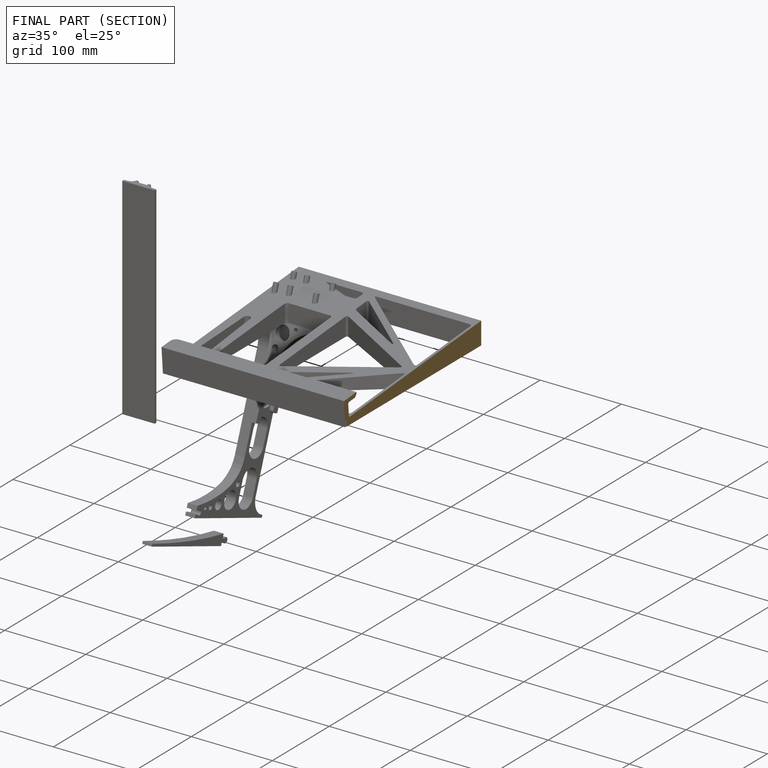
[diagram: finished part — half-section view (interior)]
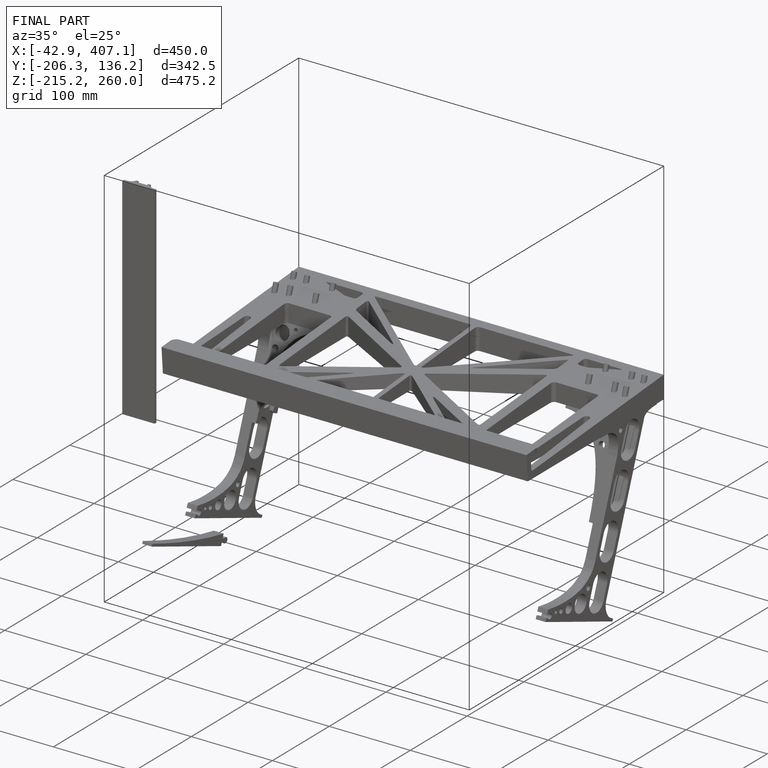
[diagram: finished part — iso view with bounding-box wireframe]
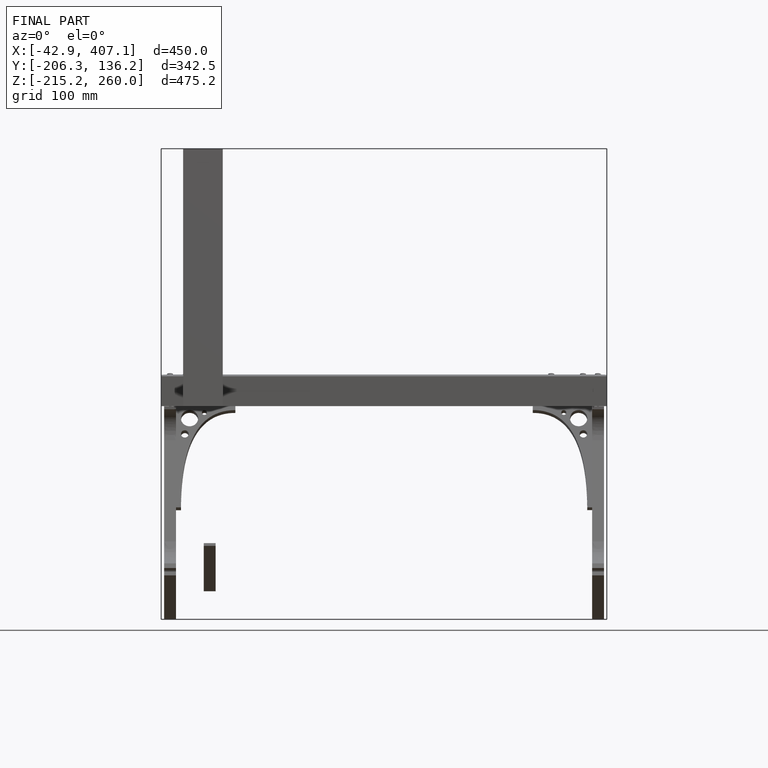
[diagram: finished part — front view with bounding-box wireframe]
